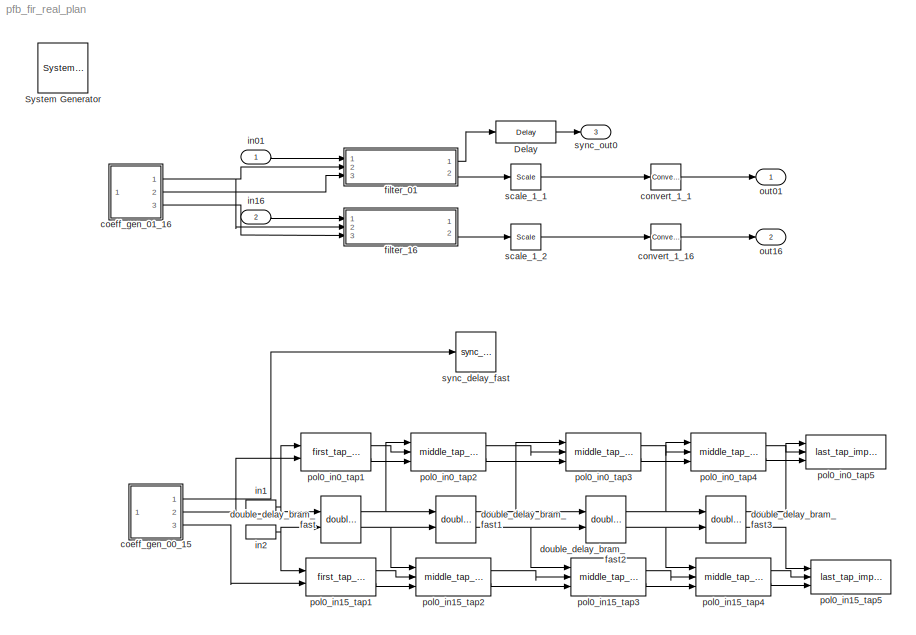
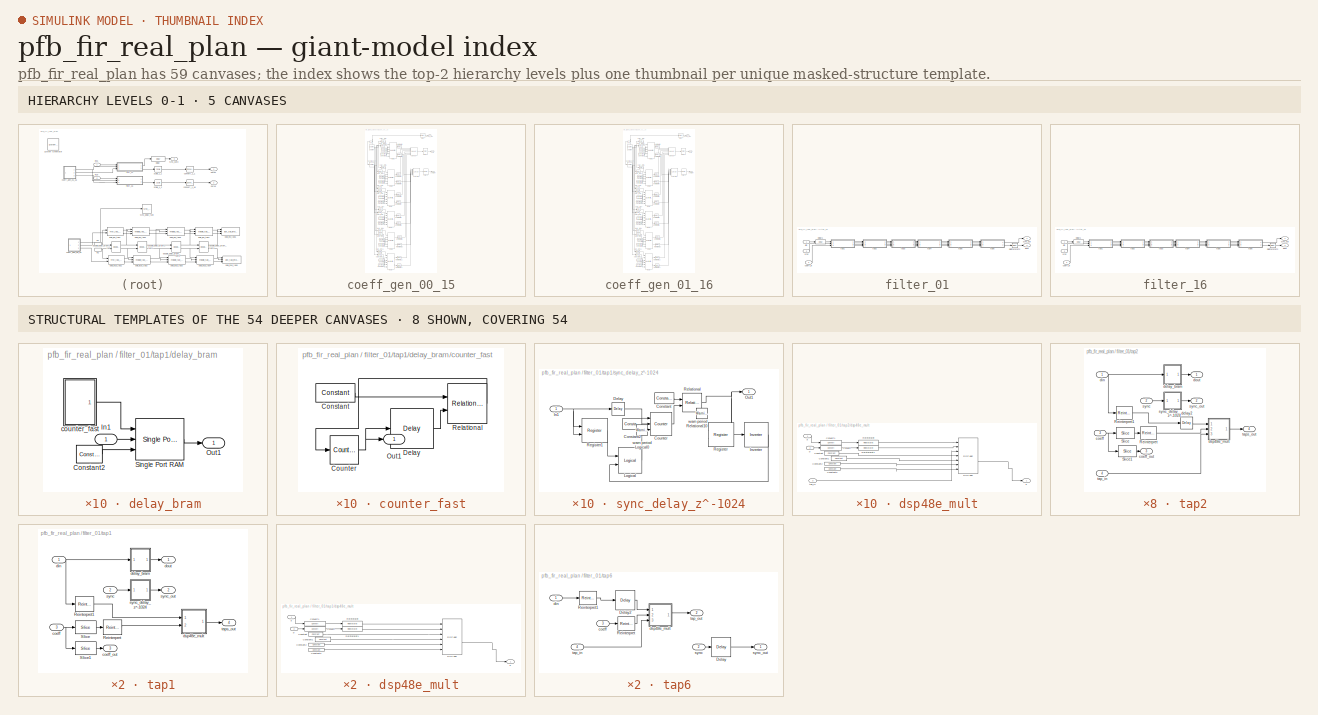
[diagram: thumbnail index - top-2 hierarchy levels (5 canvases) + 8 structural-template representatives of the remaining 54 canvases]
MODEL pfb_fir_real_plan
KIND model
BLOCK [Reference]  System Generator  REF=xbsIndex_r4/ System Generator
  AttributesFormatString = System\\nGenerator
  FunctionWithSeparateData = off
  GeneratePreprocessorConditionals = off
  Ports = []
  RTWMemSecDataConstants = Inherit from model
  RTWMemSecDataInternal = Inherit from model
  RTWMemSecDataParameters = Inherit from model
  RTWMemSecFuncExecute = Inherit from model
  RTWMemSecFuncInitTerm = Inherit from model
  SID = 1
  ShowPortLabels = FromPortIcon
  SourceBlock = xbsIndex_r4/ System Generator
  SourceType = Xilinx System Generator Block
  SystemSampleTime = -1
  Tag = genX
  UserData = DataTag0
  UserDataPersistent = on
  block_type = sysgen
  clock_wrapper = Clock Enables
  core_generation = According to Block Masks
  dbl_ovrd = According to Block Masks
  dcm_input_clock_period = 10
  deprecated_control = off
  directory = ./netlist
  eval_field = 0
  has_advanced_control = 0
  incr_netlist = off
  infoedit = System Generator
  package = ff1156
  part = xc6vsx315t
  run_coregen = off
  sg_icon_stat = 50,50,-1,-1,token,white,0,07734,right,,[ ],[ ]
  sg_mask_display = fprintf('','COMMENT: begin icon graphics');\npatch([0 50 50 0 0 ],[0 0 50 50 0 ],[1 1 1 ]);\npatch([1.6375 16.81 27.31 37.81 48.31 27.31 12.1375 1.6375 ],[36.655 36.655 47.155 36.655 47.155 47.155 47.155 36.655 ],[0.933333 0.203922 0.141176 ]);\npatch([12.1375 27.31 16.81 1.6375 12.1375 ],[26.155 26.155 36.655 36.655 26.155 ],[0.698039 0.0313725 0.219608 ]);\npatch([1.6375 16.81 27.31 12.1375 1.63...<+335ch>
  sggui_pos = -1,-1,-1,-1
  simulink_period = 1
  speed = -3
  synthesis_tool = XST
  sysclk_period = 10
  testbench = off
  trim_vbits = Everywhere in SubSystem
  xilinxfamily = Virtex6
BLOCK [Reference] Delay  REF=xbsIndex_r4/Delay
  Ports = [1, 1]
  SID = 4
  SourceBlock = xbsIndex_r4/Delay
  SourceType = Xilinx Delay Block
  block_type = delay
  block_version = 11.4
  dbl_ovrd = off
  en = off
  has_advanced_control = 0
  infoedit = Hardware notes: A delay line is a chain, each link of which is an SRL16 followed by a flip-flop.
  latency = 1
  reg_retiming = off
  sg_icon_stat = 60,22,1,1,white,blue,0,07b98262,right,,[ ],[ ]
  sg_mask_display = fprintf('','COMMENT: begin icon graphics');\npatch([0 60 60 0 0 ],[0 0 22 22 0 ],[0.77 0.82 0.91 ]);\nplot([0 60 60 0 0 ],[0 0 22 22 0 ]);\npatch([23.325 27.66 30.66 33.66 36.66 30.66 26.325 23.325 ],[14.33 14.33 17.33 14.33 17.33 17.33 17.33 14.33 ],[1 1 1 ]);\npatch([26.325 30.66 27.66 23.325 26.325 ],[11.33 11.33 14.33 14.33 11.33 ],[0.931 0.946 0.973 ]);\npatch([23.325 27.66 30.66 26.325 23.32...<+336ch>
  sggui_pos = -1,-1,-1,-1
  xl_area = [0,0,0,0,0,0,0]
  xl_use_area = off
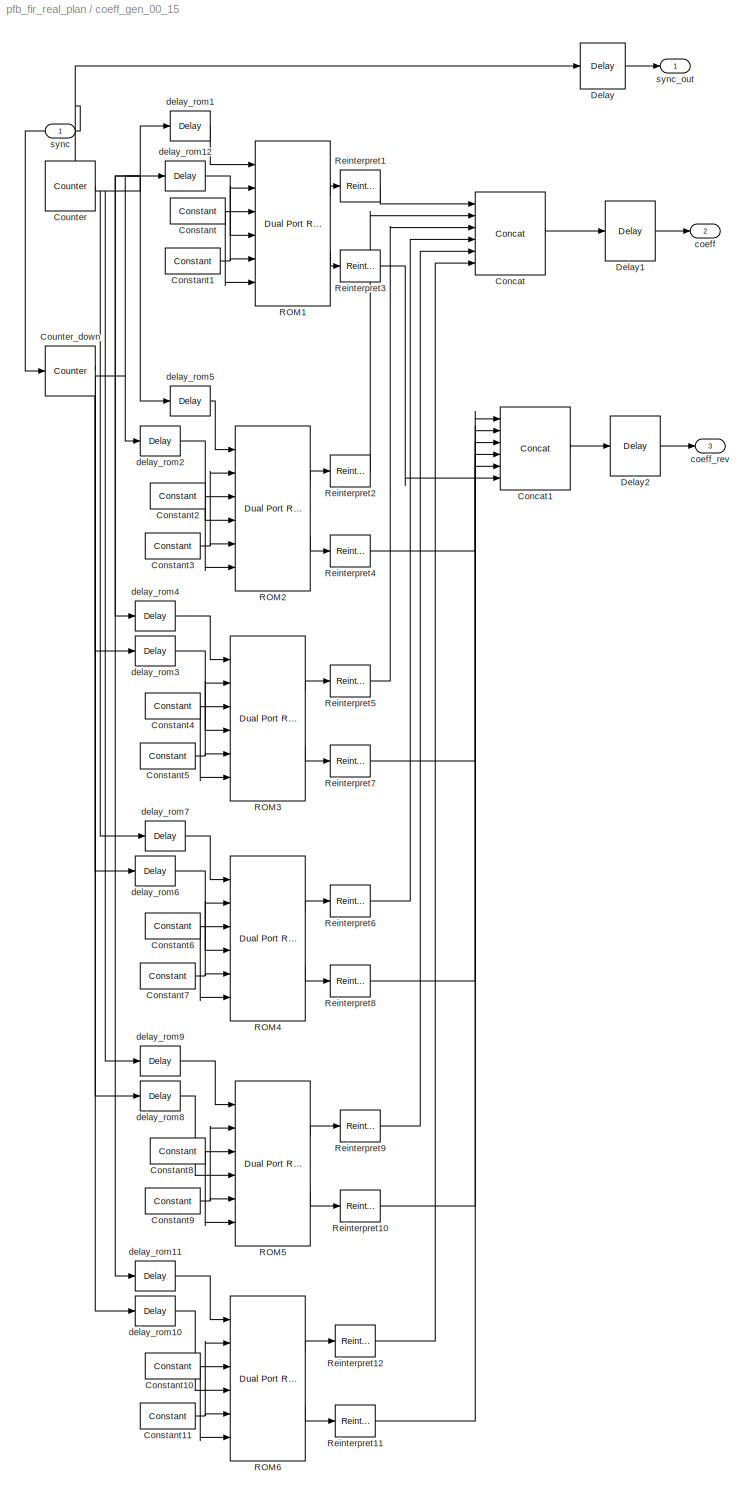
BLOCK [SubSystem] coeff_gen_00_15
  AttributesFormatString = PFBSize=14, n_inputs=4, taps=2
  FunctionWithSeparateData = off
  MaskHideContents = off
  MinAlgLoopOccurrences = off
  Opaque = off
  Ports = [1, 3]
  PropExecContextOutsideSubsystem = off
  RTWSystemCode = Auto
  RequestExecContextInheritance = off
  SID = 112
  UserData = DataTag1
  UserDataPersistent = on
BLOCK [Reference] coeff_gen_00_15/Concat  REF=xbsIndex_r4/Concat
  Ports = [6, 1]
  SID = 114
  SourceBlock = xbsIndex_r4/Concat
  SourceType = Xilinx Bus Concatenator Block
  block_type = concat
  block_version = 9.1.01
  dbl_ovrd = off
  has_advanced_control = 0
  infoedit = Concatenates two or more inputs.  Output will be cast to an unsigned value with the binary point at zero.
  num_inputs = 6
  sg_icon_stat = 70,83,6,1,white,blue,0,c44eeefa,right,,[ ],[ ]
  sg_mask_display = fprintf('','COMMENT: begin icon graphics');\npatch([0 70 70 0 0 ],[0 0 83 83 0 ],[0.77 0.82 0.91 ]);\nplot([0 70 70 0 0 ],[0 0 83 83 0 ]);\npatch([12.75 27.2 37.2 47.2 57.2 37.2 22.75 12.75 ],[52.1 52.1 62.1 52.1 62.1 62.1 62.1 52.1 ],[1 1 1 ]);\npatch([22.75 37.2 27.2 12.75 22.75 ],[42.1 42.1 52.1 52.1 42.1 ],[0.931 0.946 0.973 ]);\npatch([12.75 27.2 37.2 22.75 12.75 ],[32.1 32.1 42.1 42.1 32.1 ]...<+399ch>  <repeated x4 — deduplicated; at blocks: Concat, Concat1>
  sggui_pos = -1,-1,-1,-1
BLOCK [Reference] coeff_gen_00_15/Concat1  REF=xbsIndex_r4/Concat
  Ports = [6, 1]
  SID = 115
  SourceBlock = xbsIndex_r4/Concat
  SourceType = Xilinx Bus Concatenator Block
  block_type = concat
  block_version = 9.1.01
  dbl_ovrd = off
  has_advanced_control = 0
  infoedit = Concatenates two or more inputs.  Output will be cast to an unsigned value with the binary point at zero.
  num_inputs = 6
  sg_icon_stat = 70,83,6,1,white,blue,0,c44eeefa,right,,[ ],[ ]
  sggui_pos = -1,-1,-1,-1
BLOCK [Reference] coeff_gen_00_15/Constant  REF=xbsIndex_r4/Constant
  Ports = [0, 1]
  SID = 116
  SourceBlock = xbsIndex_r4/Constant
  SourceType = Xilinx Constant Block Block
  arith_type = Boolean
  bin_pt = 14
  block_type = constant
  carry = CIN
  const = 0
  dbl_ovrd = off
  dsp48_infoedit = The use of this block for DSP48 instructions is deprecated.  Please use the Opmode block.
  equ = P=C
  explicit_period = off
  has_advanced_control = 0
  inp1 = P
  inp2 = PCIN>>17
  n_bits = 16
  opr = +
  opselect = C
  period = 1
  sg_icon_stat = 55,26,0,1,white,blue,0,bf4ddd8b,right,,[ ],[ ]
  sg_mask_display = fprintf('','COMMENT: begin icon graphics');\npatch([0 55 55 0 0 ],[0 0 26 26 0 ],[0.77 0.82 0.91 ]);\nplot([0 55 55 0 0 ],[0 0 26 26 0 ]);\npatch([20.325 24.66 27.66 30.66 33.66 27.66 23.325 20.325 ],[16.33 16.33 19.33 16.33 19.33 19.33 19.33 16.33 ],[1 1 1 ]);\npatch([23.325 27.66 24.66 20.325 23.325 ],[13.33 13.33 16.33 16.33 13.33 ],[0.931 0.946 0.973 ]);\npatch([20.325 24.66 27.66 23.325 20.32...<+333ch>  <repeated x24 — deduplicated; at blocks: Constant, Constant1, Constant10, Constant11, Constant2, Constant3, Constant4, Constant5, Constant6, Constant7, Constant8, Constant9>
  sggui_pos = -1,-1,-1,-1
BLOCK [Reference] coeff_gen_00_15/Constant1  REF=xbsIndex_r4/Constant
  Ports = [0, 1]
  SID = 117
  SourceBlock = xbsIndex_r4/Constant
  SourceType = Xilinx Constant Block Block
  arith_type = Signed (2's comp)
  bin_pt = 17
  block_type = constant
  carry = CIN
  const = 0
  dbl_ovrd = off
  dsp48_infoedit = The use of this block for DSP48 instructions is deprecated.  Please use the Opmode block.
  equ = P=C
  explicit_period = off
  has_advanced_control = 0
  inp1 = P
  inp2 = PCIN>>17
  n_bits = 18
  opr = +
  opselect = C
  period = 1
  sg_icon_stat = 55,26,0,1,white,blue,0,bf4ddd8b,right,,[ ],[ ]
  sggui_pos = -1,-1,-1,-1
BLOCK [Reference] coeff_gen_00_15/Constant10  REF=xbsIndex_r4/Constant
  Ports = [0, 1]
  SID = 118
  SourceBlock = xbsIndex_r4/Constant
  SourceType = Xilinx Constant Block Block
  arith_type = Boolean
  bin_pt = 14
  block_type = constant
  carry = CIN
  const = 0
  dbl_ovrd = off
  dsp48_infoedit = The use of this block for DSP48 instructions is deprecated.  Please use the Opmode block.
  equ = P=C
  explicit_period = off
  has_advanced_control = 0
  inp1 = P
  inp2 = PCIN>>17
  n_bits = 16
  opr = +
  opselect = C
  period = 1
  sg_icon_stat = 55,26,0,1,white,blue,0,bf4ddd8b,right,,[ ],[ ]
  sggui_pos = -1,-1,-1,-1
BLOCK [Reference] coeff_gen_00_15/Constant11  REF=xbsIndex_r4/Constant
  Ports = [0, 1]
  SID = 119
  SourceBlock = xbsIndex_r4/Constant
  SourceType = Xilinx Constant Block Block
  arith_type = Signed (2's comp)
  bin_pt = 17
  block_type = constant
  carry = CIN
  const = 0
  dbl_ovrd = off
  dsp48_infoedit = The use of this block for DSP48 instructions is deprecated.  Please use the Opmode block.
  equ = P=C
  explicit_period = off
  has_advanced_control = 0
  inp1 = P
  inp2 = PCIN>>17
  n_bits = 18
  opr = +
  opselect = C
  period = 1
  sg_icon_stat = 55,26,0,1,white,blue,0,bf4ddd8b,right,,[ ],[ ]
  sggui_pos = -1,-1,-1,-1
BLOCK [Reference] coeff_gen_00_15/Constant2  REF=xbsIndex_r4/Constant
  Ports = [0, 1]
  SID = 120
  SourceBlock = xbsIndex_r4/Constant
  SourceType = Xilinx Constant Block Block
  arith_type = Boolean
  bin_pt = 14
  block_type = constant
  carry = CIN
  const = 0
  dbl_ovrd = off
  dsp48_infoedit = The use of this block for DSP48 instructions is deprecated.  Please use the Opmode block.
  equ = P=C
  explicit_period = off
  has_advanced_control = 0
  inp1 = P
  inp2 = PCIN>>17
  n_bits = 16
  opr = +
  opselect = C
  period = 1
  sg_icon_stat = 55,26,0,1,white,blue,0,bf4ddd8b,right,,[ ],[ ]
  sggui_pos = -1,-1,-1,-1
BLOCK [Reference] coeff_gen_00_15/Constant3  REF=xbsIndex_r4/Constant
  Ports = [0, 1]
  SID = 121
  SourceBlock = xbsIndex_r4/Constant
  SourceType = Xilinx Constant Block Block
  arith_type = Signed (2's comp)
  bin_pt = 17
  block_type = constant
  carry = CIN
  const = 0
  dbl_ovrd = off
  dsp48_infoedit = The use of this block for DSP48 instructions is deprecated.  Please use the Opmode block.
  equ = P=C
  explicit_period = off
  has_advanced_control = 0
  inp1 = P
  inp2 = PCIN>>17
  n_bits = 18
  opr = +
  opselect = C
  period = 1
  sg_icon_stat = 55,26,0,1,white,blue,0,bf4ddd8b,right,,[ ],[ ]
  sggui_pos = -1,-1,-1,-1
BLOCK [Reference] coeff_gen_00_15/Constant4  REF=xbsIndex_r4/Constant
  Ports = [0, 1]
  SID = 122
  SourceBlock = xbsIndex_r4/Constant
  SourceType = Xilinx Constant Block Block
  arith_type = Boolean
  bin_pt = 14
  block_type = constant
  carry = CIN
  const = 0
  dbl_ovrd = off
  dsp48_infoedit = The use of this block for DSP48 instructions is deprecated.  Please use the Opmode block.
  equ = P=C
  explicit_period = off
  has_advanced_control = 0
  inp1 = P
  inp2 = PCIN>>17
  n_bits = 16
  opr = +
  opselect = C
  period = 1
  sg_icon_stat = 55,26,0,1,white,blue,0,bf4ddd8b,right,,[ ],[ ]
  sggui_pos = -1,-1,-1,-1
BLOCK [Reference] coeff_gen_00_15/Constant5  REF=xbsIndex_r4/Constant
  Ports = [0, 1]
  SID = 123
  SourceBlock = xbsIndex_r4/Constant
  SourceType = Xilinx Constant Block Block
  arith_type = Signed (2's comp)
  bin_pt = 17
  block_type = constant
  carry = CIN
  const = 0
  dbl_ovrd = off
  dsp48_infoedit = The use of this block for DSP48 instructions is deprecated.  Please use the Opmode block.
  equ = P=C
  explicit_period = off
  has_advanced_control = 0
  inp1 = P
  inp2 = PCIN>>17
  n_bits = 18
  opr = +
  opselect = C
  period = 1
  sg_icon_stat = 55,26,0,1,white,blue,0,bf4ddd8b,right,,[ ],[ ]
  sggui_pos = -1,-1,-1,-1
BLOCK [Reference] coeff_gen_00_15/Constant6  REF=xbsIndex_r4/Constant
  Ports = [0, 1]
  SID = 124
  SourceBlock = xbsIndex_r4/Constant
  SourceType = Xilinx Constant Block Block
  arith_type = Boolean
  bin_pt = 14
  block_type = constant
  carry = CIN
  const = 0
  dbl_ovrd = off
  dsp48_infoedit = The use of this block for DSP48 instructions is deprecated.  Please use the Opmode block.
  equ = P=C
  explicit_period = off
  has_advanced_control = 0
  inp1 = P
  inp2 = PCIN>>17
  n_bits = 16
  opr = +
  opselect = C
  period = 1
  sg_icon_stat = 55,26,0,1,white,blue,0,bf4ddd8b,right,,[ ],[ ]
  sggui_pos = -1,-1,-1,-1
BLOCK [Reference] coeff_gen_00_15/Constant7  REF=xbsIndex_r4/Constant
  Ports = [0, 1]
  SID = 125
  SourceBlock = xbsIndex_r4/Constant
  SourceType = Xilinx Constant Block Block
  arith_type = Signed (2's comp)
  bin_pt = 17
  block_type = constant
  carry = CIN
  const = 0
  dbl_ovrd = off
  dsp48_infoedit = The use of this block for DSP48 instructions is deprecated.  Please use the Opmode block.
  equ = P=C
  explicit_period = off
  has_advanced_control = 0
  inp1 = P
  inp2 = PCIN>>17
  n_bits = 18
  opr = +
  opselect = C
  period = 1
  sg_icon_stat = 55,26,0,1,white,blue,0,bf4ddd8b,right,,[ ],[ ]
  sggui_pos = -1,-1,-1,-1
BLOCK [Reference] coeff_gen_00_15/Constant8  REF=xbsIndex_r4/Constant
  Ports = [0, 1]
  SID = 126
  SourceBlock = xbsIndex_r4/Constant
  SourceType = Xilinx Constant Block Block
  arith_type = Boolean
  bin_pt = 14
  block_type = constant
  carry = CIN
  const = 0
  dbl_ovrd = off
  dsp48_infoedit = The use of this block for DSP48 instructions is deprecated.  Please use the Opmode block.
  equ = P=C
  explicit_period = off
  has_advanced_control = 0
  inp1 = P
  inp2 = PCIN>>17
  n_bits = 16
  opr = +
  opselect = C
  period = 1
  sg_icon_stat = 55,26,0,1,white,blue,0,bf4ddd8b,right,,[ ],[ ]
  sggui_pos = -1,-1,-1,-1
BLOCK [Reference] coeff_gen_00_15/Constant9  REF=xbsIndex_r4/Constant
  Ports = [0, 1]
  SID = 127
  SourceBlock = xbsIndex_r4/Constant
  SourceType = Xilinx Constant Block Block
  arith_type = Signed (2's comp)
  bin_pt = 17
  block_type = constant
  carry = CIN
  const = 0
  dbl_ovrd = off
  dsp48_infoedit = The use of this block for DSP48 instructions is deprecated.  Please use the Opmode block.
  equ = P=C
  explicit_period = off
  has_advanced_control = 0
  inp1 = P
  inp2 = PCIN>>17
  n_bits = 18
  opr = +
  opselect = C
  period = 1
  sg_icon_stat = 55,26,0,1,white,blue,0,bf4ddd8b,right,,[ ],[ ]
  sggui_pos = -1,-1,-1,-1
BLOCK [Reference] coeff_gen_00_15/Counter  REF=xbsIndex_r4/Counter
  Ports = [1, 1]
  SID = 128
  SourceBlock = xbsIndex_r4/Counter
  SourceType = Xilinx Counter Block
  arith_type = Unsigned
  bin_pt = 0
  block_type = counter
  block_version = 9.1.01
  cnt_by_val = 1
  cnt_to = Inf
  cnt_type = Free Running
  dbl_ovrd = off
  en = off
  explicit_period = on
  has_advanced_control = 0
  implementation = Fabric
  infoedit = Hardware notes: Free running counters are the least expensive in hardware.  A count limited counter is implemented by combining a counter with a comparator.
  load_pin = off
  n_bits = 10
  operation = Up
  period = 1
  rst = on
  sg_icon_stat = 50,50,1,1,white,blue,0,803eba70,right,,[ ],[ ]
  sg_mask_display = fprintf('','COMMENT: begin icon graphics');\npatch([0 50 50 0 0 ],[0 0 50 50 0 ],[0.77 0.82 0.91 ]);\nplot([0 50 50 0 0 ],[0 0 50 50 0 ]);\npatch([9.425 19.54 26.54 33.54 40.54 26.54 16.425 9.425 ],[32.77 32.77 39.77 32.77 39.77 39.77 39.77 32.77 ],[1 1 1 ]);\npatch([16.425 26.54 19.54 9.425 16.425 ],[25.77 25.77 32.77 32.77 25.77 ],[0.931 0.946 0.973 ]);\npatch([9.425 19.54 26.54 16.425 9.425 ],[...<+397ch>  <repeated x4 — deduplicated; at blocks: Counter, Counter_down>
  sggui_pos = -1,-1,-1,-1
  start_count = 0
  use_behavioral_HDL = off
  use_rpm = on
  xl_area = [0, 0, 0, 0, 0, 0, 0]
  xl_use_area = off
BLOCK [Reference] coeff_gen_00_15/Counter_down  REF=xbsIndex_r4/Counter
  Ports = [1, 1]
  SID = 129
  SourceBlock = xbsIndex_r4/Counter
  SourceType = Xilinx Counter Block
  arith_type = Unsigned
  bin_pt = 0
  block_type = counter
  block_version = 9.1.01
  cnt_by_val = -1
  cnt_to = Inf
  cnt_type = Free Running
  dbl_ovrd = off
  en = off
  explicit_period = on
  has_advanced_control = 0
  implementation = Fabric
  infoedit = Hardware notes: Free running counters are the least expensive in hardware.  A count limited counter is implemented by combining a counter with a comparator.
  load_pin = off
  n_bits = 10
  operation = Up
  period = 1
  rst = on
  sg_icon_stat = 50,50,1,1,white,blue,0,803eba70,right,,[ ],[ ]
  sggui_pos = -1,-1,-1,-1
  start_count = 2^10-1
  use_behavioral_HDL = off
  use_rpm = on
  xl_area = [0, 0, 0, 0, 0, 0, 0]
  xl_use_area = off
BLOCK [Reference] coeff_gen_00_15/Delay  REF=xbsIndex_r4/Delay
  Ports = [1, 1]
  SID = 130
  SourceBlock = xbsIndex_r4/Delay
  SourceType = Xilinx Delay Block
  block_type = delay
  block_version = 9.1.01
  dbl_ovrd = off
  en = off
  has_advanced_control = 0
  infoedit = Hardware notes: A delay line is a chain, each link of which is an SRL16 followed by a flip-flop.
  latency = 4
  reg_retiming = off
  sg_icon_stat = 45,46,1,1,white,blue,0,d390c2d8,right,,[ ],[ ]
  sg_mask_display = fprintf('','COMMENT: begin icon graphics');\npatch([0 45 45 0 0 ],[0 0 46 46 0 ],[0.77 0.82 0.91 ]);\nplot([0 45 45 0 0 ],[0 0 46 46 0 ]);\npatch([8.65 17.32 23.32 29.32 35.32 23.32 14.65 8.65 ],[29.66 29.66 35.66 29.66 35.66 35.66 35.66 29.66 ],[1 1 1 ]);\npatch([14.65 23.32 17.32 8.65 14.65 ],[23.66 23.66 29.66 29.66 23.66 ],[0.931 0.946 0.973 ]);\npatch([8.65 17.32 23.32 14.65 8.65 ],[17.66 17....<+328ch>  <repeated x6 — deduplicated; at blocks: Delay, Delay2>
  sggui_pos = -1,-1,-1,-1
  xl_area = [0, 0, 0, 0, 0, 0, 0]
  xl_use_area = off
BLOCK [Reference] coeff_gen_00_15/Delay1  REF=xbsIndex_r4/Delay
  Ports = [1, 1]
  SID = 131
  SourceBlock = xbsIndex_r4/Delay
  SourceType = Xilinx Delay Block
  block_type = delay
  dbl_ovrd = off
  en = off
  has_advanced_control = 0
  infoedit = Hardware notes: A delay line is a chain, each link of which is an SRL16 followed by a flip-flop.
  latency = 1
  reg_retiming = off
  sg_icon_stat = 50,60,1,1,white,blue,0,07b98262,right,,[ ],[ ]
  sg_mask_display = fprintf('','COMMENT: begin icon graphics');\npatch([0 50 50 0 0 ],[0 0 60 60 0 ],[0.77 0.82 0.91 ]);\nplot([0 50 50 0 0 ],[0 0 60 60 0 ]);\npatch([9.425 19.54 26.54 33.54 40.54 26.54 16.425 9.425 ],[37.77 37.77 44.77 37.77 44.77 44.77 44.77 37.77 ],[1 1 1 ]);\npatch([16.425 26.54 19.54 9.425 16.425 ],[30.77 30.77 37.77 37.77 30.77 ],[0.931 0.946 0.973 ]);\npatch([9.425 19.54 26.54 16.425 9.425 ],[...<+338ch>  <repeated x4 — deduplicated; at blocks: Delay1, Delay2>
  sggui_pos = -1,-1,-1,-1
  xl_area = [0,0,0,0,0,0,0]
  xl_use_area = off
BLOCK [Reference] coeff_gen_00_15/Delay2  REF=xbsIndex_r4/Delay
  Ports = [1, 1]
  SID = 132
  SourceBlock = xbsIndex_r4/Delay
  SourceType = Xilinx Delay Block
  block_type = delay
  dbl_ovrd = off
  en = off
  has_advanced_control = 0
  infoedit = Hardware notes: A delay line is a chain, each link of which is an SRL16 followed by a flip-flop.
  latency = 1
  reg_retiming = off
  sg_icon_stat = 50,60,1,1,white,blue,0,07b98262,right,,[ ],[ ]
  sggui_pos = -1,-1,-1,-1
  xl_area = [0,0,0,0,0,0,0]
  xl_use_area = off
BLOCK [Reference] coeff_gen_00_15/ROM1  REF=xbsIndex_r4/Dual Port RAM
  Ports = [6, 2]
  SID = 133
  SourceBlock = xbsIndex_r4/Dual Port RAM
  SourceType = Xilinx Dual Port Random Access Memory Block
  block_type = dpram
  dbl_ovrd = off
  depth = 1024
  distributed_mem = Block RAM
  en_a = off
  en_b = off
  has_advanced_control = 0
  initVector = pfb_coeff_gen_calc_custom(14,6,4,0,1,1)\n
  init_a = 0
  init_b = 0
  latency = 3
  optimize = Area
  rst_a = off
  rst_b = off
  sg_icon_stat = 75,165,6,2,white,blue,0,28af736d,right,,[ ],[ ]
  sg_mask_display = fprintf('','COMMENT: begin icon graphics');\npatch([0 75 75 0 0 ],[0 0 165 165 0 ],[0.77 0.82 0.91 ]);\nplot([0 75 75 0 0 ],[0 0 165 165 0 ]);\npatch([14.75 29.2 39.2 49.2 59.2 39.2 24.75 14.75 ],[93.1 93.1 103.1 93.1 103.1 103.1 103.1 93.1 ],[1 1 1 ]);\npatch([24.75 39.2 29.2 14.75 24.75 ],[83.1 83.1 93.1 93.1 83.1 ],[0.931 0.946 0.973 ]);\npatch([14.75 29.2 39.2 24.75 14.75 ],[73.1 73.1 83.1 83....<+615ch>  <repeated x12 — deduplicated; at blocks: ROM1, ROM2, ROM3, ROM4, ROM5, ROM6>
  sggui_pos = 560,389,609,398
  use_rpm = on
  write_mode_A = No Read On Write
  write_mode_B = No Read On Write
  xl_area = [0,0,0,0,0,0,0]
  xl_use_area = off
BLOCK [Reference] coeff_gen_00_15/ROM2  REF=xbsIndex_r4/Dual Port RAM
  Ports = [6, 2]
  SID = 134
  SourceBlock = xbsIndex_r4/Dual Port RAM
  SourceType = Xilinx Dual Port Random Access Memory Block
  block_type = dpram
  dbl_ovrd = off
  depth = 1024
  distributed_mem = Block RAM
  en_a = off
  en_b = off
  has_advanced_control = 0
  initVector = pfb_coeff_gen_calc_custom(14,6,4,0,1,2)\n
  init_a = 0
  init_b = 0
  latency = 3
  optimize = Area
  rst_a = off
  rst_b = off
  sg_icon_stat = 75,165,6,2,white,blue,0,28af736d,right,,[ ],[ ]
  sggui_pos = 1221,237,650,398
  use_rpm = on
  write_mode_A = No Read On Write
  write_mode_B = No Read On Write
  xl_area = [0,0,0,0,0,0,0]
  xl_use_area = off
BLOCK [Reference] coeff_gen_00_15/ROM3  REF=xbsIndex_r4/Dual Port RAM
  Ports = [6, 2]
  SID = 135
  SourceBlock = xbsIndex_r4/Dual Port RAM
  SourceType = Xilinx Dual Port Random Access Memory Block
  block_type = dpram
  dbl_ovrd = off
  depth = 1024
  distributed_mem = Block RAM
  en_a = off
  en_b = off
  has_advanced_control = 0
  initVector = pfb_coeff_gen_calc_custom(14,6,4,0,1,3)\n
  init_a = 0
  init_b = 0
  latency = 3
  optimize = Area
  rst_a = off
  rst_b = off
  sg_icon_stat = 75,165,6,2,white,blue,0,28af736d,right,,[ ],[ ]
  sggui_pos = 38,254,650,398
  use_rpm = on
  write_mode_A = No Read On Write
  write_mode_B = No Read On Write
  xl_area = [0,0,0,0,0,0,0]
  xl_use_area = off
BLOCK [Reference] coeff_gen_00_15/ROM4  REF=xbsIndex_r4/Dual Port RAM
  Ports = [6, 2]
  SID = 136
  SourceBlock = xbsIndex_r4/Dual Port RAM
  SourceType = Xilinx Dual Port Random Access Memory Block
  block_type = dpram
  dbl_ovrd = off
  depth = 1024
  distributed_mem = Block RAM
  en_a = off
  en_b = off
  has_advanced_control = 0
  initVector = pfb_coeff_gen_calc_custom(14,6,4,0,1,4)\n
  init_a = 0
  init_b = 0
  latency = 3
  optimize = Area
  rst_a = off
  rst_b = off
  sg_icon_stat = 75,165,6,2,white,blue,0,28af736d,right,,[ ],[ ]
  sggui_pos = -3,697,650,398
  use_rpm = on
  write_mode_A = No Read On Write
  write_mode_B = No Read On Write
  xl_area = [0,0,0,0,0,0,0]
  xl_use_area = off
BLOCK [Reference] coeff_gen_00_15/ROM5  REF=xbsIndex_r4/Dual Port RAM
  Ports = [6, 2]
  SID = 137
  SourceBlock = xbsIndex_r4/Dual Port RAM
  SourceType = Xilinx Dual Port Random Access Memory Block
  block_type = dpram
  dbl_ovrd = off
  depth = 1024
  distributed_mem = Block RAM
  en_a = off
  en_b = off
  has_advanced_control = 0
  initVector = pfb_coeff_gen_calc_custom(14,6,4,0,1,5)
  init_a = 0
  init_b = 0
  latency = 3
  optimize = Area
  rst_a = off
  rst_b = off
  sg_icon_stat = 75,165,6,2,white,blue,0,28af736d,right,,[ ],[ ]
  sggui_pos = 582,699,650,398
  use_rpm = on
  write_mode_A = No Read On Write
  write_mode_B = No Read On Write
  xl_area = [0,0,0,0,0,0,0]
  xl_use_area = off
BLOCK [Reference] coeff_gen_00_15/ROM6  REF=xbsIndex_r4/Dual Port RAM
  Ports = [6, 2]
  SID = 138
  SourceBlock = xbsIndex_r4/Dual Port RAM
  SourceType = Xilinx Dual Port Random Access Memory Block
  block_type = dpram
  dbl_ovrd = off
  depth = 1024
  distributed_mem = Block RAM
  en_a = off
  en_b = off
  has_advanced_control = 0
  initVector = pfb_coeff_gen_calc_custom(14,6,4,0,1,6)
  init_a = 0
  init_b = 0
  latency = 3
  optimize = Area
  rst_a = off
  rst_b = off
  sg_icon_stat = 75,165,6,2,white,blue,0,28af736d,right,,[ ],[ ]
  sggui_pos = 1239,692,650,398
  use_rpm = on
  write_mode_A = No Read On Write
  write_mode_B = No Read On Write
  xl_area = [0,0,0,0,0,0,0]
  xl_use_area = off
BLOCK [Reference] coeff_gen_00_15/Reinterpret1  REF=xbsIndex_r4/Reinterpret
  Ports = [1, 1]
  SID = 139
  SourceBlock = xbsIndex_r4/Reinterpret
  SourceType = Xilinx Type Reinterpreter Block
  arith_type = Unsigned
  bin_pt = 0
  block_type = reinterpret
  block_version = 9.1.01
  force_arith_type = on
  force_bin_pt = on
  has_advanced_control = 0
  infoedit = Changes signal type without altering the binary representation.   You can changed the signal between signed and unsigned, and relocate the binary point.<P><P>Hardware notes: In hardware this block costs nothing.<P><P>Example:  Suppose the input is 6 bits wide, signed, with 2 fractional bits, and the output is forced to unsigned with 0 fractional bits.  Then an input of -2.0 (1110.00 in binary 2's ...<+55ch>  <repeated x24 — deduplicated; at blocks: Reinterpret1, Reinterpret10, Reinterpret11, Reinterpret12, Reinterpret2, Reinterpret3, Reinterpret4, Reinterpret5, Reinterpret6, Reinterpret7, Reinterpret8, Reinterpret9>
  sg_icon_stat = 40,32,1,1,white,blue,0,6b04d0b0,right,,[ ],[ ]
  sg_mask_display = fprintf('','COMMENT: begin icon graphics');\npatch([0 40 40 0 0 ],[0 0 32 32 0 ],[0.77 0.82 0.91 ]);\nplot([0 40 40 0 0 ],[0 0 32 32 0 ]);\npatch([11.1 16.88 20.88 24.88 28.88 20.88 15.1 11.1 ],[20.44 20.44 24.44 20.44 24.44 24.44 24.44 20.44 ],[1 1 1 ]);\npatch([15.1 20.88 16.88 11.1 15.1 ],[16.44 16.44 20.44 20.44 16.44 ],[0.931 0.946 0.973 ]);\npatch([11.1 16.88 20.88 15.1 11.1 ],[12.44 12.44 1...<+306ch>
  sggui_pos = -1,-1,-1,-1
BLOCK [Reference] coeff_gen_00_15/Reinterpret10  REF=xbsIndex_r4/Reinterpret
  Ports = [1, 1]
  SID = 140
  SourceBlock = xbsIndex_r4/Reinterpret
  SourceType = Xilinx Type Reinterpreter Block
  arith_type = Unsigned
  bin_pt = 0
  block_type = reinterpret
  block_version = 9.1.01
  force_arith_type = on
  force_bin_pt = on
  has_advanced_control = 0
  sg_icon_stat = 40,32,1,1,white,blue,0,6b04d0b0,right,,[ ],[ ]
  sg_mask_display = fprintf('','COMMENT: begin icon graphics');\npatch([0 40 40 0 0 ],[0 0 32 32 0 ],[0.77 0.82 0.91 ]);\nplot([0 40 40 0 0 ],[0 0 32 32 0 ]);\npatch([11.1 16.88 20.88 24.88 28.88 20.88 15.1 11.1 ],[20.44 20.44 24.44 20.44 24.44 24.44 24.44 20.44 ],[1 1 1 ]);\npatch([15.1 20.88 16.88 11.1 15.1 ],[16.44 16.44 20.44 20.44 16.44 ],[0.931 0.946 0.973 ]);\npatch([11.1 16.88 20.88 15.1 11.1 ],[12.44 12.44 1...<+308ch>  <repeated x46 — deduplicated; at blocks: Reinterpret10, Reinterpret11, Reinterpret12, Reinterpret2, Reinterpret3, Reinterpret4, Reinterpret5, Reinterpret6, Reinterpret7, Reinterpret8, Reinterpret9, Reinterpret, Reinterpret1>
  sggui_pos = -1,-1,-1,-1
BLOCK [Reference] coeff_gen_00_15/Reinterpret11  REF=xbsIndex_r4/Reinterpret
  Ports = [1, 1]
  SID = 141
  SourceBlock = xbsIndex_r4/Reinterpret
  SourceType = Xilinx Type Reinterpreter Block
  arith_type = Unsigned
  bin_pt = 0
  block_type = reinterpret
  block_version = 9.1.01
  force_arith_type = on
  force_bin_pt = on
  has_advanced_control = 0
  sg_icon_stat = 40,32,1,1,white,blue,0,6b04d0b0,right,,[ ],[ ]
  sggui_pos = -1,-1,-1,-1
BLOCK [Reference] coeff_gen_00_15/Reinterpret12  REF=xbsIndex_r4/Reinterpret
  Ports = [1, 1]
  SID = 142
  SourceBlock = xbsIndex_r4/Reinterpret
  SourceType = Xilinx Type Reinterpreter Block
  arith_type = Unsigned
  bin_pt = 0
  block_type = reinterpret
  block_version = 9.1.01
  force_arith_type = on
  force_bin_pt = on
  has_advanced_control = 0
  sg_icon_stat = 40,32,1,1,white,blue,0,6b04d0b0,right,,[ ],[ ]
  sggui_pos = -1,-1,-1,-1
BLOCK [Reference] coeff_gen_00_15/Reinterpret2  REF=xbsIndex_r4/Reinterpret
  Ports = [1, 1]
  SID = 143
  SourceBlock = xbsIndex_r4/Reinterpret
  SourceType = Xilinx Type Reinterpreter Block
  arith_type = Unsigned
  bin_pt = 0
  block_type = reinterpret
  block_version = 9.1.01
  force_arith_type = on
  force_bin_pt = on
  has_advanced_control = 0
  sg_icon_stat = 40,32,1,1,white,blue,0,6b04d0b0,right,,[ ],[ ]
  sggui_pos = -1,-1,-1,-1
BLOCK [Reference] coeff_gen_00_15/Reinterpret3  REF=xbsIndex_r4/Reinterpret
  Ports = [1, 1]
  SID = 144
  SourceBlock = xbsIndex_r4/Reinterpret
  SourceType = Xilinx Type Reinterpreter Block
  arith_type = Unsigned
  bin_pt = 0
  block_type = reinterpret
  block_version = 9.1.01
  force_arith_type = on
  force_bin_pt = on
  has_advanced_control = 0
  sg_icon_stat = 40,32,1,1,white,blue,0,6b04d0b0,right,,[ ],[ ]
  sggui_pos = -1,-1,-1,-1
BLOCK [Reference] coeff_gen_00_15/Reinterpret4  REF=xbsIndex_r4/Reinterpret
  Ports = [1, 1]
  SID = 145
  SourceBlock = xbsIndex_r4/Reinterpret
  SourceType = Xilinx Type Reinterpreter Block
  arith_type = Unsigned
  bin_pt = 0
  block_type = reinterpret
  block_version = 9.1.01
  force_arith_type = on
  force_bin_pt = on
  has_advanced_control = 0
  sg_icon_stat = 40,32,1,1,white,blue,0,6b04d0b0,right,,[ ],[ ]
  sggui_pos = -1,-1,-1,-1
BLOCK [Reference] coeff_gen_00_15/Reinterpret5  REF=xbsIndex_r4/Reinterpret
  Ports = [1, 1]
  SID = 146
  SourceBlock = xbsIndex_r4/Reinterpret
  SourceType = Xilinx Type Reinterpreter Block
  arith_type = Unsigned
  bin_pt = 0
  block_type = reinterpret
  block_version = 9.1.01
  force_arith_type = on
  force_bin_pt = on
  has_advanced_control = 0
  sg_icon_stat = 40,32,1,1,white,blue,0,6b04d0b0,right,,[ ],[ ]
  sggui_pos = -1,-1,-1,-1
BLOCK [Reference] coeff_gen_00_15/Reinterpret6  REF=xbsIndex_r4/Reinterpret
  Ports = [1, 1]
  SID = 147
  SourceBlock = xbsIndex_r4/Reinterpret
  SourceType = Xilinx Type Reinterpreter Block
  arith_type = Unsigned
  bin_pt = 0
  block_type = reinterpret
  block_version = 9.1.01
  force_arith_type = on
  force_bin_pt = on
  has_advanced_control = 0
  sg_icon_stat = 40,32,1,1,white,blue,0,6b04d0b0,right,,[ ],[ ]
  sggui_pos = -1,-1,-1,-1
BLOCK [Reference] coeff_gen_00_15/Reinterpret7  REF=xbsIndex_r4/Reinterpret
  Ports = [1, 1]
  SID = 148
  SourceBlock = xbsIndex_r4/Reinterpret
  SourceType = Xilinx Type Reinterpreter Block
  arith_type = Unsigned
  bin_pt = 0
  block_type = reinterpret
  block_version = 9.1.01
  force_arith_type = on
  force_bin_pt = on
  has_advanced_control = 0
  sg_icon_stat = 40,32,1,1,white,blue,0,6b04d0b0,right,,[ ],[ ]
  sggui_pos = -1,-1,-1,-1
BLOCK [Reference] coeff_gen_00_15/Reinterpret8  REF=xbsIndex_r4/Reinterpret
  Ports = [1, 1]
  SID = 149
  SourceBlock = xbsIndex_r4/Reinterpret
  SourceType = Xilinx Type Reinterpreter Block
  arith_type = Unsigned
  bin_pt = 0
  block_type = reinterpret
  block_version = 9.1.01
  force_arith_type = on
  force_bin_pt = on
  has_advanced_control = 0
  sg_icon_stat = 40,32,1,1,white,blue,0,6b04d0b0,right,,[ ],[ ]
  sggui_pos = -1,-1,-1,-1
BLOCK [Reference] coeff_gen_00_15/Reinterpret9  REF=xbsIndex_r4/Reinterpret
  Ports = [1, 1]
  SID = 150
  SourceBlock = xbsIndex_r4/Reinterpret
  SourceType = Xilinx Type Reinterpreter Block
  arith_type = Unsigned
  bin_pt = 0
  block_type = reinterpret
  block_version = 9.1.01
  force_arith_type = on
  force_bin_pt = on
  has_advanced_control = 0
  sg_icon_stat = 40,32,1,1,white,blue,0,6b04d0b0,right,,[ ],[ ]
  sggui_pos = -1,-1,-1,-1
BLOCK [Outport] coeff_gen_00_15/coeff
  IconDisplay = Port number
  Port = 2
  SID = 164
BLOCK [Outport] coeff_gen_00_15/coeff_rev
  IconDisplay = Port number
  Port = 3
  SID = 165
BLOCK [Reference] coeff_gen_00_15/delay_rom1  REF=xbsIndex_r4/Delay
  Ports = [1, 1]
  SID = 151
  SourceBlock = xbsIndex_r4/Delay
  SourceType = Xilinx Delay Block
  block_type = delay
  dbl_ovrd = off
  en = off
  has_advanced_control = 0
  infoedit = Hardware notes: A delay line is a chain, each link of which is an SRL16 followed by a flip-flop.
  latency = 5
  reg_retiming = off
  sg_icon_stat = 40,30,1,1,white,blue,0,ec356abf,right,,[ ],[ ]
  sg_mask_display = fprintf('','COMMENT: begin icon graphics');\npatch([0 40 40 0 0 ],[0 0 30 30 0 ],[0.77 0.82 0.91 ]);\nplot([0 40 40 0 0 ],[0 0 30 30 0 ]);\npatch([11.1 16.88 20.88 24.88 28.88 20.88 15.1 11.1 ],[19.44 19.44 23.44 19.44 23.44 23.44 23.44 19.44 ],[1 1 1 ]);\npatch([15.1 20.88 16.88 11.1 15.1 ],[15.44 15.44 19.44 19.44 15.44 ],[0.931 0.946 0.973 ]);\npatch([11.1 16.88 20.88 15.1 11.1 ],[11.44 11.44 1...<+316ch>  <repeated x24 — deduplicated; at blocks: delay_rom1, delay_rom10, delay_rom11, delay_rom12, delay_rom2, delay_rom3, delay_rom4, delay_rom5, delay_rom6, delay_rom7, delay_rom8, delay_rom9>
  sggui_pos = -1,-1,-1,-1
  xl_area = [0,0,0,0,0,0,0]
  xl_use_area = off
BLOCK [Reference] coeff_gen_00_15/delay_rom10  REF=xbsIndex_r4/Delay
  Ports = [1, 1]
  SID = 152
  SourceBlock = xbsIndex_r4/Delay
  SourceType = Xilinx Delay Block
  block_type = delay
  dbl_ovrd = off
  en = off
  has_advanced_control = 0
  infoedit = Hardware notes: A delay line is a chain, each link of which is an SRL16 followed by a flip-flop.
  latency = 5
  reg_retiming = off
  sg_icon_stat = 40,30,1,1,white,blue,0,ec356abf,right,,[ ],[ ]
  sggui_pos = -1,-1,-1,-1
  xl_area = [0,0,0,0,0,0,0]
  xl_use_area = off
BLOCK [Reference] coeff_gen_00_15/delay_rom11  REF=xbsIndex_r4/Delay
  Ports = [1, 1]
  SID = 153
  SourceBlock = xbsIndex_r4/Delay
  SourceType = Xilinx Delay Block
  block_type = delay
  dbl_ovrd = off
  en = off
  has_advanced_control = 0
  infoedit = Hardware notes: A delay line is a chain, each link of which is an SRL16 followed by a flip-flop.
  latency = 0
  reg_retiming = off
  sg_icon_stat = 40,30,1,1,white,blue,0,24450e6f,right,,[ ],[ ]
  sggui_pos = -1,-1,-1,-1
  xl_area = [0,0,0,0,0,0,0]
  xl_use_area = off
BLOCK [Reference] coeff_gen_00_15/delay_rom12  REF=xbsIndex_r4/Delay
  Ports = [1, 1]
  SID = 154
  SourceBlock = xbsIndex_r4/Delay
  SourceType = Xilinx Delay Block
  block_type = delay
  dbl_ovrd = off
  en = off
  has_advanced_control = 0
  infoedit = Hardware notes: A delay line is a chain, each link of which is an SRL16 followed by a flip-flop.
  latency = 0
  reg_retiming = off
  sg_icon_stat = 40,30,1,1,white,blue,0,24450e6f,right,,[ ],[ ]
  sggui_pos = -1,-1,-1,-1
  xl_area = [0,0,0,0,0,0,0]
  xl_use_area = off
BLOCK [Reference] coeff_gen_00_15/delay_rom2  REF=xbsIndex_r4/Delay
  Ports = [1, 1]
  SID = 155
  SourceBlock = xbsIndex_r4/Delay
  SourceType = Xilinx Delay Block
  block_type = delay
  dbl_ovrd = off
  en = off
  has_advanced_control = 0
  infoedit = Hardware notes: A delay line is a chain, each link of which is an SRL16 followed by a flip-flop.
  latency = 1
  reg_retiming = off
  sg_icon_stat = 40,30,1,1,white,blue,0,07b98262,right,,[ ],[ ]
  sggui_pos = -1,-1,-1,-1
  xl_area = [0,0,0,0,0,0,0]
  xl_use_area = off
BLOCK [Reference] coeff_gen_00_15/delay_rom3  REF=xbsIndex_r4/Delay
  Ports = [1, 1]
  SID = 156
  SourceBlock = xbsIndex_r4/Delay
  SourceType = Xilinx Delay Block
  block_type = delay
  dbl_ovrd = off
  en = off
  has_advanced_control = 0
  infoedit = Hardware notes: A delay line is a chain, each link of which is an SRL16 followed by a flip-flop.
  latency = 2
  reg_retiming = off
  sg_icon_stat = 40,30,1,1,white,blue,0,85ce9542,right,,[ ],[ ]
  sggui_pos = -1,-1,-1,-1
  xl_area = [0,0,0,0,0,0,0]
  xl_use_area = off
BLOCK [Reference] coeff_gen_00_15/delay_rom4  REF=xbsIndex_r4/Delay
  Ports = [1, 1]
  SID = 157
  SourceBlock = xbsIndex_r4/Delay
  SourceType = Xilinx Delay Block
  block_type = delay
  dbl_ovrd = off
  en = off
  has_advanced_control = 0
  infoedit = Hardware notes: A delay line is a chain, each link of which is an SRL16 followed by a flip-flop.
  latency = 3
  reg_retiming = off
  sg_icon_stat = 40,30,1,1,white,blue,0,83e6bb61,right,,[ ],[ ]
  sggui_pos = -1,-1,-1,-1
  xl_area = [0,0,0,0,0,0,0]
  xl_use_area = off
BLOCK [Reference] coeff_gen_00_15/delay_rom5  REF=xbsIndex_r4/Delay
  Ports = [1, 1]
  SID = 158
  SourceBlock = xbsIndex_r4/Delay
  SourceType = Xilinx Delay Block
  block_type = delay
  dbl_ovrd = off
  en = off
  has_advanced_control = 0
  infoedit = Hardware notes: A delay line is a chain, each link of which is an SRL16 followed by a flip-flop.
  latency = 4
  reg_retiming = off
  sg_icon_stat = 40,30,1,1,white,blue,0,d390c2d8,right,,[ ],[ ]
  sggui_pos = -1,-1,-1,-1
  xl_area = [0,0,0,0,0,0,0]
  xl_use_area = off
BLOCK [Reference] coeff_gen_00_15/delay_rom6  REF=xbsIndex_r4/Delay
  Ports = [1, 1]
  SID = 159
  SourceBlock = xbsIndex_r4/Delay
  SourceType = Xilinx Delay Block
  block_type = delay
  dbl_ovrd = off
  en = off
  has_advanced_control = 0
  infoedit = Hardware notes: A delay line is a chain, each link of which is an SRL16 followed by a flip-flop.
  latency = 3
  reg_retiming = off
  sg_icon_stat = 40,30,1,1,white,blue,0,83e6bb61,right,,[ ],[ ]
  sggui_pos = -1,-1,-1,-1
  xl_area = [0,0,0,0,0,0,0]
  xl_use_area = off
BLOCK [Reference] coeff_gen_00_15/delay_rom7  REF=xbsIndex_r4/Delay
  Ports = [1, 1]
  SID = 160
  SourceBlock = xbsIndex_r4/Delay
  SourceType = Xilinx Delay Block
  block_type = delay
  dbl_ovrd = off
  en = off
  has_advanced_control = 0
  infoedit = Hardware notes: A delay line is a chain, each link of which is an SRL16 followed by a flip-flop.
  latency = 2
  reg_retiming = off
  sg_icon_stat = 40,30,1,1,white,blue,0,85ce9542,right,,[ ],[ ]
  sggui_pos = -1,-1,-1,-1
  xl_area = [0,0,0,0,0,0,0]
  xl_use_area = off
BLOCK [Reference] coeff_gen_00_15/delay_rom8  REF=xbsIndex_r4/Delay
  Ports = [1, 1]
  SID = 161
  SourceBlock = xbsIndex_r4/Delay
  SourceType = Xilinx Delay Block
  block_type = delay
  dbl_ovrd = off
  en = off
  has_advanced_control = 0
  infoedit = Hardware notes: A delay line is a chain, each link of which is an SRL16 followed by a flip-flop.
  latency = 4
  reg_retiming = off
  sg_icon_stat = 40,30,1,1,white,blue,0,d390c2d8,right,,[ ],[ ]
  sggui_pos = -1,-1,-1,-1
  xl_area = [0,0,0,0,0,0,0]
  xl_use_area = off
BLOCK [Reference] coeff_gen_00_15/delay_rom9  REF=xbsIndex_r4/Delay
  Ports = [1, 1]
  SID = 162
  SourceBlock = xbsIndex_r4/Delay
  SourceType = Xilinx Delay Block
  block_type = delay
  dbl_ovrd = off
  en = off
  has_advanced_control = 0
  infoedit = Hardware notes: A delay line is a chain, each link of which is an SRL16 followed by a flip-flop.
  latency = 1
  reg_retiming = off
  sg_icon_stat = 40,30,1,1,white,blue,0,07b98262,right,,[ ],[ ]
  sggui_pos = -1,-1,-1,-1
  xl_area = [0,0,0,0,0,0,0]
  xl_use_area = off
BLOCK [Inport] coeff_gen_00_15/sync
  IconDisplay = Port number
  SID = 113
BLOCK [Outport] coeff_gen_00_15/sync_out
  IconDisplay = Port number
  SID = 163
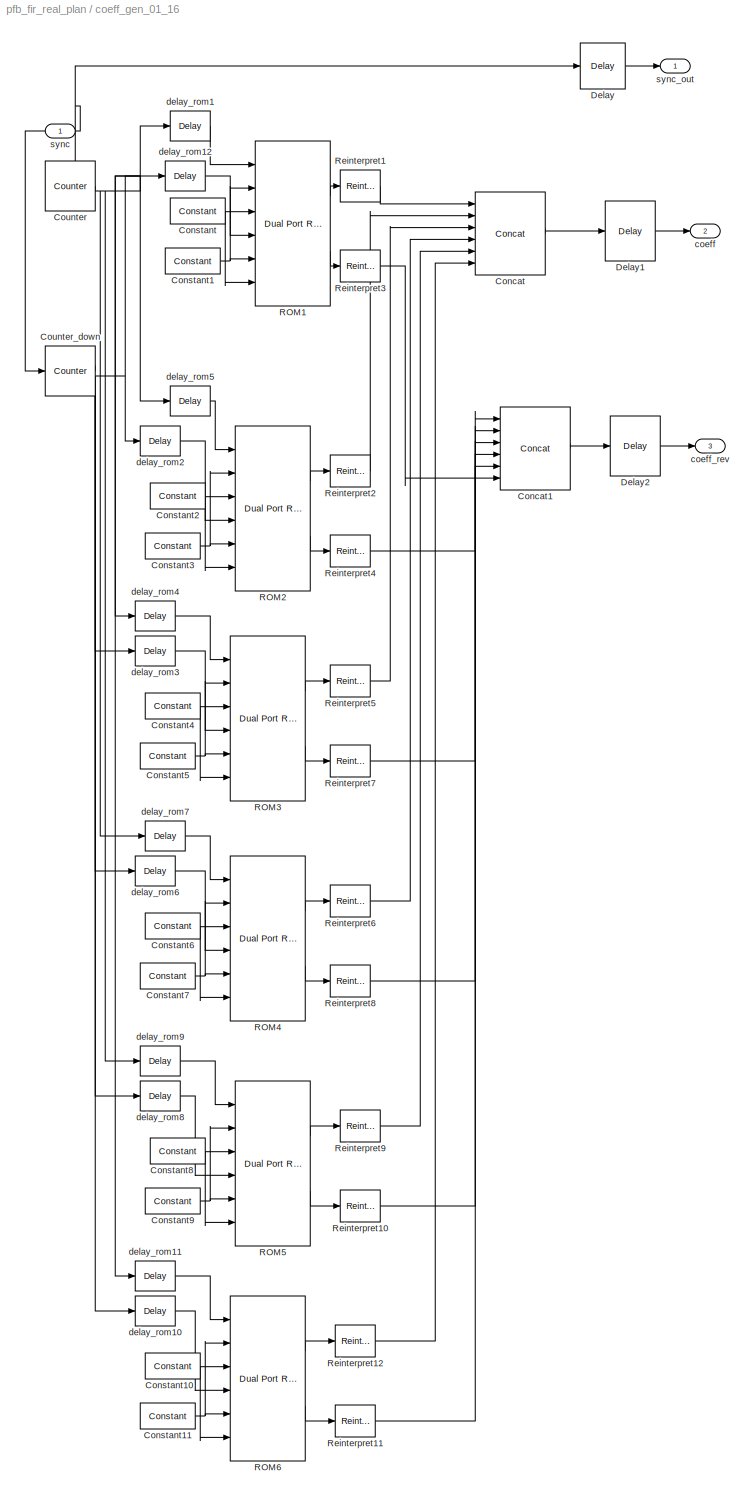
BLOCK [SubSystem] coeff_gen_01_16
  AttributesFormatString = PFBSize=14, n_inputs=4, taps=2
  FunctionWithSeparateData = off
  MaskHideContents = off
  MinAlgLoopOccurrences = off
  Opaque = off
  Ports = [1, 3]
  PropExecContextOutsideSubsystem = off
  RTWSystemCode = Auto
  RequestExecContextInheritance = off
  SID = 5
  UserData = DataTag2
  UserDataPersistent = on
BLOCK [Reference] coeff_gen_01_16/Concat  REF=xbsIndex_r4/Concat
  Ports = [6, 1]
  SID = 7
  SourceBlock = xbsIndex_r4/Concat
  SourceType = Xilinx Bus Concatenator Block
  block_type = concat
  block_version = 9.1.01
  dbl_ovrd = off
  has_advanced_control = 0
  infoedit = Concatenates two or more inputs.  Output will be cast to an unsigned value with the binary point at zero.
  num_inputs = 6
  sg_icon_stat = 70,83,6,1,white,blue,0,c44eeefa,right,,[ ],[ ]
  sggui_pos = -1,-1,-1,-1
BLOCK [Reference] coeff_gen_01_16/Concat1  REF=xbsIndex_r4/Concat
  Ports = [6, 1]
  SID = 8
  SourceBlock = xbsIndex_r4/Concat
  SourceType = Xilinx Bus Concatenator Block
  block_type = concat
  block_version = 9.1.01
  dbl_ovrd = off
  has_advanced_control = 0
  infoedit = Concatenates two or more inputs.  Output will be cast to an unsigned value with the binary point at zero.
  num_inputs = 6
  sg_icon_stat = 70,83,6,1,white,blue,0,c44eeefa,right,,[ ],[ ]
  sggui_pos = -1,-1,-1,-1
BLOCK [Reference] coeff_gen_01_16/Constant  REF=xbsIndex_r4/Constant
  Ports = [0, 1]
  SID = 9
  SourceBlock = xbsIndex_r4/Constant
  SourceType = Xilinx Constant Block Block
  arith_type = Boolean
  bin_pt = 14
  block_type = constant
  carry = CIN
  const = 0
  dbl_ovrd = off
  dsp48_infoedit = The use of this block for DSP48 instructions is deprecated.  Please use the Opmode block.
  equ = P=C
  explicit_period = off
  has_advanced_control = 0
  inp1 = P
  inp2 = PCIN>>17
  n_bits = 16
  opr = +
  opselect = C
  period = 1
  sg_icon_stat = 55,26,0,1,white,blue,0,bf4ddd8b,right,,[ ],[ ]
  sggui_pos = -1,-1,-1,-1
BLOCK [Reference] coeff_gen_01_16/Constant1  REF=xbsIndex_r4/Constant
  Ports = [0, 1]
  SID = 10
  SourceBlock = xbsIndex_r4/Constant
  SourceType = Xilinx Constant Block Block
  arith_type = Signed (2's comp)
  bin_pt = 17
  block_type = constant
  carry = CIN
  const = 0
  dbl_ovrd = off
  dsp48_infoedit = The use of this block for DSP48 instructions is deprecated.  Please use the Opmode block.
  equ = P=C
  explicit_period = off
  has_advanced_control = 0
  inp1 = P
  inp2 = PCIN>>17
  n_bits = 18
  opr = +
  opselect = C
  period = 1
  sg_icon_stat = 55,26,0,1,white,blue,0,bf4ddd8b,right,,[ ],[ ]
  sggui_pos = -1,-1,-1,-1
BLOCK [Reference] coeff_gen_01_16/Constant10  REF=xbsIndex_r4/Constant
  Ports = [0, 1]
  SID = 11
  SourceBlock = xbsIndex_r4/Constant
  SourceType = Xilinx Constant Block Block
  arith_type = Boolean
  bin_pt = 14
  block_type = constant
  carry = CIN
  const = 0
  dbl_ovrd = off
  dsp48_infoedit = The use of this block for DSP48 instructions is deprecated.  Please use the Opmode block.
  equ = P=C
  explicit_period = off
  has_advanced_control = 0
  inp1 = P
  inp2 = PCIN>>17
  n_bits = 16
  opr = +
  opselect = C
  period = 1
  sg_icon_stat = 55,26,0,1,white,blue,0,bf4ddd8b,right,,[ ],[ ]
  sggui_pos = -1,-1,-1,-1
BLOCK [Reference] coeff_gen_01_16/Constant11  REF=xbsIndex_r4/Constant
  Ports = [0, 1]
  SID = 12
  SourceBlock = xbsIndex_r4/Constant
  SourceType = Xilinx Constant Block Block
  arith_type = Signed (2's comp)
  bin_pt = 17
  block_type = constant
  carry = CIN
  const = 0
  dbl_ovrd = off
  dsp48_infoedit = The use of this block for DSP48 instructions is deprecated.  Please use the Opmode block.
  equ = P=C
  explicit_period = off
  has_advanced_control = 0
  inp1 = P
  inp2 = PCIN>>17
  n_bits = 18
  opr = +
  opselect = C
  period = 1
  sg_icon_stat = 55,26,0,1,white,blue,0,bf4ddd8b,right,,[ ],[ ]
  sggui_pos = -1,-1,-1,-1
BLOCK [Reference] coeff_gen_01_16/Constant2  REF=xbsIndex_r4/Constant
  Ports = [0, 1]
  SID = 13
  SourceBlock = xbsIndex_r4/Constant
  SourceType = Xilinx Constant Block Block
  arith_type = Boolean
  bin_pt = 14
  block_type = constant
  carry = CIN
  const = 0
  dbl_ovrd = off
  dsp48_infoedit = The use of this block for DSP48 instructions is deprecated.  Please use the Opmode block.
  equ = P=C
  explicit_period = off
  has_advanced_control = 0
  inp1 = P
  inp2 = PCIN>>17
  n_bits = 16
  opr = +
  opselect = C
  period = 1
  sg_icon_stat = 55,26,0,1,white,blue,0,bf4ddd8b,right,,[ ],[ ]
  sggui_pos = -1,-1,-1,-1
BLOCK [Reference] coeff_gen_01_16/Constant3  REF=xbsIndex_r4/Constant
  Ports = [0, 1]
  SID = 14
  SourceBlock = xbsIndex_r4/Constant
  SourceType = Xilinx Constant Block Block
  arith_type = Signed (2's comp)
  bin_pt = 17
  block_type = constant
  carry = CIN
  const = 0
  dbl_ovrd = off
  dsp48_infoedit = The use of this block for DSP48 instructions is deprecated.  Please use the Opmode block.
  equ = P=C
  explicit_period = off
  has_advanced_control = 0
  inp1 = P
  inp2 = PCIN>>17
  n_bits = 18
  opr = +
  opselect = C
  period = 1
  sg_icon_stat = 55,26,0,1,white,blue,0,bf4ddd8b,right,,[ ],[ ]
  sggui_pos = -1,-1,-1,-1
BLOCK [Reference] coeff_gen_01_16/Constant4  REF=xbsIndex_r4/Constant
  Ports = [0, 1]
  SID = 15
  SourceBlock = xbsIndex_r4/Constant
  SourceType = Xilinx Constant Block Block
  arith_type = Boolean
  bin_pt = 14
  block_type = constant
  carry = CIN
  const = 0
  dbl_ovrd = off
  dsp48_infoedit = The use of this block for DSP48 instructions is deprecated.  Please use the Opmode block.
  equ = P=C
  explicit_period = off
  has_advanced_control = 0
  inp1 = P
  inp2 = PCIN>>17
  n_bits = 16
  opr = +
  opselect = C
  period = 1
  sg_icon_stat = 55,26,0,1,white,blue,0,bf4ddd8b,right,,[ ],[ ]
  sggui_pos = -1,-1,-1,-1
BLOCK [Reference] coeff_gen_01_16/Constant5  REF=xbsIndex_r4/Constant
  Ports = [0, 1]
  SID = 16
  SourceBlock = xbsIndex_r4/Constant
  SourceType = Xilinx Constant Block Block
  arith_type = Signed (2's comp)
  bin_pt = 17
  block_type = constant
  carry = CIN
  const = 0
  dbl_ovrd = off
  dsp48_infoedit = The use of this block for DSP48 instructions is deprecated.  Please use the Opmode block.
  equ = P=C
  explicit_period = off
  has_advanced_control = 0
  inp1 = P
  inp2 = PCIN>>17
  n_bits = 18
  opr = +
  opselect = C
  period = 1
  sg_icon_stat = 55,26,0,1,white,blue,0,bf4ddd8b,right,,[ ],[ ]
  sggui_pos = -1,-1,-1,-1
BLOCK [Reference] coeff_gen_01_16/Constant6  REF=xbsIndex_r4/Constant
  Ports = [0, 1]
  SID = 17
  SourceBlock = xbsIndex_r4/Constant
  SourceType = Xilinx Constant Block Block
  arith_type = Boolean
  bin_pt = 14
  block_type = constant
  carry = CIN
  const = 0
  dbl_ovrd = off
  dsp48_infoedit = The use of this block for DSP48 instructions is deprecated.  Please use the Opmode block.
  equ = P=C
  explicit_period = off
  has_advanced_control = 0
  inp1 = P
  inp2 = PCIN>>17
  n_bits = 16
  opr = +
  opselect = C
  period = 1
  sg_icon_stat = 55,26,0,1,white,blue,0,bf4ddd8b,right,,[ ],[ ]
  sggui_pos = -1,-1,-1,-1
BLOCK [Reference] coeff_gen_01_16/Constant7  REF=xbsIndex_r4/Constant
  Ports = [0, 1]
  SID = 18
  SourceBlock = xbsIndex_r4/Constant
  SourceType = Xilinx Constant Block Block
  arith_type = Signed (2's comp)
  bin_pt = 17
  block_type = constant
  carry = CIN
  const = 0
  dbl_ovrd = off
  dsp48_infoedit = The use of this block for DSP48 instructions is deprecated.  Please use the Opmode block.
  equ = P=C
  explicit_period = off
  has_advanced_control = 0
  inp1 = P
  inp2 = PCIN>>17
  n_bits = 18
  opr = +
  opselect = C
  period = 1
  sg_icon_stat = 55,26,0,1,white,blue,0,bf4ddd8b,right,,[ ],[ ]
  sggui_pos = -1,-1,-1,-1
BLOCK [Reference] coeff_gen_01_16/Constant8  REF=xbsIndex_r4/Constant
  Ports = [0, 1]
  SID = 19
  SourceBlock = xbsIndex_r4/Constant
  SourceType = Xilinx Constant Block Block
  arith_type = Boolean
  bin_pt = 14
  block_type = constant
  carry = CIN
  const = 0
  dbl_ovrd = off
  dsp48_infoedit = The use of this block for DSP48 instructions is deprecated.  Please use the Opmode block.
  equ = P=C
  explicit_period = off
  has_advanced_control = 0
  inp1 = P
  inp2 = PCIN>>17
  n_bits = 16
  opr = +
  opselect = C
  period = 1
  sg_icon_stat = 55,26,0,1,white,blue,0,bf4ddd8b,right,,[ ],[ ]
  sggui_pos = -1,-1,-1,-1
BLOCK [Reference] coeff_gen_01_16/Constant9  REF=xbsIndex_r4/Constant
  Ports = [0, 1]
  SID = 20
  SourceBlock = xbsIndex_r4/Constant
  SourceType = Xilinx Constant Block Block
  arith_type = Signed (2's comp)
  bin_pt = 17
  block_type = constant
  carry = CIN
  const = 0
  dbl_ovrd = off
  dsp48_infoedit = The use of this block for DSP48 instructions is deprecated.  Please use the Opmode block.
  equ = P=C
  explicit_period = off
  has_advanced_control = 0
  inp1 = P
  inp2 = PCIN>>17
  n_bits = 18
  opr = +
  opselect = C
  period = 1
  sg_icon_stat = 55,26,0,1,white,blue,0,bf4ddd8b,right,,[ ],[ ]
  sggui_pos = -1,-1,-1,-1
BLOCK [Reference] coeff_gen_01_16/Counter  REF=xbsIndex_r4/Counter
  Ports = [1, 1]
  SID = 21
  SourceBlock = xbsIndex_r4/Counter
  SourceType = Xilinx Counter Block
  arith_type = Unsigned
  bin_pt = 0
  block_type = counter
  block_version = 9.1.01
  cnt_by_val = 1
  cnt_to = Inf
  cnt_type = Free Running
  dbl_ovrd = off
  en = off
  explicit_period = on
  has_advanced_control = 0
  implementation = Fabric
  infoedit = Hardware notes: Free running counters are the least expensive in hardware.  A count limited counter is implemented by combining a counter with a comparator.
  load_pin = off
  n_bits = 10
  operation = Up
  period = 1
  rst = on
  sg_icon_stat = 50,50,1,1,white,blue,0,803eba70,right,,[ ],[ ]
  sggui_pos = -1,-1,-1,-1
  start_count = 0
  use_behavioral_HDL = off
  use_rpm = on
  xl_area = [0, 0, 0, 0, 0, 0, 0]
  xl_use_area = off
BLOCK [Reference] coeff_gen_01_16/Counter_down  REF=xbsIndex_r4/Counter
  Ports = [1, 1]
  SID = 22
  SourceBlock = xbsIndex_r4/Counter
  SourceType = Xilinx Counter Block
  arith_type = Unsigned
  bin_pt = 0
  block_type = counter
  block_version = 9.1.01
  cnt_by_val = -1
  cnt_to = Inf
  cnt_type = Free Running
  dbl_ovrd = off
  en = off
  explicit_period = on
  has_advanced_control = 0
  implementation = Fabric
  infoedit = Hardware notes: Free running counters are the least expensive in hardware.  A count limited counter is implemented by combining a counter with a comparator.
  load_pin = off
  n_bits = 10
  operation = Up
  period = 1
  rst = on
  sg_icon_stat = 50,50,1,1,white,blue,0,803eba70,right,,[ ],[ ]
  sggui_pos = -1,-1,-1,-1
  start_count = 2^10-1
  use_behavioral_HDL = off
  use_rpm = on
  xl_area = [0, 0, 0, 0, 0, 0, 0]
  xl_use_area = off
BLOCK [Reference] coeff_gen_01_16/Delay  REF=xbsIndex_r4/Delay
  Ports = [1, 1]
  SID = 23
  SourceBlock = xbsIndex_r4/Delay
  SourceType = Xilinx Delay Block
  block_type = delay
  block_version = 9.1.01
  dbl_ovrd = off
  en = off
  has_advanced_control = 0
  infoedit = Hardware notes: A delay line is a chain, each link of which is an SRL16 followed by a flip-flop.
  latency = 4
  reg_retiming = off
  sg_icon_stat = 45,46,1,1,white,blue,0,d390c2d8,right,,[ ],[ ]
  sggui_pos = -1,-1,-1,-1
  xl_area = [0, 0, 0, 0, 0, 0, 0]
  xl_use_area = off
BLOCK [Reference] coeff_gen_01_16/Delay1  REF=xbsIndex_r4/Delay
  Ports = [1, 1]
  SID = 24
  SourceBlock = xbsIndex_r4/Delay
  SourceType = Xilinx Delay Block
  block_type = delay
  dbl_ovrd = off
  en = off
  has_advanced_control = 0
  infoedit = Hardware notes: A delay line is a chain, each link of which is an SRL16 followed by a flip-flop.
  latency = 1
  reg_retiming = off
  sg_icon_stat = 50,60,1,1,white,blue,0,07b98262,right,,[ ],[ ]
  sggui_pos = -1,-1,-1,-1
  xl_area = [0,0,0,0,0,0,0]
  xl_use_area = off
BLOCK [Reference] coeff_gen_01_16/Delay2  REF=xbsIndex_r4/Delay
  Ports = [1, 1]
  SID = 25
  SourceBlock = xbsIndex_r4/Delay
  SourceType = Xilinx Delay Block
  block_type = delay
  dbl_ovrd = off
  en = off
  has_advanced_control = 0
  infoedit = Hardware notes: A delay line is a chain, each link of which is an SRL16 followed by a flip-flop.
  latency = 1
  reg_retiming = off
  sg_icon_stat = 50,60,1,1,white,blue,0,07b98262,right,,[ ],[ ]
  sggui_pos = -1,-1,-1,-1
  xl_area = [0,0,0,0,0,0,0]
  xl_use_area = off
BLOCK [Reference] coeff_gen_01_16/ROM1  REF=xbsIndex_r4/Dual Port RAM
  Ports = [6, 2]
  SID = 26
  SourceBlock = xbsIndex_r4/Dual Port RAM
  SourceType = Xilinx Dual Port Random Access Memory Block
  block_type = dpram
  dbl_ovrd = off
  depth = 1024
  distributed_mem = Block RAM
  en_a = off
  en_b = off
  has_advanced_control = 0
  initVector = pfb_coeff_gen_calc_custom(14,6,4,0,1,1)\n
  init_a = 0
  init_b = 0
  latency = 3
  optimize = Area
  rst_a = off
  rst_b = off
  sg_icon_stat = 75,165,6,2,white,blue,0,28af736d,right,,[ ],[ ]
  sggui_pos = 560,389,609,398
  use_rpm = on
  write_mode_A = No Read On Write
  write_mode_B = No Read On Write
  xl_area = [0,0,0,0,0,0,0]
  xl_use_area = off
BLOCK [Reference] coeff_gen_01_16/ROM2  REF=xbsIndex_r4/Dual Port RAM
  Ports = [6, 2]
  SID = 27
  SourceBlock = xbsIndex_r4/Dual Port RAM
  SourceType = Xilinx Dual Port Random Access Memory Block
  block_type = dpram
  dbl_ovrd = off
  depth = 1024
  distributed_mem = Block RAM
  en_a = off
  en_b = off
  has_advanced_control = 0
  initVector = pfb_coeff_gen_calc_custom(14,6,4,0,1,2)\n
  init_a = 0
  init_b = 0
  latency = 3
  optimize = Area
  rst_a = off
  rst_b = off
  sg_icon_stat = 75,165,6,2,white,blue,0,28af736d,right,,[ ],[ ]
  sggui_pos = 1221,237,650,398
  use_rpm = on
  write_mode_A = No Read On Write
  write_mode_B = No Read On Write
  xl_area = [0,0,0,0,0,0,0]
  xl_use_area = off
BLOCK [Reference] coeff_gen_01_16/ROM3  REF=xbsIndex_r4/Dual Port RAM
  Ports = [6, 2]
  SID = 28
  SourceBlock = xbsIndex_r4/Dual Port RAM
  SourceType = Xilinx Dual Port Random Access Memory Block
  block_type = dpram
  dbl_ovrd = off
  depth = 1024
  distributed_mem = Block RAM
  en_a = off
  en_b = off
  has_advanced_control = 0
  initVector = pfb_coeff_gen_calc_custom(14,6,4,0,1,3)\n
  init_a = 0
  init_b = 0
  latency = 3
  optimize = Area
  rst_a = off
  rst_b = off
  sg_icon_stat = 75,165,6,2,white,blue,0,28af736d,right,,[ ],[ ]
  sggui_pos = 38,254,650,398
  use_rpm = on
  write_mode_A = No Read On Write
  write_mode_B = No Read On Write
  xl_area = [0,0,0,0,0,0,0]
  xl_use_area = off
BLOCK [Reference] coeff_gen_01_16/ROM4  REF=xbsIndex_r4/Dual Port RAM
  Ports = [6, 2]
  SID = 29
  SourceBlock = xbsIndex_r4/Dual Port RAM
  SourceType = Xilinx Dual Port Random Access Memory Block
  block_type = dpram
  dbl_ovrd = off
  depth = 1024
  distributed_mem = Block RAM
  en_a = off
  en_b = off
  has_advanced_control = 0
  initVector = pfb_coeff_gen_calc_custom(14,6,4,0,1,4)\n
  init_a = 0
  init_b = 0
  latency = 3
  optimize = Area
  rst_a = off
  rst_b = off
  sg_icon_stat = 75,165,6,2,white,blue,0,28af736d,right,,[ ],[ ]
  sggui_pos = -3,697,650,398
  use_rpm = on
  write_mode_A = No Read On Write
  write_mode_B = No Read On Write
  xl_area = [0,0,0,0,0,0,0]
  xl_use_area = off
BLOCK [Reference] coeff_gen_01_16/ROM5  REF=xbsIndex_r4/Dual Port RAM
  Ports = [6, 2]
  SID = 30
  SourceBlock = xbsIndex_r4/Dual Port RAM
  SourceType = Xilinx Dual Port Random Access Memory Block
  block_type = dpram
  dbl_ovrd = off
  depth = 1024
  distributed_mem = Block RAM
  en_a = off
  en_b = off
  has_advanced_control = 0
  initVector = pfb_coeff_gen_calc_custom(14,6,4,0,1,5)
  init_a = 0
  init_b = 0
  latency = 3
  optimize = Area
  rst_a = off
  rst_b = off
  sg_icon_stat = 75,165,6,2,white,blue,0,28af736d,right,,[ ],[ ]
  sggui_pos = 582,699,650,398
  use_rpm = on
  write_mode_A = No Read On Write
  write_mode_B = No Read On Write
  xl_area = [0,0,0,0,0,0,0]
  xl_use_area = off
BLOCK [Reference] coeff_gen_01_16/ROM6  REF=xbsIndex_r4/Dual Port RAM
  Ports = [6, 2]
  SID = 31
  SourceBlock = xbsIndex_r4/Dual Port RAM
  SourceType = Xilinx Dual Port Random Access Memory Block
  block_type = dpram
  dbl_ovrd = off
  depth = 1024
  distributed_mem = Block RAM
  en_a = off
  en_b = off
  has_advanced_control = 0
  initVector = pfb_coeff_gen_calc_custom(14,6,4,0,1,6)
  init_a = 0
  init_b = 0
  latency = 3
  optimize = Area
  rst_a = off
  rst_b = off
  sg_icon_stat = 75,165,6,2,white,blue,0,28af736d,right,,[ ],[ ]
  sggui_pos = 1239,692,650,398
  use_rpm = on
  write_mode_A = No Read On Write
  write_mode_B = No Read On Write
  xl_area = [0,0,0,0,0,0,0]
  xl_use_area = off
BLOCK [Reference] coeff_gen_01_16/Reinterpret1  REF=xbsIndex_r4/Reinterpret
  Ports = [1, 1]
  SID = 32
  SourceBlock = xbsIndex_r4/Reinterpret
  SourceType = Xilinx Type Reinterpreter Block
  arith_type = Unsigned
  bin_pt = 0
  block_type = reinterpret
  block_version = 9.1.01
  force_arith_type = on
  force_bin_pt = on
  has_advanced_control = 0
  sg_icon_stat = 40,32,1,1,white,blue,0,6b04d0b0,right,,[ ],[ ]
  sg_mask_display = fprintf('','COMMENT: begin icon graphics');\npatch([0 40 40 0 0 ],[0 0 32 32 0 ],[0.77 0.82 0.91 ]);\nplot([0 40 40 0 0 ],[0 0 32 32 0 ]);\npatch([11.1 16.88 20.88 24.88 28.88 20.88 15.1 11.1 ],[20.44 20.44 24.44 20.44 24.44 24.44 24.44 20.44 ],[1 1 1 ]);\npatch([15.1 20.88 16.88 11.1 15.1 ],[16.44 16.44 20.44 20.44 16.44 ],[0.931 0.946 0.973 ]);\npatch([11.1 16.88 20.88 15.1 11.1 ],[12.44 12.44 1...<+306ch>
  sggui_pos = -1,-1,-1,-1
BLOCK [Reference] coeff_gen_01_16/Reinterpret10  REF=xbsIndex_r4/Reinterpret
  Ports = [1, 1]
  SID = 33
  SourceBlock = xbsIndex_r4/Reinterpret
  SourceType = Xilinx Type Reinterpreter Block
  arith_type = Unsigned
  bin_pt = 0
  block_type = reinterpret
  block_version = 9.1.01
  force_arith_type = on
  force_bin_pt = on
  has_advanced_control = 0
  sg_icon_stat = 40,32,1,1,white,blue,0,6b04d0b0,right,,[ ],[ ]
  sggui_pos = -1,-1,-1,-1
BLOCK [Reference] coeff_gen_01_16/Reinterpret11  REF=xbsIndex_r4/Reinterpret
  Ports = [1, 1]
  SID = 34
  SourceBlock = xbsIndex_r4/Reinterpret
  SourceType = Xilinx Type Reinterpreter Block
  arith_type = Unsigned
  bin_pt = 0
  block_type = reinterpret
  block_version = 9.1.01
  force_arith_type = on
  force_bin_pt = on
  has_advanced_control = 0
  sg_icon_stat = 40,32,1,1,white,blue,0,6b04d0b0,right,,[ ],[ ]
  sggui_pos = -1,-1,-1,-1
BLOCK [Reference] coeff_gen_01_16/Reinterpret12  REF=xbsIndex_r4/Reinterpret
  Ports = [1, 1]
  SID = 35
  SourceBlock = xbsIndex_r4/Reinterpret
  SourceType = Xilinx Type Reinterpreter Block
  arith_type = Unsigned
  bin_pt = 0
  block_type = reinterpret
  block_version = 9.1.01
  force_arith_type = on
  force_bin_pt = on
  has_advanced_control = 0
  sg_icon_stat = 40,32,1,1,white,blue,0,6b04d0b0,right,,[ ],[ ]
  sggui_pos = -1,-1,-1,-1
BLOCK [Reference] coeff_gen_01_16/Reinterpret2  REF=xbsIndex_r4/Reinterpret
  Ports = [1, 1]
  SID = 36
  SourceBlock = xbsIndex_r4/Reinterpret
  SourceType = Xilinx Type Reinterpreter Block
  arith_type = Unsigned
  bin_pt = 0
  block_type = reinterpret
  block_version = 9.1.01
  force_arith_type = on
  force_bin_pt = on
  has_advanced_control = 0
  sg_icon_stat = 40,32,1,1,white,blue,0,6b04d0b0,right,,[ ],[ ]
  sggui_pos = -1,-1,-1,-1
BLOCK [Reference] coeff_gen_01_16/Reinterpret3  REF=xbsIndex_r4/Reinterpret
  Ports = [1, 1]
  SID = 37
  SourceBlock = xbsIndex_r4/Reinterpret
  SourceType = Xilinx Type Reinterpreter Block
  arith_type = Unsigned
  bin_pt = 0
  block_type = reinterpret
  block_version = 9.1.01
  force_arith_type = on
  force_bin_pt = on
  has_advanced_control = 0
  sg_icon_stat = 40,32,1,1,white,blue,0,6b04d0b0,right,,[ ],[ ]
  sggui_pos = -1,-1,-1,-1
BLOCK [Reference] coeff_gen_01_16/Reinterpret4  REF=xbsIndex_r4/Reinterpret
  Ports = [1, 1]
  SID = 38
  SourceBlock = xbsIndex_r4/Reinterpret
  SourceType = Xilinx Type Reinterpreter Block
  arith_type = Unsigned
  bin_pt = 0
  block_type = reinterpret
  block_version = 9.1.01
  force_arith_type = on
  force_bin_pt = on
  has_advanced_control = 0
  sg_icon_stat = 40,32,1,1,white,blue,0,6b04d0b0,right,,[ ],[ ]
  sggui_pos = -1,-1,-1,-1
BLOCK [Reference] coeff_gen_01_16/Reinterpret5  REF=xbsIndex_r4/Reinterpret
  Ports = [1, 1]
  SID = 39
  SourceBlock = xbsIndex_r4/Reinterpret
  SourceType = Xilinx Type Reinterpreter Block
  arith_type = Unsigned
  bin_pt = 0
  block_type = reinterpret
  block_version = 9.1.01
  force_arith_type = on
  force_bin_pt = on
  has_advanced_control = 0
  sg_icon_stat = 40,32,1,1,white,blue,0,6b04d0b0,right,,[ ],[ ]
  sggui_pos = -1,-1,-1,-1
BLOCK [Reference] coeff_gen_01_16/Reinterpret6  REF=xbsIndex_r4/Reinterpret
  Ports = [1, 1]
  SID = 40
  SourceBlock = xbsIndex_r4/Reinterpret
  SourceType = Xilinx Type Reinterpreter Block
  arith_type = Unsigned
  bin_pt = 0
  block_type = reinterpret
  block_version = 9.1.01
  force_arith_type = on
  force_bin_pt = on
  has_advanced_control = 0
  sg_icon_stat = 40,32,1,1,white,blue,0,6b04d0b0,right,,[ ],[ ]
  sggui_pos = -1,-1,-1,-1
BLOCK [Reference] coeff_gen_01_16/Reinterpret7  REF=xbsIndex_r4/Reinterpret
  Ports = [1, 1]
  SID = 41
  SourceBlock = xbsIndex_r4/Reinterpret
  SourceType = Xilinx Type Reinterpreter Block
  arith_type = Unsigned
  bin_pt = 0
  block_type = reinterpret
  block_version = 9.1.01
  force_arith_type = on
  force_bin_pt = on
  has_advanced_control = 0
  sg_icon_stat = 40,32,1,1,white,blue,0,6b04d0b0,right,,[ ],[ ]
  sggui_pos = -1,-1,-1,-1
BLOCK [Reference] coeff_gen_01_16/Reinterpret8  REF=xbsIndex_r4/Reinterpret
  Ports = [1, 1]
  SID = 42
  SourceBlock = xbsIndex_r4/Reinterpret
  SourceType = Xilinx Type Reinterpreter Block
  arith_type = Unsigned
  bin_pt = 0
  block_type = reinterpret
  block_version = 9.1.01
  force_arith_type = on
  force_bin_pt = on
  has_advanced_control = 0
  sg_icon_stat = 40,32,1,1,white,blue,0,6b04d0b0,right,,[ ],[ ]
  sggui_pos = -1,-1,-1,-1
BLOCK [Reference] coeff_gen_01_16/Reinterpret9  REF=xbsIndex_r4/Reinterpret
  Ports = [1, 1]
  SID = 43
  SourceBlock = xbsIndex_r4/Reinterpret
  SourceType = Xilinx Type Reinterpreter Block
  arith_type = Unsigned
  bin_pt = 0
  block_type = reinterpret
  block_version = 9.1.01
  force_arith_type = on
  force_bin_pt = on
  has_advanced_control = 0
  sg_icon_stat = 40,32,1,1,white,blue,0,6b04d0b0,right,,[ ],[ ]
  sggui_pos = -1,-1,-1,-1
BLOCK [Outport] coeff_gen_01_16/coeff
  IconDisplay = Port number
  Port = 2
  SID = 57
BLOCK [Outport] coeff_gen_01_16/coeff_rev
  IconDisplay = Port number
  Port = 3
  SID = 58
BLOCK [Reference] coeff_gen_01_16/delay_rom1  REF=xbsIndex_r4/Delay
  Ports = [1, 1]
  SID = 44
  SourceBlock = xbsIndex_r4/Delay
  SourceType = Xilinx Delay Block
  block_type = delay
  dbl_ovrd = off
  en = off
  has_advanced_control = 0
  infoedit = Hardware notes: A delay line is a chain, each link of which is an SRL16 followed by a flip-flop.
  latency = 5
  reg_retiming = off
  sg_icon_stat = 40,30,1,1,white,blue,0,ec356abf,right,,[ ],[ ]
  sggui_pos = -1,-1,-1,-1
  xl_area = [0,0,0,0,0,0,0]
  xl_use_area = off
BLOCK [Reference] coeff_gen_01_16/delay_rom10  REF=xbsIndex_r4/Delay
  Ports = [1, 1]
  SID = 45
  SourceBlock = xbsIndex_r4/Delay
  SourceType = Xilinx Delay Block
  block_type = delay
  dbl_ovrd = off
  en = off
  has_advanced_control = 0
  infoedit = Hardware notes: A delay line is a chain, each link of which is an SRL16 followed by a flip-flop.
  latency = 5
  reg_retiming = off
  sg_icon_stat = 40,30,1,1,white,blue,0,ec356abf,right,,[ ],[ ]
  sggui_pos = -1,-1,-1,-1
  xl_area = [0,0,0,0,0,0,0]
  xl_use_area = off
BLOCK [Reference] coeff_gen_01_16/delay_rom11  REF=xbsIndex_r4/Delay
  Ports = [1, 1]
  SID = 46
  SourceBlock = xbsIndex_r4/Delay
  SourceType = Xilinx Delay Block
  block_type = delay
  dbl_ovrd = off
  en = off
  has_advanced_control = 0
  infoedit = Hardware notes: A delay line is a chain, each link of which is an SRL16 followed by a flip-flop.
  latency = 0
  reg_retiming = off
  sg_icon_stat = 40,30,1,1,white,blue,0,24450e6f,right,,[ ],[ ]
  sggui_pos = -1,-1,-1,-1
  xl_area = [0,0,0,0,0,0,0]
  xl_use_area = off
BLOCK [Reference] coeff_gen_01_16/delay_rom12  REF=xbsIndex_r4/Delay
  Ports = [1, 1]
  SID = 47
  SourceBlock = xbsIndex_r4/Delay
  SourceType = Xilinx Delay Block
  block_type = delay
  dbl_ovrd = off
  en = off
  has_advanced_control = 0
  infoedit = Hardware notes: A delay line is a chain, each link of which is an SRL16 followed by a flip-flop.
  latency = 0
  reg_retiming = off
  sg_icon_stat = 40,30,1,1,white,blue,0,24450e6f,right,,[ ],[ ]
  sggui_pos = -1,-1,-1,-1
  xl_area = [0,0,0,0,0,0,0]
  xl_use_area = off
BLOCK [Reference] coeff_gen_01_16/delay_rom2  REF=xbsIndex_r4/Delay
  Ports = [1, 1]
  SID = 48
  SourceBlock = xbsIndex_r4/Delay
  SourceType = Xilinx Delay Block
  block_type = delay
  dbl_ovrd = off
  en = off
  has_advanced_control = 0
  infoedit = Hardware notes: A delay line is a chain, each link of which is an SRL16 followed by a flip-flop.
  latency = 1
  reg_retiming = off
  sg_icon_stat = 40,30,1,1,white,blue,0,07b98262,right,,[ ],[ ]
  sggui_pos = -1,-1,-1,-1
  xl_area = [0,0,0,0,0,0,0]
  xl_use_area = off
BLOCK [Reference] coeff_gen_01_16/delay_rom3  REF=xbsIndex_r4/Delay
  Ports = [1, 1]
  SID = 49
  SourceBlock = xbsIndex_r4/Delay
  SourceType = Xilinx Delay Block
  block_type = delay
  dbl_ovrd = off
  en = off
  has_advanced_control = 0
  infoedit = Hardware notes: A delay line is a chain, each link of which is an SRL16 followed by a flip-flop.
  latency = 2
  reg_retiming = off
  sg_icon_stat = 40,30,1,1,white,blue,0,85ce9542,right,,[ ],[ ]
  sggui_pos = -1,-1,-1,-1
  xl_area = [0,0,0,0,0,0,0]
  xl_use_area = off
BLOCK [Reference] coeff_gen_01_16/delay_rom4  REF=xbsIndex_r4/Delay
  Ports = [1, 1]
  SID = 50
  SourceBlock = xbsIndex_r4/Delay
  SourceType = Xilinx Delay Block
  block_type = delay
  dbl_ovrd = off
  en = off
  has_advanced_control = 0
  infoedit = Hardware notes: A delay line is a chain, each link of which is an SRL16 followed by a flip-flop.
  latency = 3
  reg_retiming = off
  sg_icon_stat = 40,30,1,1,white,blue,0,83e6bb61,right,,[ ],[ ]
  sggui_pos = -1,-1,-1,-1
  xl_area = [0,0,0,0,0,0,0]
  xl_use_area = off
BLOCK [Reference] coeff_gen_01_16/delay_rom5  REF=xbsIndex_r4/Delay
  Ports = [1, 1]
  SID = 51
  SourceBlock = xbsIndex_r4/Delay
  SourceType = Xilinx Delay Block
  block_type = delay
  dbl_ovrd = off
  en = off
  has_advanced_control = 0
  infoedit = Hardware notes: A delay line is a chain, each link of which is an SRL16 followed by a flip-flop.
  latency = 4
  reg_retiming = off
  sg_icon_stat = 40,30,1,1,white,blue,0,d390c2d8,right,,[ ],[ ]
  sggui_pos = -1,-1,-1,-1
  xl_area = [0,0,0,0,0,0,0]
  xl_use_area = off
BLOCK [Reference] coeff_gen_01_16/delay_rom6  REF=xbsIndex_r4/Delay
  Ports = [1, 1]
  SID = 52
  SourceBlock = xbsIndex_r4/Delay
  SourceType = Xilinx Delay Block
  block_type = delay
  dbl_ovrd = off
  en = off
  has_advanced_control = 0
  infoedit = Hardware notes: A delay line is a chain, each link of which is an SRL16 followed by a flip-flop.
  latency = 3
  reg_retiming = off
  sg_icon_stat = 40,30,1,1,white,blue,0,83e6bb61,right,,[ ],[ ]
  sggui_pos = -1,-1,-1,-1
  xl_area = [0,0,0,0,0,0,0]
  xl_use_area = off
BLOCK [Reference] coeff_gen_01_16/delay_rom7  REF=xbsIndex_r4/Delay
  Ports = [1, 1]
  SID = 53
  SourceBlock = xbsIndex_r4/Delay
  SourceType = Xilinx Delay Block
  block_type = delay
  dbl_ovrd = off
  en = off
  has_advanced_control = 0
  infoedit = Hardware notes: A delay line is a chain, each link of which is an SRL16 followed by a flip-flop.
  latency = 2
  reg_retiming = off
  sg_icon_stat = 40,30,1,1,white,blue,0,85ce9542,right,,[ ],[ ]
  sggui_pos = -1,-1,-1,-1
  xl_area = [0,0,0,0,0,0,0]
  xl_use_area = off
BLOCK [Reference] coeff_gen_01_16/delay_rom8  REF=xbsIndex_r4/Delay
  Ports = [1, 1]
  SID = 54
  SourceBlock = xbsIndex_r4/Delay
  SourceType = Xilinx Delay Block
  block_type = delay
  dbl_ovrd = off
  en = off
  has_advanced_control = 0
  infoedit = Hardware notes: A delay line is a chain, each link of which is an SRL16 followed by a flip-flop.
  latency = 4
  reg_retiming = off
  sg_icon_stat = 40,30,1,1,white,blue,0,d390c2d8,right,,[ ],[ ]
  sggui_pos = -1,-1,-1,-1
  xl_area = [0,0,0,0,0,0,0]
  xl_use_area = off
BLOCK [Reference] coeff_gen_01_16/delay_rom9  REF=xbsIndex_r4/Delay
  Ports = [1, 1]
  SID = 55
  SourceBlock = xbsIndex_r4/Delay
  SourceType = Xilinx Delay Block
  block_type = delay
  dbl_ovrd = off
  en = off
  has_advanced_control = 0
  infoedit = Hardware notes: A delay line is a chain, each link of which is an SRL16 followed by a flip-flop.
  latency = 1
  reg_retiming = off
  sg_icon_stat = 40,30,1,1,white,blue,0,07b98262,right,,[ ],[ ]
  sggui_pos = -1,-1,-1,-1
  xl_area = [0,0,0,0,0,0,0]
  xl_use_area = off
BLOCK [Inport] coeff_gen_01_16/sync
  IconDisplay = Port number
  SID = 6
BLOCK [Outport] coeff_gen_01_16/sync_out
  IconDisplay = Port number
  SID = 56
BLOCK [Reference] convert_1_1  REF=xbsIndex_r4/Convert
  Ports = [1, 1]
  SID = 59
  SourceBlock = xbsIndex_r4/Convert
  SourceType = Xilinx Type Converter Block
  arith_type = Signed  (2's comp)
  bin_pt = 17
  block_type = convert
  block_version = 11.4
  dbl_ovrd = off
  en = off
  has_advanced_control = 0
  infoedit = Hardware notes: rounding and saturating require hardware resources; truncating and wrapping do not.
  latency = 1
  n_bits = 18
  overflow = Wrap
  pipeline = on
  quantization = Truncate
  sg_icon_stat = 30,26,1,1,white,blue,0,0c6bad53,right,,[ ],[ ]
  sg_mask_display = fprintf('','COMMENT: begin icon graphics');\npatch([0 30 30 0 0 ],[0 0 26 26 0 ],[0.77 0.82 0.91 ]);\nplot([0 30 30 0 0 ],[0 0 26 26 0 ]);\npatch([8.325 12.66 15.66 18.66 21.66 15.66 11.325 8.325 ],[16.33 16.33 19.33 16.33 19.33 19.33 19.33 16.33 ],[1 1 1 ]);\npatch([11.325 15.66 12.66 8.325 11.325 ],[13.33 13.33 16.33 16.33 13.33 ],[0.931 0.946 0.973 ]);\npatch([8.325 12.66 15.66 11.325 8.325 ],[...<+420ch>
  sggui_pos = -1,-1,-1,-1
  xl_area = [0,0,0,0,0,0,0]
  xl_use_area = off
BLOCK [Reference] convert_1_16  REF=xbsIndex_r4/Convert
  Ports = [1, 1]
  SID = 60
  SourceBlock = xbsIndex_r4/Convert
  SourceType = Xilinx Type Converter Block
  arith_type = Signed  (2's comp)
  bin_pt = 17
  block_type = convert
  block_version = 11.4
  dbl_ovrd = off
  en = off
  has_advanced_control = 0
  infoedit = Hardware notes: rounding and saturating require hardware resources; truncating and wrapping do not.
  latency = 1
  n_bits = 18
  overflow = Wrap
  pipeline = on
  quantization = Truncate
  sg_icon_stat = 30,26,1,1,white,blue,0,0c6bad53,right,,[ ],[ ]
  sg_mask_display = fprintf('','COMMENT: begin icon graphics');\npatch([0 30 30 0 0 ],[0 0 26 26 0 ],[0.77 0.82 0.91 ]);\nplot([0 30 30 0 0 ],[0 0 26 26 0 ]);\npatch([8.325 12.66 15.66 18.66 21.66 15.66 11.325 8.325 ],[16.33 16.33 19.33 16.33 19.33 19.33 19.33 16.33 ],[1 1 1 ]);\npatch([11.325 15.66 12.66 8.325 11.325 ],[13.33 13.33 16.33 16.33 13.33 ],[0.931 0.946 0.973 ]);\npatch([8.325 12.66 15.66 11.325 8.325 ],[...<+420ch>
  sggui_pos = -1,-1,-1,-1
  xl_area = [0,0,0,0,0,0,0]
  xl_use_area = off
BLOCK [Reference] double_delay_bram_fast  REF=monroe_library/double_delay_bram_fast  (lib defined in mdl_6e3ec1066caf, mdl_8e463b7c25be, +1 more)
  FunctionWithSeparateData = off
  GeneratePreprocessorConditionals = off
  Ports = [2, 2]
  RTWMemSecDataConstants = Inherit from model
  RTWMemSecDataInternal = Inherit from model
  RTWMemSecDataParameters = Inherit from model
  RTWMemSecFuncExecute = Inherit from model
  RTWMemSecFuncInitTerm = Inherit from model
  SID = 99
  ShowPortLabels = FromPortIcon
  SourceBlock = monroe_library/double_delay_bram_fast
  SystemSampleTime = -1
  bram_latency = 3
  delay_len = 1024
BLOCK [Reference] double_delay_bram_fast1  REF=monroe_library/double_delay_bram_fast  (lib defined in mdl_6e3ec1066caf, mdl_8e463b7c25be, +1 more)
  FunctionWithSeparateData = off
  GeneratePreprocessorConditionals = off
  Ports = [2, 2]
  RTWMemSecDataConstants = Inherit from model
  RTWMemSecDataInternal = Inherit from model
  RTWMemSecDataParameters = Inherit from model
  RTWMemSecFuncExecute = Inherit from model
  RTWMemSecFuncInitTerm = Inherit from model
  SID = 108
  ShowPortLabels = FromPortIcon
  SourceBlock = monroe_library/double_delay_bram_fast
  SystemSampleTime = -1
  bram_latency = 3
  delay_len = 1024
BLOCK [Reference] double_delay_bram_fast2  REF=monroe_library/double_delay_bram_fast  (lib defined in mdl_6e3ec1066caf, mdl_8e463b7c25be, +1 more)
  FunctionWithSeparateData = off
  GeneratePreprocessorConditionals = off
  Ports = [2, 2]
  RTWMemSecDataConstants = Inherit from model
  RTWMemSecDataInternal = Inherit from model
  RTWMemSecDataParameters = Inherit from model
  RTWMemSecFuncExecute = Inherit from model
  RTWMemSecFuncInitTerm = Inherit from model
  SID = 109
  ShowPortLabels = FromPortIcon
  SourceBlock = monroe_library/double_delay_bram_fast
  SystemSampleTime = -1
  bram_latency = 3
  delay_len = 1024
BLOCK [Reference] double_delay_bram_fast3  REF=monroe_library/double_delay_bram_fast  (lib defined in mdl_6e3ec1066caf, mdl_8e463b7c25be, +1 more)
  FunctionWithSeparateData = off
  GeneratePreprocessorConditionals = off
  Ports = [2, 2]
  RTWMemSecDataConstants = Inherit from model
  RTWMemSecDataInternal = Inherit from model
  RTWMemSecDataParameters = Inherit from model
  RTWMemSecFuncExecute = Inherit from model
  RTWMemSecFuncInitTerm = Inherit from model
  SID = 110
  ShowPortLabels = FromPortIcon
  SourceBlock = monroe_library/double_delay_bram_fast
  SystemSampleTime = -1
  bram_latency = 3
  delay_len = 1024
BLOCK [SubSystem] filter_01
  FunctionWithSeparateData = off
  MaskHideContents = off
  MinAlgLoopOccurrences = off
  Opaque = off
  Ports = [3, 2]
  PropExecContextOutsideSubsystem = off
  RTWSystemCode = Auto
  RequestExecContextInheritance = off
  SID = 61
BLOCK [Reference] filter_01/Delay1  REF=xbsIndex_r4/Delay
  Ports = [1, 1]
  SID = 65
  SourceBlock = xbsIndex_r4/Delay
  SourceType = Xilinx Delay Block
  block_type = delay
  block_version = 9.1.01
  dbl_ovrd = off
  en = off
  has_advanced_control = 0
  infoedit = Hardware notes: A delay line is a chain, each link of which is an SRL16 followed by a flip-flop.
  latency = 1
  reg_retiming = off
  sg_icon_stat = 45,18,1,1,white,blue,0,07b98262,right,,[ ],[ ]
  sg_mask_display = fprintf('','COMMENT: begin icon graphics');\npatch([0 45 45 0 0 ],[0 0 18 18 0 ],[0.77 0.82 0.91 ]);\nplot([0 45 45 0 0 ],[0 0 18 18 0 ]);\npatch([17.55 20.44 22.44 24.44 26.44 22.44 19.55 17.55 ],[11.22 11.22 13.22 11.22 13.22 13.22 13.22 11.22 ],[1 1 1 ]);\npatch([19.55 22.44 20.44 17.55 19.55 ],[9.22 9.22 11.22 11.22 9.22 ],[0.931 0.946 0.973 ]);\npatch([17.55 20.44 22.44 19.55 17.55 ],[7.22 7....<+319ch>
  sggui_pos = -1,-1,-1,-1
  xl_area = [0, 0, 0, 0, 0, 0, 0]
  xl_use_area = off
BLOCK [Reference] filter_01/Reinterpret2  REF=xbsIndex_r4/Reinterpret
  Ports = [1, 1]
  SID = 66
  SourceBlock = xbsIndex_r4/Reinterpret
  SourceType = Xilinx Type Reinterpreter Block
  arith_type = Signed  (2's comp)
  bin_pt = 34
  block_type = reinterpret
  block_version = 11.3
  force_arith_type = on
  force_bin_pt = on
  has_advanced_control = 0
  infoedit = Changes signal type without altering the binary representation.   You can changed the signal between signed and unsigned, and relocate the binary point.<br><br>Hardware notes: In hardware this block costs nothing.<br><br>Example:  Suppose the input is 6 bits wide, signed, with 2 fractional bits, and the output is forced to unsigned with 0 fractional bits.  Then an input of -2.0 (1110.00 in binary ...<+59ch>  <repeated x50 — deduplicated; at blocks: Reinterpret2, Reinterpret, Reinterpret1>
  sg_icon_stat = 25,20,1,1,white,blue,0,6b04d0b0,right,,[ ],[ ]
  sg_mask_display = fprintf('','COMMENT: begin icon graphics');\npatch([0 25 25 0 0 ],[0 0 20 20 0 ],[0.77 0.82 0.91 ]);\nplot([0 25 25 0 0 ],[0 0 20 20 0 ]);\npatch([7.55 10.44 12.44 14.44 16.44 12.44 9.55 7.55 ],[12.22 12.22 14.22 12.22 14.22 14.22 14.22 12.22 ],[1 1 1 ]);\npatch([9.55 12.44 10.44 7.55 9.55 ],[10.22 10.22 12.22 12.22 10.22 ],[0.931 0.946 0.973 ]);\npatch([7.55 10.44 12.44 9.55 7.55 ],[8.22 8.22 10....<+302ch>
  sggui_pos = 0,0,372,364
BLOCK [Inport] filter_01/coeff_in
  IconDisplay = Port number
  Port = 3
  SID = 64
BLOCK [Inport] filter_01/din
  IconDisplay = Port number
  SID = 62
BLOCK [Outport] filter_01/dout
  IconDisplay = Port number
  Port = 2
  SID = 74
BLOCK [Inport] filter_01/sync
  IconDisplay = Port number
  Port = 2
  SID = 63
BLOCK [Outport] filter_01/sync_out
  IconDisplay = Port number
  SID = 73
BLOCK [SubSystem] filter_01/tap1
  AncestorBlock = casper_library/PFBs/tap_real
  FunctionWithSeparateData = off
  MaskHideContents = off
  MinAlgLoopOccurrences = off
  Opaque = off
  Ports = [3, 4]
  PropExecContextOutsideSubsystem = off
  RTWSystemCode = Auto
  RequestExecContextInheritance = off
  SID = 67
BLOCK [Reference] filter_01/tap1/Reinterpret  REF=xbsIndex_r4/Reinterpret
  Ports = [1, 1]
  SID = 67:5
  SourceBlock = xbsIndex_r4/Reinterpret
  SourceType = Xilinx Type Reinterpreter Block
  arith_type = Signed  (2's comp)
  bin_pt = 17
  block_type = reinterpret
  block_version = 9.1.01
  force_arith_type = on
  force_bin_pt = on
  has_advanced_control = 0
  sg_icon_stat = 40,32,1,1,white,blue,0,6b04d0b0,right,,[ ],[ ]
  sggui_pos = 795,156,336,370
BLOCK [Reference] filter_01/tap1/Reinterpret1  REF=xbsIndex_r4/Reinterpret
  Ports = [1, 1]
  SID = 67:6
  SourceBlock = xbsIndex_r4/Reinterpret
  SourceType = Xilinx Type Reinterpreter Block
  arith_type = Signed  (2's comp)
  bin_pt = 17
  block_type = reinterpret
  block_version = 9.1.01
  force_arith_type = on
  force_bin_pt = on
  has_advanced_control = 0
  sg_icon_stat = 40,32,1,1,white,blue,0,6b04d0b0,right,,[ ],[ ]
  sggui_pos = 403,172,336,370
BLOCK [Reference] filter_01/tap1/Slice  REF=xbsIndex_r4/Slice
  Ports = [1, 1]
  SID = 67:7
  SourceBlock = xbsIndex_r4/Slice
  SourceType = Xilinx Bit Slice Extractor Block
  base0 = LSB of Input
  base1 = MSB of Input
  bit0 = 0
  bit1 = 0
  block_type = slice
  block_version = 9.1.01
  boolean_output = off
  dbl_ovrd = off
  has_advanced_control = 0
  infoedit = Extracts a given range of bits from each input sample and presents it at the output.  The output type is ordinarily unsigned with binary point at zero, but can be Boolean when the slice is one bit wide.<br><br>Hardware notes: In hardware this block costs nothing.  <repeated x20 — deduplicated; at blocks: Slice, Slice1>
  mode = Lower Bit Location + Width
  nbits = 18
  sg_icon_stat = 45,28,1,1,white,blue,0,1fd851a7,right,,[ ],[ ]
  sg_mask_display = fprintf('','COMMENT: begin icon graphics');\npatch([0 45 45 0 0 ],[0 0 28 28 0 ],[0.77 0.82 0.91 ]);\nplot([0 45 45 0 0 ],[0 0 28 28 0 ]);\npatch([13.1 18.88 22.88 26.88 30.88 22.88 17.1 13.1 ],[18.44 18.44 22.44 18.44 22.44 22.44 22.44 18.44 ],[1 1 1 ]);\npatch([17.1 22.88 18.88 13.1 17.1 ],[14.44 14.44 18.44 18.44 14.44 ],[0.931 0.946 0.973 ]);\npatch([13.1 18.88 22.88 17.1 13.1 ],[10.44 10.44 1...<+317ch>  <repeated x20 — deduplicated; at blocks: Slice, Slice1>
  sggui_pos = 489,313,533,427
BLOCK [Reference] filter_01/tap1/Slice1  REF=xbsIndex_r4/Slice
  Ports = [1, 1]
  SID = 67:8
  SourceBlock = xbsIndex_r4/Slice
  SourceType = Xilinx Bit Slice Extractor Block
  base0 = LSB of Input
  base1 = MSB of Input
  bit0 = 18
  bit1 = 0
  block_type = slice
  block_version = 9.1.01
  boolean_output = off
  dbl_ovrd = off
  has_advanced_control = 0
  mode = Two Bit Locations
  nbits = 0
  sg_icon_stat = 45,28,1,1,white,blue,0,1fd851a7,right,,[ ],[ ]
  sggui_pos = 364,186,533,427
BLOCK [Inport] filter_01/tap1/coeff
  IconDisplay = Port number
  Port = 3
  SID = 67:3
BLOCK [Outport] filter_01/tap1/coeff_out
  IconDisplay = Port number
  Port = 3
  SID = 67:13
BLOCK [SubSystem] filter_01/tap1/delay_bram
  FunctionWithSeparateData = off
  MaskHideContents = off
  MinAlgLoopOccurrences = off
  Opaque = off
  Ports = [1, 1]
  PropExecContextOutsideSubsystem = off
  RTWSystemCode = Auto
  RequestExecContextInheritance = off
  SID = 67:54
BLOCK [Reference] filter_01/tap1/delay_bram/Constant2  REF=xbsIndex_r4/Constant
  Ports = [0, 1]
  SID = 67:56
  SourceBlock = xbsIndex_r4/Constant
  SourceType = Xilinx Constant Block Block
  arith_type = Boolean
  bin_pt = 0
  block_type = constant
  block_version = 9.1.01
  carry = CIN
  const = 1
  dbl_ovrd = off
  dsp48_infoedit = The use of this block for DSP48 instructions is deprecated.  Please use the Opmode block.
  equ = P=C
  explicit_period = on
  has_advanced_control = 0
  inp1 = P
  inp2 = PCIN>>17
  n_bits = 1
  opr = +
  opselect = C
  period = 1
  sg_icon_stat = 35,24,0,1,white,blue,0,1c72b5be,right,,[ ],[ ]
  sg_mask_display = fprintf('','COMMENT: begin icon graphics');\npatch([0 35 35 0 0 ],[0 0 24 24 0 ],[0.77 0.82 0.91 ]);\nplot([0 35 35 0 0 ],[0 0 24 24 0 ]);\npatch([10.325 14.66 17.66 20.66 23.66 17.66 13.325 10.325 ],[15.33 15.33 18.33 15.33 18.33 18.33 18.33 15.33 ],[1 1 1 ]);\npatch([13.325 17.66 14.66 10.325 13.325 ],[12.33 12.33 15.33 15.33 12.33 ],[0.931 0.946 0.973 ]);\npatch([10.325 14.66 17.66 13.325 10.32...<+329ch>  <repeated x10 — deduplicated; at blocks: Constant2>
  sggui_pos = -1,-1,-1,-1
BLOCK [Inport] filter_01/tap1/delay_bram/In1
  IconDisplay = Port number
  SID = 67:55
BLOCK [Outport] filter_01/tap1/delay_bram/Out1
  IconDisplay = Port number
  SID = 67:64
BLOCK [Reference] filter_01/tap1/delay_bram/Single Port RAM  REF=xbsIndex_r4/Single Port RAM
  Ports = [3, 1]
  SID = 67:57
  SourceBlock = xbsIndex_r4/Single Port RAM
  SourceType = Xilinx Single Port Random Access Memory Block
  block_type = spram
  block_version = 9.1.01
  dbl_ovrd = off
  depth = 1024
  distributed_mem = Block RAM
  en = off
  has_advanced_control = 0
  initVector = 0
  init_reg = 0
  latency = 3
  optimize = Area
  rst = off
  sg_icon_stat = 65,56,3,1,white,blue,0,0b4315b4,right,,[ ],[ ]
  sg_mask_display = fprintf('','COMMENT: begin icon graphics');\npatch([0 65 65 0 0 ],[0 0 56 56 0 ],[0.77 0.82 0.91 ]);\nplot([0 65 65 0 0 ],[0 0 56 56 0 ]);\npatch([14.2 25.76 33.76 41.76 49.76 33.76 22.2 14.2 ],[36.88 36.88 44.88 36.88 44.88 44.88 44.88 36.88 ],[1 1 1 ]);\npatch([22.2 33.76 25.76 14.2 22.2 ],[28.88 28.88 36.88 36.88 28.88 ],[0.931 0.946 0.973 ]);\npatch([14.2 25.76 33.76 22.2 14.2 ],[20.88 20.88 2...<+454ch>  <repeated x10 — deduplicated; at blocks: Single Port RAM>
  sggui_pos = -1,-1,-1,-1
  use_rpm = off
  write_mode = Read Before Write
  xl_area = [0, 0, 0, 0, 0, 0, 0]
  xl_use_area = off
BLOCK [SubSystem] filter_01/tap1/delay_bram/counter_fast
  FunctionWithSeparateData = off
  MaskHideContents = off
  MinAlgLoopOccurrences = off
  Opaque = off
  Ports = [0, 1]
  PropExecContextOutsideSubsystem = off
  RTWSystemCode = Auto
  RequestExecContextInheritance = off
  SID = 67:58
BLOCK [Reference] filter_01/tap1/delay_bram/counter_fast/Constant  REF=xbsIndex_r4/Constant
  Ports = [0, 1]
  SID = 67:59
  SourceBlock = xbsIndex_r4/Constant
  SourceType = Xilinx Constant Block Block
  arith_type = Unsigned
  bin_pt = 0
  block_type = constant
  block_version = 11.4
  carry = CIN
  const = 1018
  dbl_ovrd = off
  dsp48_infoedit = The use of this block for DSP48 instructions is deprecated.  Please use the Opmode block.
  equ = P=C
  explicit_period = off
  has_advanced_control = 0
  inp1 = P
  inp2 = PCIN>>17
  n_bits = 10
  opr = +
  opselect = C
  period = 1
  sg_icon_stat = 55,26,0,1,white,blue,0,d4fa7907,right,,[ ],[ ]
  sg_list_contents = {'table'=>{'carry'=>'popup(0|1|CIN|~SIGN(P or PCIN)|~SIGN(A*B or A:B)|~SIGND(A*B or A:B))','inp1'=>'popup(0|P|A:B|A*B|C|P+C|A:B+C)','inp2'=>'popup(0|PCIN|P|C|PCIN>>17|P>>17)','opselect'=>'popup(C + A*B|PCIN + A*B|P + A*B|A * B|C + A:B|C - A:B|C|Custom)','userSelections'=>{'carry'=>'CIN','inp1'=>'P','inp2'=>'PCIN>>17','opselect'=>'C'}}}  <repeated x78 — deduplicated; at blocks: Constant, Constant1, Constant2, Constant3>
  sg_mask_display = fprintf('','COMMENT: begin icon graphics');\npatch([0 55 55 0 0 ],[0 0 26 26 0 ],[0.77 0.82 0.91 ]);\nplot([0 55 55 0 0 ],[0 0 26 26 0 ]);\npatch([20.325 24.66 27.66 30.66 33.66 27.66 23.325 20.325 ],[16.33 16.33 19.33 16.33 19.33 19.33 19.33 16.33 ],[1 1 1 ]);\npatch([23.325 27.66 24.66 20.325 23.325 ],[13.33 13.33 16.33 16.33 13.33 ],[0.931 0.946 0.973 ]);\npatch([20.325 24.66 27.66 23.325 20.32...<+338ch>  <repeated x10 — deduplicated; at blocks: Constant>
  sggui_pos = -1,-1,-1,-1
BLOCK [Reference] filter_01/tap1/delay_bram/counter_fast/Counter  REF=xbsIndex_r4/Counter
  Ports = [1, 1]
  SID = 67:60
  SourceBlock = xbsIndex_r4/Counter
  SourceType = Xilinx Counter Block
  arith_type = Unsigned
  bin_pt = 0
  block_type = counter
  block_version = 9.1.01
  cnt_by_val = 1
  cnt_to = 250
  cnt_type = Free Running
  dbl_ovrd = off
  en = off
  explicit_period = on
  has_advanced_control = 0
  implementation = Fabric
  infoedit = Hardware notes: Free running counters are the least expensive in hardware.  A count limited counter is implemented by combining a counter with a comparator.
  load_pin = off
  n_bits = 10
  operation = Up
  period = 1
  rst = on
  sg_icon_stat = 40,40,1,1,white,blue,0,803eba70,right,,[ ],[ ]
  sg_mask_display = fprintf('','COMMENT: begin icon graphics');\npatch([0 40 40 0 0 ],[0 0 40 40 0 ],[0.77 0.82 0.91 ]);\nplot([0 40 40 0 0 ],[0 0 40 40 0 ]);\npatch([8.875 16.1 21.1 26.1 31.1 21.1 13.875 8.875 ],[25.55 25.55 30.55 25.55 30.55 30.55 30.55 25.55 ],[1 1 1 ]);\npatch([13.875 21.1 16.1 8.875 13.875 ],[20.55 20.55 25.55 25.55 20.55 ],[0.931 0.946 0.973 ]);\npatch([8.875 16.1 21.1 13.875 8.875 ],[15.55 15....<+384ch>  <repeated x10 — deduplicated; at blocks: Counter>
  sggui_pos = 20,20,348,619
  start_count = 0
  use_behavioral_HDL = off
  use_rpm = off
  xl_area = [0, 0, 0, 0, 0, 0, 0]
  xl_use_area = off
BLOCK [Reference] filter_01/tap1/delay_bram/counter_fast/Delay  REF=xbsIndex_r4/Delay
  Ports = [1, 1]
  SID = 67:61
  SourceBlock = xbsIndex_r4/Delay
  SourceType = Xilinx Delay Block
  block_type = delay
  block_version = 11.4
  dbl_ovrd = off
  en = off
  has_advanced_control = 0
  infoedit = Hardware notes: A delay line is a chain, each link of which is an SRL16 followed by a flip-flop.
  latency = 1
  reg_retiming = off
  sg_icon_stat = 60,56,1,1,white,blue,0,07b98262,right,,[ ],[ ]
  sg_mask_display = fprintf('','COMMENT: begin icon graphics');\npatch([0 60 60 0 0 ],[0 0 56 56 0 ],[0.77 0.82 0.91 ]);\nplot([0 60 60 0 0 ],[0 0 56 56 0 ]);\npatch([12.2 23.76 31.76 39.76 47.76 31.76 20.2 12.2 ],[36.88 36.88 44.88 36.88 44.88 44.88 44.88 36.88 ],[1 1 1 ]);\npatch([20.2 31.76 23.76 12.2 20.2 ],[28.88 28.88 36.88 36.88 28.88 ],[0.931 0.946 0.973 ]);\npatch([12.2 23.76 31.76 20.2 12.2 ],[20.88 20.88 2...<+322ch>  <repeated x10 — deduplicated; at blocks: Delay>
  sggui_pos = -1,-1,-1,-1
  xl_area = [0,0,0,0,0,0,0]
  xl_use_area = off
BLOCK [Outport] filter_01/tap1/delay_bram/counter_fast/Out1
  IconDisplay = Port number
  SID = 67:63
BLOCK [Reference] filter_01/tap1/delay_bram/counter_fast/Relational  REF=xbsIndex_r4/Relational
  Ports = [2, 1]
  SID = 67:62
  SourceBlock = xbsIndex_r4/Relational
  SourceType = Xilinx Arithmetic Relational Operator Block
  block_type = relational
  block_version = 11.4
  dbl_ovrd = off
  en = off
  has_advanced_control = 0
  latency = 1
  mode = a=b
  sg_icon_stat = 55,56,2,1,white,blue,0,3618233f,right,,[ ],[ ]
  sg_mask_display = fprintf('','COMMENT: begin icon graphics');\npatch([0 55 55 0 0 ],[0 0 56 56 0 ],[0.77 0.82 0.91 ]);\nplot([0 55 55 0 0 ],[0 0 56 56 0 ]);\npatch([11.425 21.54 28.54 35.54 42.54 28.54 18.425 11.425 ],[35.77 35.77 42.77 35.77 42.77 42.77 42.77 35.77 ],[1 1 1 ]);\npatch([18.425 28.54 21.54 11.425 18.425 ],[28.77 28.77 35.77 35.77 28.77 ],[0.931 0.946 0.973 ]);\npatch([11.425 21.54 28.54 18.425 11.42...<+534ch>  <repeated x10 — deduplicated; at blocks: Relational>
  sggui_pos = -1,-1,-1,-1
  xl_area = [0,0,0,0,0,0,0]
  xl_use_area = off
BLOCK [Inport] filter_01/tap1/din
  IconDisplay = Port number
  SID = 67:1
BLOCK [Outport] filter_01/tap1/dout
  IconDisplay = Port number
  SID = 67:11
BLOCK [SubSystem] filter_01/tap1/dsp48e_mult
  FunctionWithSeparateData = off
  MaskHideContents = off
  MinAlgLoopOccurrences = off
  Opaque = off
  Ports = [2, 1]
  PropExecContextOutsideSubsystem = off
  RTWSystemCode = Auto
  RequestExecContextInheritance = off
  SID = 67:69
BLOCK [Reference] filter_01/tap1/dsp48e_mult/Constant  REF=xbsIndex_r4/Constant
  Ports = [0, 1]
  SID = 67:72
  SourceBlock = xbsIndex_r4/Constant
  SourceType = Xilinx Constant Block Block
  arith_type = Unsigned
  bin_pt = 0
  block_type = constant
  block_version = 11.4
  carry = CIN
  const = 5
  dbl_ovrd = off
  dsp48_infoedit = The use of this block for DSP48 instructions is deprecated.  Please use the Opmode block.
  equ = P=C
  explicit_period = off
  has_advanced_control = 0
  inp1 = P
  inp2 = PCIN>>17
  n_bits = 7
  opr = +
  opselect = C
  period = 1
  sg_icon_stat = 55,16,0,1,white,blue,0,98872051,right,,[ ],[ ]
  sg_mask_display = fprintf('','COMMENT: begin icon graphics');\npatch([0 55 55 0 0 ],[0 0 16 16 0 ],[0.77 0.82 0.91 ]);\nplot([0 55 55 0 0 ],[0 0 16 16 0 ]);\npatch([22.55 25.44 27.44 29.44 31.44 27.44 24.55 22.55 ],[10.22 10.22 12.22 10.22 12.22 12.22 12.22 10.22 ],[1 1 1 ]);\npatch([24.55 27.44 25.44 22.55 24.55 ],[8.22 8.22 10.22 10.22 8.22 ],[0.931 0.946 0.973 ]);\npatch([22.55 25.44 27.44 24.55 22.55 ],[6.22 6....<+312ch>
  sggui_pos = -1,-1,-1,-1
BLOCK [Reference] filter_01/tap1/dsp48e_mult/Constant1  REF=xbsIndex_r4/Constant
  Ports = [0, 1]
  SID = 67:73
  SourceBlock = xbsIndex_r4/Constant
  SourceType = Xilinx Constant Block Block
  arith_type = Unsigned
  bin_pt = 0
  block_type = constant
  block_version = 11.4
  carry = CIN
  const = 0
  dbl_ovrd = off
  dsp48_infoedit = The use of this block for DSP48 instructions is deprecated.  Please use the Opmode block.
  equ = P=C
  explicit_period = off
  has_advanced_control = 0
  inp1 = P
  inp2 = PCIN>>17
  n_bits = 4
  opr = +
  opselect = C
  period = 1
  sg_icon_stat = 60,18,0,1,white,blue,0,bf4ddd8b,right,,[ ],[ ]
  sg_mask_display = fprintf('','COMMENT: begin icon graphics');\npatch([0 60 60 0 0 ],[0 0 18 18 0 ],[0.77 0.82 0.91 ]);\nplot([0 60 60 0 0 ],[0 0 18 18 0 ]);\npatch([25.55 28.44 30.44 32.44 34.44 30.44 27.55 25.55 ],[11.22 11.22 13.22 11.22 13.22 13.22 13.22 11.22 ],[1 1 1 ]);\npatch([27.55 30.44 28.44 25.55 27.55 ],[9.22 9.22 11.22 11.22 9.22 ],[0.931 0.946 0.973 ]);\npatch([25.55 28.44 30.44 27.55 25.55 ],[7.22 7....<+312ch>  <repeated x12 — deduplicated; at blocks: Constant1>
  sggui_pos = -1,-1,-1,-1
BLOCK [Reference] filter_01/tap1/dsp48e_mult/Constant2  REF=xbsIndex_r4/Constant
  Ports = [0, 1]
  SID = 67:74
  SourceBlock = xbsIndex_r4/Constant
  SourceType = Xilinx Constant Block Block
  arith_type = Unsigned
  bin_pt = 0
  block_type = constant
  block_version = 11.4
  carry = CIN
  const = 0
  dbl_ovrd = off
  dsp48_infoedit = The use of this block for DSP48 instructions is deprecated.  Please use the Opmode block.
  equ = P=C
  explicit_period = off
  has_advanced_control = 0
  inp1 = P
  inp2 = PCIN>>17
  n_bits = 1
  opr = +
  opselect = C
  period = 1
  sg_icon_stat = 60,12,0,1,white,blue,0,bf4ddd8b,right,,[ ],[ ]
  sg_mask_display = fprintf('','COMMENT: begin icon graphics');\npatch([0 60 60 0 0 ],[0 0 12 12 0 ],[0.77 0.82 0.91 ]);\nplot([0 60 60 0 0 ],[0 0 12 12 0 ]);\npatch([27.775 29.22 30.22 31.22 32.22 30.22 28.775 27.775 ],[7.11 7.11 8.11 7.11 8.11 8.11 8.11 7.11 ],[1 1 1 ]);\npatch([28.775 30.22 29.22 27.775 28.775 ],[6.11 6.11 7.11 7.11 6.11 ],[0.931 0.946 0.973 ]);\npatch([27.775 29.22 30.22 28.775 27.775 ],[5.11 5.1...<+314ch>  <repeated x24 — deduplicated; at blocks: Constant2, Constant3>
  sggui_pos = -1,-1,-1,-1
BLOCK [Reference] filter_01/tap1/dsp48e_mult/Constant3  REF=xbsIndex_r4/Constant
  Ports = [0, 1]
  SID = 67:75
  SourceBlock = xbsIndex_r4/Constant
  SourceType = Xilinx Constant Block Block
  arith_type = Unsigned
  bin_pt = 0
  block_type = constant
  block_version = 11.4
  carry = CIN
  const = 0
  dbl_ovrd = off
  dsp48_infoedit = The use of this block for DSP48 instructions is deprecated.  Please use the Opmode block.
  equ = P=C
  explicit_period = off
  has_advanced_control = 0
  inp1 = P
  inp2 = PCIN>>17
  n_bits = 3
  opr = +
  opselect = C
  period = 1
  sg_icon_stat = 60,12,0,1,white,blue,0,bf4ddd8b,right,,[ ],[ ]
  sggui_pos = -1,-1,-1,-1
BLOCK [Reference] filter_01/tap1/dsp48e_mult/Convert  REF=xbsIndex_r4/Convert
  Ports = [1, 1]
  SID = 67:76
  SourceBlock = xbsIndex_r4/Convert
  SourceType = Xilinx Type Converter Block
  arith_type = Signed  (2's comp)
  bin_pt = 17
  block_type = convert
  block_version = 11.4
  dbl_ovrd = off
  en = off
  has_advanced_control = 0
  infoedit = Hardware notes: rounding and saturating require hardware resources; truncating and wrapping do not.
  latency = 0
  n_bits = 18
  overflow = Wrap
  pipeline = off
  quantization = Truncate
  sg_icon_stat = 80,18,1,1,white,blue,0,edca21da,right,,[ ],[ ]
  sg_mask_display = fprintf('','COMMENT: begin icon graphics');\npatch([0 80 80 0 0 ],[0 0 18 18 0 ],[0.77 0.82 0.91 ]);\nplot([0 80 80 0 0 ],[0 0 18 18 0 ]);\npatch([35.55 38.44 40.44 42.44 44.44 40.44 37.55 35.55 ],[11.22 11.22 13.22 11.22 13.22 13.22 13.22 11.22 ],[1 1 1 ]);\npatch([37.55 40.44 38.44 35.55 37.55 ],[9.22 9.22 11.22 11.22 9.22 ],[0.931 0.946 0.973 ]);\npatch([35.55 38.44 40.44 37.55 35.55 ],[7.22 7....<+317ch>  <repeated x24 — deduplicated; at blocks: Convert, Convert1>
  sggui_pos = -1,-1,-1,-1
  xl_area = [0,0,0,0,0,0,0]
  xl_use_area = off
BLOCK [Reference] filter_01/tap1/dsp48e_mult/Convert1  REF=xbsIndex_r4/Convert
  Ports = [1, 1]
  SID = 67:77
  SourceBlock = xbsIndex_r4/Convert
  SourceType = Xilinx Type Converter Block
  arith_type = Signed  (2's comp)
  bin_pt = 17
  block_type = convert
  block_version = 11.4
  dbl_ovrd = off
  en = off
  has_advanced_control = 0
  infoedit = Hardware notes: rounding and saturating require hardware resources; truncating and wrapping do not.
  latency = 0
  n_bits = 30
  overflow = Wrap
  pipeline = off
  quantization = Truncate
  sg_icon_stat = 80,18,1,1,white,blue,0,edca21da,right,,[ ],[ ]
  sggui_pos = -1,-1,-1,-1
  xl_area = [0,0,0,0,0,0,0]
  xl_use_area = off
BLOCK [Reference] filter_01/tap1/dsp48e_mult/DSP48E  REF=xbsIndex_r4/DSP48E
  Ports = [6, 2]
  SID = 67:78
  SourceBlock = xbsIndex_r4/DSP48E
  SourceType = Xilinx DSP48E Block
  addsub_mode = ONE48
  block_type = dsp48e
  block_version = 11.4
  en_a1 = off
  en_a2 = off
  en_all = off
  en_alumode = off
  en_b1 = off
  en_b2 = off
  en_c = off
  en_carry_in = off
  en_ctrl = off
  en_mult = off
  en_multcarryin = off
  en_p = off
  has_advanced_control = 0
  mask_from_creg = off
  pattern = '000000000000'
  pattern_from_creg = off
  pattern_mask = '3FFFFFFFFFFF'
  pipeline_a = 1
  pipeline_acout = 1
  pipeline_alumode = on
  pipeline_b = 1
  pipeline_bcout = 1
  pipeline_c = on
  pipeline_carryin = on
  pipeline_carryinsel = on
  pipeline_mult = on
  pipeline_opmode = on
  pipeline_p = on
  reset_preg = off
  rst_a = off
  rst_all = off
  rst_alumode = off
  rst_b = off
  rst_c = off
  rst_carry_in = off
  rst_ctrl = off
  rst_mult = off
  rst_p = off
  sel_rounding_mask = Select mask
  sg_icon_stat = 75,136,6,2,white,blue,0,c3facdee,right,,[ ],[ ]
  sg_mask_display = fprintf('','COMMENT: begin icon graphics');\npatch([0 75 75 0 0 ],[0 0 136 136 0 ],[0.77 0.82 0.91 ]);\nplot([0 75 75 0 0 ],[0 0 136 136 0 ]);\npatch([14.75 29.2 39.2 49.2 59.2 39.2 24.75 14.75 ],[79.1 79.1 89.1 79.1 89.1 89.1 89.1 79.1 ],[1 1 1 ]);\npatch([24.75 39.2 29.2 14.75 24.75 ],[69.1 69.1 79.1 79.1 69.1 ],[0.931 0.946 0.973 ]);\npatch([14.75 29.2 39.2 24.75 14.75 ],[59.1 59.1 69.1 69.1 59...<+625ch>
  sggui_pos = -1,-1,-1,-1
  use_a = Direct from A Port
  use_acout = off
  use_b = Direct from B Port
  use_bcout = off
  use_carrycascin = off
  use_carrycascout = off
  use_carryout = off
  use_creg = off
  use_multsignin = off
  use_multsignout = off
  use_op = off
  use_overflow = off
  use_patternbdetect = off
  use_patterndetect = off
  use_pcin = off
  use_pcout = on
  use_synth_model = off
  use_underflow = off
  xl_area = [0,0,0,0,0,0,0]
  xl_use_area = off
  xl_useadderonly = off
BLOCK [Reference] filter_01/tap1/dsp48e_mult/Reinterpret  REF=xbsIndex_r4/Reinterpret
  Ports = [1, 1]
  SID = 67:79
  SourceBlock = xbsIndex_r4/Reinterpret
  SourceType = Xilinx Type Reinterpreter Block
  arith_type = Unsigned
  bin_pt = 0
  block_type = reinterpret
  block_version = 11.4
  force_arith_type = off
  force_bin_pt = on
  has_advanced_control = 0
  sg_icon_stat = 75,20,1,1,white,blue,0,6b04d0b0,right,,[ ],[ ]
  sg_mask_display = fprintf('','COMMENT: begin icon graphics');\npatch([0 75 75 0 0 ],[0 0 20 20 0 ],[0.77 0.82 0.91 ]);\nplot([0 75 75 0 0 ],[0 0 20 20 0 ]);\npatch([32.55 35.44 37.44 39.44 41.44 37.44 34.55 32.55 ],[12.22 12.22 14.22 12.22 14.22 14.22 14.22 12.22 ],[1 1 1 ]);\npatch([34.55 37.44 35.44 32.55 34.55 ],[10.22 10.22 12.22 12.22 10.22 ],[0.931 0.946 0.973 ]);\npatch([32.55 35.44 37.44 34.55 32.55 ],[8.22...<+314ch>  <repeated x24 — deduplicated; at blocks: Reinterpret, Reinterpret1>
  sggui_pos = -1,-1,-1,-1
BLOCK [Reference] filter_01/tap1/dsp48e_mult/Reinterpret1  REF=xbsIndex_r4/Reinterpret
  Ports = [1, 1]
  SID = 67:80
  SourceBlock = xbsIndex_r4/Reinterpret
  SourceType = Xilinx Type Reinterpreter Block
  arith_type = Unsigned
  bin_pt = 0
  block_type = reinterpret
  block_version = 11.4
  force_arith_type = off
  force_bin_pt = on
  has_advanced_control = 0
  sg_icon_stat = 75,20,1,1,white,blue,0,6b04d0b0,right,,[ ],[ ]
  sggui_pos = -1,-1,-1,-1
BLOCK [Inport] filter_01/tap1/dsp48e_mult/a
  IconDisplay = Port number
  SID = 67:70
BLOCK [Inport] filter_01/tap1/dsp48e_mult/b
  IconDisplay = Port number
  Port = 2
  SID = 67:71
BLOCK [Outport] filter_01/tap1/dsp48e_mult/p
  IconDisplay = Port number
  SID = 67:81
BLOCK [Inport] filter_01/tap1/sync
  IconDisplay = Port number
  Port = 2
  SID = 67:2
BLOCK [SubSystem] filter_01/tap1/sync_delay_z^-1024
  FunctionWithSeparateData = off
  MaskHideContents = off
  MinAlgLoopOccurrences = off
  Opaque = off
  Ports = [1, 1]
  PropExecContextOutsideSubsystem = off
  RTWSystemCode = Auto
  RequestExecContextInheritance = off
  SID = 67:29
BLOCK [Reference] filter_01/tap1/sync_delay_z^-1024/Constant  REF=xbsIndex_r4/Constant
  Ports = [0, 1]
  SID = 67:31
  SourceBlock = xbsIndex_r4/Constant
  SourceType = Xilinx Constant Block Block
  arith_type = Unsigned
  bin_pt = 0
  block_type = constant
  block_version = 9.1.01
  carry = CIN
  const = 1
  dbl_ovrd = off
  dsp48_infoedit = The use of this block for DSP48 instructions is deprecated.  Please use the Opmode block.
  equ = P=C
  explicit_period = on
  has_advanced_control = 0
  inp1 = P
  inp2 = PCIN>>17
  n_bits = 10
  opr = +
  opselect = C
  period = 1
  sg_icon_stat = 45,26,0,1,white,blue,0,1c72b5be,right,,[ ],[ ]
  sg_mask_display = fprintf('','COMMENT: begin icon graphics');\npatch([0 45 45 0 0 ],[0 0 26 26 0 ],[0.77 0.82 0.91 ]);\nplot([0 45 45 0 0 ],[0 0 26 26 0 ]);\npatch([15.325 19.66 22.66 25.66 28.66 22.66 18.325 15.325 ],[16.33 16.33 19.33 16.33 19.33 19.33 19.33 16.33 ],[1 1 1 ]);\npatch([18.325 22.66 19.66 15.325 18.325 ],[13.33 13.33 16.33 16.33 13.33 ],[0.931 0.946 0.973 ]);\npatch([15.325 19.66 22.66 18.325 15.32...<+335ch>  <repeated x10 — deduplicated; at blocks: Constant>
  sggui_pos = 1763,155,473,439
BLOCK [Reference] filter_01/tap1/sync_delay_z^-1024/Constant2  REF=xbsIndex_r4/Constant
  Ports = [0, 1]
  SID = 67:32
  SourceBlock = xbsIndex_r4/Constant
  SourceType = Xilinx Constant Block Block
  arith_type = Unsigned
  bin_pt = 0
  block_type = constant
  block_version = 9.1.01
  carry = CIN
  const = 1021
  dbl_ovrd = off
  dsp48_infoedit = The use of this block for DSP48 instructions is deprecated.  Please use the Opmode block.
  equ = P=C
  explicit_period = on
  has_advanced_control = 0
  inp1 = P
  inp2 = PCIN>>17
  n_bits = 10
  opr = +
  opselect = C
  period = 1
  sg_icon_stat = 45,26,0,1,white,blue,0,dce7c7a1,right,,[ ],[ ]
  sg_mask_display = fprintf('','COMMENT: begin icon graphics');\npatch([0 45 45 0 0 ],[0 0 26 26 0 ],[0.77 0.82 0.91 ]);\nplot([0 45 45 0 0 ],[0 0 26 26 0 ]);\npatch([15.325 19.66 22.66 25.66 28.66 22.66 18.325 15.325 ],[16.33 16.33 19.33 16.33 19.33 19.33 19.33 16.33 ],[1 1 1 ]);\npatch([18.325 22.66 19.66 15.325 18.325 ],[13.33 13.33 16.33 16.33 13.33 ],[0.931 0.946 0.973 ]);\npatch([15.325 19.66 22.66 18.325 15.32...<+338ch>  <repeated x10 — deduplicated; at blocks: Constant2>
  sggui_pos = 1676,412,473,439
BLOCK [Reference] filter_01/tap1/sync_delay_z^-1024/Counter  REF=xbsIndex_r4/Counter
  Ports = [3, 1]
  SID = 67:33
  SourceBlock = xbsIndex_r4/Counter
  SourceType = Xilinx Counter Block
  arith_type = Unsigned
  bin_pt = 0
  block_type = counter
  block_version = 9.1.01
  cnt_by_val = 1
  cnt_to = Inf
  cnt_type = Free Running
  dbl_ovrd = off
  en = on
  explicit_period = on
  has_advanced_control = 0
  implementation = Fabric
  infoedit = Hardware notes: Free running counters are the least expensive in hardware.  A count limited counter is implemented by combining a counter with a comparator.
  load_pin = on
  n_bits = 10
  operation = Down
  period = 1
  rst = off
  sg_icon_stat = 50,54,3,1,white,blue,0,bad9ce45,right,,[ ],[ ]
  sg_mask_display = fprintf('','COMMENT: begin icon graphics');\npatch([0 50 50 0 0 ],[0 0 54 54 0 ],[0.77 0.82 0.91 ]);\nplot([0 50 50 0 0 ],[0 0 54 54 0 ]);\npatch([9.425 19.54 26.54 33.54 40.54 26.54 16.425 9.425 ],[34.77 34.77 41.77 34.77 41.77 41.77 41.77 34.77 ],[1 1 1 ]);\npatch([16.425 26.54 19.54 9.425 16.425 ],[27.77 27.77 34.77 34.77 27.77 ],[0.931 0.946 0.973 ]);\npatch([9.425 19.54 26.54 16.425 9.425 ],[...<+487ch>  <repeated x10 — deduplicated; at blocks: Counter>
  sggui_pos = -1,-1,-1,-1
  start_count = 0
  use_behavioral_HDL = on
  use_rpm = on
  xl_area = [0, 0, 0, 0, 0, 0, 0]
  xl_use_area = off
BLOCK [Reference] filter_01/tap1/sync_delay_z^-1024/Delay  REF=xbsIndex_r4/Delay
  Ports = [1, 1]
  SID = 67:34
  SourceBlock = xbsIndex_r4/Delay
  SourceType = Xilinx Delay Block
  block_type = delay
  block_version = 11.4
  dbl_ovrd = off
  en = off
  has_advanced_control = 0
  infoedit = Hardware notes: A delay line is a chain, each link of which is an SRL16 followed by a flip-flop.
  latency = 2
  reg_retiming = off
  sg_icon_stat = 30,30,1,1,white,blue,0,85ce9542,right,,[ ],[ ]
  sg_mask_display = fprintf('','COMMENT: begin icon graphics');\npatch([0 30 30 0 0 ],[0 0 30 30 0 ],[0.77 0.82 0.91 ]);\nplot([0 30 30 0 0 ],[0 0 30 30 0 ]);\npatch([6.1 11.88 15.88 19.88 23.88 15.88 10.1 6.1 ],[19.44 19.44 23.44 19.44 23.44 23.44 23.44 19.44 ],[1 1 1 ]);\npatch([10.1 15.88 11.88 6.1 10.1 ],[15.44 15.44 19.44 19.44 15.44 ],[0.931 0.946 0.973 ]);\npatch([6.1 11.88 15.88 10.1 6.1 ],[11.44 11.44 15.44 ...<+312ch>  <repeated x10 — deduplicated; at blocks: Delay>
  sggui_pos = 0,0,419,315
  xl_area = [0,0,0,0,0,0,0]
  xl_use_area = off
BLOCK [Inport] filter_01/tap1/sync_delay_z^-1024/In1
  IconDisplay = Port number
  SID = 67:30
BLOCK [Reference] filter_01/tap1/sync_delay_z^-1024/Inverter  REF=xbsIndex_r4/Inverter
  Ports = [1, 1]
  SID = 67:35
  SourceBlock = xbsIndex_r4/Inverter
  SourceType = Xilinx Inverter Block
  block_type = inv
  block_version = 11.4
  dbl_ovrd = off
  en = off
  has_advanced_control = 0
  infoedit = Bitwise logical negation (one's complement) operator.
  latency = 0
  sg_icon_stat = 55,58,1,1,white,blue,0,267846e5,right,,[ ],[ ]
  sg_mask_display = fprintf('','COMMENT: begin icon graphics');\npatch([0 55 55 0 0 ],[0 0 58 58 0 ],[0.77 0.82 0.91 ]);\nplot([0 55 55 0 0 ],[0 0 58 58 0 ]);\npatch([11.425 21.54 28.54 35.54 42.54 28.54 18.425 11.425 ],[36.77 36.77 43.77 36.77 43.77 43.77 43.77 36.77 ],[1 1 1 ]);\npatch([18.425 28.54 21.54 11.425 18.425 ],[29.77 29.77 36.77 36.77 29.77 ],[0.931 0.946 0.973 ]);\npatch([11.425 21.54 28.54 18.425 11.42...<+328ch>  <repeated x10 — deduplicated; at blocks: Inverter>
  sggui_pos = -1,-1,-1,-1
  xl_area = [0,0,0,0,0,0,0]
  xl_use_area = off
BLOCK [Reference] filter_01/tap1/sync_delay_z^-1024/Logical  REF=xbsIndex_r4/Logical
  Ports = [2, 1]
  SID = 67:36
  SourceBlock = xbsIndex_r4/Logical
  SourceType = Xilinx Logical Block Block
  align_bp = on
  arith_type = Unsigned
  bin_pt = 0
  block_type = logical
  block_version = 11.4
  dbl_ovrd = off
  en = off
  has_advanced_control = 0
  inputs = 2
  latency = 1
  logical_function = AND
  n_bits = 16
  precision = Full
  sg_icon_stat = 55,60,2,1,white,blue,0,e7f9d02e,right,,[ ],[ ]
  sg_list_contents = {'table'=>{'logical_function'=>'popup(AND|NAND|OR|NOR|XOR|XNOR)','userSelections'=>{'logical_function'=>'AND'}}}
  sg_mask_display = fprintf('','COMMENT: begin icon graphics');\npatch([0 55 55 0 0 ],[0 0 60 60 0 ],[0.77 0.82 0.91 ]);\nplot([0 55 55 0 0 ],[0 0 60 60 0 ]);\npatch([11.425 21.54 28.54 35.54 42.54 28.54 18.425 11.425 ],[37.77 37.77 44.77 37.77 44.77 44.77 44.77 37.77 ],[1 1 1 ]);\npatch([18.425 28.54 21.54 11.425 18.425 ],[30.77 30.77 37.77 37.77 30.77 ],[0.931 0.946 0.973 ]);\npatch([11.425 21.54 28.54 18.425 11.42...<+389ch>  <repeated x10 — deduplicated; at blocks: Logical>
  sggui_pos = -1,-1,-1,-1
  xl_area = [0,0,0,0,0,0,0]
  xl_use_area = off
BLOCK [Outport] filter_01/tap1/sync_delay_z^-1024/Out1
  IconDisplay = Port number
  SID = 67:42
BLOCK [Reference] filter_01/tap1/sync_delay_z^-1024/Register  REF=xbsIndex_r4/Register
  Ports = [2, 1]
  SID = 67:37
  SourceBlock = xbsIndex_r4/Register
  SourceType = Xilinx Register Block
  block_type = register
  block_version = 11.4
  dbl_ovrd = off
  en = on
  has_advanced_control = 0
  init = 0
  rst = off
  sg_icon_stat = 60,56,2,1,white,blue,0,6bd0930c,right,,[ ],[ ]
  sg_mask_display = fprintf('','COMMENT: begin icon graphics');\npatch([0 60 60 0 0 ],[0 0 56 56 0 ],[0.77 0.82 0.91 ]);\nplot([0 60 60 0 0 ],[0 0 56 56 0 ]);\npatch([12.2 23.76 31.76 39.76 47.76 31.76 20.2 12.2 ],[36.88 36.88 44.88 36.88 44.88 44.88 44.88 36.88 ],[1 1 1 ]);\npatch([20.2 31.76 23.76 12.2 20.2 ],[28.88 28.88 36.88 36.88 28.88 ],[0.931 0.946 0.973 ]);\npatch([12.2 23.76 31.76 20.2 12.2 ],[20.88 20.88 2...<+447ch>  <repeated x20 — deduplicated; at blocks: Register, Register1>
  sggui_pos = 15,-4,419,209
  xl_area = [0,0,0,0,0,0,0]
  xl_use_area = off
BLOCK [Reference] filter_01/tap1/sync_delay_z^-1024/Register1  REF=xbsIndex_r4/Register
  Ports = [2, 1]
  SID = 67:38
  SourceBlock = xbsIndex_r4/Register
  SourceType = Xilinx Register Block
  block_type = register
  block_version = 11.4
  dbl_ovrd = off
  en = on
  has_advanced_control = 0
  init = 0
  rst = off
  sg_icon_stat = 60,56,2,1,white,blue,0,6bd0930c,right,,[ ],[ ]
  sggui_pos = 15,-4,419,209
  xl_area = [0,0,0,0,0,0,0]
  xl_use_area = off
BLOCK [Reference] filter_01/tap1/sync_delay_z^-1024/Relational  REF=xbsIndex_r4/Relational
  Ports = [2, 1]
  SID = 67:39
  SourceBlock = xbsIndex_r4/Relational
  SourceType = Xilinx Arithmetic Relational Operator Block
  block_type = relational
  block_version = 9.1.01
  dbl_ovrd = off
  en = off
  has_advanced_control = 0
  latency = 1
  mode = a=b
  sg_icon_stat = 45,44,2,1,white,blue,0,3618233f,right,,[ ],[ ]
  sg_list_contents = {'table'=>{'mode'=>'popup(a=b|a!=b|a<b|a>b|a<=b|a>=b)','userSelections'=>{'mode'=>'a=b'}}}
  sg_mask_display = fprintf('','COMMENT: begin icon graphics');\npatch([0 45 45 0 0 ],[0 0 44 44 0 ],[0.77 0.82 0.91 ]);\nplot([0 45 45 0 0 ],[0 0 44 44 0 ]);\npatch([8.65 17.32 23.32 29.32 35.32 23.32 14.65 8.65 ],[28.66 28.66 34.66 28.66 34.66 34.66 34.66 28.66 ],[1 1 1 ]);\npatch([14.65 23.32 17.32 8.65 14.65 ],[22.66 22.66 28.66 28.66 22.66 ],[0.931 0.946 0.973 ]);\npatch([8.65 17.32 23.32 14.65 8.65 ],[16.66 16....<+516ch>  <repeated x10 — deduplicated; at blocks: Relational>
  sggui_pos = -1,-1,-1,-1
  xl_area = [0, 0, 0, 0, 0, 0, 0]
  xl_use_area = off
BLOCK [Reference] filter_01/tap1/sync_delay_z^-1024/warn period Logical0  REF=xbsReplacements_r4/Warning
  FunctionWithSeparateData = off
  GeneratePreprocessorConditionals = off
  Ports = []
  RTWMemSecDataConstants = Inherit from model
  RTWMemSecDataInternal = Inherit from model
  RTWMemSecDataParameters = Inherit from model
  RTWMemSecFuncExecute = Inherit from model
  RTWMemSecFuncInitTerm = Inherit from model
  SID = 67:40
  ShowPortLabels = FromPortIcon
  SourceBlock = xbsReplacements_r4/Warning
  SourceType = Unknown
  SystemSampleTime = -1
  period = 1
BLOCK [Reference] filter_01/tap1/sync_delay_z^-1024/warn period Relational10  REF=xbsReplacements_r4/Warning
  FunctionWithSeparateData = off
  GeneratePreprocessorConditionals = off
  Ports = []
  RTWMemSecDataConstants = Inherit from model
  RTWMemSecDataInternal = Inherit from model
  RTWMemSecDataParameters = Inherit from model
  RTWMemSecFuncExecute = Inherit from model
  RTWMemSecFuncInitTerm = Inherit from model
  SID = 67:41
  ShowPortLabels = FromPortIcon
  SourceBlock = xbsReplacements_r4/Warning
  SourceType = Unknown
  SystemSampleTime = -1
  period = 1
BLOCK [Outport] filter_01/tap1/sync_out
  IconDisplay = Port number
  Port = 2
  SID = 67:12
BLOCK [Outport] filter_01/tap1/taps_out
  IconDisplay = Port number
  Port = 4
  SID = 67:14
BLOCK [SubSystem] filter_01/tap2
  AncestorBlock = casper_library/PFBs/tap_real
  FunctionWithSeparateData = off
  MaskHideContents = off
  MinAlgLoopOccurrences = off
  Opaque = off
  Ports = [4, 4]
  PropExecContextOutsideSubsystem = off
  RTWSystemCode = Auto
  RequestExecContextInheritance = off
  SID = 68
BLOCK [Reference] filter_01/tap2/Reinterpret  REF=xbsIndex_r4/Reinterpret
  Ports = [1, 1]
  SID = 68:5
  SourceBlock = xbsIndex_r4/Reinterpret
  SourceType = Xilinx Type Reinterpreter Block
  arith_type = Signed  (2's comp)
  bin_pt = 17
  block_type = reinterpret
  block_version = 9.1.01
  force_arith_type = on
  force_bin_pt = on
  has_advanced_control = 0
  sg_icon_stat = 40,32,1,1,white,blue,0,6b04d0b0,right,,[ ],[ ]
  sggui_pos = 839,203,336,370
BLOCK [Reference] filter_01/tap2/Reinterpret1  REF=xbsIndex_r4/Reinterpret
  Ports = [1, 1]
  SID = 68:6
  SourceBlock = xbsIndex_r4/Reinterpret
  SourceType = Xilinx Type Reinterpreter Block
  arith_type = Signed  (2's comp)
  bin_pt = 17
  block_type = reinterpret
  block_version = 9.1.01
  force_arith_type = on
  force_bin_pt = on
  has_advanced_control = 0
  sg_icon_stat = 40,32,1,1,white,blue,0,6b04d0b0,right,,[ ],[ ]
  sggui_pos = 1164,162,336,370
BLOCK [Reference] filter_01/tap2/Slice  REF=xbsIndex_r4/Slice
  Ports = [1, 1]
  SID = 68:7
  SourceBlock = xbsIndex_r4/Slice
  SourceType = Xilinx Bit Slice Extractor Block
  base0 = LSB of Input
  base1 = MSB of Input
  bit0 = 0
  bit1 = 0
  block_type = slice
  block_version = 9.1.01
  boolean_output = off
  dbl_ovrd = off
  has_advanced_control = 0
  mode = Lower Bit Location + Width
  nbits = 18
  sg_icon_stat = 45,28,1,1,white,blue,0,1fd851a7,right,,[ ],[ ]
  sggui_pos = 1297,311,533,427
BLOCK [Reference] filter_01/tap2/Slice1  REF=xbsIndex_r4/Slice
  Ports = [1, 1]
  SID = 68:8
  SourceBlock = xbsIndex_r4/Slice
  SourceType = Xilinx Bit Slice Extractor Block
  base0 = LSB of Input
  base1 = MSB of Input
  bit0 = 18
  bit1 = 0
  block_type = slice
  block_version = 9.1.01
  boolean_output = off
  dbl_ovrd = off
  has_advanced_control = 0
  mode = Two Bit Locations
  nbits = 0
  sg_icon_stat = 45,28,1,1,white,blue,0,1fd851a7,right,,[ ],[ ]
  sggui_pos = 1064,129,533,427
BLOCK [Inport] filter_01/tap2/coeff
  IconDisplay = Port number
  Port = 3
  SID = 68:3
BLOCK [Outport] filter_01/tap2/coeff_out
  IconDisplay = Port number
  Port = 3
  SID = 68:13
BLOCK [Reference] filter_01/tap2/delay2  REF=xbsIndex_r4/Delay
  Ports = [1, 1]
  SID = 68:66
  SourceBlock = xbsIndex_r4/Delay
  SourceType = Xilinx Delay Block
  block_type = delay
  block_version = 10.1.3
  dbl_ovrd = off
  en = off
  has_advanced_control = 0
  infoedit = Hardware notes: A delay line is a chain, each link of which is an SRL16 followed by a flip-flop.
  latency = 1
  reg_retiming = off
  sg_icon_stat = 30,30,1,1,white,blue,0,07b98262,right,,[ ],[ ]
  sg_mask_display = fprintf('','COMMENT: begin icon graphics');\npatch([0 30 30 0 0 ],[0 0 30 30 0 ],[0.77 0.82 0.91 ]);\nplot([0 30 30 0 0 ],[0 0 30 30 0 ]);\npatch([6.1 11.88 15.88 19.88 23.88 15.88 10.1 6.1 ],[19.44 19.44 23.44 19.44 23.44 23.44 23.44 19.44 ],[1 1 1 ]);\npatch([10.1 15.88 11.88 6.1 10.1 ],[15.44 15.44 19.44 19.44 15.44 ],[0.931 0.946 0.973 ]);\npatch([6.1 11.88 15.88 10.1 6.1 ],[11.44 11.44 15.44 ...<+310ch>  <repeated x8 — deduplicated; at blocks: delay2>
  sggui_pos = 104,369,419,315
  xl_area = [0,0,0,0,0,0,0]
  xl_use_area = off
BLOCK [SubSystem] filter_01/tap2/delay_bram
  FunctionWithSeparateData = off
  MaskHideContents = off
  MinAlgLoopOccurrences = off
  Opaque = off
  Ports = [1, 1]
  PropExecContextOutsideSubsystem = off
  RTWSystemCode = Auto
  RequestExecContextInheritance = off
  SID = 68:54
BLOCK [Reference] filter_01/tap2/delay_bram/Constant2  REF=xbsIndex_r4/Constant
  Ports = [0, 1]
  SID = 68:56
  SourceBlock = xbsIndex_r4/Constant
  SourceType = Xilinx Constant Block Block
  arith_type = Boolean
  bin_pt = 0
  block_type = constant
  block_version = 9.1.01
  carry = CIN
  const = 1
  dbl_ovrd = off
  dsp48_infoedit = The use of this block for DSP48 instructions is deprecated.  Please use the Opmode block.
  equ = P=C
  explicit_period = on
  has_advanced_control = 0
  inp1 = P
  inp2 = PCIN>>17
  n_bits = 1
  opr = +
  opselect = C
  period = 1
  sg_icon_stat = 35,24,0,1,white,blue,0,1c72b5be,right,,[ ],[ ]
  sggui_pos = -1,-1,-1,-1
BLOCK [Inport] filter_01/tap2/delay_bram/In1
  IconDisplay = Port number
  SID = 68:55
BLOCK [Outport] filter_01/tap2/delay_bram/Out1
  IconDisplay = Port number
  SID = 68:64
BLOCK [Reference] filter_01/tap2/delay_bram/Single Port RAM  REF=xbsIndex_r4/Single Port RAM
  Ports = [3, 1]
  SID = 68:57
  SourceBlock = xbsIndex_r4/Single Port RAM
  SourceType = Xilinx Single Port Random Access Memory Block
  block_type = spram
  block_version = 9.1.01
  dbl_ovrd = off
  depth = 1024
  distributed_mem = Block RAM
  en = off
  has_advanced_control = 0
  initVector = 0
  init_reg = 0
  latency = 3
  optimize = Area
  rst = off
  sg_icon_stat = 65,56,3,1,white,blue,0,0b4315b4,right,,[ ],[ ]
  sggui_pos = -1,-1,-1,-1
  use_rpm = off
  write_mode = Read Before Write
  xl_area = [0, 0, 0, 0, 0, 0, 0]
  xl_use_area = off
BLOCK [SubSystem] filter_01/tap2/delay_bram/counter_fast
  FunctionWithSeparateData = off
  MaskHideContents = off
  MinAlgLoopOccurrences = off
  Opaque = off
  Ports = [0, 1]
  PropExecContextOutsideSubsystem = off
  RTWSystemCode = Auto
  RequestExecContextInheritance = off
  SID = 68:58
BLOCK [Reference] filter_01/tap2/delay_bram/counter_fast/Constant  REF=xbsIndex_r4/Constant
  Ports = [0, 1]
  SID = 68:59
  SourceBlock = xbsIndex_r4/Constant
  SourceType = Xilinx Constant Block Block
  arith_type = Unsigned
  bin_pt = 0
  block_type = constant
  block_version = 11.4
  carry = CIN
  const = 1018
  dbl_ovrd = off
  dsp48_infoedit = The use of this block for DSP48 instructions is deprecated.  Please use the Opmode block.
  equ = P=C
  explicit_period = off
  has_advanced_control = 0
  inp1 = P
  inp2 = PCIN>>17
  n_bits = 10
  opr = +
  opselect = C
  period = 1
  sg_icon_stat = 55,26,0,1,white,blue,0,d4fa7907,right,,[ ],[ ]
  sggui_pos = -1,-1,-1,-1
BLOCK [Reference] filter_01/tap2/delay_bram/counter_fast/Counter  REF=xbsIndex_r4/Counter
  Ports = [1, 1]
  SID = 68:60
  SourceBlock = xbsIndex_r4/Counter
  SourceType = Xilinx Counter Block
  arith_type = Unsigned
  bin_pt = 0
  block_type = counter
  block_version = 9.1.01
  cnt_by_val = 1
  cnt_to = 250
  cnt_type = Free Running
  dbl_ovrd = off
  en = off
  explicit_period = on
  has_advanced_control = 0
  implementation = Fabric
  infoedit = Hardware notes: Free running counters are the least expensive in hardware.  A count limited counter is implemented by combining a counter with a comparator.
  load_pin = off
  n_bits = 10
  operation = Up
  period = 1
  rst = on
  sg_icon_stat = 40,40,1,1,white,blue,0,803eba70,right,,[ ],[ ]
  sggui_pos = 20,20,348,619
  start_count = 0
  use_behavioral_HDL = off
  use_rpm = off
  xl_area = [0, 0, 0, 0, 0, 0, 0]
  xl_use_area = off
BLOCK [Reference] filter_01/tap2/delay_bram/counter_fast/Delay  REF=xbsIndex_r4/Delay
  Ports = [1, 1]
  SID = 68:61
  SourceBlock = xbsIndex_r4/Delay
  SourceType = Xilinx Delay Block
  block_type = delay
  block_version = 11.4
  dbl_ovrd = off
  en = off
  has_advanced_control = 0
  infoedit = Hardware notes: A delay line is a chain, each link of which is an SRL16 followed by a flip-flop.
  latency = 1
  reg_retiming = off
  sg_icon_stat = 60,56,1,1,white,blue,0,07b98262,right,,[ ],[ ]
  sggui_pos = -1,-1,-1,-1
  xl_area = [0,0,0,0,0,0,0]
  xl_use_area = off
BLOCK [Outport] filter_01/tap2/delay_bram/counter_fast/Out1
  IconDisplay = Port number
  SID = 68:63
BLOCK [Reference] filter_01/tap2/delay_bram/counter_fast/Relational  REF=xbsIndex_r4/Relational
  Ports = [2, 1]
  SID = 68:62
  SourceBlock = xbsIndex_r4/Relational
  SourceType = Xilinx Arithmetic Relational Operator Block
  block_type = relational
  block_version = 11.4
  dbl_ovrd = off
  en = off
  has_advanced_control = 0
  latency = 1
  mode = a=b
  sg_icon_stat = 55,56,2,1,white,blue,0,3618233f,right,,[ ],[ ]
  sggui_pos = -1,-1,-1,-1
  xl_area = [0,0,0,0,0,0,0]
  xl_use_area = off
BLOCK [Inport] filter_01/tap2/din
  IconDisplay = Port number
  SID = 68:1
BLOCK [Outport] filter_01/tap2/dout
  IconDisplay = Port number
  SID = 68:11
BLOCK [SubSystem] filter_01/tap2/dsp48e_mult
  FunctionWithSeparateData = off
  MaskHideContents = off
  MinAlgLoopOccurrences = off
  Opaque = off
  Ports = [3, 1]
  PropExecContextOutsideSubsystem = off
  RTWSystemCode = Auto
  RequestExecContextInheritance = off
  SID = 68:15
BLOCK [Reference] filter_01/tap2/dsp48e_mult/Constant  REF=xbsIndex_r4/Constant
  Ports = [0, 1]
  SID = 68:18
  SourceBlock = xbsIndex_r4/Constant
  SourceType = Xilinx Constant Block Block
  arith_type = Unsigned
  bin_pt = 0
  block_type = constant
  block_version = 11.4
  carry = CIN
  const = 21
  dbl_ovrd = off
  dsp48_infoedit = The use of this block for DSP48 instructions is deprecated.  Please use the Opmode block.
  equ = P=C
  explicit_period = off
  has_advanced_control = 0
  inp1 = P
  inp2 = PCIN>>17
  n_bits = 7
  opr = +
  opselect = C
  period = 1
  sg_icon_stat = 55,16,0,1,white,blue,0,b02509bd,right,,[ ],[ ]
  sg_mask_display = fprintf('','COMMENT: begin icon graphics');\npatch([0 55 55 0 0 ],[0 0 16 16 0 ],[0.77 0.82 0.91 ]);\nplot([0 55 55 0 0 ],[0 0 16 16 0 ]);\npatch([22.55 25.44 27.44 29.44 31.44 27.44 24.55 22.55 ],[10.22 10.22 12.22 10.22 12.22 12.22 12.22 10.22 ],[1 1 1 ]);\npatch([24.55 27.44 25.44 22.55 24.55 ],[8.22 8.22 10.22 10.22 8.22 ],[0.931 0.946 0.973 ]);\npatch([22.55 25.44 27.44 24.55 22.55 ],[6.22 6....<+313ch>  <repeated x8 — deduplicated; at blocks: Constant>
  sggui_pos = -1,-1,-1,-1
BLOCK [Reference] filter_01/tap2/dsp48e_mult/Constant1  REF=xbsIndex_r4/Constant
  Ports = [0, 1]
  SID = 68:19
  SourceBlock = xbsIndex_r4/Constant
  SourceType = Xilinx Constant Block Block
  arith_type = Unsigned
  bin_pt = 0
  block_type = constant
  block_version = 11.4
  carry = CIN
  const = 0
  dbl_ovrd = off
  dsp48_infoedit = The use of this block for DSP48 instructions is deprecated.  Please use the Opmode block.
  equ = P=C
  explicit_period = off
  has_advanced_control = 0
  inp1 = P
  inp2 = PCIN>>17
  n_bits = 4
  opr = +
  opselect = C
  period = 1
  sg_icon_stat = 60,18,0,1,white,blue,0,bf4ddd8b,right,,[ ],[ ]
  sggui_pos = -1,-1,-1,-1
BLOCK [Reference] filter_01/tap2/dsp48e_mult/Constant2  REF=xbsIndex_r4/Constant
  Ports = [0, 1]
  SID = 68:20
  SourceBlock = xbsIndex_r4/Constant
  SourceType = Xilinx Constant Block Block
  arith_type = Unsigned
  bin_pt = 0
  block_type = constant
  block_version = 11.4
  carry = CIN
  const = 0
  dbl_ovrd = off
  dsp48_infoedit = The use of this block for DSP48 instructions is deprecated.  Please use the Opmode block.
  equ = P=C
  explicit_period = off
  has_advanced_control = 0
  inp1 = P
  inp2 = PCIN>>17
  n_bits = 1
  opr = +
  opselect = C
  period = 1
  sg_icon_stat = 60,12,0,1,white,blue,0,bf4ddd8b,right,,[ ],[ ]
  sggui_pos = -1,-1,-1,-1
BLOCK [Reference] filter_01/tap2/dsp48e_mult/Constant3  REF=xbsIndex_r4/Constant
  Ports = [0, 1]
  SID = 68:21
  SourceBlock = xbsIndex_r4/Constant
  SourceType = Xilinx Constant Block Block
  arith_type = Unsigned
  bin_pt = 0
  block_type = constant
  block_version = 11.4
  carry = CIN
  const = 0
  dbl_ovrd = off
  dsp48_infoedit = The use of this block for DSP48 instructions is deprecated.  Please use the Opmode block.
  equ = P=C
  explicit_period = off
  has_advanced_control = 0
  inp1 = P
  inp2 = PCIN>>17
  n_bits = 3
  opr = +
  opselect = C
  period = 1
  sg_icon_stat = 60,12,0,1,white,blue,0,bf4ddd8b,right,,[ ],[ ]
  sggui_pos = -1,-1,-1,-1
BLOCK [Reference] filter_01/tap2/dsp48e_mult/Convert  REF=xbsIndex_r4/Convert
  Ports = [1, 1]
  SID = 68:22
  SourceBlock = xbsIndex_r4/Convert
  SourceType = Xilinx Type Converter Block
  arith_type = Signed  (2's comp)
  bin_pt = 17
  block_type = convert
  block_version = 11.4
  dbl_ovrd = off
  en = off
  has_advanced_control = 0
  infoedit = Hardware notes: rounding and saturating require hardware resources; truncating and wrapping do not.
  latency = 0
  n_bits = 18
  overflow = Wrap
  pipeline = off
  quantization = Truncate
  sg_icon_stat = 80,18,1,1,white,blue,0,edca21da,right,,[ ],[ ]
  sggui_pos = -1,-1,-1,-1
  xl_area = [0,0,0,0,0,0,0]
  xl_use_area = off
BLOCK [Reference] filter_01/tap2/dsp48e_mult/Convert1  REF=xbsIndex_r4/Convert
  Ports = [1, 1]
  SID = 68:23
  SourceBlock = xbsIndex_r4/Convert
  SourceType = Xilinx Type Converter Block
  arith_type = Signed  (2's comp)
  bin_pt = 17
  block_type = convert
  block_version = 11.4
  dbl_ovrd = off
  en = off
  has_advanced_control = 0
  infoedit = Hardware notes: rounding and saturating require hardware resources; truncating and wrapping do not.
  latency = 0
  n_bits = 30
  overflow = Wrap
  pipeline = off
  quantization = Truncate
  sg_icon_stat = 80,18,1,1,white,blue,0,edca21da,right,,[ ],[ ]
  sggui_pos = -1,-1,-1,-1
  xl_area = [0,0,0,0,0,0,0]
  xl_use_area = off
BLOCK [Reference] filter_01/tap2/dsp48e_mult/DSP48E  REF=xbsIndex_r4/DSP48E
  Ports = [7, 2]
  SID = 68:24
  SourceBlock = xbsIndex_r4/DSP48E
  SourceType = Xilinx DSP48E Block
  addsub_mode = ONE48
  block_type = dsp48e
  block_version = 11.4
  en_a1 = off
  en_a2 = off
  en_all = off
  en_alumode = off
  en_b1 = off
  en_b2 = off
  en_c = off
  en_carry_in = off
  en_ctrl = off
  en_mult = off
  en_multcarryin = off
  en_p = off
  has_advanced_control = 0
  mask_from_creg = off
  pattern = '000000000000'
  pattern_from_creg = off
  pattern_mask = '3FFFFFFFFFFF'
  pipeline_a = 1
  pipeline_acout = 1
  pipeline_alumode = on
  pipeline_b = 1
  pipeline_bcout = 1
  pipeline_c = on
  pipeline_carryin = on
  pipeline_carryinsel = on
  pipeline_mult = on
  pipeline_opmode = on
  pipeline_p = on
  reset_preg = off
  rst_a = off
  rst_all = off
  rst_alumode = off
  rst_b = off
  rst_c = off
  rst_carry_in = off
  rst_ctrl = off
  rst_mult = off
  rst_p = off
  sel_rounding_mask = Select mask
  sg_icon_stat = 75,136,7,2,white,blue,0,06b4fe6a,right,,[ ],[ ]
  sg_mask_display = fprintf('','COMMENT: begin icon graphics');\npatch([0 75 75 0 0 ],[0 0 136 136 0 ],[0.77 0.82 0.91 ]);\nplot([0 75 75 0 0 ],[0 0 136 136 0 ]);\npatch([14.75 29.2 39.2 49.2 59.2 39.2 24.75 14.75 ],[79.1 79.1 89.1 79.1 89.1 89.1 89.1 79.1 ],[1 1 1 ]);\npatch([24.75 39.2 29.2 14.75 24.75 ],[69.1 69.1 79.1 79.1 69.1 ],[0.931 0.946 0.973 ]);\npatch([14.75 29.2 39.2 24.75 14.75 ],[59.1 59.1 69.1 69.1 59...<+671ch>  <repeated x8 — deduplicated; at blocks: DSP48E>
  sggui_pos = -1,-1,-1,-1
  use_a = Direct from A Port
  use_acout = off
  use_b = Direct from B Port
  use_bcout = off
  use_carrycascin = off
  use_carrycascout = off
  use_carryout = off
  use_creg = off
  use_multsignin = off
  use_multsignout = off
  use_op = off
  use_overflow = off
  use_patternbdetect = off
  use_patterndetect = off
  use_pcin = on
  use_pcout = on
  use_synth_model = off
  use_underflow = off
  xl_area = [0,0,0,0,0,0,0]
  xl_use_area = off
  xl_useadderonly = off
BLOCK [Reference] filter_01/tap2/dsp48e_mult/Reinterpret  REF=xbsIndex_r4/Reinterpret
  Ports = [1, 1]
  SID = 68:25
  SourceBlock = xbsIndex_r4/Reinterpret
  SourceType = Xilinx Type Reinterpreter Block
  arith_type = Unsigned
  bin_pt = 0
  block_type = reinterpret
  block_version = 11.4
  force_arith_type = off
  force_bin_pt = on
  has_advanced_control = 0
  sg_icon_stat = 75,20,1,1,white,blue,0,6b04d0b0,right,,[ ],[ ]
  sggui_pos = -1,-1,-1,-1
BLOCK [Reference] filter_01/tap2/dsp48e_mult/Reinterpret1  REF=xbsIndex_r4/Reinterpret
  Ports = [1, 1]
  SID = 68:26
  SourceBlock = xbsIndex_r4/Reinterpret
  SourceType = Xilinx Type Reinterpreter Block
  arith_type = Unsigned
  bin_pt = 0
  block_type = reinterpret
  block_version = 11.4
  force_arith_type = off
  force_bin_pt = on
  has_advanced_control = 0
  sg_icon_stat = 75,20,1,1,white,blue,0,6b04d0b0,right,,[ ],[ ]
  sggui_pos = -1,-1,-1,-1
BLOCK [Inport] filter_01/tap2/dsp48e_mult/a
  IconDisplay = Port number
  SID = 68:16
BLOCK [Inport] filter_01/tap2/dsp48e_mult/b
  IconDisplay = Port number
  Port = 2
  SID = 68:17
BLOCK [Outport] filter_01/tap2/dsp48e_mult/p
  IconDisplay = Port number
  SID = 68:28
BLOCK [Inport] filter_01/tap2/dsp48e_mult/tap_in
  IconDisplay = Port number
  Port = 3
  SID = 68:67
BLOCK [Inport] filter_01/tap2/sync
  IconDisplay = Port number
  Port = 2
  SID = 68:2
BLOCK [SubSystem] filter_01/tap2/sync_delay_z^-1024
  FunctionWithSeparateData = off
  MaskHideContents = off
  MinAlgLoopOccurrences = off
  Opaque = off
  Ports = [1, 1]
  PropExecContextOutsideSubsystem = off
  RTWSystemCode = Auto
  RequestExecContextInheritance = off
  SID = 68:29
BLOCK [Reference] filter_01/tap2/sync_delay_z^-1024/Constant  REF=xbsIndex_r4/Constant
  Ports = [0, 1]
  SID = 68:31
  SourceBlock = xbsIndex_r4/Constant
  SourceType = Xilinx Constant Block Block
  arith_type = Unsigned
  bin_pt = 0
  block_type = constant
  block_version = 9.1.01
  carry = CIN
  const = 1
  dbl_ovrd = off
  dsp48_infoedit = The use of this block for DSP48 instructions is deprecated.  Please use the Opmode block.
  equ = P=C
  explicit_period = on
  has_advanced_control = 0
  inp1 = P
  inp2 = PCIN>>17
  n_bits = 10
  opr = +
  opselect = C
  period = 1
  sg_icon_stat = 45,26,0,1,white,blue,0,1c72b5be,right,,[ ],[ ]
  sggui_pos = 1763,155,473,439
BLOCK [Reference] filter_01/tap2/sync_delay_z^-1024/Constant2  REF=xbsIndex_r4/Constant
  Ports = [0, 1]
  SID = 68:32
  SourceBlock = xbsIndex_r4/Constant
  SourceType = Xilinx Constant Block Block
  arith_type = Unsigned
  bin_pt = 0
  block_type = constant
  block_version = 9.1.01
  carry = CIN
  const = 1021
  dbl_ovrd = off
  dsp48_infoedit = The use of this block for DSP48 instructions is deprecated.  Please use the Opmode block.
  equ = P=C
  explicit_period = on
  has_advanced_control = 0
  inp1 = P
  inp2 = PCIN>>17
  n_bits = 10
  opr = +
  opselect = C
  period = 1
  sg_icon_stat = 45,26,0,1,white,blue,0,dce7c7a1,right,,[ ],[ ]
  sggui_pos = 1676,412,473,439
BLOCK [Reference] filter_01/tap2/sync_delay_z^-1024/Counter  REF=xbsIndex_r4/Counter
  Ports = [3, 1]
  SID = 68:33
  SourceBlock = xbsIndex_r4/Counter
  SourceType = Xilinx Counter Block
  arith_type = Unsigned
  bin_pt = 0
  block_type = counter
  block_version = 9.1.01
  cnt_by_val = 1
  cnt_to = Inf
  cnt_type = Free Running
  dbl_ovrd = off
  en = on
  explicit_period = on
  has_advanced_control = 0
  implementation = Fabric
  infoedit = Hardware notes: Free running counters are the least expensive in hardware.  A count limited counter is implemented by combining a counter with a comparator.
  load_pin = on
  n_bits = 10
  operation = Down
  period = 1
  rst = off
  sg_icon_stat = 50,54,3,1,white,blue,0,bad9ce45,right,,[ ],[ ]
  sggui_pos = -1,-1,-1,-1
  start_count = 0
  use_behavioral_HDL = on
  use_rpm = on
  xl_area = [0, 0, 0, 0, 0, 0, 0]
  xl_use_area = off
BLOCK [Reference] filter_01/tap2/sync_delay_z^-1024/Delay  REF=xbsIndex_r4/Delay
  Ports = [1, 1]
  SID = 68:34
  SourceBlock = xbsIndex_r4/Delay
  SourceType = Xilinx Delay Block
  block_type = delay
  block_version = 11.4
  dbl_ovrd = off
  en = off
  has_advanced_control = 0
  infoedit = Hardware notes: A delay line is a chain, each link of which is an SRL16 followed by a flip-flop.
  latency = 2
  reg_retiming = off
  sg_icon_stat = 30,30,1,1,white,blue,0,85ce9542,right,,[ ],[ ]
  sggui_pos = 0,0,419,315
  xl_area = [0,0,0,0,0,0,0]
  xl_use_area = off
BLOCK [Inport] filter_01/tap2/sync_delay_z^-1024/In1
  IconDisplay = Port number
  SID = 68:30
BLOCK [Reference] filter_01/tap2/sync_delay_z^-1024/Inverter  REF=xbsIndex_r4/Inverter
  Ports = [1, 1]
  SID = 68:35
  SourceBlock = xbsIndex_r4/Inverter
  SourceType = Xilinx Inverter Block
  block_type = inv
  block_version = 11.4
  dbl_ovrd = off
  en = off
  has_advanced_control = 0
  infoedit = Bitwise logical negation (one's complement) operator.
  latency = 0
  sg_icon_stat = 55,58,1,1,white,blue,0,267846e5,right,,[ ],[ ]
  sggui_pos = -1,-1,-1,-1
  xl_area = [0,0,0,0,0,0,0]
  xl_use_area = off
BLOCK [Reference] filter_01/tap2/sync_delay_z^-1024/Logical  REF=xbsIndex_r4/Logical
  Ports = [2, 1]
  SID = 68:36
  SourceBlock = xbsIndex_r4/Logical
  SourceType = Xilinx Logical Block Block
  align_bp = on
  arith_type = Unsigned
  bin_pt = 0
  block_type = logical
  block_version = 11.4
  dbl_ovrd = off
  en = off
  has_advanced_control = 0
  inputs = 2
  latency = 1
  logical_function = AND
  n_bits = 16
  precision = Full
  sg_icon_stat = 55,60,2,1,white,blue,0,e7f9d02e,right,,[ ],[ ]
  sg_list_contents = {'table'=>{'logical_function'=>'popup(AND|NAND|OR|NOR|XOR|XNOR)','userSelections'=>{'logical_function'=>'AND'}}}
  sggui_pos = -1,-1,-1,-1
  xl_area = [0,0,0,0,0,0,0]
  xl_use_area = off
BLOCK [Outport] filter_01/tap2/sync_delay_z^-1024/Out1
  IconDisplay = Port number
  SID = 68:42
BLOCK [Reference] filter_01/tap2/sync_delay_z^-1024/Register  REF=xbsIndex_r4/Register
  Ports = [2, 1]
  SID = 68:37
  SourceBlock = xbsIndex_r4/Register
  SourceType = Xilinx Register Block
  block_type = register
  block_version = 11.4
  dbl_ovrd = off
  en = on
  has_advanced_control = 0
  init = 0
  rst = off
  sg_icon_stat = 60,56,2,1,white,blue,0,6bd0930c,right,,[ ],[ ]
  sggui_pos = 15,-4,419,209
  xl_area = [0,0,0,0,0,0,0]
  xl_use_area = off
BLOCK [Reference] filter_01/tap2/sync_delay_z^-1024/Register1  REF=xbsIndex_r4/Register
  Ports = [2, 1]
  SID = 68:38
  SourceBlock = xbsIndex_r4/Register
  SourceType = Xilinx Register Block
  block_type = register
  block_version = 11.4
  dbl_ovrd = off
  en = on
  has_advanced_control = 0
  init = 0
  rst = off
  sg_icon_stat = 60,56,2,1,white,blue,0,6bd0930c,right,,[ ],[ ]
  sggui_pos = 15,-4,419,209
  xl_area = [0,0,0,0,0,0,0]
  xl_use_area = off
BLOCK [Reference] filter_01/tap2/sync_delay_z^-1024/Relational  REF=xbsIndex_r4/Relational
  Ports = [2, 1]
  SID = 68:39
  SourceBlock = xbsIndex_r4/Relational
  SourceType = Xilinx Arithmetic Relational Operator Block
  block_type = relational
  block_version = 9.1.01
  dbl_ovrd = off
  en = off
  has_advanced_control = 0
  latency = 1
  mode = a=b
  sg_icon_stat = 45,44,2,1,white,blue,0,3618233f,right,,[ ],[ ]
  sg_list_contents = {'table'=>{'mode'=>'popup(a=b|a!=b|a<b|a>b|a<=b|a>=b)','userSelections'=>{'mode'=>'a=b'}}}
  sggui_pos = -1,-1,-1,-1
  xl_area = [0, 0, 0, 0, 0, 0, 0]
  xl_use_area = off
BLOCK [Reference] filter_01/tap2/sync_delay_z^-1024/warn period Logical0  REF=xbsReplacements_r4/Warning
  FunctionWithSeparateData = off
  GeneratePreprocessorConditionals = off
  Ports = []
  RTWMemSecDataConstants = Inherit from model
  RTWMemSecDataInternal = Inherit from model
  RTWMemSecDataParameters = Inherit from model
  RTWMemSecFuncExecute = Inherit from model
  RTWMemSecFuncInitTerm = Inherit from model
  SID = 68:40
  ShowPortLabels = FromPortIcon
  SourceBlock = xbsReplacements_r4/Warning
  SourceType = Unknown
  SystemSampleTime = -1
  period = 1
BLOCK [Reference] filter_01/tap2/sync_delay_z^-1024/warn period Relational10  REF=xbsReplacements_r4/Warning
  FunctionWithSeparateData = off
  GeneratePreprocessorConditionals = off
  Ports = []
  RTWMemSecDataConstants = Inherit from model
  RTWMemSecDataInternal = Inherit from model
  RTWMemSecDataParameters = Inherit from model
  RTWMemSecFuncExecute = Inherit from model
  RTWMemSecFuncInitTerm = Inherit from model
  SID = 68:41
  ShowPortLabels = FromPortIcon
  SourceBlock = xbsReplacements_r4/Warning
  SourceType = Unknown
  SystemSampleTime = -1
  period = 1
BLOCK [Outport] filter_01/tap2/sync_out
  IconDisplay = Port number
  Port = 2
  SID = 68:12
BLOCK [Inport] filter_01/tap2/tap_in
  IconDisplay = Port number
  Port = 4
  SID = 68:68
BLOCK [Outport] filter_01/tap2/taps_out
  IconDisplay = Port number
  Port = 4
  SID = 68:14
BLOCK [SubSystem] filter_01/tap3
  AncestorBlock = casper_library/PFBs/tap_real
  FunctionWithSeparateData = off
  MaskHideContents = off
  MinAlgLoopOccurrences = off
  Opaque = off
  Ports = [4, 4]
  PropExecContextOutsideSubsystem = off
  RTWSystemCode = Auto
  RequestExecContextInheritance = off
  SID = 69
BLOCK [Reference] filter_01/tap3/Reinterpret  REF=xbsIndex_r4/Reinterpret
  Ports = [1, 1]
  SID = 69:5
  SourceBlock = xbsIndex_r4/Reinterpret
  SourceType = Xilinx Type Reinterpreter Block
  arith_type = Signed  (2's comp)
  bin_pt = 17
  block_type = reinterpret
  block_version = 9.1.01
  force_arith_type = on
  force_bin_pt = on
  has_advanced_control = 0
  sg_icon_stat = 40,32,1,1,white,blue,0,6b04d0b0,right,,[ ],[ ]
  sggui_pos = 839,203,336,370
BLOCK [Reference] filter_01/tap3/Reinterpret1  REF=xbsIndex_r4/Reinterpret
  Ports = [1, 1]
  SID = 69:6
  SourceBlock = xbsIndex_r4/Reinterpret
  SourceType = Xilinx Type Reinterpreter Block
  arith_type = Signed  (2's comp)
  bin_pt = 17
  block_type = reinterpret
  block_version = 9.1.01
  force_arith_type = on
  force_bin_pt = on
  has_advanced_control = 0
  sg_icon_stat = 40,32,1,1,white,blue,0,6b04d0b0,right,,[ ],[ ]
  sggui_pos = 1164,162,336,370
BLOCK [Reference] filter_01/tap3/Slice  REF=xbsIndex_r4/Slice
  Ports = [1, 1]
  SID = 69:7
  SourceBlock = xbsIndex_r4/Slice
  SourceType = Xilinx Bit Slice Extractor Block
  base0 = LSB of Input
  base1 = MSB of Input
  bit0 = 0
  bit1 = 0
  block_type = slice
  block_version = 9.1.01
  boolean_output = off
  dbl_ovrd = off
  has_advanced_control = 0
  mode = Lower Bit Location + Width
  nbits = 18
  sg_icon_stat = 45,28,1,1,white,blue,0,1fd851a7,right,,[ ],[ ]
  sggui_pos = 1297,311,533,427
BLOCK [Reference] filter_01/tap3/Slice1  REF=xbsIndex_r4/Slice
  Ports = [1, 1]
  SID = 69:8
  SourceBlock = xbsIndex_r4/Slice
  SourceType = Xilinx Bit Slice Extractor Block
  base0 = LSB of Input
  base1 = MSB of Input
  bit0 = 18
  bit1 = 0
  block_type = slice
  block_version = 9.1.01
  boolean_output = off
  dbl_ovrd = off
  has_advanced_control = 0
  mode = Two Bit Locations
  nbits = 0
  sg_icon_stat = 45,28,1,1,white,blue,0,1fd851a7,right,,[ ],[ ]
  sggui_pos = 1064,129,533,427
BLOCK [Inport] filter_01/tap3/coeff
  IconDisplay = Port number
  Port = 3
  SID = 69:3
BLOCK [Outport] filter_01/tap3/coeff_out
  IconDisplay = Port number
  Port = 3
  SID = 69:13
BLOCK [Reference] filter_01/tap3/delay2  REF=xbsIndex_r4/Delay
  Ports = [1, 1]
  SID = 69:66
  SourceBlock = xbsIndex_r4/Delay
  SourceType = Xilinx Delay Block
  block_type = delay
  block_version = 10.1.3
  dbl_ovrd = off
  en = off
  has_advanced_control = 0
  infoedit = Hardware notes: A delay line is a chain, each link of which is an SRL16 followed by a flip-flop.
  latency = 2
  reg_retiming = off
  sg_icon_stat = 30,30,1,1,white,blue,0,85ce9542,right,,[ ],[ ]
  sggui_pos = 104,369,419,315
  xl_area = [0,0,0,0,0,0,0]
  xl_use_area = off
BLOCK [SubSystem] filter_01/tap3/delay_bram
  FunctionWithSeparateData = off
  MaskHideContents = off
  MinAlgLoopOccurrences = off
  Opaque = off
  Ports = [1, 1]
  PropExecContextOutsideSubsystem = off
  RTWSystemCode = Auto
  RequestExecContextInheritance = off
  SID = 69:54
BLOCK [Reference] filter_01/tap3/delay_bram/Constant2  REF=xbsIndex_r4/Constant
  Ports = [0, 1]
  SID = 69:56
  SourceBlock = xbsIndex_r4/Constant
  SourceType = Xilinx Constant Block Block
  arith_type = Boolean
  bin_pt = 0
  block_type = constant
  block_version = 9.1.01
  carry = CIN
  const = 1
  dbl_ovrd = off
  dsp48_infoedit = The use of this block for DSP48 instructions is deprecated.  Please use the Opmode block.
  equ = P=C
  explicit_period = on
  has_advanced_control = 0
  inp1 = P
  inp2 = PCIN>>17
  n_bits = 1
  opr = +
  opselect = C
  period = 1
  sg_icon_stat = 35,24,0,1,white,blue,0,1c72b5be,right,,[ ],[ ]
  sggui_pos = -1,-1,-1,-1
BLOCK [Inport] filter_01/tap3/delay_bram/In1
  IconDisplay = Port number
  SID = 69:55
BLOCK [Outport] filter_01/tap3/delay_bram/Out1
  IconDisplay = Port number
  SID = 69:64
BLOCK [Reference] filter_01/tap3/delay_bram/Single Port RAM  REF=xbsIndex_r4/Single Port RAM
  Ports = [3, 1]
  SID = 69:57
  SourceBlock = xbsIndex_r4/Single Port RAM
  SourceType = Xilinx Single Port Random Access Memory Block
  block_type = spram
  block_version = 9.1.01
  dbl_ovrd = off
  depth = 1024
  distributed_mem = Block RAM
  en = off
  has_advanced_control = 0
  initVector = 0
  init_reg = 0
  latency = 3
  optimize = Area
  rst = off
  sg_icon_stat = 65,56,3,1,white,blue,0,0b4315b4,right,,[ ],[ ]
  sggui_pos = -1,-1,-1,-1
  use_rpm = off
  write_mode = Read Before Write
  xl_area = [0, 0, 0, 0, 0, 0, 0]
  xl_use_area = off
BLOCK [SubSystem] filter_01/tap3/delay_bram/counter_fast
  FunctionWithSeparateData = off
  MaskHideContents = off
  MinAlgLoopOccurrences = off
  Opaque = off
  Ports = [0, 1]
  PropExecContextOutsideSubsystem = off
  RTWSystemCode = Auto
  RequestExecContextInheritance = off
  SID = 69:58
BLOCK [Reference] filter_01/tap3/delay_bram/counter_fast/Constant  REF=xbsIndex_r4/Constant
  Ports = [0, 1]
  SID = 69:59
  SourceBlock = xbsIndex_r4/Constant
  SourceType = Xilinx Constant Block Block
  arith_type = Unsigned
  bin_pt = 0
  block_type = constant
  block_version = 11.4
  carry = CIN
  const = 1018
  dbl_ovrd = off
  dsp48_infoedit = The use of this block for DSP48 instructions is deprecated.  Please use the Opmode block.
  equ = P=C
  explicit_period = off
  has_advanced_control = 0
  inp1 = P
  inp2 = PCIN>>17
  n_bits = 10
  opr = +
  opselect = C
  period = 1
  sg_icon_stat = 55,26,0,1,white,blue,0,d4fa7907,right,,[ ],[ ]
  sggui_pos = -1,-1,-1,-1
BLOCK [Reference] filter_01/tap3/delay_bram/counter_fast/Counter  REF=xbsIndex_r4/Counter
  Ports = [1, 1]
  SID = 69:60
  SourceBlock = xbsIndex_r4/Counter
  SourceType = Xilinx Counter Block
  arith_type = Unsigned
  bin_pt = 0
  block_type = counter
  block_version = 9.1.01
  cnt_by_val = 1
  cnt_to = 250
  cnt_type = Free Running
  dbl_ovrd = off
  en = off
  explicit_period = on
  has_advanced_control = 0
  implementation = Fabric
  infoedit = Hardware notes: Free running counters are the least expensive in hardware.  A count limited counter is implemented by combining a counter with a comparator.
  load_pin = off
  n_bits = 10
  operation = Up
  period = 1
  rst = on
  sg_icon_stat = 40,40,1,1,white,blue,0,803eba70,right,,[ ],[ ]
  sggui_pos = 20,20,348,619
  start_count = 0
  use_behavioral_HDL = off
  use_rpm = off
  xl_area = [0, 0, 0, 0, 0, 0, 0]
  xl_use_area = off
BLOCK [Reference] filter_01/tap3/delay_bram/counter_fast/Delay  REF=xbsIndex_r4/Delay
  Ports = [1, 1]
  SID = 69:61
  SourceBlock = xbsIndex_r4/Delay
  SourceType = Xilinx Delay Block
  block_type = delay
  block_version = 11.4
  dbl_ovrd = off
  en = off
  has_advanced_control = 0
  infoedit = Hardware notes: A delay line is a chain, each link of which is an SRL16 followed by a flip-flop.
  latency = 1
  reg_retiming = off
  sg_icon_stat = 60,56,1,1,white,blue,0,07b98262,right,,[ ],[ ]
  sggui_pos = -1,-1,-1,-1
  xl_area = [0,0,0,0,0,0,0]
  xl_use_area = off
BLOCK [Outport] filter_01/tap3/delay_bram/counter_fast/Out1
  IconDisplay = Port number
  SID = 69:63
BLOCK [Reference] filter_01/tap3/delay_bram/counter_fast/Relational  REF=xbsIndex_r4/Relational
  Ports = [2, 1]
  SID = 69:62
  SourceBlock = xbsIndex_r4/Relational
  SourceType = Xilinx Arithmetic Relational Operator Block
  block_type = relational
  block_version = 11.4
  dbl_ovrd = off
  en = off
  has_advanced_control = 0
  latency = 1
  mode = a=b
  sg_icon_stat = 55,56,2,1,white,blue,0,3618233f,right,,[ ],[ ]
  sggui_pos = -1,-1,-1,-1
  xl_area = [0,0,0,0,0,0,0]
  xl_use_area = off
BLOCK [Inport] filter_01/tap3/din
  IconDisplay = Port number
  SID = 69:1
BLOCK [Outport] filter_01/tap3/dout
  IconDisplay = Port number
  SID = 69:11
BLOCK [SubSystem] filter_01/tap3/dsp48e_mult
  FunctionWithSeparateData = off
  MaskHideContents = off
  MinAlgLoopOccurrences = off
  Opaque = off
  Ports = [3, 1]
  PropExecContextOutsideSubsystem = off
  RTWSystemCode = Auto
  RequestExecContextInheritance = off
  SID = 69:15
BLOCK [Reference] filter_01/tap3/dsp48e_mult/Constant  REF=xbsIndex_r4/Constant
  Ports = [0, 1]
  SID = 69:18
  SourceBlock = xbsIndex_r4/Constant
  SourceType = Xilinx Constant Block Block
  arith_type = Unsigned
  bin_pt = 0
  block_type = constant
  block_version = 11.4
  carry = CIN
  const = 21
  dbl_ovrd = off
  dsp48_infoedit = The use of this block for DSP48 instructions is deprecated.  Please use the Opmode block.
  equ = P=C
  explicit_period = off
  has_advanced_control = 0
  inp1 = P
  inp2 = PCIN>>17
  n_bits = 7
  opr = +
  opselect = C
  period = 1
  sg_icon_stat = 55,16,0,1,white,blue,0,b02509bd,right,,[ ],[ ]
  sggui_pos = -1,-1,-1,-1
BLOCK [Reference] filter_01/tap3/dsp48e_mult/Constant1  REF=xbsIndex_r4/Constant
  Ports = [0, 1]
  SID = 69:19
  SourceBlock = xbsIndex_r4/Constant
  SourceType = Xilinx Constant Block Block
  arith_type = Unsigned
  bin_pt = 0
  block_type = constant
  block_version = 11.4
  carry = CIN
  const = 0
  dbl_ovrd = off
  dsp48_infoedit = The use of this block for DSP48 instructions is deprecated.  Please use the Opmode block.
  equ = P=C
  explicit_period = off
  has_advanced_control = 0
  inp1 = P
  inp2 = PCIN>>17
  n_bits = 4
  opr = +
  opselect = C
  period = 1
  sg_icon_stat = 60,18,0,1,white,blue,0,bf4ddd8b,right,,[ ],[ ]
  sggui_pos = -1,-1,-1,-1
BLOCK [Reference] filter_01/tap3/dsp48e_mult/Constant2  REF=xbsIndex_r4/Constant
  Ports = [0, 1]
  SID = 69:20
  SourceBlock = xbsIndex_r4/Constant
  SourceType = Xilinx Constant Block Block
  arith_type = Unsigned
  bin_pt = 0
  block_type = constant
  block_version = 11.4
  carry = CIN
  const = 0
  dbl_ovrd = off
  dsp48_infoedit = The use of this block for DSP48 instructions is deprecated.  Please use the Opmode block.
  equ = P=C
  explicit_period = off
  has_advanced_control = 0
  inp1 = P
  inp2 = PCIN>>17
  n_bits = 1
  opr = +
  opselect = C
  period = 1
  sg_icon_stat = 60,12,0,1,white,blue,0,bf4ddd8b,right,,[ ],[ ]
  sggui_pos = -1,-1,-1,-1
BLOCK [Reference] filter_01/tap3/dsp48e_mult/Constant3  REF=xbsIndex_r4/Constant
  Ports = [0, 1]
  SID = 69:21
  SourceBlock = xbsIndex_r4/Constant
  SourceType = Xilinx Constant Block Block
  arith_type = Unsigned
  bin_pt = 0
  block_type = constant
  block_version = 11.4
  carry = CIN
  const = 0
  dbl_ovrd = off
  dsp48_infoedit = The use of this block for DSP48 instructions is deprecated.  Please use the Opmode block.
  equ = P=C
  explicit_period = off
  has_advanced_control = 0
  inp1 = P
  inp2 = PCIN>>17
  n_bits = 3
  opr = +
  opselect = C
  period = 1
  sg_icon_stat = 60,12,0,1,white,blue,0,bf4ddd8b,right,,[ ],[ ]
  sggui_pos = -1,-1,-1,-1
BLOCK [Reference] filter_01/tap3/dsp48e_mult/Convert  REF=xbsIndex_r4/Convert
  Ports = [1, 1]
  SID = 69:22
  SourceBlock = xbsIndex_r4/Convert
  SourceType = Xilinx Type Converter Block
  arith_type = Signed  (2's comp)
  bin_pt = 17
  block_type = convert
  block_version = 11.4
  dbl_ovrd = off
  en = off
  has_advanced_control = 0
  infoedit = Hardware notes: rounding and saturating require hardware resources; truncating and wrapping do not.
  latency = 0
  n_bits = 18
  overflow = Wrap
  pipeline = off
  quantization = Truncate
  sg_icon_stat = 80,18,1,1,white,blue,0,edca21da,right,,[ ],[ ]
  sggui_pos = -1,-1,-1,-1
  xl_area = [0,0,0,0,0,0,0]
  xl_use_area = off
BLOCK [Reference] filter_01/tap3/dsp48e_mult/Convert1  REF=xbsIndex_r4/Convert
  Ports = [1, 1]
  SID = 69:23
  SourceBlock = xbsIndex_r4/Convert
  SourceType = Xilinx Type Converter Block
  arith_type = Signed  (2's comp)
  bin_pt = 17
  block_type = convert
  block_version = 11.4
  dbl_ovrd = off
  en = off
  has_advanced_control = 0
  infoedit = Hardware notes: rounding and saturating require hardware resources; truncating and wrapping do not.
  latency = 0
  n_bits = 30
  overflow = Wrap
  pipeline = off
  quantization = Truncate
  sg_icon_stat = 80,18,1,1,white,blue,0,edca21da,right,,[ ],[ ]
  sggui_pos = -1,-1,-1,-1
  xl_area = [0,0,0,0,0,0,0]
  xl_use_area = off
BLOCK [Reference] filter_01/tap3/dsp48e_mult/DSP48E  REF=xbsIndex_r4/DSP48E
  Ports = [7, 2]
  SID = 69:24
  SourceBlock = xbsIndex_r4/DSP48E
  SourceType = Xilinx DSP48E Block
  addsub_mode = ONE48
  block_type = dsp48e
  block_version = 11.4
  en_a1 = off
  en_a2 = off
  en_all = off
  en_alumode = off
  en_b1 = off
  en_b2 = off
  en_c = off
  en_carry_in = off
  en_ctrl = off
  en_mult = off
  en_multcarryin = off
  en_p = off
  has_advanced_control = 0
  mask_from_creg = off
  pattern = '000000000000'
  pattern_from_creg = off
  pattern_mask = '3FFFFFFFFFFF'
  pipeline_a = 1
  pipeline_acout = 1
  pipeline_alumode = on
  pipeline_b = 1
  pipeline_bcout = 1
  pipeline_c = on
  pipeline_carryin = on
  pipeline_carryinsel = on
  pipeline_mult = on
  pipeline_opmode = on
  pipeline_p = on
  reset_preg = off
  rst_a = off
  rst_all = off
  rst_alumode = off
  rst_b = off
  rst_c = off
  rst_carry_in = off
  rst_ctrl = off
  rst_mult = off
  rst_p = off
  sel_rounding_mask = Select mask
  sg_icon_stat = 75,136,7,2,white,blue,0,06b4fe6a,right,,[ ],[ ]
  sggui_pos = -1,-1,-1,-1
  use_a = Direct from A Port
  use_acout = off
  use_b = Direct from B Port
  use_bcout = off
  use_carrycascin = off
  use_carrycascout = off
  use_carryout = off
  use_creg = off
  use_multsignin = off
  use_multsignout = off
  use_op = off
  use_overflow = off
  use_patternbdetect = off
  use_patterndetect = off
  use_pcin = on
  use_pcout = on
  use_synth_model = off
  use_underflow = off
  xl_area = [0,0,0,0,0,0,0]
  xl_use_area = off
  xl_useadderonly = off
BLOCK [Reference] filter_01/tap3/dsp48e_mult/Reinterpret  REF=xbsIndex_r4/Reinterpret
  Ports = [1, 1]
  SID = 69:25
  SourceBlock = xbsIndex_r4/Reinterpret
  SourceType = Xilinx Type Reinterpreter Block
  arith_type = Unsigned
  bin_pt = 0
  block_type = reinterpret
  block_version = 11.4
  force_arith_type = off
  force_bin_pt = on
  has_advanced_control = 0
  sg_icon_stat = 75,20,1,1,white,blue,0,6b04d0b0,right,,[ ],[ ]
  sggui_pos = -1,-1,-1,-1
BLOCK [Reference] filter_01/tap3/dsp48e_mult/Reinterpret1  REF=xbsIndex_r4/Reinterpret
  Ports = [1, 1]
  SID = 69:26
  SourceBlock = xbsIndex_r4/Reinterpret
  SourceType = Xilinx Type Reinterpreter Block
  arith_type = Unsigned
  bin_pt = 0
  block_type = reinterpret
  block_version = 11.4
  force_arith_type = off
  force_bin_pt = on
  has_advanced_control = 0
  sg_icon_stat = 75,20,1,1,white,blue,0,6b04d0b0,right,,[ ],[ ]
  sggui_pos = -1,-1,-1,-1
BLOCK [Inport] filter_01/tap3/dsp48e_mult/a
  IconDisplay = Port number
  SID = 69:16
BLOCK [Inport] filter_01/tap3/dsp48e_mult/b
  IconDisplay = Port number
  Port = 2
  SID = 69:17
BLOCK [Outport] filter_01/tap3/dsp48e_mult/p
  IconDisplay = Port number
  SID = 69:28
BLOCK [Inport] filter_01/tap3/dsp48e_mult/tap_in
  IconDisplay = Port number
  Port = 3
  SID = 69:67
BLOCK [Inport] filter_01/tap3/sync
  IconDisplay = Port number
  Port = 2
  SID = 69:2
BLOCK [SubSystem] filter_01/tap3/sync_delay_z^-1024
  FunctionWithSeparateData = off
  MaskHideContents = off
  MinAlgLoopOccurrences = off
  Opaque = off
  Ports = [1, 1]
  PropExecContextOutsideSubsystem = off
  RTWSystemCode = Auto
  RequestExecContextInheritance = off
  SID = 69:29
BLOCK [Reference] filter_01/tap3/sync_delay_z^-1024/Constant  REF=xbsIndex_r4/Constant
  Ports = [0, 1]
  SID = 69:31
  SourceBlock = xbsIndex_r4/Constant
  SourceType = Xilinx Constant Block Block
  arith_type = Unsigned
  bin_pt = 0
  block_type = constant
  block_version = 9.1.01
  carry = CIN
  const = 1
  dbl_ovrd = off
  dsp48_infoedit = The use of this block for DSP48 instructions is deprecated.  Please use the Opmode block.
  equ = P=C
  explicit_period = on
  has_advanced_control = 0
  inp1 = P
  inp2 = PCIN>>17
  n_bits = 10
  opr = +
  opselect = C
  period = 1
  sg_icon_stat = 45,26,0,1,white,blue,0,1c72b5be,right,,[ ],[ ]
  sggui_pos = 1763,155,473,439
BLOCK [Reference] filter_01/tap3/sync_delay_z^-1024/Constant2  REF=xbsIndex_r4/Constant
  Ports = [0, 1]
  SID = 69:32
  SourceBlock = xbsIndex_r4/Constant
  SourceType = Xilinx Constant Block Block
  arith_type = Unsigned
  bin_pt = 0
  block_type = constant
  block_version = 9.1.01
  carry = CIN
  const = 1021
  dbl_ovrd = off
  dsp48_infoedit = The use of this block for DSP48 instructions is deprecated.  Please use the Opmode block.
  equ = P=C
  explicit_period = on
  has_advanced_control = 0
  inp1 = P
  inp2 = PCIN>>17
  n_bits = 10
  opr = +
  opselect = C
  period = 1
  sg_icon_stat = 45,26,0,1,white,blue,0,dce7c7a1,right,,[ ],[ ]
  sggui_pos = 1676,412,473,439
BLOCK [Reference] filter_01/tap3/sync_delay_z^-1024/Counter  REF=xbsIndex_r4/Counter
  Ports = [3, 1]
  SID = 69:33
  SourceBlock = xbsIndex_r4/Counter
  SourceType = Xilinx Counter Block
  arith_type = Unsigned
  bin_pt = 0
  block_type = counter
  block_version = 9.1.01
  cnt_by_val = 1
  cnt_to = Inf
  cnt_type = Free Running
  dbl_ovrd = off
  en = on
  explicit_period = on
  has_advanced_control = 0
  implementation = Fabric
  infoedit = Hardware notes: Free running counters are the least expensive in hardware.  A count limited counter is implemented by combining a counter with a comparator.
  load_pin = on
  n_bits = 10
  operation = Down
  period = 1
  rst = off
  sg_icon_stat = 50,54,3,1,white,blue,0,bad9ce45,right,,[ ],[ ]
  sggui_pos = -1,-1,-1,-1
  start_count = 0
  use_behavioral_HDL = on
  use_rpm = on
  xl_area = [0, 0, 0, 0, 0, 0, 0]
  xl_use_area = off
BLOCK [Reference] filter_01/tap3/sync_delay_z^-1024/Delay  REF=xbsIndex_r4/Delay
  Ports = [1, 1]
  SID = 69:34
  SourceBlock = xbsIndex_r4/Delay
  SourceType = Xilinx Delay Block
  block_type = delay
  block_version = 11.4
  dbl_ovrd = off
  en = off
  has_advanced_control = 0
  infoedit = Hardware notes: A delay line is a chain, each link of which is an SRL16 followed by a flip-flop.
  latency = 2
  reg_retiming = off
  sg_icon_stat = 30,30,1,1,white,blue,0,85ce9542,right,,[ ],[ ]
  sggui_pos = 0,0,419,315
  xl_area = [0,0,0,0,0,0,0]
  xl_use_area = off
BLOCK [Inport] filter_01/tap3/sync_delay_z^-1024/In1
  IconDisplay = Port number
  SID = 69:30
BLOCK [Reference] filter_01/tap3/sync_delay_z^-1024/Inverter  REF=xbsIndex_r4/Inverter
  Ports = [1, 1]
  SID = 69:35
  SourceBlock = xbsIndex_r4/Inverter
  SourceType = Xilinx Inverter Block
  block_type = inv
  block_version = 11.4
  dbl_ovrd = off
  en = off
  has_advanced_control = 0
  infoedit = Bitwise logical negation (one's complement) operator.
  latency = 0
  sg_icon_stat = 55,58,1,1,white,blue,0,267846e5,right,,[ ],[ ]
  sggui_pos = -1,-1,-1,-1
  xl_area = [0,0,0,0,0,0,0]
  xl_use_area = off
BLOCK [Reference] filter_01/tap3/sync_delay_z^-1024/Logical  REF=xbsIndex_r4/Logical
  Ports = [2, 1]
  SID = 69:36
  SourceBlock = xbsIndex_r4/Logical
  SourceType = Xilinx Logical Block Block
  align_bp = on
  arith_type = Unsigned
  bin_pt = 0
  block_type = logical
  block_version = 11.4
  dbl_ovrd = off
  en = off
  has_advanced_control = 0
  inputs = 2
  latency = 1
  logical_function = AND
  n_bits = 16
  precision = Full
  sg_icon_stat = 55,60,2,1,white,blue,0,e7f9d02e,right,,[ ],[ ]
  sg_list_contents = {'table'=>{'logical_function'=>'popup(AND|NAND|OR|NOR|XOR|XNOR)','userSelections'=>{'logical_function'=>'AND'}}}
  sggui_pos = -1,-1,-1,-1
  xl_area = [0,0,0,0,0,0,0]
  xl_use_area = off
BLOCK [Outport] filter_01/tap3/sync_delay_z^-1024/Out1
  IconDisplay = Port number
  SID = 69:42
BLOCK [Reference] filter_01/tap3/sync_delay_z^-1024/Register  REF=xbsIndex_r4/Register
  Ports = [2, 1]
  SID = 69:37
  SourceBlock = xbsIndex_r4/Register
  SourceType = Xilinx Register Block
  block_type = register
  block_version = 11.4
  dbl_ovrd = off
  en = on
  has_advanced_control = 0
  init = 0
  rst = off
  sg_icon_stat = 60,56,2,1,white,blue,0,6bd0930c,right,,[ ],[ ]
  sggui_pos = 15,-4,419,209
  xl_area = [0,0,0,0,0,0,0]
  xl_use_area = off
BLOCK [Reference] filter_01/tap3/sync_delay_z^-1024/Register1  REF=xbsIndex_r4/Register
  Ports = [2, 1]
  SID = 69:38
  SourceBlock = xbsIndex_r4/Register
  SourceType = Xilinx Register Block
  block_type = register
  block_version = 11.4
  dbl_ovrd = off
  en = on
  has_advanced_control = 0
  init = 0
  rst = off
  sg_icon_stat = 60,56,2,1,white,blue,0,6bd0930c,right,,[ ],[ ]
  sggui_pos = 15,-4,419,209
  xl_area = [0,0,0,0,0,0,0]
  xl_use_area = off
BLOCK [Reference] filter_01/tap3/sync_delay_z^-1024/Relational  REF=xbsIndex_r4/Relational
  Ports = [2, 1]
  SID = 69:39
  SourceBlock = xbsIndex_r4/Relational
  SourceType = Xilinx Arithmetic Relational Operator Block
  block_type = relational
  block_version = 9.1.01
  dbl_ovrd = off
  en = off
  has_advanced_control = 0
  latency = 1
  mode = a=b
  sg_icon_stat = 45,44,2,1,white,blue,0,3618233f,right,,[ ],[ ]
  sg_list_contents = {'table'=>{'mode'=>'popup(a=b|a!=b|a<b|a>b|a<=b|a>=b)','userSelections'=>{'mode'=>'a=b'}}}
  sggui_pos = -1,-1,-1,-1
  xl_area = [0, 0, 0, 0, 0, 0, 0]
  xl_use_area = off
BLOCK [Reference] filter_01/tap3/sync_delay_z^-1024/warn period Logical0  REF=xbsReplacements_r4/Warning
  FunctionWithSeparateData = off
  GeneratePreprocessorConditionals = off
  Ports = []
  RTWMemSecDataConstants = Inherit from model
  RTWMemSecDataInternal = Inherit from model
  RTWMemSecDataParameters = Inherit from model
  RTWMemSecFuncExecute = Inherit from model
  RTWMemSecFuncInitTerm = Inherit from model
  SID = 69:40
  ShowPortLabels = FromPortIcon
  SourceBlock = xbsReplacements_r4/Warning
  SourceType = Unknown
  SystemSampleTime = -1
  period = 1
BLOCK [Reference] filter_01/tap3/sync_delay_z^-1024/warn period Relational10  REF=xbsReplacements_r4/Warning
  FunctionWithSeparateData = off
  GeneratePreprocessorConditionals = off
  Ports = []
  RTWMemSecDataConstants = Inherit from model
  RTWMemSecDataInternal = Inherit from model
  RTWMemSecDataParameters = Inherit from model
  RTWMemSecFuncExecute = Inherit from model
  RTWMemSecFuncInitTerm = Inherit from model
  SID = 69:41
  ShowPortLabels = FromPortIcon
  SourceBlock = xbsReplacements_r4/Warning
  SourceType = Unknown
  SystemSampleTime = -1
  period = 1
BLOCK [Outport] filter_01/tap3/sync_out
  IconDisplay = Port number
  Port = 2
  SID = 69:12
BLOCK [Inport] filter_01/tap3/tap_in
  IconDisplay = Port number
  Port = 4
  SID = 69:68
BLOCK [Outport] filter_01/tap3/taps_out
  IconDisplay = Port number
  Port = 4
  SID = 69:14
BLOCK [SubSystem] filter_01/tap4
  AncestorBlock = casper_library/PFBs/tap_real
  FunctionWithSeparateData = off
  MaskHideContents = off
  MinAlgLoopOccurrences = off
  Opaque = off
  Ports = [4, 4]
  PropExecContextOutsideSubsystem = off
  RTWSystemCode = Auto
  RequestExecContextInheritance = off
  SID = 70
BLOCK [Reference] filter_01/tap4/Reinterpret  REF=xbsIndex_r4/Reinterpret
  Ports = [1, 1]
  SID = 70:5
  SourceBlock = xbsIndex_r4/Reinterpret
  SourceType = Xilinx Type Reinterpreter Block
  arith_type = Signed  (2's comp)
  bin_pt = 17
  block_type = reinterpret
  block_version = 9.1.01
  force_arith_type = on
  force_bin_pt = on
  has_advanced_control = 0
  sg_icon_stat = 40,32,1,1,white,blue,0,6b04d0b0,right,,[ ],[ ]
  sggui_pos = 839,203,336,370
BLOCK [Reference] filter_01/tap4/Reinterpret1  REF=xbsIndex_r4/Reinterpret
  Ports = [1, 1]
  SID = 70:6
  SourceBlock = xbsIndex_r4/Reinterpret
  SourceType = Xilinx Type Reinterpreter Block
  arith_type = Signed  (2's comp)
  bin_pt = 17
  block_type = reinterpret
  block_version = 9.1.01
  force_arith_type = on
  force_bin_pt = on
  has_advanced_control = 0
  sg_icon_stat = 40,32,1,1,white,blue,0,6b04d0b0,right,,[ ],[ ]
  sggui_pos = 1164,162,336,370
BLOCK [Reference] filter_01/tap4/Slice  REF=xbsIndex_r4/Slice
  Ports = [1, 1]
  SID = 70:7
  SourceBlock = xbsIndex_r4/Slice
  SourceType = Xilinx Bit Slice Extractor Block
  base0 = LSB of Input
  base1 = MSB of Input
  bit0 = 0
  bit1 = 0
  block_type = slice
  block_version = 9.1.01
  boolean_output = off
  dbl_ovrd = off
  has_advanced_control = 0
  mode = Lower Bit Location + Width
  nbits = 18
  sg_icon_stat = 45,28,1,1,white,blue,0,1fd851a7,right,,[ ],[ ]
  sggui_pos = 1297,311,533,427
BLOCK [Reference] filter_01/tap4/Slice1  REF=xbsIndex_r4/Slice
  Ports = [1, 1]
  SID = 70:8
  SourceBlock = xbsIndex_r4/Slice
  SourceType = Xilinx Bit Slice Extractor Block
  base0 = LSB of Input
  base1 = MSB of Input
  bit0 = 18
  bit1 = 0
  block_type = slice
  block_version = 9.1.01
  boolean_output = off
  dbl_ovrd = off
  has_advanced_control = 0
  mode = Two Bit Locations
  nbits = 0
  sg_icon_stat = 45,28,1,1,white,blue,0,1fd851a7,right,,[ ],[ ]
  sggui_pos = 1064,129,533,427
BLOCK [Inport] filter_01/tap4/coeff
  IconDisplay = Port number
  Port = 3
  SID = 70:3
BLOCK [Outport] filter_01/tap4/coeff_out
  IconDisplay = Port number
  Port = 3
  SID = 70:13
BLOCK [Reference] filter_01/tap4/delay2  REF=xbsIndex_r4/Delay
  Ports = [1, 1]
  SID = 70:66
  SourceBlock = xbsIndex_r4/Delay
  SourceType = Xilinx Delay Block
  block_type = delay
  block_version = 10.1.3
  dbl_ovrd = off
  en = off
  has_advanced_control = 0
  infoedit = Hardware notes: A delay line is a chain, each link of which is an SRL16 followed by a flip-flop.
  latency = 3
  reg_retiming = off
  sg_icon_stat = 30,30,1,1,white,blue,0,83e6bb61,right,,[ ],[ ]
  sggui_pos = 104,369,419,315
  xl_area = [0,0,0,0,0,0,0]
  xl_use_area = off
BLOCK [SubSystem] filter_01/tap4/delay_bram
  FunctionWithSeparateData = off
  MaskHideContents = off
  MinAlgLoopOccurrences = off
  Opaque = off
  Ports = [1, 1]
  PropExecContextOutsideSubsystem = off
  RTWSystemCode = Auto
  RequestExecContextInheritance = off
  SID = 70:54
BLOCK [Reference] filter_01/tap4/delay_bram/Constant2  REF=xbsIndex_r4/Constant
  Ports = [0, 1]
  SID = 70:56
  SourceBlock = xbsIndex_r4/Constant
  SourceType = Xilinx Constant Block Block
  arith_type = Boolean
  bin_pt = 0
  block_type = constant
  block_version = 9.1.01
  carry = CIN
  const = 1
  dbl_ovrd = off
  dsp48_infoedit = The use of this block for DSP48 instructions is deprecated.  Please use the Opmode block.
  equ = P=C
  explicit_period = on
  has_advanced_control = 0
  inp1 = P
  inp2 = PCIN>>17
  n_bits = 1
  opr = +
  opselect = C
  period = 1
  sg_icon_stat = 35,24,0,1,white,blue,0,1c72b5be,right,,[ ],[ ]
  sggui_pos = -1,-1,-1,-1
BLOCK [Inport] filter_01/tap4/delay_bram/In1
  IconDisplay = Port number
  SID = 70:55
BLOCK [Outport] filter_01/tap4/delay_bram/Out1
  IconDisplay = Port number
  SID = 70:64
BLOCK [Reference] filter_01/tap4/delay_bram/Single Port RAM  REF=xbsIndex_r4/Single Port RAM
  Ports = [3, 1]
  SID = 70:57
  SourceBlock = xbsIndex_r4/Single Port RAM
  SourceType = Xilinx Single Port Random Access Memory Block
  block_type = spram
  block_version = 9.1.01
  dbl_ovrd = off
  depth = 1024
  distributed_mem = Block RAM
  en = off
  has_advanced_control = 0
  initVector = 0
  init_reg = 0
  latency = 3
  optimize = Area
  rst = off
  sg_icon_stat = 65,56,3,1,white,blue,0,0b4315b4,right,,[ ],[ ]
  sggui_pos = -1,-1,-1,-1
  use_rpm = off
  write_mode = Read Before Write
  xl_area = [0, 0, 0, 0, 0, 0, 0]
  xl_use_area = off
BLOCK [SubSystem] filter_01/tap4/delay_bram/counter_fast
  FunctionWithSeparateData = off
  MaskHideContents = off
  MinAlgLoopOccurrences = off
  Opaque = off
  Ports = [0, 1]
  PropExecContextOutsideSubsystem = off
  RTWSystemCode = Auto
  RequestExecContextInheritance = off
  SID = 70:58
BLOCK [Reference] filter_01/tap4/delay_bram/counter_fast/Constant  REF=xbsIndex_r4/Constant
  Ports = [0, 1]
  SID = 70:59
  SourceBlock = xbsIndex_r4/Constant
  SourceType = Xilinx Constant Block Block
  arith_type = Unsigned
  bin_pt = 0
  block_type = constant
  block_version = 11.4
  carry = CIN
  const = 1018
  dbl_ovrd = off
  dsp48_infoedit = The use of this block for DSP48 instructions is deprecated.  Please use the Opmode block.
  equ = P=C
  explicit_period = off
  has_advanced_control = 0
  inp1 = P
  inp2 = PCIN>>17
  n_bits = 10
  opr = +
  opselect = C
  period = 1
  sg_icon_stat = 55,26,0,1,white,blue,0,d4fa7907,right,,[ ],[ ]
  sggui_pos = -1,-1,-1,-1
BLOCK [Reference] filter_01/tap4/delay_bram/counter_fast/Counter  REF=xbsIndex_r4/Counter
  Ports = [1, 1]
  SID = 70:60
  SourceBlock = xbsIndex_r4/Counter
  SourceType = Xilinx Counter Block
  arith_type = Unsigned
  bin_pt = 0
  block_type = counter
  block_version = 9.1.01
  cnt_by_val = 1
  cnt_to = 250
  cnt_type = Free Running
  dbl_ovrd = off
  en = off
  explicit_period = on
  has_advanced_control = 0
  implementation = Fabric
  infoedit = Hardware notes: Free running counters are the least expensive in hardware.  A count limited counter is implemented by combining a counter with a comparator.
  load_pin = off
  n_bits = 10
  operation = Up
  period = 1
  rst = on
  sg_icon_stat = 40,40,1,1,white,blue,0,803eba70,right,,[ ],[ ]
  sggui_pos = 20,20,348,619
  start_count = 0
  use_behavioral_HDL = off
  use_rpm = off
  xl_area = [0, 0, 0, 0, 0, 0, 0]
  xl_use_area = off
BLOCK [Reference] filter_01/tap4/delay_bram/counter_fast/Delay  REF=xbsIndex_r4/Delay
  Ports = [1, 1]
  SID = 70:61
  SourceBlock = xbsIndex_r4/Delay
  SourceType = Xilinx Delay Block
  block_type = delay
  block_version = 11.4
  dbl_ovrd = off
  en = off
  has_advanced_control = 0
  infoedit = Hardware notes: A delay line is a chain, each link of which is an SRL16 followed by a flip-flop.
  latency = 1
  reg_retiming = off
  sg_icon_stat = 60,56,1,1,white,blue,0,07b98262,right,,[ ],[ ]
  sggui_pos = -1,-1,-1,-1
  xl_area = [0,0,0,0,0,0,0]
  xl_use_area = off
BLOCK [Outport] filter_01/tap4/delay_bram/counter_fast/Out1
  IconDisplay = Port number
  SID = 70:63
BLOCK [Reference] filter_01/tap4/delay_bram/counter_fast/Relational  REF=xbsIndex_r4/Relational
  Ports = [2, 1]
  SID = 70:62
  SourceBlock = xbsIndex_r4/Relational
  SourceType = Xilinx Arithmetic Relational Operator Block
  block_type = relational
  block_version = 11.4
  dbl_ovrd = off
  en = off
  has_advanced_control = 0
  latency = 1
  mode = a=b
  sg_icon_stat = 55,56,2,1,white,blue,0,3618233f,right,,[ ],[ ]
  sggui_pos = -1,-1,-1,-1
  xl_area = [0,0,0,0,0,0,0]
  xl_use_area = off
BLOCK [Inport] filter_01/tap4/din
  IconDisplay = Port number
  SID = 70:1
BLOCK [Outport] filter_01/tap4/dout
  IconDisplay = Port number
  SID = 70:11
BLOCK [SubSystem] filter_01/tap4/dsp48e_mult
  FunctionWithSeparateData = off
  MaskHideContents = off
  MinAlgLoopOccurrences = off
  Opaque = off
  Ports = [3, 1]
  PropExecContextOutsideSubsystem = off
  RTWSystemCode = Auto
  RequestExecContextInheritance = off
  SID = 70:15
BLOCK [Reference] filter_01/tap4/dsp48e_mult/Constant  REF=xbsIndex_r4/Constant
  Ports = [0, 1]
  SID = 70:18
  SourceBlock = xbsIndex_r4/Constant
  SourceType = Xilinx Constant Block Block
  arith_type = Unsigned
  bin_pt = 0
  block_type = constant
  block_version = 11.4
  carry = CIN
  const = 21
  dbl_ovrd = off
  dsp48_infoedit = The use of this block for DSP48 instructions is deprecated.  Please use the Opmode block.
  equ = P=C
  explicit_period = off
  has_advanced_control = 0
  inp1 = P
  inp2 = PCIN>>17
  n_bits = 7
  opr = +
  opselect = C
  period = 1
  sg_icon_stat = 55,16,0,1,white,blue,0,b02509bd,right,,[ ],[ ]
  sggui_pos = -1,-1,-1,-1
BLOCK [Reference] filter_01/tap4/dsp48e_mult/Constant1  REF=xbsIndex_r4/Constant
  Ports = [0, 1]
  SID = 70:19
  SourceBlock = xbsIndex_r4/Constant
  SourceType = Xilinx Constant Block Block
  arith_type = Unsigned
  bin_pt = 0
  block_type = constant
  block_version = 11.4
  carry = CIN
  const = 0
  dbl_ovrd = off
  dsp48_infoedit = The use of this block for DSP48 instructions is deprecated.  Please use the Opmode block.
  equ = P=C
  explicit_period = off
  has_advanced_control = 0
  inp1 = P
  inp2 = PCIN>>17
  n_bits = 4
  opr = +
  opselect = C
  period = 1
  sg_icon_stat = 60,18,0,1,white,blue,0,bf4ddd8b,right,,[ ],[ ]
  sggui_pos = -1,-1,-1,-1
BLOCK [Reference] filter_01/tap4/dsp48e_mult/Constant2  REF=xbsIndex_r4/Constant
  Ports = [0, 1]
  SID = 70:20
  SourceBlock = xbsIndex_r4/Constant
  SourceType = Xilinx Constant Block Block
  arith_type = Unsigned
  bin_pt = 0
  block_type = constant
  block_version = 11.4
  carry = CIN
  const = 0
  dbl_ovrd = off
  dsp48_infoedit = The use of this block for DSP48 instructions is deprecated.  Please use the Opmode block.
  equ = P=C
  explicit_period = off
  has_advanced_control = 0
  inp1 = P
  inp2 = PCIN>>17
  n_bits = 1
  opr = +
  opselect = C
  period = 1
  sg_icon_stat = 60,12,0,1,white,blue,0,bf4ddd8b,right,,[ ],[ ]
  sggui_pos = -1,-1,-1,-1
BLOCK [Reference] filter_01/tap4/dsp48e_mult/Constant3  REF=xbsIndex_r4/Constant
  Ports = [0, 1]
  SID = 70:21
  SourceBlock = xbsIndex_r4/Constant
  SourceType = Xilinx Constant Block Block
  arith_type = Unsigned
  bin_pt = 0
  block_type = constant
  block_version = 11.4
  carry = CIN
  const = 0
  dbl_ovrd = off
  dsp48_infoedit = The use of this block for DSP48 instructions is deprecated.  Please use the Opmode block.
  equ = P=C
  explicit_period = off
  has_advanced_control = 0
  inp1 = P
  inp2 = PCIN>>17
  n_bits = 3
  opr = +
  opselect = C
  period = 1
  sg_icon_stat = 60,12,0,1,white,blue,0,bf4ddd8b,right,,[ ],[ ]
  sggui_pos = -1,-1,-1,-1
BLOCK [Reference] filter_01/tap4/dsp48e_mult/Convert  REF=xbsIndex_r4/Convert
  Ports = [1, 1]
  SID = 70:22
  SourceBlock = xbsIndex_r4/Convert
  SourceType = Xilinx Type Converter Block
  arith_type = Signed  (2's comp)
  bin_pt = 17
  block_type = convert
  block_version = 11.4
  dbl_ovrd = off
  en = off
  has_advanced_control = 0
  infoedit = Hardware notes: rounding and saturating require hardware resources; truncating and wrapping do not.
  latency = 0
  n_bits = 18
  overflow = Wrap
  pipeline = off
  quantization = Truncate
  sg_icon_stat = 80,18,1,1,white,blue,0,edca21da,right,,[ ],[ ]
  sggui_pos = -1,-1,-1,-1
  xl_area = [0,0,0,0,0,0,0]
  xl_use_area = off
BLOCK [Reference] filter_01/tap4/dsp48e_mult/Convert1  REF=xbsIndex_r4/Convert
  Ports = [1, 1]
  SID = 70:23
  SourceBlock = xbsIndex_r4/Convert
  SourceType = Xilinx Type Converter Block
  arith_type = Signed  (2's comp)
  bin_pt = 17
  block_type = convert
  block_version = 11.4
  dbl_ovrd = off
  en = off
  has_advanced_control = 0
  infoedit = Hardware notes: rounding and saturating require hardware resources; truncating and wrapping do not.
  latency = 0
  n_bits = 30
  overflow = Wrap
  pipeline = off
  quantization = Truncate
  sg_icon_stat = 80,18,1,1,white,blue,0,edca21da,right,,[ ],[ ]
  sggui_pos = -1,-1,-1,-1
  xl_area = [0,0,0,0,0,0,0]
  xl_use_area = off
BLOCK [Reference] filter_01/tap4/dsp48e_mult/DSP48E  REF=xbsIndex_r4/DSP48E
  Ports = [7, 2]
  SID = 70:24
  SourceBlock = xbsIndex_r4/DSP48E
  SourceType = Xilinx DSP48E Block
  addsub_mode = ONE48
  block_type = dsp48e
  block_version = 11.4
  en_a1 = off
  en_a2 = off
  en_all = off
  en_alumode = off
  en_b1 = off
  en_b2 = off
  en_c = off
  en_carry_in = off
  en_ctrl = off
  en_mult = off
  en_multcarryin = off
  en_p = off
  has_advanced_control = 0
  mask_from_creg = off
  pattern = '000000000000'
  pattern_from_creg = off
  pattern_mask = '3FFFFFFFFFFF'
  pipeline_a = 1
  pipeline_acout = 1
  pipeline_alumode = on
  pipeline_b = 1
  pipeline_bcout = 1
  pipeline_c = on
  pipeline_carryin = on
  pipeline_carryinsel = on
  pipeline_mult = on
  pipeline_opmode = on
  pipeline_p = on
  reset_preg = off
  rst_a = off
  rst_all = off
  rst_alumode = off
  rst_b = off
  rst_c = off
  rst_carry_in = off
  rst_ctrl = off
  rst_mult = off
  rst_p = off
  sel_rounding_mask = Select mask
  sg_icon_stat = 75,136,7,2,white,blue,0,06b4fe6a,right,,[ ],[ ]
  sggui_pos = -1,-1,-1,-1
  use_a = Direct from A Port
  use_acout = off
  use_b = Direct from B Port
  use_bcout = off
  use_carrycascin = off
  use_carrycascout = off
  use_carryout = off
  use_creg = off
  use_multsignin = off
  use_multsignout = off
  use_op = off
  use_overflow = off
  use_patternbdetect = off
  use_patterndetect = off
  use_pcin = on
  use_pcout = on
  use_synth_model = off
  use_underflow = off
  xl_area = [0,0,0,0,0,0,0]
  xl_use_area = off
  xl_useadderonly = off
BLOCK [Reference] filter_01/tap4/dsp48e_mult/Reinterpret  REF=xbsIndex_r4/Reinterpret
  Ports = [1, 1]
  SID = 70:25
  SourceBlock = xbsIndex_r4/Reinterpret
  SourceType = Xilinx Type Reinterpreter Block
  arith_type = Unsigned
  bin_pt = 0
  block_type = reinterpret
  block_version = 11.4
  force_arith_type = off
  force_bin_pt = on
  has_advanced_control = 0
  sg_icon_stat = 75,20,1,1,white,blue,0,6b04d0b0,right,,[ ],[ ]
  sggui_pos = -1,-1,-1,-1
BLOCK [Reference] filter_01/tap4/dsp48e_mult/Reinterpret1  REF=xbsIndex_r4/Reinterpret
  Ports = [1, 1]
  SID = 70:26
  SourceBlock = xbsIndex_r4/Reinterpret
  SourceType = Xilinx Type Reinterpreter Block
  arith_type = Unsigned
  bin_pt = 0
  block_type = reinterpret
  block_version = 11.4
  force_arith_type = off
  force_bin_pt = on
  has_advanced_control = 0
  sg_icon_stat = 75,20,1,1,white,blue,0,6b04d0b0,right,,[ ],[ ]
  sggui_pos = -1,-1,-1,-1
BLOCK [Inport] filter_01/tap4/dsp48e_mult/a
  IconDisplay = Port number
  SID = 70:16
BLOCK [Inport] filter_01/tap4/dsp48e_mult/b
  IconDisplay = Port number
  Port = 2
  SID = 70:17
BLOCK [Outport] filter_01/tap4/dsp48e_mult/p
  IconDisplay = Port number
  SID = 70:28
BLOCK [Inport] filter_01/tap4/dsp48e_mult/tap_in
  IconDisplay = Port number
  Port = 3
  SID = 70:67
BLOCK [Inport] filter_01/tap4/sync
  IconDisplay = Port number
  Port = 2
  SID = 70:2
BLOCK [SubSystem] filter_01/tap4/sync_delay_z^-1024
  FunctionWithSeparateData = off
  MaskHideContents = off
  MinAlgLoopOccurrences = off
  Opaque = off
  Ports = [1, 1]
  PropExecContextOutsideSubsystem = off
  RTWSystemCode = Auto
  RequestExecContextInheritance = off
  SID = 70:29
BLOCK [Reference] filter_01/tap4/sync_delay_z^-1024/Constant  REF=xbsIndex_r4/Constant
  Ports = [0, 1]
  SID = 70:31
  SourceBlock = xbsIndex_r4/Constant
  SourceType = Xilinx Constant Block Block
  arith_type = Unsigned
  bin_pt = 0
  block_type = constant
  block_version = 9.1.01
  carry = CIN
  const = 1
  dbl_ovrd = off
  dsp48_infoedit = The use of this block for DSP48 instructions is deprecated.  Please use the Opmode block.
  equ = P=C
  explicit_period = on
  has_advanced_control = 0
  inp1 = P
  inp2 = PCIN>>17
  n_bits = 10
  opr = +
  opselect = C
  period = 1
  sg_icon_stat = 45,26,0,1,white,blue,0,1c72b5be,right,,[ ],[ ]
  sggui_pos = 1763,155,473,439
BLOCK [Reference] filter_01/tap4/sync_delay_z^-1024/Constant2  REF=xbsIndex_r4/Constant
  Ports = [0, 1]
  SID = 70:32
  SourceBlock = xbsIndex_r4/Constant
  SourceType = Xilinx Constant Block Block
  arith_type = Unsigned
  bin_pt = 0
  block_type = constant
  block_version = 9.1.01
  carry = CIN
  const = 1021
  dbl_ovrd = off
  dsp48_infoedit = The use of this block for DSP48 instructions is deprecated.  Please use the Opmode block.
  equ = P=C
  explicit_period = on
  has_advanced_control = 0
  inp1 = P
  inp2 = PCIN>>17
  n_bits = 10
  opr = +
  opselect = C
  period = 1
  sg_icon_stat = 45,26,0,1,white,blue,0,dce7c7a1,right,,[ ],[ ]
  sggui_pos = 1676,412,473,439
BLOCK [Reference] filter_01/tap4/sync_delay_z^-1024/Counter  REF=xbsIndex_r4/Counter
  Ports = [3, 1]
  SID = 70:33
  SourceBlock = xbsIndex_r4/Counter
  SourceType = Xilinx Counter Block
  arith_type = Unsigned
  bin_pt = 0
  block_type = counter
  block_version = 9.1.01
  cnt_by_val = 1
  cnt_to = Inf
  cnt_type = Free Running
  dbl_ovrd = off
  en = on
  explicit_period = on
  has_advanced_control = 0
  implementation = Fabric
  infoedit = Hardware notes: Free running counters are the least expensive in hardware.  A count limited counter is implemented by combining a counter with a comparator.
  load_pin = on
  n_bits = 10
  operation = Down
  period = 1
  rst = off
  sg_icon_stat = 50,54,3,1,white,blue,0,bad9ce45,right,,[ ],[ ]
  sggui_pos = -1,-1,-1,-1
  start_count = 0
  use_behavioral_HDL = on
  use_rpm = on
  xl_area = [0, 0, 0, 0, 0, 0, 0]
  xl_use_area = off
BLOCK [Reference] filter_01/tap4/sync_delay_z^-1024/Delay  REF=xbsIndex_r4/Delay
  Ports = [1, 1]
  SID = 70:34
  SourceBlock = xbsIndex_r4/Delay
  SourceType = Xilinx Delay Block
  block_type = delay
  block_version = 11.4
  dbl_ovrd = off
  en = off
  has_advanced_control = 0
  infoedit = Hardware notes: A delay line is a chain, each link of which is an SRL16 followed by a flip-flop.
  latency = 2
  reg_retiming = off
  sg_icon_stat = 30,30,1,1,white,blue,0,85ce9542,right,,[ ],[ ]
  sggui_pos = 0,0,419,315
  xl_area = [0,0,0,0,0,0,0]
  xl_use_area = off
BLOCK [Inport] filter_01/tap4/sync_delay_z^-1024/In1
  IconDisplay = Port number
  SID = 70:30
BLOCK [Reference] filter_01/tap4/sync_delay_z^-1024/Inverter  REF=xbsIndex_r4/Inverter
  Ports = [1, 1]
  SID = 70:35
  SourceBlock = xbsIndex_r4/Inverter
  SourceType = Xilinx Inverter Block
  block_type = inv
  block_version = 11.4
  dbl_ovrd = off
  en = off
  has_advanced_control = 0
  infoedit = Bitwise logical negation (one's complement) operator.
  latency = 0
  sg_icon_stat = 55,58,1,1,white,blue,0,267846e5,right,,[ ],[ ]
  sggui_pos = -1,-1,-1,-1
  xl_area = [0,0,0,0,0,0,0]
  xl_use_area = off
BLOCK [Reference] filter_01/tap4/sync_delay_z^-1024/Logical  REF=xbsIndex_r4/Logical
  Ports = [2, 1]
  SID = 70:36
  SourceBlock = xbsIndex_r4/Logical
  SourceType = Xilinx Logical Block Block
  align_bp = on
  arith_type = Unsigned
  bin_pt = 0
  block_type = logical
  block_version = 11.4
  dbl_ovrd = off
  en = off
  has_advanced_control = 0
  inputs = 2
  latency = 1
  logical_function = AND
  n_bits = 16
  precision = Full
  sg_icon_stat = 55,60,2,1,white,blue,0,e7f9d02e,right,,[ ],[ ]
  sg_list_contents = {'table'=>{'logical_function'=>'popup(AND|NAND|OR|NOR|XOR|XNOR)','userSelections'=>{'logical_function'=>'AND'}}}
  sggui_pos = -1,-1,-1,-1
  xl_area = [0,0,0,0,0,0,0]
  xl_use_area = off
BLOCK [Outport] filter_01/tap4/sync_delay_z^-1024/Out1
  IconDisplay = Port number
  SID = 70:42
BLOCK [Reference] filter_01/tap4/sync_delay_z^-1024/Register  REF=xbsIndex_r4/Register
  Ports = [2, 1]
  SID = 70:37
  SourceBlock = xbsIndex_r4/Register
  SourceType = Xilinx Register Block
  block_type = register
  block_version = 11.4
  dbl_ovrd = off
  en = on
  has_advanced_control = 0
  init = 0
  rst = off
  sg_icon_stat = 60,56,2,1,white,blue,0,6bd0930c,right,,[ ],[ ]
  sggui_pos = 15,-4,419,209
  xl_area = [0,0,0,0,0,0,0]
  xl_use_area = off
BLOCK [Reference] filter_01/tap4/sync_delay_z^-1024/Register1  REF=xbsIndex_r4/Register
  Ports = [2, 1]
  SID = 70:38
  SourceBlock = xbsIndex_r4/Register
  SourceType = Xilinx Register Block
  block_type = register
  block_version = 11.4
  dbl_ovrd = off
  en = on
  has_advanced_control = 0
  init = 0
  rst = off
  sg_icon_stat = 60,56,2,1,white,blue,0,6bd0930c,right,,[ ],[ ]
  sggui_pos = 15,-4,419,209
  xl_area = [0,0,0,0,0,0,0]
  xl_use_area = off
BLOCK [Reference] filter_01/tap4/sync_delay_z^-1024/Relational  REF=xbsIndex_r4/Relational
  Ports = [2, 1]
  SID = 70:39
  SourceBlock = xbsIndex_r4/Relational
  SourceType = Xilinx Arithmetic Relational Operator Block
  block_type = relational
  block_version = 9.1.01
  dbl_ovrd = off
  en = off
  has_advanced_control = 0
  latency = 1
  mode = a=b
  sg_icon_stat = 45,44,2,1,white,blue,0,3618233f,right,,[ ],[ ]
  sg_list_contents = {'table'=>{'mode'=>'popup(a=b|a!=b|a<b|a>b|a<=b|a>=b)','userSelections'=>{'mode'=>'a=b'}}}
  sggui_pos = -1,-1,-1,-1
  xl_area = [0, 0, 0, 0, 0, 0, 0]
  xl_use_area = off
BLOCK [Reference] filter_01/tap4/sync_delay_z^-1024/warn period Logical0  REF=xbsReplacements_r4/Warning
  FunctionWithSeparateData = off
  GeneratePreprocessorConditionals = off
  Ports = []
  RTWMemSecDataConstants = Inherit from model
  RTWMemSecDataInternal = Inherit from model
  RTWMemSecDataParameters = Inherit from model
  RTWMemSecFuncExecute = Inherit from model
  RTWMemSecFuncInitTerm = Inherit from model
  SID = 70:40
  ShowPortLabels = FromPortIcon
  SourceBlock = xbsReplacements_r4/Warning
  SourceType = Unknown
  SystemSampleTime = -1
  period = 1
BLOCK [Reference] filter_01/tap4/sync_delay_z^-1024/warn period Relational10  REF=xbsReplacements_r4/Warning
  FunctionWithSeparateData = off
  GeneratePreprocessorConditionals = off
  Ports = []
  RTWMemSecDataConstants = Inherit from model
  RTWMemSecDataInternal = Inherit from model
  RTWMemSecDataParameters = Inherit from model
  RTWMemSecFuncExecute = Inherit from model
  RTWMemSecFuncInitTerm = Inherit from model
  SID = 70:41
  ShowPortLabels = FromPortIcon
  SourceBlock = xbsReplacements_r4/Warning
  SourceType = Unknown
  SystemSampleTime = -1
  period = 1
BLOCK [Outport] filter_01/tap4/sync_out
  IconDisplay = Port number
  Port = 2
  SID = 70:12
BLOCK [Inport] filter_01/tap4/tap_in
  IconDisplay = Port number
  Port = 4
  SID = 70:68
BLOCK [Outport] filter_01/tap4/taps_out
  IconDisplay = Port number
  Port = 4
  SID = 70:14
BLOCK [SubSystem] filter_01/tap5
  AncestorBlock = casper_library/PFBs/tap_real
  FunctionWithSeparateData = off
  MaskHideContents = off
  MinAlgLoopOccurrences = off
  Opaque = off
  Ports = [4, 4]
  PropExecContextOutsideSubsystem = off
  RTWSystemCode = Auto
  RequestExecContextInheritance = off
  SID = 71
BLOCK [Reference] filter_01/tap5/Reinterpret  REF=xbsIndex_r4/Reinterpret
  Ports = [1, 1]
  SID = 71:5
  SourceBlock = xbsIndex_r4/Reinterpret
  SourceType = Xilinx Type Reinterpreter Block
  arith_type = Signed  (2's comp)
  bin_pt = 17
  block_type = reinterpret
  block_version = 9.1.01
  force_arith_type = on
  force_bin_pt = on
  has_advanced_control = 0
  sg_icon_stat = 40,32,1,1,white,blue,0,6b04d0b0,right,,[ ],[ ]
  sggui_pos = 839,203,336,370
BLOCK [Reference] filter_01/tap5/Reinterpret1  REF=xbsIndex_r4/Reinterpret
  Ports = [1, 1]
  SID = 71:6
  SourceBlock = xbsIndex_r4/Reinterpret
  SourceType = Xilinx Type Reinterpreter Block
  arith_type = Signed  (2's comp)
  bin_pt = 17
  block_type = reinterpret
  block_version = 9.1.01
  force_arith_type = on
  force_bin_pt = on
  has_advanced_control = 0
  sg_icon_stat = 40,32,1,1,white,blue,0,6b04d0b0,right,,[ ],[ ]
  sggui_pos = 1164,162,336,370
BLOCK [Reference] filter_01/tap5/Slice  REF=xbsIndex_r4/Slice
  Ports = [1, 1]
  SID = 71:7
  SourceBlock = xbsIndex_r4/Slice
  SourceType = Xilinx Bit Slice Extractor Block
  base0 = LSB of Input
  base1 = MSB of Input
  bit0 = 0
  bit1 = 0
  block_type = slice
  block_version = 9.1.01
  boolean_output = off
  dbl_ovrd = off
  has_advanced_control = 0
  mode = Lower Bit Location + Width
  nbits = 18
  sg_icon_stat = 45,28,1,1,white,blue,0,1fd851a7,right,,[ ],[ ]
  sggui_pos = 1297,311,533,427
BLOCK [Reference] filter_01/tap5/Slice1  REF=xbsIndex_r4/Slice
  Ports = [1, 1]
  SID = 71:8
  SourceBlock = xbsIndex_r4/Slice
  SourceType = Xilinx Bit Slice Extractor Block
  base0 = LSB of Input
  base1 = MSB of Input
  bit0 = 18
  bit1 = 0
  block_type = slice
  block_version = 9.1.01
  boolean_output = off
  dbl_ovrd = off
  has_advanced_control = 0
  mode = Two Bit Locations
  nbits = 0
  sg_icon_stat = 45,28,1,1,white,blue,0,1fd851a7,right,,[ ],[ ]
  sggui_pos = 1064,129,533,427
BLOCK [Inport] filter_01/tap5/coeff
  IconDisplay = Port number
  Port = 3
  SID = 71:3
BLOCK [Outport] filter_01/tap5/coeff_out
  IconDisplay = Port number
  Port = 3
  SID = 71:13
BLOCK [Reference] filter_01/tap5/delay2  REF=xbsIndex_r4/Delay
  Ports = [1, 1]
  SID = 71:66
  SourceBlock = xbsIndex_r4/Delay
  SourceType = Xilinx Delay Block
  block_type = delay
  block_version = 10.1.3
  dbl_ovrd = off
  en = off
  has_advanced_control = 0
  infoedit = Hardware notes: A delay line is a chain, each link of which is an SRL16 followed by a flip-flop.
  latency = 4
  reg_retiming = off
  sg_icon_stat = 30,30,1,1,white,blue,0,d390c2d8,right,,[ ],[ ]
  sggui_pos = 104,369,419,315
  xl_area = [0,0,0,0,0,0,0]
  xl_use_area = off
BLOCK [SubSystem] filter_01/tap5/delay_bram
  FunctionWithSeparateData = off
  MaskHideContents = off
  MinAlgLoopOccurrences = off
  Opaque = off
  Ports = [1, 1]
  PropExecContextOutsideSubsystem = off
  RTWSystemCode = Auto
  RequestExecContextInheritance = off
  SID = 71:54
BLOCK [Reference] filter_01/tap5/delay_bram/Constant2  REF=xbsIndex_r4/Constant
  Ports = [0, 1]
  SID = 71:56
  SourceBlock = xbsIndex_r4/Constant
  SourceType = Xilinx Constant Block Block
  arith_type = Boolean
  bin_pt = 0
  block_type = constant
  block_version = 9.1.01
  carry = CIN
  const = 1
  dbl_ovrd = off
  dsp48_infoedit = The use of this block for DSP48 instructions is deprecated.  Please use the Opmode block.
  equ = P=C
  explicit_period = on
  has_advanced_control = 0
  inp1 = P
  inp2 = PCIN>>17
  n_bits = 1
  opr = +
  opselect = C
  period = 1
  sg_icon_stat = 35,24,0,1,white,blue,0,1c72b5be,right,,[ ],[ ]
  sggui_pos = -1,-1,-1,-1
BLOCK [Inport] filter_01/tap5/delay_bram/In1
  IconDisplay = Port number
  SID = 71:55
BLOCK [Outport] filter_01/tap5/delay_bram/Out1
  IconDisplay = Port number
  SID = 71:64
BLOCK [Reference] filter_01/tap5/delay_bram/Single Port RAM  REF=xbsIndex_r4/Single Port RAM
  Ports = [3, 1]
  SID = 71:57
  SourceBlock = xbsIndex_r4/Single Port RAM
  SourceType = Xilinx Single Port Random Access Memory Block
  block_type = spram
  block_version = 9.1.01
  dbl_ovrd = off
  depth = 1024
  distributed_mem = Block RAM
  en = off
  has_advanced_control = 0
  initVector = 0
  init_reg = 0
  latency = 3
  optimize = Area
  rst = off
  sg_icon_stat = 65,56,3,1,white,blue,0,0b4315b4,right,,[ ],[ ]
  sggui_pos = -1,-1,-1,-1
  use_rpm = off
  write_mode = Read Before Write
  xl_area = [0, 0, 0, 0, 0, 0, 0]
  xl_use_area = off
BLOCK [SubSystem] filter_01/tap5/delay_bram/counter_fast
  FunctionWithSeparateData = off
  MaskHideContents = off
  MinAlgLoopOccurrences = off
  Opaque = off
  Ports = [0, 1]
  PropExecContextOutsideSubsystem = off
  RTWSystemCode = Auto
  RequestExecContextInheritance = off
  SID = 71:58
BLOCK [Reference] filter_01/tap5/delay_bram/counter_fast/Constant  REF=xbsIndex_r4/Constant
  Ports = [0, 1]
  SID = 71:59
  SourceBlock = xbsIndex_r4/Constant
  SourceType = Xilinx Constant Block Block
  arith_type = Unsigned
  bin_pt = 0
  block_type = constant
  block_version = 11.4
  carry = CIN
  const = 1018
  dbl_ovrd = off
  dsp48_infoedit = The use of this block for DSP48 instructions is deprecated.  Please use the Opmode block.
  equ = P=C
  explicit_period = off
  has_advanced_control = 0
  inp1 = P
  inp2 = PCIN>>17
  n_bits = 10
  opr = +
  opselect = C
  period = 1
  sg_icon_stat = 55,26,0,1,white,blue,0,d4fa7907,right,,[ ],[ ]
  sggui_pos = -1,-1,-1,-1
BLOCK [Reference] filter_01/tap5/delay_bram/counter_fast/Counter  REF=xbsIndex_r4/Counter
  Ports = [1, 1]
  SID = 71:60
  SourceBlock = xbsIndex_r4/Counter
  SourceType = Xilinx Counter Block
  arith_type = Unsigned
  bin_pt = 0
  block_type = counter
  block_version = 9.1.01
  cnt_by_val = 1
  cnt_to = 250
  cnt_type = Free Running
  dbl_ovrd = off
  en = off
  explicit_period = on
  has_advanced_control = 0
  implementation = Fabric
  infoedit = Hardware notes: Free running counters are the least expensive in hardware.  A count limited counter is implemented by combining a counter with a comparator.
  load_pin = off
  n_bits = 10
  operation = Up
  period = 1
  rst = on
  sg_icon_stat = 40,40,1,1,white,blue,0,803eba70,right,,[ ],[ ]
  sggui_pos = 20,20,348,619
  start_count = 0
  use_behavioral_HDL = off
  use_rpm = off
  xl_area = [0, 0, 0, 0, 0, 0, 0]
  xl_use_area = off
BLOCK [Reference] filter_01/tap5/delay_bram/counter_fast/Delay  REF=xbsIndex_r4/Delay
  Ports = [1, 1]
  SID = 71:61
  SourceBlock = xbsIndex_r4/Delay
  SourceType = Xilinx Delay Block
  block_type = delay
  block_version = 11.4
  dbl_ovrd = off
  en = off
  has_advanced_control = 0
  infoedit = Hardware notes: A delay line is a chain, each link of which is an SRL16 followed by a flip-flop.
  latency = 1
  reg_retiming = off
  sg_icon_stat = 60,56,1,1,white,blue,0,07b98262,right,,[ ],[ ]
  sggui_pos = -1,-1,-1,-1
  xl_area = [0,0,0,0,0,0,0]
  xl_use_area = off
BLOCK [Outport] filter_01/tap5/delay_bram/counter_fast/Out1
  IconDisplay = Port number
  SID = 71:63
BLOCK [Reference] filter_01/tap5/delay_bram/counter_fast/Relational  REF=xbsIndex_r4/Relational
  Ports = [2, 1]
  SID = 71:62
  SourceBlock = xbsIndex_r4/Relational
  SourceType = Xilinx Arithmetic Relational Operator Block
  block_type = relational
  block_version = 11.4
  dbl_ovrd = off
  en = off
  has_advanced_control = 0
  latency = 1
  mode = a=b
  sg_icon_stat = 55,56,2,1,white,blue,0,3618233f,right,,[ ],[ ]
  sggui_pos = -1,-1,-1,-1
  xl_area = [0,0,0,0,0,0,0]
  xl_use_area = off
BLOCK [Inport] filter_01/tap5/din
  IconDisplay = Port number
  SID = 71:1
BLOCK [Outport] filter_01/tap5/dout
  IconDisplay = Port number
  SID = 71:11
BLOCK [SubSystem] filter_01/tap5/dsp48e_mult
  FunctionWithSeparateData = off
  MaskHideContents = off
  MinAlgLoopOccurrences = off
  Opaque = off
  Ports = [3, 1]
  PropExecContextOutsideSubsystem = off
  RTWSystemCode = Auto
  RequestExecContextInheritance = off
  SID = 71:15
BLOCK [Reference] filter_01/tap5/dsp48e_mult/Constant  REF=xbsIndex_r4/Constant
  Ports = [0, 1]
  SID = 71:18
  SourceBlock = xbsIndex_r4/Constant
  SourceType = Xilinx Constant Block Block
  arith_type = Unsigned
  bin_pt = 0
  block_type = constant
  block_version = 11.4
  carry = CIN
  const = 21
  dbl_ovrd = off
  dsp48_infoedit = The use of this block for DSP48 instructions is deprecated.  Please use the Opmode block.
  equ = P=C
  explicit_period = off
  has_advanced_control = 0
  inp1 = P
  inp2 = PCIN>>17
  n_bits = 7
  opr = +
  opselect = C
  period = 1
  sg_icon_stat = 55,16,0,1,white,blue,0,b02509bd,right,,[ ],[ ]
  sggui_pos = -1,-1,-1,-1
BLOCK [Reference] filter_01/tap5/dsp48e_mult/Constant1  REF=xbsIndex_r4/Constant
  Ports = [0, 1]
  SID = 71:19
  SourceBlock = xbsIndex_r4/Constant
  SourceType = Xilinx Constant Block Block
  arith_type = Unsigned
  bin_pt = 0
  block_type = constant
  block_version = 11.4
  carry = CIN
  const = 0
  dbl_ovrd = off
  dsp48_infoedit = The use of this block for DSP48 instructions is deprecated.  Please use the Opmode block.
  equ = P=C
  explicit_period = off
  has_advanced_control = 0
  inp1 = P
  inp2 = PCIN>>17
  n_bits = 4
  opr = +
  opselect = C
  period = 1
  sg_icon_stat = 60,18,0,1,white,blue,0,bf4ddd8b,right,,[ ],[ ]
  sggui_pos = -1,-1,-1,-1
BLOCK [Reference] filter_01/tap5/dsp48e_mult/Constant2  REF=xbsIndex_r4/Constant
  Ports = [0, 1]
  SID = 71:20
  SourceBlock = xbsIndex_r4/Constant
  SourceType = Xilinx Constant Block Block
  arith_type = Unsigned
  bin_pt = 0
  block_type = constant
  block_version = 11.4
  carry = CIN
  const = 0
  dbl_ovrd = off
  dsp48_infoedit = The use of this block for DSP48 instructions is deprecated.  Please use the Opmode block.
  equ = P=C
  explicit_period = off
  has_advanced_control = 0
  inp1 = P
  inp2 = PCIN>>17
  n_bits = 1
  opr = +
  opselect = C
  period = 1
  sg_icon_stat = 60,12,0,1,white,blue,0,bf4ddd8b,right,,[ ],[ ]
  sggui_pos = -1,-1,-1,-1
BLOCK [Reference] filter_01/tap5/dsp48e_mult/Constant3  REF=xbsIndex_r4/Constant
  Ports = [0, 1]
  SID = 71:21
  SourceBlock = xbsIndex_r4/Constant
  SourceType = Xilinx Constant Block Block
  arith_type = Unsigned
  bin_pt = 0
  block_type = constant
  block_version = 11.4
  carry = CIN
  const = 0
  dbl_ovrd = off
  dsp48_infoedit = The use of this block for DSP48 instructions is deprecated.  Please use the Opmode block.
  equ = P=C
  explicit_period = off
  has_advanced_control = 0
  inp1 = P
  inp2 = PCIN>>17
  n_bits = 3
  opr = +
  opselect = C
  period = 1
  sg_icon_stat = 60,12,0,1,white,blue,0,bf4ddd8b,right,,[ ],[ ]
  sggui_pos = -1,-1,-1,-1
BLOCK [Reference] filter_01/tap5/dsp48e_mult/Convert  REF=xbsIndex_r4/Convert
  Ports = [1, 1]
  SID = 71:22
  SourceBlock = xbsIndex_r4/Convert
  SourceType = Xilinx Type Converter Block
  arith_type = Signed  (2's comp)
  bin_pt = 17
  block_type = convert
  block_version = 11.4
  dbl_ovrd = off
  en = off
  has_advanced_control = 0
  infoedit = Hardware notes: rounding and saturating require hardware resources; truncating and wrapping do not.
  latency = 0
  n_bits = 18
  overflow = Wrap
  pipeline = off
  quantization = Truncate
  sg_icon_stat = 80,18,1,1,white,blue,0,edca21da,right,,[ ],[ ]
  sggui_pos = -1,-1,-1,-1
  xl_area = [0,0,0,0,0,0,0]
  xl_use_area = off
BLOCK [Reference] filter_01/tap5/dsp48e_mult/Convert1  REF=xbsIndex_r4/Convert
  Ports = [1, 1]
  SID = 71:23
  SourceBlock = xbsIndex_r4/Convert
  SourceType = Xilinx Type Converter Block
  arith_type = Signed  (2's comp)
  bin_pt = 17
  block_type = convert
  block_version = 11.4
  dbl_ovrd = off
  en = off
  has_advanced_control = 0
  infoedit = Hardware notes: rounding and saturating require hardware resources; truncating and wrapping do not.
  latency = 0
  n_bits = 30
  overflow = Wrap
  pipeline = off
  quantization = Truncate
  sg_icon_stat = 80,18,1,1,white,blue,0,edca21da,right,,[ ],[ ]
  sggui_pos = -1,-1,-1,-1
  xl_area = [0,0,0,0,0,0,0]
  xl_use_area = off
BLOCK [Reference] filter_01/tap5/dsp48e_mult/DSP48E  REF=xbsIndex_r4/DSP48E
  Ports = [7, 2]
  SID = 71:24
  SourceBlock = xbsIndex_r4/DSP48E
  SourceType = Xilinx DSP48E Block
  addsub_mode = ONE48
  block_type = dsp48e
  block_version = 11.4
  en_a1 = off
  en_a2 = off
  en_all = off
  en_alumode = off
  en_b1 = off
  en_b2 = off
  en_c = off
  en_carry_in = off
  en_ctrl = off
  en_mult = off
  en_multcarryin = off
  en_p = off
  has_advanced_control = 0
  mask_from_creg = off
  pattern = '000000000000'
  pattern_from_creg = off
  pattern_mask = '3FFFFFFFFFFF'
  pipeline_a = 1
  pipeline_acout = 1
  pipeline_alumode = on
  pipeline_b = 1
  pipeline_bcout = 1
  pipeline_c = on
  pipeline_carryin = on
  pipeline_carryinsel = on
  pipeline_mult = on
  pipeline_opmode = on
  pipeline_p = on
  reset_preg = off
  rst_a = off
  rst_all = off
  rst_alumode = off
  rst_b = off
  rst_c = off
  rst_carry_in = off
  rst_ctrl = off
  rst_mult = off
  rst_p = off
  sel_rounding_mask = Select mask
  sg_icon_stat = 75,136,7,2,white,blue,0,06b4fe6a,right,,[ ],[ ]
  sggui_pos = -1,-1,-1,-1
  use_a = Direct from A Port
  use_acout = off
  use_b = Direct from B Port
  use_bcout = off
  use_carrycascin = off
  use_carrycascout = off
  use_carryout = off
  use_creg = off
  use_multsignin = off
  use_multsignout = off
  use_op = off
  use_overflow = off
  use_patternbdetect = off
  use_patterndetect = off
  use_pcin = on
  use_pcout = on
  use_synth_model = off
  use_underflow = off
  xl_area = [0,0,0,0,0,0,0]
  xl_use_area = off
  xl_useadderonly = off
BLOCK [Reference] filter_01/tap5/dsp48e_mult/Reinterpret  REF=xbsIndex_r4/Reinterpret
  Ports = [1, 1]
  SID = 71:25
  SourceBlock = xbsIndex_r4/Reinterpret
  SourceType = Xilinx Type Reinterpreter Block
  arith_type = Unsigned
  bin_pt = 0
  block_type = reinterpret
  block_version = 11.4
  force_arith_type = off
  force_bin_pt = on
  has_advanced_control = 0
  sg_icon_stat = 75,20,1,1,white,blue,0,6b04d0b0,right,,[ ],[ ]
  sggui_pos = -1,-1,-1,-1
BLOCK [Reference] filter_01/tap5/dsp48e_mult/Reinterpret1  REF=xbsIndex_r4/Reinterpret
  Ports = [1, 1]
  SID = 71:26
  SourceBlock = xbsIndex_r4/Reinterpret
  SourceType = Xilinx Type Reinterpreter Block
  arith_type = Unsigned
  bin_pt = 0
  block_type = reinterpret
  block_version = 11.4
  force_arith_type = off
  force_bin_pt = on
  has_advanced_control = 0
  sg_icon_stat = 75,20,1,1,white,blue,0,6b04d0b0,right,,[ ],[ ]
  sggui_pos = -1,-1,-1,-1
BLOCK [Inport] filter_01/tap5/dsp48e_mult/a
  IconDisplay = Port number
  SID = 71:16
BLOCK [Inport] filter_01/tap5/dsp48e_mult/b
  IconDisplay = Port number
  Port = 2
  SID = 71:17
BLOCK [Outport] filter_01/tap5/dsp48e_mult/p
  IconDisplay = Port number
  SID = 71:28
BLOCK [Inport] filter_01/tap5/dsp48e_mult/tap_in
  IconDisplay = Port number
  Port = 3
  SID = 71:67
BLOCK [Inport] filter_01/tap5/sync
  IconDisplay = Port number
  Port = 2
  SID = 71:2
BLOCK [SubSystem] filter_01/tap5/sync_delay_z^-1024
  FunctionWithSeparateData = off
  MaskHideContents = off
  MinAlgLoopOccurrences = off
  Opaque = off
  Ports = [1, 1]
  PropExecContextOutsideSubsystem = off
  RTWSystemCode = Auto
  RequestExecContextInheritance = off
  SID = 71:29
BLOCK [Reference] filter_01/tap5/sync_delay_z^-1024/Constant  REF=xbsIndex_r4/Constant
  Ports = [0, 1]
  SID = 71:31
  SourceBlock = xbsIndex_r4/Constant
  SourceType = Xilinx Constant Block Block
  arith_type = Unsigned
  bin_pt = 0
  block_type = constant
  block_version = 9.1.01
  carry = CIN
  const = 1
  dbl_ovrd = off
  dsp48_infoedit = The use of this block for DSP48 instructions is deprecated.  Please use the Opmode block.
  equ = P=C
  explicit_period = on
  has_advanced_control = 0
  inp1 = P
  inp2 = PCIN>>17
  n_bits = 10
  opr = +
  opselect = C
  period = 1
  sg_icon_stat = 45,26,0,1,white,blue,0,1c72b5be,right,,[ ],[ ]
  sggui_pos = 1763,155,473,439
BLOCK [Reference] filter_01/tap5/sync_delay_z^-1024/Constant2  REF=xbsIndex_r4/Constant
  Ports = [0, 1]
  SID = 71:32
  SourceBlock = xbsIndex_r4/Constant
  SourceType = Xilinx Constant Block Block
  arith_type = Unsigned
  bin_pt = 0
  block_type = constant
  block_version = 9.1.01
  carry = CIN
  const = 1021
  dbl_ovrd = off
  dsp48_infoedit = The use of this block for DSP48 instructions is deprecated.  Please use the Opmode block.
  equ = P=C
  explicit_period = on
  has_advanced_control = 0
  inp1 = P
  inp2 = PCIN>>17
  n_bits = 10
  opr = +
  opselect = C
  period = 1
  sg_icon_stat = 45,26,0,1,white,blue,0,dce7c7a1,right,,[ ],[ ]
  sggui_pos = 1676,412,473,439
BLOCK [Reference] filter_01/tap5/sync_delay_z^-1024/Counter  REF=xbsIndex_r4/Counter
  Ports = [3, 1]
  SID = 71:33
  SourceBlock = xbsIndex_r4/Counter
  SourceType = Xilinx Counter Block
  arith_type = Unsigned
  bin_pt = 0
  block_type = counter
  block_version = 9.1.01
  cnt_by_val = 1
  cnt_to = Inf
  cnt_type = Free Running
  dbl_ovrd = off
  en = on
  explicit_period = on
  has_advanced_control = 0
  implementation = Fabric
  infoedit = Hardware notes: Free running counters are the least expensive in hardware.  A count limited counter is implemented by combining a counter with a comparator.
  load_pin = on
  n_bits = 10
  operation = Down
  period = 1
  rst = off
  sg_icon_stat = 50,54,3,1,white,blue,0,bad9ce45,right,,[ ],[ ]
  sggui_pos = -1,-1,-1,-1
  start_count = 0
  use_behavioral_HDL = on
  use_rpm = on
  xl_area = [0, 0, 0, 0, 0, 0, 0]
  xl_use_area = off
BLOCK [Reference] filter_01/tap5/sync_delay_z^-1024/Delay  REF=xbsIndex_r4/Delay
  Ports = [1, 1]
  SID = 71:34
  SourceBlock = xbsIndex_r4/Delay
  SourceType = Xilinx Delay Block
  block_type = delay
  block_version = 11.4
  dbl_ovrd = off
  en = off
  has_advanced_control = 0
  infoedit = Hardware notes: A delay line is a chain, each link of which is an SRL16 followed by a flip-flop.
  latency = 2
  reg_retiming = off
  sg_icon_stat = 30,30,1,1,white,blue,0,85ce9542,right,,[ ],[ ]
  sggui_pos = 0,0,419,315
  xl_area = [0,0,0,0,0,0,0]
  xl_use_area = off
BLOCK [Inport] filter_01/tap5/sync_delay_z^-1024/In1
  IconDisplay = Port number
  SID = 71:30
BLOCK [Reference] filter_01/tap5/sync_delay_z^-1024/Inverter  REF=xbsIndex_r4/Inverter
  Ports = [1, 1]
  SID = 71:35
  SourceBlock = xbsIndex_r4/Inverter
  SourceType = Xilinx Inverter Block
  block_type = inv
  block_version = 11.4
  dbl_ovrd = off
  en = off
  has_advanced_control = 0
  infoedit = Bitwise logical negation (one's complement) operator.
  latency = 0
  sg_icon_stat = 55,58,1,1,white,blue,0,267846e5,right,,[ ],[ ]
  sggui_pos = -1,-1,-1,-1
  xl_area = [0,0,0,0,0,0,0]
  xl_use_area = off
BLOCK [Reference] filter_01/tap5/sync_delay_z^-1024/Logical  REF=xbsIndex_r4/Logical
  Ports = [2, 1]
  SID = 71:36
  SourceBlock = xbsIndex_r4/Logical
  SourceType = Xilinx Logical Block Block
  align_bp = on
  arith_type = Unsigned
  bin_pt = 0
  block_type = logical
  block_version = 11.4
  dbl_ovrd = off
  en = off
  has_advanced_control = 0
  inputs = 2
  latency = 1
  logical_function = AND
  n_bits = 16
  precision = Full
  sg_icon_stat = 55,60,2,1,white,blue,0,e7f9d02e,right,,[ ],[ ]
  sg_list_contents = {'table'=>{'logical_function'=>'popup(AND|NAND|OR|NOR|XOR|XNOR)','userSelections'=>{'logical_function'=>'AND'}}}
  sggui_pos = -1,-1,-1,-1
  xl_area = [0,0,0,0,0,0,0]
  xl_use_area = off
BLOCK [Outport] filter_01/tap5/sync_delay_z^-1024/Out1
  IconDisplay = Port number
  SID = 71:42
BLOCK [Reference] filter_01/tap5/sync_delay_z^-1024/Register  REF=xbsIndex_r4/Register
  Ports = [2, 1]
  SID = 71:37
  SourceBlock = xbsIndex_r4/Register
  SourceType = Xilinx Register Block
  block_type = register
  block_version = 11.4
  dbl_ovrd = off
  en = on
  has_advanced_control = 0
  init = 0
  rst = off
  sg_icon_stat = 60,56,2,1,white,blue,0,6bd0930c,right,,[ ],[ ]
  sggui_pos = 15,-4,419,209
  xl_area = [0,0,0,0,0,0,0]
  xl_use_area = off
BLOCK [Reference] filter_01/tap5/sync_delay_z^-1024/Register1  REF=xbsIndex_r4/Register
  Ports = [2, 1]
  SID = 71:38
  SourceBlock = xbsIndex_r4/Register
  SourceType = Xilinx Register Block
  block_type = register
  block_version = 11.4
  dbl_ovrd = off
  en = on
  has_advanced_control = 0
  init = 0
  rst = off
  sg_icon_stat = 60,56,2,1,white,blue,0,6bd0930c,right,,[ ],[ ]
  sggui_pos = 15,-4,419,209
  xl_area = [0,0,0,0,0,0,0]
  xl_use_area = off
BLOCK [Reference] filter_01/tap5/sync_delay_z^-1024/Relational  REF=xbsIndex_r4/Relational
  Ports = [2, 1]
  SID = 71:39
  SourceBlock = xbsIndex_r4/Relational
  SourceType = Xilinx Arithmetic Relational Operator Block
  block_type = relational
  block_version = 9.1.01
  dbl_ovrd = off
  en = off
  has_advanced_control = 0
  latency = 1
  mode = a=b
  sg_icon_stat = 45,44,2,1,white,blue,0,3618233f,right,,[ ],[ ]
  sg_list_contents = {'table'=>{'mode'=>'popup(a=b|a!=b|a<b|a>b|a<=b|a>=b)','userSelections'=>{'mode'=>'a=b'}}}
  sggui_pos = -1,-1,-1,-1
  xl_area = [0, 0, 0, 0, 0, 0, 0]
  xl_use_area = off
BLOCK [Reference] filter_01/tap5/sync_delay_z^-1024/warn period Logical0  REF=xbsReplacements_r4/Warning
  FunctionWithSeparateData = off
  GeneratePreprocessorConditionals = off
  Ports = []
  RTWMemSecDataConstants = Inherit from model
  RTWMemSecDataInternal = Inherit from model
  RTWMemSecDataParameters = Inherit from model
  RTWMemSecFuncExecute = Inherit from model
  RTWMemSecFuncInitTerm = Inherit from model
  SID = 71:40
  ShowPortLabels = FromPortIcon
  SourceBlock = xbsReplacements_r4/Warning
  SourceType = Unknown
  SystemSampleTime = -1
  period = 1
BLOCK [Reference] filter_01/tap5/sync_delay_z^-1024/warn period Relational10  REF=xbsReplacements_r4/Warning
  FunctionWithSeparateData = off
  GeneratePreprocessorConditionals = off
  Ports = []
  RTWMemSecDataConstants = Inherit from model
  RTWMemSecDataInternal = Inherit from model
  RTWMemSecDataParameters = Inherit from model
  RTWMemSecFuncExecute = Inherit from model
  RTWMemSecFuncInitTerm = Inherit from model
  SID = 71:41
  ShowPortLabels = FromPortIcon
  SourceBlock = xbsReplacements_r4/Warning
  SourceType = Unknown
  SystemSampleTime = -1
  period = 1
BLOCK [Outport] filter_01/tap5/sync_out
  IconDisplay = Port number
  Port = 2
  SID = 71:12
BLOCK [Inport] filter_01/tap5/tap_in
  IconDisplay = Port number
  Port = 4
  SID = 71:68
BLOCK [Outport] filter_01/tap5/taps_out
  IconDisplay = Port number
  Port = 4
  SID = 71:14
BLOCK [SubSystem] filter_01/tap6
  AncestorBlock = casper_library/PFBs/last_tap_real
  FunctionWithSeparateData = off
  MaskHideContents = off
  MinAlgLoopOccurrences = off
  Opaque = off
  Ports = [4, 2]
  PropExecContextOutsideSubsystem = off
  RTWSystemCode = Auto
  RequestExecContextInheritance = off
  SID = 72
  UserData = DataTag3
  UserDataPersistent = on
BLOCK [Reference] filter_01/tap6/Delay  REF=xbsIndex_r4/Delay
  Ports = [1, 1]
  SID = 72:4
  SourceBlock = xbsIndex_r4/Delay
  SourceType = Xilinx Delay Block
  block_type = delay
  block_version = 9.1.01
  dbl_ovrd = off
  en = off
  has_advanced_control = 0
  infoedit = Hardware notes: A delay line is a chain, each link of which is an SRL16 followed by a flip-flop.
  latency = 8
  reg_retiming = off
  sg_icon_stat = 45,46,1,1,white,blue,0,e47f993a,right,,[ ],[ ]
  sggui_pos = 0,0,419,315
  xl_area = [0, 0, 0, 0, 0, 0, 0]
  xl_use_area = off
BLOCK [Reference] filter_01/tap6/Delay2  REF=xbsIndex_r4/Delay
  Ports = [1, 1]
  SID = 72:25
  SourceBlock = xbsIndex_r4/Delay
  SourceType = Xilinx Delay Block
  block_type = delay
  block_version = 9.1.01
  dbl_ovrd = off
  en = off
  has_advanced_control = 0
  infoedit = Hardware notes: A delay line is a chain, each link of which is an SRL16 followed by a flip-flop.
  latency = 5
  reg_retiming = off
  sg_icon_stat = 45,46,1,1,white,blue,0,ec356abf,right,,[ ],[ ]
  sggui_pos = 20,20,348,255
  xl_area = [0, 0, 0, 0, 0, 0, 0]
  xl_use_area = off
BLOCK [Reference] filter_01/tap6/Reinterpret  REF=xbsIndex_r4/Reinterpret
  Ports = [1, 1]
  SID = 72:6
  SourceBlock = xbsIndex_r4/Reinterpret
  SourceType = Xilinx Type Reinterpreter Block
  arith_type = Signed  (2's comp)
  bin_pt = 17
  block_type = reinterpret
  block_version = 9.1.01
  force_arith_type = on
  force_bin_pt = on
  has_advanced_control = 0
  sg_icon_stat = 40,32,1,1,white,blue,0,6b04d0b0,right,,[ ],[ ]
  sggui_pos = -1,-1,-1,-1
BLOCK [Reference] filter_01/tap6/Reinterpret1  REF=xbsIndex_r4/Reinterpret
  Ports = [1, 1]
  SID = 72:7
  SourceBlock = xbsIndex_r4/Reinterpret
  SourceType = Xilinx Type Reinterpreter Block
  arith_type = Signed  (2's comp)
  bin_pt = 17
  block_type = reinterpret
  block_version = 9.1.01
  force_arith_type = on
  force_bin_pt = on
  has_advanced_control = 0
  sg_icon_stat = 40,32,1,1,white,blue,0,6b04d0b0,right,,[ ],[ ]
  sggui_pos = -1,-1,-1,-1
BLOCK [Inport] filter_01/tap6/coeff
  IconDisplay = Port number
  Port = 3
  SID = 72:3
BLOCK [Inport] filter_01/tap6/din
  IconDisplay = Port number
  SID = 72:1
BLOCK [SubSystem] filter_01/tap6/dsp48e_mult
  FunctionWithSeparateData = off
  MaskHideContents = off
  MinAlgLoopOccurrences = off
  Opaque = off
  Ports = [3, 1]
  PropExecContextOutsideSubsystem = off
  RTWSystemCode = Auto
  RequestExecContextInheritance = off
  SID = 72:26
BLOCK [Reference] filter_01/tap6/dsp48e_mult/Constant  REF=xbsIndex_r4/Constant
  Ports = [0, 1]
  SID = 72:30
  SourceBlock = xbsIndex_r4/Constant
  SourceType = Xilinx Constant Block Block
  arith_type = Unsigned
  bin_pt = 0
  block_type = constant
  block_version = 11.4
  carry = CIN
  const = 21
  dbl_ovrd = off
  dsp48_infoedit = The use of this block for DSP48 instructions is deprecated.  Please use the Opmode block.
  equ = P=C
  explicit_period = off
  has_advanced_control = 0
  inp1 = P
  inp2 = PCIN>>17
  n_bits = 7
  opr = +
  opselect = C
  period = 1
  sg_icon_stat = 55,16,0,1,white,blue,0,b02509bd,right,,[ ],[ ]
  sg_mask_display = fprintf('','COMMENT: begin icon graphics');\npatch([0 55 55 0 0 ],[0 0 16 16 0 ],[0.77 0.82 0.91 ]);\nplot([0 55 55 0 0 ],[0 0 16 16 0 ]);\npatch([22.55 25.44 27.44 29.44 31.44 27.44 24.55 22.55 ],[10.22 10.22 12.22 10.22 12.22 12.22 12.22 10.22 ],[1 1 1 ]);\npatch([24.55 27.44 25.44 22.55 24.55 ],[8.22 8.22 10.22 10.22 8.22 ],[0.931 0.946 0.973 ]);\npatch([22.55 25.44 27.44 24.55 22.55 ],[6.22 6....<+311ch>
  sggui_pos = -1,-1,-1,-1
BLOCK [Reference] filter_01/tap6/dsp48e_mult/Constant1  REF=xbsIndex_r4/Constant
  Ports = [0, 1]
  SID = 72:31
  SourceBlock = xbsIndex_r4/Constant
  SourceType = Xilinx Constant Block Block
  arith_type = Unsigned
  bin_pt = 0
  block_type = constant
  block_version = 11.4
  carry = CIN
  const = 0
  dbl_ovrd = off
  dsp48_infoedit = The use of this block for DSP48 instructions is deprecated.  Please use the Opmode block.
  equ = P=C
  explicit_period = off
  has_advanced_control = 0
  inp1 = P
  inp2 = PCIN>>17
  n_bits = 4
  opr = +
  opselect = C
  period = 1
  sg_icon_stat = 60,18,0,1,white,blue,0,bf4ddd8b,right,,[ ],[ ]
  sggui_pos = -1,-1,-1,-1
BLOCK [Reference] filter_01/tap6/dsp48e_mult/Constant2  REF=xbsIndex_r4/Constant
  Ports = [0, 1]
  SID = 72:32
  SourceBlock = xbsIndex_r4/Constant
  SourceType = Xilinx Constant Block Block
  arith_type = Unsigned
  bin_pt = 0
  block_type = constant
  block_version = 11.4
  carry = CIN
  const = 0
  dbl_ovrd = off
  dsp48_infoedit = The use of this block for DSP48 instructions is deprecated.  Please use the Opmode block.
  equ = P=C
  explicit_period = off
  has_advanced_control = 0
  inp1 = P
  inp2 = PCIN>>17
  n_bits = 1
  opr = +
  opselect = C
  period = 1
  sg_icon_stat = 60,12,0,1,white,blue,0,bf4ddd8b,right,,[ ],[ ]
  sggui_pos = -1,-1,-1,-1
BLOCK [Reference] filter_01/tap6/dsp48e_mult/Constant3  REF=xbsIndex_r4/Constant
  Ports = [0, 1]
  SID = 72:33
  SourceBlock = xbsIndex_r4/Constant
  SourceType = Xilinx Constant Block Block
  arith_type = Unsigned
  bin_pt = 0
  block_type = constant
  block_version = 11.4
  carry = CIN
  const = 0
  dbl_ovrd = off
  dsp48_infoedit = The use of this block for DSP48 instructions is deprecated.  Please use the Opmode block.
  equ = P=C
  explicit_period = off
  has_advanced_control = 0
  inp1 = P
  inp2 = PCIN>>17
  n_bits = 3
  opr = +
  opselect = C
  period = 1
  sg_icon_stat = 60,12,0,1,white,blue,0,bf4ddd8b,right,,[ ],[ ]
  sggui_pos = -1,-1,-1,-1
BLOCK [Reference] filter_01/tap6/dsp48e_mult/Convert  REF=xbsIndex_r4/Convert
  Ports = [1, 1]
  SID = 72:34
  SourceBlock = xbsIndex_r4/Convert
  SourceType = Xilinx Type Converter Block
  arith_type = Signed  (2's comp)
  bin_pt = 17
  block_type = convert
  block_version = 11.4
  dbl_ovrd = off
  en = off
  has_advanced_control = 0
  infoedit = Hardware notes: rounding and saturating require hardware resources; truncating and wrapping do not.
  latency = 0
  n_bits = 18
  overflow = Wrap
  pipeline = off
  quantization = Truncate
  sg_icon_stat = 80,18,1,1,white,blue,0,edca21da,right,,[ ],[ ]
  sggui_pos = -1,-1,-1,-1
  xl_area = [0,0,0,0,0,0,0]
  xl_use_area = off
BLOCK [Reference] filter_01/tap6/dsp48e_mult/Convert1  REF=xbsIndex_r4/Convert
  Ports = [1, 1]
  SID = 72:35
  SourceBlock = xbsIndex_r4/Convert
  SourceType = Xilinx Type Converter Block
  arith_type = Signed  (2's comp)
  bin_pt = 17
  block_type = convert
  block_version = 11.4
  dbl_ovrd = off
  en = off
  has_advanced_control = 0
  infoedit = Hardware notes: rounding and saturating require hardware resources; truncating and wrapping do not.
  latency = 0
  n_bits = 30
  overflow = Wrap
  pipeline = off
  quantization = Truncate
  sg_icon_stat = 80,18,1,1,white,blue,0,edca21da,right,,[ ],[ ]
  sggui_pos = -1,-1,-1,-1
  xl_area = [0,0,0,0,0,0,0]
  xl_use_area = off
BLOCK [Reference] filter_01/tap6/dsp48e_mult/DSP48E  REF=xbsIndex_r4/DSP48E
  Ports = [7, 1]
  SID = 72:36
  SourceBlock = xbsIndex_r4/DSP48E
  SourceType = Xilinx DSP48E Block
  addsub_mode = ONE48
  block_type = dsp48e
  block_version = 11.4
  en_a1 = off
  en_a2 = off
  en_all = off
  en_alumode = off
  en_b1 = off
  en_b2 = off
  en_c = off
  en_carry_in = off
  en_ctrl = off
  en_mult = off
  en_multcarryin = off
  en_p = off
  has_advanced_control = 0
  mask_from_creg = off
  pattern = '000000000000'
  pattern_from_creg = off
  pattern_mask = '3FFFFFFFFFFF'
  pipeline_a = 1
  pipeline_acout = 1
  pipeline_alumode = on
  pipeline_b = 1
  pipeline_bcout = 1
  pipeline_c = on
  pipeline_carryin = on
  pipeline_carryinsel = on
  pipeline_mult = on
  pipeline_opmode = on
  pipeline_p = on
  reset_preg = off
  rst_a = off
  rst_all = off
  rst_alumode = off
  rst_b = off
  rst_c = off
  rst_carry_in = off
  rst_ctrl = off
  rst_mult = off
  rst_p = off
  sel_rounding_mask = Select mask
  sg_icon_stat = 75,136,7,1,white,blue,0,b41431cb,right,,[ ],[ ]
  sg_mask_display = fprintf('','COMMENT: begin icon graphics');\npatch([0 75 75 0 0 ],[0 0 136 136 0 ],[0.77 0.82 0.91 ]);\nplot([0 75 75 0 0 ],[0 0 136 136 0 ]);\npatch([14.75 29.2 39.2 49.2 59.2 39.2 24.75 14.75 ],[79.1 79.1 89.1 79.1 89.1 89.1 89.1 79.1 ],[1 1 1 ]);\npatch([24.75 39.2 29.2 14.75 24.75 ],[69.1 69.1 79.1 79.1 69.1 ],[0.931 0.946 0.973 ]);\npatch([14.75 29.2 39.2 24.75 14.75 ],[59.1 59.1 69.1 69.1 59...<+623ch>
  sggui_pos = -1,-1,-1,-1
  use_a = Direct from A Port
  use_acout = off
  use_b = Direct from B Port
  use_bcout = off
  use_carrycascin = off
  use_carrycascout = off
  use_carryout = off
  use_creg = off
  use_multsignin = off
  use_multsignout = off
  use_op = off
  use_overflow = off
  use_patternbdetect = off
  use_patterndetect = off
  use_pcin = on
  use_pcout = off
  use_synth_model = off
  use_underflow = off
  xl_area = [0,0,0,0,0,0,0]
  xl_use_area = off
  xl_useadderonly = off
BLOCK [Reference] filter_01/tap6/dsp48e_mult/Reinterpret  REF=xbsIndex_r4/Reinterpret
  Ports = [1, 1]
  SID = 72:37
  SourceBlock = xbsIndex_r4/Reinterpret
  SourceType = Xilinx Type Reinterpreter Block
  arith_type = Unsigned
  bin_pt = 0
  block_type = reinterpret
  block_version = 11.4
  force_arith_type = off
  force_bin_pt = on
  has_advanced_control = 0
  sg_icon_stat = 75,20,1,1,white,blue,0,6b04d0b0,right,,[ ],[ ]
  sggui_pos = -1,-1,-1,-1
BLOCK [Reference] filter_01/tap6/dsp48e_mult/Reinterpret1  REF=xbsIndex_r4/Reinterpret
  Ports = [1, 1]
  SID = 72:38
  SourceBlock = xbsIndex_r4/Reinterpret
  SourceType = Xilinx Type Reinterpreter Block
  arith_type = Unsigned
  bin_pt = 0
  block_type = reinterpret
  block_version = 11.4
  force_arith_type = off
  force_bin_pt = on
  has_advanced_control = 0
  sg_icon_stat = 75,20,1,1,white,blue,0,6b04d0b0,right,,[ ],[ ]
  sggui_pos = -1,-1,-1,-1
BLOCK [Inport] filter_01/tap6/dsp48e_mult/a
  IconDisplay = Port number
  SID = 72:27
BLOCK [Inport] filter_01/tap6/dsp48e_mult/b
  IconDisplay = Port number
  Port = 2
  SID = 72:28
BLOCK [Outport] filter_01/tap6/dsp48e_mult/p
  IconDisplay = Port number
  SID = 72:39
BLOCK [Inport] filter_01/tap6/dsp48e_mult/tap_in
  IconDisplay = Port number
  Port = 3
  SID = 72:29
BLOCK [Inport] filter_01/tap6/sync
  IconDisplay = Port number
  Port = 2
  SID = 72:2
BLOCK [Outport] filter_01/tap6/sync_out
  IconDisplay = Port number
  SID = 72:9
BLOCK [Inport] filter_01/tap6/tap_in
  IconDisplay = Port number
  Port = 4
  SID = 72:40
BLOCK [Outport] filter_01/tap6/tap_out
  IconDisplay = Port number
  Port = 2
  SID = 72:8
BLOCK [SubSystem] filter_16
  FunctionWithSeparateData = off
  MaskHideContents = off
  MinAlgLoopOccurrences = off
  Opaque = off
  Ports = [3, 2]
  PropExecContextOutsideSubsystem = off
  RTWSystemCode = Auto
  RequestExecContextInheritance = off
  SID = 75
BLOCK [Reference] filter_16/Delay1  REF=xbsIndex_r4/Delay
  Ports = [1, 1]
  SID = 79
  SourceBlock = xbsIndex_r4/Delay
  SourceType = Xilinx Delay Block
  block_type = delay
  block_version = 9.1.01
  dbl_ovrd = off
  en = off
  has_advanced_control = 0
  infoedit = Hardware notes: A delay line is a chain, each link of which is an SRL16 followed by a flip-flop.
  latency = 1
  reg_retiming = off
  sg_icon_stat = 45,18,1,1,white,blue,0,07b98262,right,,[ ],[ ]
  sg_mask_display = fprintf('','COMMENT: begin icon graphics');\npatch([0 45 45 0 0 ],[0 0 18 18 0 ],[0.77 0.82 0.91 ]);\nplot([0 45 45 0 0 ],[0 0 18 18 0 ]);\npatch([17.55 20.44 22.44 24.44 26.44 22.44 19.55 17.55 ],[11.22 11.22 13.22 11.22 13.22 13.22 13.22 11.22 ],[1 1 1 ]);\npatch([19.55 22.44 20.44 17.55 19.55 ],[9.22 9.22 11.22 11.22 9.22 ],[0.931 0.946 0.973 ]);\npatch([17.55 20.44 22.44 19.55 17.55 ],[7.22 7....<+319ch>
  sggui_pos = -1,-1,-1,-1
  xl_area = [0, 0, 0, 0, 0, 0, 0]
  xl_use_area = off
BLOCK [Reference] filter_16/Reinterpret2  REF=xbsIndex_r4/Reinterpret
  Ports = [1, 1]
  SID = 80
  SourceBlock = xbsIndex_r4/Reinterpret
  SourceType = Xilinx Type Reinterpreter Block
  arith_type = Signed  (2's comp)
  bin_pt = 34
  block_type = reinterpret
  block_version = 11.3
  force_arith_type = on
  force_bin_pt = on
  has_advanced_control = 0
  sg_icon_stat = 25,20,1,1,white,blue,0,6b04d0b0,right,,[ ],[ ]
  sg_mask_display = fprintf('','COMMENT: begin icon graphics');\npatch([0 25 25 0 0 ],[0 0 20 20 0 ],[0.77 0.82 0.91 ]);\nplot([0 25 25 0 0 ],[0 0 20 20 0 ]);\npatch([7.55 10.44 12.44 14.44 16.44 12.44 9.55 7.55 ],[12.22 12.22 14.22 12.22 14.22 14.22 14.22 12.22 ],[1 1 1 ]);\npatch([9.55 12.44 10.44 7.55 9.55 ],[10.22 10.22 12.22 12.22 10.22 ],[0.931 0.946 0.973 ]);\npatch([7.55 10.44 12.44 9.55 7.55 ],[8.22 8.22 10....<+302ch>
  sggui_pos = 0,0,372,364
BLOCK [Inport] filter_16/coeff_in
  IconDisplay = Port number
  Port = 3
  SID = 78
BLOCK [Inport] filter_16/din
  IconDisplay = Port number
  SID = 76
BLOCK [Outport] filter_16/dout
  IconDisplay = Port number
  Port = 2
  SID = 88
BLOCK [Inport] filter_16/sync
  IconDisplay = Port number
  Port = 2
  SID = 77
BLOCK [Outport] filter_16/sync_out
  IconDisplay = Port number
  SID = 87
BLOCK [SubSystem] filter_16/tap1
  AncestorBlock = casper_library/PFBs/tap_real
  FunctionWithSeparateData = off
  MaskHideContents = off
  MinAlgLoopOccurrences = off
  Opaque = off
  Ports = [3, 4]
  PropExecContextOutsideSubsystem = off
  RTWSystemCode = Auto
  RequestExecContextInheritance = off
  SID = 81
BLOCK [Reference] filter_16/tap1/Reinterpret  REF=xbsIndex_r4/Reinterpret
  Ports = [1, 1]
  SID = 81:5
  SourceBlock = xbsIndex_r4/Reinterpret
  SourceType = Xilinx Type Reinterpreter Block
  arith_type = Signed  (2's comp)
  bin_pt = 17
  block_type = reinterpret
  block_version = 9.1.01
  force_arith_type = on
  force_bin_pt = on
  has_advanced_control = 0
  sg_icon_stat = 40,32,1,1,white,blue,0,6b04d0b0,right,,[ ],[ ]
  sggui_pos = 795,156,336,370
BLOCK [Reference] filter_16/tap1/Reinterpret1  REF=xbsIndex_r4/Reinterpret
  Ports = [1, 1]
  SID = 81:6
  SourceBlock = xbsIndex_r4/Reinterpret
  SourceType = Xilinx Type Reinterpreter Block
  arith_type = Signed  (2's comp)
  bin_pt = 17
  block_type = reinterpret
  block_version = 9.1.01
  force_arith_type = on
  force_bin_pt = on
  has_advanced_control = 0
  sg_icon_stat = 40,32,1,1,white,blue,0,6b04d0b0,right,,[ ],[ ]
  sggui_pos = 403,172,336,370
BLOCK [Reference] filter_16/tap1/Slice  REF=xbsIndex_r4/Slice
  Ports = [1, 1]
  SID = 81:7
  SourceBlock = xbsIndex_r4/Slice
  SourceType = Xilinx Bit Slice Extractor Block
  base0 = LSB of Input
  base1 = MSB of Input
  bit0 = 0
  bit1 = 0
  block_type = slice
  block_version = 9.1.01
  boolean_output = off
  dbl_ovrd = off
  has_advanced_control = 0
  mode = Lower Bit Location + Width
  nbits = 18
  sg_icon_stat = 45,28,1,1,white,blue,0,1fd851a7,right,,[ ],[ ]
  sggui_pos = 489,313,533,427
BLOCK [Reference] filter_16/tap1/Slice1  REF=xbsIndex_r4/Slice
  Ports = [1, 1]
  SID = 81:8
  SourceBlock = xbsIndex_r4/Slice
  SourceType = Xilinx Bit Slice Extractor Block
  base0 = LSB of Input
  base1 = MSB of Input
  bit0 = 18
  bit1 = 0
  block_type = slice
  block_version = 9.1.01
  boolean_output = off
  dbl_ovrd = off
  has_advanced_control = 0
  mode = Two Bit Locations
  nbits = 0
  sg_icon_stat = 45,28,1,1,white,blue,0,1fd851a7,right,,[ ],[ ]
  sggui_pos = 364,186,533,427
BLOCK [Inport] filter_16/tap1/coeff
  IconDisplay = Port number
  Port = 3
  SID = 81:3
BLOCK [Outport] filter_16/tap1/coeff_out
  IconDisplay = Port number
  Port = 3
  SID = 81:13
BLOCK [SubSystem] filter_16/tap1/delay_bram
  FunctionWithSeparateData = off
  MaskHideContents = off
  MinAlgLoopOccurrences = off
  Opaque = off
  Ports = [1, 1]
  PropExecContextOutsideSubsystem = off
  RTWSystemCode = Auto
  RequestExecContextInheritance = off
  SID = 81:54
BLOCK [Reference] filter_16/tap1/delay_bram/Constant2  REF=xbsIndex_r4/Constant
  Ports = [0, 1]
  SID = 81:56
  SourceBlock = xbsIndex_r4/Constant
  SourceType = Xilinx Constant Block Block
  arith_type = Boolean
  bin_pt = 0
  block_type = constant
  block_version = 9.1.01
  carry = CIN
  const = 1
  dbl_ovrd = off
  dsp48_infoedit = The use of this block for DSP48 instructions is deprecated.  Please use the Opmode block.
  equ = P=C
  explicit_period = on
  has_advanced_control = 0
  inp1 = P
  inp2 = PCIN>>17
  n_bits = 1
  opr = +
  opselect = C
  period = 1
  sg_icon_stat = 35,24,0,1,white,blue,0,1c72b5be,right,,[ ],[ ]
  sggui_pos = -1,-1,-1,-1
BLOCK [Inport] filter_16/tap1/delay_bram/In1
  IconDisplay = Port number
  SID = 81:55
BLOCK [Outport] filter_16/tap1/delay_bram/Out1
  IconDisplay = Port number
  SID = 81:64
BLOCK [Reference] filter_16/tap1/delay_bram/Single Port RAM  REF=xbsIndex_r4/Single Port RAM
  Ports = [3, 1]
  SID = 81:57
  SourceBlock = xbsIndex_r4/Single Port RAM
  SourceType = Xilinx Single Port Random Access Memory Block
  block_type = spram
  block_version = 9.1.01
  dbl_ovrd = off
  depth = 1024
  distributed_mem = Block RAM
  en = off
  has_advanced_control = 0
  initVector = 0
  init_reg = 0
  latency = 3
  optimize = Area
  rst = off
  sg_icon_stat = 65,56,3,1,white,blue,0,0b4315b4,right,,[ ],[ ]
  sggui_pos = -1,-1,-1,-1
  use_rpm = off
  write_mode = Read Before Write
  xl_area = [0, 0, 0, 0, 0, 0, 0]
  xl_use_area = off
BLOCK [SubSystem] filter_16/tap1/delay_bram/counter_fast
  FunctionWithSeparateData = off
  MaskHideContents = off
  MinAlgLoopOccurrences = off
  Opaque = off
  Ports = [0, 1]
  PropExecContextOutsideSubsystem = off
  RTWSystemCode = Auto
  RequestExecContextInheritance = off
  SID = 81:58
BLOCK [Reference] filter_16/tap1/delay_bram/counter_fast/Constant  REF=xbsIndex_r4/Constant
  Ports = [0, 1]
  SID = 81:59
  SourceBlock = xbsIndex_r4/Constant
  SourceType = Xilinx Constant Block Block
  arith_type = Unsigned
  bin_pt = 0
  block_type = constant
  block_version = 11.4
  carry = CIN
  const = 1018
  dbl_ovrd = off
  dsp48_infoedit = The use of this block for DSP48 instructions is deprecated.  Please use the Opmode block.
  equ = P=C
  explicit_period = off
  has_advanced_control = 0
  inp1 = P
  inp2 = PCIN>>17
  n_bits = 10
  opr = +
  opselect = C
  period = 1
  sg_icon_stat = 55,26,0,1,white,blue,0,d4fa7907,right,,[ ],[ ]
  sggui_pos = -1,-1,-1,-1
BLOCK [Reference] filter_16/tap1/delay_bram/counter_fast/Counter  REF=xbsIndex_r4/Counter
  Ports = [1, 1]
  SID = 81:60
  SourceBlock = xbsIndex_r4/Counter
  SourceType = Xilinx Counter Block
  arith_type = Unsigned
  bin_pt = 0
  block_type = counter
  block_version = 9.1.01
  cnt_by_val = 1
  cnt_to = 250
  cnt_type = Free Running
  dbl_ovrd = off
  en = off
  explicit_period = on
  has_advanced_control = 0
  implementation = Fabric
  infoedit = Hardware notes: Free running counters are the least expensive in hardware.  A count limited counter is implemented by combining a counter with a comparator.
  load_pin = off
  n_bits = 10
  operation = Up
  period = 1
  rst = on
  sg_icon_stat = 40,40,1,1,white,blue,0,803eba70,right,,[ ],[ ]
  sggui_pos = 20,20,348,619
  start_count = 0
  use_behavioral_HDL = off
  use_rpm = off
  xl_area = [0, 0, 0, 0, 0, 0, 0]
  xl_use_area = off
BLOCK [Reference] filter_16/tap1/delay_bram/counter_fast/Delay  REF=xbsIndex_r4/Delay
  Ports = [1, 1]
  SID = 81:61
  SourceBlock = xbsIndex_r4/Delay
  SourceType = Xilinx Delay Block
  block_type = delay
  block_version = 11.4
  dbl_ovrd = off
  en = off
  has_advanced_control = 0
  infoedit = Hardware notes: A delay line is a chain, each link of which is an SRL16 followed by a flip-flop.
  latency = 1
  reg_retiming = off
  sg_icon_stat = 60,56,1,1,white,blue,0,07b98262,right,,[ ],[ ]
  sggui_pos = -1,-1,-1,-1
  xl_area = [0,0,0,0,0,0,0]
  xl_use_area = off
BLOCK [Outport] filter_16/tap1/delay_bram/counter_fast/Out1
  IconDisplay = Port number
  SID = 81:63
BLOCK [Reference] filter_16/tap1/delay_bram/counter_fast/Relational  REF=xbsIndex_r4/Relational
  Ports = [2, 1]
  SID = 81:62
  SourceBlock = xbsIndex_r4/Relational
  SourceType = Xilinx Arithmetic Relational Operator Block
  block_type = relational
  block_version = 11.4
  dbl_ovrd = off
  en = off
  has_advanced_control = 0
  latency = 1
  mode = a=b
  sg_icon_stat = 55,56,2,1,white,blue,0,3618233f,right,,[ ],[ ]
  sggui_pos = -1,-1,-1,-1
  xl_area = [0,0,0,0,0,0,0]
  xl_use_area = off
BLOCK [Inport] filter_16/tap1/din
  IconDisplay = Port number
  SID = 81:1
BLOCK [Outport] filter_16/tap1/dout
  IconDisplay = Port number
  SID = 81:11
BLOCK [SubSystem] filter_16/tap1/dsp48e_mult
  FunctionWithSeparateData = off
  MaskHideContents = off
  MinAlgLoopOccurrences = off
  Opaque = off
  Ports = [2, 1]
  PropExecContextOutsideSubsystem = off
  RTWSystemCode = Auto
  RequestExecContextInheritance = off
  SID = 81:69
BLOCK [Reference] filter_16/tap1/dsp48e_mult/Constant  REF=xbsIndex_r4/Constant
  Ports = [0, 1]
  SID = 81:72
  SourceBlock = xbsIndex_r4/Constant
  SourceType = Xilinx Constant Block Block
  arith_type = Unsigned
  bin_pt = 0
  block_type = constant
  block_version = 11.4
  carry = CIN
  const = 5
  dbl_ovrd = off
  dsp48_infoedit = The use of this block for DSP48 instructions is deprecated.  Please use the Opmode block.
  equ = P=C
  explicit_period = off
  has_advanced_control = 0
  inp1 = P
  inp2 = PCIN>>17
  n_bits = 7
  opr = +
  opselect = C
  period = 1
  sg_icon_stat = 55,16,0,1,white,blue,0,98872051,right,,[ ],[ ]
  sg_mask_display = fprintf('','COMMENT: begin icon graphics');\npatch([0 55 55 0 0 ],[0 0 16 16 0 ],[0.77 0.82 0.91 ]);\nplot([0 55 55 0 0 ],[0 0 16 16 0 ]);\npatch([22.55 25.44 27.44 29.44 31.44 27.44 24.55 22.55 ],[10.22 10.22 12.22 10.22 12.22 12.22 12.22 10.22 ],[1 1 1 ]);\npatch([24.55 27.44 25.44 22.55 24.55 ],[8.22 8.22 10.22 10.22 8.22 ],[0.931 0.946 0.973 ]);\npatch([22.55 25.44 27.44 24.55 22.55 ],[6.22 6....<+312ch>
  sggui_pos = -1,-1,-1,-1
BLOCK [Reference] filter_16/tap1/dsp48e_mult/Constant1  REF=xbsIndex_r4/Constant
  Ports = [0, 1]
  SID = 81:73
  SourceBlock = xbsIndex_r4/Constant
  SourceType = Xilinx Constant Block Block
  arith_type = Unsigned
  bin_pt = 0
  block_type = constant
  block_version = 11.4
  carry = CIN
  const = 0
  dbl_ovrd = off
  dsp48_infoedit = The use of this block for DSP48 instructions is deprecated.  Please use the Opmode block.
  equ = P=C
  explicit_period = off
  has_advanced_control = 0
  inp1 = P
  inp2 = PCIN>>17
  n_bits = 4
  opr = +
  opselect = C
  period = 1
  sg_icon_stat = 60,18,0,1,white,blue,0,bf4ddd8b,right,,[ ],[ ]
  sggui_pos = -1,-1,-1,-1
BLOCK [Reference] filter_16/tap1/dsp48e_mult/Constant2  REF=xbsIndex_r4/Constant
  Ports = [0, 1]
  SID = 81:74
  SourceBlock = xbsIndex_r4/Constant
  SourceType = Xilinx Constant Block Block
  arith_type = Unsigned
  bin_pt = 0
  block_type = constant
  block_version = 11.4
  carry = CIN
  const = 0
  dbl_ovrd = off
  dsp48_infoedit = The use of this block for DSP48 instructions is deprecated.  Please use the Opmode block.
  equ = P=C
  explicit_period = off
  has_advanced_control = 0
  inp1 = P
  inp2 = PCIN>>17
  n_bits = 1
  opr = +
  opselect = C
  period = 1
  sg_icon_stat = 60,12,0,1,white,blue,0,bf4ddd8b,right,,[ ],[ ]
  sggui_pos = -1,-1,-1,-1
BLOCK [Reference] filter_16/tap1/dsp48e_mult/Constant3  REF=xbsIndex_r4/Constant
  Ports = [0, 1]
  SID = 81:75
  SourceBlock = xbsIndex_r4/Constant
  SourceType = Xilinx Constant Block Block
  arith_type = Unsigned
  bin_pt = 0
  block_type = constant
  block_version = 11.4
  carry = CIN
  const = 0
  dbl_ovrd = off
  dsp48_infoedit = The use of this block for DSP48 instructions is deprecated.  Please use the Opmode block.
  equ = P=C
  explicit_period = off
  has_advanced_control = 0
  inp1 = P
  inp2 = PCIN>>17
  n_bits = 3
  opr = +
  opselect = C
  period = 1
  sg_icon_stat = 60,12,0,1,white,blue,0,bf4ddd8b,right,,[ ],[ ]
  sggui_pos = -1,-1,-1,-1
BLOCK [Reference] filter_16/tap1/dsp48e_mult/Convert  REF=xbsIndex_r4/Convert
  Ports = [1, 1]
  SID = 81:76
  SourceBlock = xbsIndex_r4/Convert
  SourceType = Xilinx Type Converter Block
  arith_type = Signed  (2's comp)
  bin_pt = 17
  block_type = convert
  block_version = 11.4
  dbl_ovrd = off
  en = off
  has_advanced_control = 0
  infoedit = Hardware notes: rounding and saturating require hardware resources; truncating and wrapping do not.
  latency = 0
  n_bits = 18
  overflow = Wrap
  pipeline = off
  quantization = Truncate
  sg_icon_stat = 80,18,1,1,white,blue,0,edca21da,right,,[ ],[ ]
  sggui_pos = -1,-1,-1,-1
  xl_area = [0,0,0,0,0,0,0]
  xl_use_area = off
BLOCK [Reference] filter_16/tap1/dsp48e_mult/Convert1  REF=xbsIndex_r4/Convert
  Ports = [1, 1]
  SID = 81:77
  SourceBlock = xbsIndex_r4/Convert
  SourceType = Xilinx Type Converter Block
  arith_type = Signed  (2's comp)
  bin_pt = 17
  block_type = convert
  block_version = 11.4
  dbl_ovrd = off
  en = off
  has_advanced_control = 0
  infoedit = Hardware notes: rounding and saturating require hardware resources; truncating and wrapping do not.
  latency = 0
  n_bits = 30
  overflow = Wrap
  pipeline = off
  quantization = Truncate
  sg_icon_stat = 80,18,1,1,white,blue,0,edca21da,right,,[ ],[ ]
  sggui_pos = -1,-1,-1,-1
  xl_area = [0,0,0,0,0,0,0]
  xl_use_area = off
BLOCK [Reference] filter_16/tap1/dsp48e_mult/DSP48E  REF=xbsIndex_r4/DSP48E
  Ports = [6, 2]
  SID = 81:78
  SourceBlock = xbsIndex_r4/DSP48E
  SourceType = Xilinx DSP48E Block
  addsub_mode = ONE48
  block_type = dsp48e
  block_version = 11.4
  en_a1 = off
  en_a2 = off
  en_all = off
  en_alumode = off
  en_b1 = off
  en_b2 = off
  en_c = off
  en_carry_in = off
  en_ctrl = off
  en_mult = off
  en_multcarryin = off
  en_p = off
  has_advanced_control = 0
  mask_from_creg = off
  pattern = '000000000000'
  pattern_from_creg = off
  pattern_mask = '3FFFFFFFFFFF'
  pipeline_a = 1
  pipeline_acout = 1
  pipeline_alumode = on
  pipeline_b = 1
  pipeline_bcout = 1
  pipeline_c = on
  pipeline_carryin = on
  pipeline_carryinsel = on
  pipeline_mult = on
  pipeline_opmode = on
  pipeline_p = on
  reset_preg = off
  rst_a = off
  rst_all = off
  rst_alumode = off
  rst_b = off
  rst_c = off
  rst_carry_in = off
  rst_ctrl = off
  rst_mult = off
  rst_p = off
  sel_rounding_mask = Select mask
  sg_icon_stat = 75,136,6,2,white,blue,0,c3facdee,right,,[ ],[ ]
  sg_mask_display = fprintf('','COMMENT: begin icon graphics');\npatch([0 75 75 0 0 ],[0 0 136 136 0 ],[0.77 0.82 0.91 ]);\nplot([0 75 75 0 0 ],[0 0 136 136 0 ]);\npatch([14.75 29.2 39.2 49.2 59.2 39.2 24.75 14.75 ],[79.1 79.1 89.1 79.1 89.1 89.1 89.1 79.1 ],[1 1 1 ]);\npatch([24.75 39.2 29.2 14.75 24.75 ],[69.1 69.1 79.1 79.1 69.1 ],[0.931 0.946 0.973 ]);\npatch([14.75 29.2 39.2 24.75 14.75 ],[59.1 59.1 69.1 69.1 59...<+625ch>
  sggui_pos = -1,-1,-1,-1
  use_a = Direct from A Port
  use_acout = off
  use_b = Direct from B Port
  use_bcout = off
  use_carrycascin = off
  use_carrycascout = off
  use_carryout = off
  use_creg = off
  use_multsignin = off
  use_multsignout = off
  use_op = off
  use_overflow = off
  use_patternbdetect = off
  use_patterndetect = off
  use_pcin = off
  use_pcout = on
  use_synth_model = off
  use_underflow = off
  xl_area = [0,0,0,0,0,0,0]
  xl_use_area = off
  xl_useadderonly = off
BLOCK [Reference] filter_16/tap1/dsp48e_mult/Reinterpret  REF=xbsIndex_r4/Reinterpret
  Ports = [1, 1]
  SID = 81:79
  SourceBlock = xbsIndex_r4/Reinterpret
  SourceType = Xilinx Type Reinterpreter Block
  arith_type = Unsigned
  bin_pt = 0
  block_type = reinterpret
  block_version = 11.4
  force_arith_type = off
  force_bin_pt = on
  has_advanced_control = 0
  sg_icon_stat = 75,20,1,1,white,blue,0,6b04d0b0,right,,[ ],[ ]
  sggui_pos = -1,-1,-1,-1
BLOCK [Reference] filter_16/tap1/dsp48e_mult/Reinterpret1  REF=xbsIndex_r4/Reinterpret
  Ports = [1, 1]
  SID = 81:80
  SourceBlock = xbsIndex_r4/Reinterpret
  SourceType = Xilinx Type Reinterpreter Block
  arith_type = Unsigned
  bin_pt = 0
  block_type = reinterpret
  block_version = 11.4
  force_arith_type = off
  force_bin_pt = on
  has_advanced_control = 0
  sg_icon_stat = 75,20,1,1,white,blue,0,6b04d0b0,right,,[ ],[ ]
  sggui_pos = -1,-1,-1,-1
BLOCK [Inport] filter_16/tap1/dsp48e_mult/a
  IconDisplay = Port number
  SID = 81:70
BLOCK [Inport] filter_16/tap1/dsp48e_mult/b
  IconDisplay = Port number
  Port = 2
  SID = 81:71
BLOCK [Outport] filter_16/tap1/dsp48e_mult/p
  IconDisplay = Port number
  SID = 81:81
BLOCK [Inport] filter_16/tap1/sync
  IconDisplay = Port number
  Port = 2
  SID = 81:2
BLOCK [SubSystem] filter_16/tap1/sync_delay_z^-1024
  FunctionWithSeparateData = off
  MaskHideContents = off
  MinAlgLoopOccurrences = off
  Opaque = off
  Ports = [1, 1]
  PropExecContextOutsideSubsystem = off
  RTWSystemCode = Auto
  RequestExecContextInheritance = off
  SID = 81:29
BLOCK [Reference] filter_16/tap1/sync_delay_z^-1024/Constant  REF=xbsIndex_r4/Constant
  Ports = [0, 1]
  SID = 81:31
  SourceBlock = xbsIndex_r4/Constant
  SourceType = Xilinx Constant Block Block
  arith_type = Unsigned
  bin_pt = 0
  block_type = constant
  block_version = 9.1.01
  carry = CIN
  const = 1
  dbl_ovrd = off
  dsp48_infoedit = The use of this block for DSP48 instructions is deprecated.  Please use the Opmode block.
  equ = P=C
  explicit_period = on
  has_advanced_control = 0
  inp1 = P
  inp2 = PCIN>>17
  n_bits = 10
  opr = +
  opselect = C
  period = 1
  sg_icon_stat = 45,26,0,1,white,blue,0,1c72b5be,right,,[ ],[ ]
  sggui_pos = 1763,155,473,439
BLOCK [Reference] filter_16/tap1/sync_delay_z^-1024/Constant2  REF=xbsIndex_r4/Constant
  Ports = [0, 1]
  SID = 81:32
  SourceBlock = xbsIndex_r4/Constant
  SourceType = Xilinx Constant Block Block
  arith_type = Unsigned
  bin_pt = 0
  block_type = constant
  block_version = 9.1.01
  carry = CIN
  const = 1021
  dbl_ovrd = off
  dsp48_infoedit = The use of this block for DSP48 instructions is deprecated.  Please use the Opmode block.
  equ = P=C
  explicit_period = on
  has_advanced_control = 0
  inp1 = P
  inp2 = PCIN>>17
  n_bits = 10
  opr = +
  opselect = C
  period = 1
  sg_icon_stat = 45,26,0,1,white,blue,0,dce7c7a1,right,,[ ],[ ]
  sggui_pos = 1676,412,473,439
BLOCK [Reference] filter_16/tap1/sync_delay_z^-1024/Counter  REF=xbsIndex_r4/Counter
  Ports = [3, 1]
  SID = 81:33
  SourceBlock = xbsIndex_r4/Counter
  SourceType = Xilinx Counter Block
  arith_type = Unsigned
  bin_pt = 0
  block_type = counter
  block_version = 9.1.01
  cnt_by_val = 1
  cnt_to = Inf
  cnt_type = Free Running
  dbl_ovrd = off
  en = on
  explicit_period = on
  has_advanced_control = 0
  implementation = Fabric
  infoedit = Hardware notes: Free running counters are the least expensive in hardware.  A count limited counter is implemented by combining a counter with a comparator.
  load_pin = on
  n_bits = 10
  operation = Down
  period = 1
  rst = off
  sg_icon_stat = 50,54,3,1,white,blue,0,bad9ce45,right,,[ ],[ ]
  sggui_pos = -1,-1,-1,-1
  start_count = 0
  use_behavioral_HDL = on
  use_rpm = on
  xl_area = [0, 0, 0, 0, 0, 0, 0]
  xl_use_area = off
BLOCK [Reference] filter_16/tap1/sync_delay_z^-1024/Delay  REF=xbsIndex_r4/Delay
  Ports = [1, 1]
  SID = 81:34
  SourceBlock = xbsIndex_r4/Delay
  SourceType = Xilinx Delay Block
  block_type = delay
  block_version = 11.4
  dbl_ovrd = off
  en = off
  has_advanced_control = 0
  infoedit = Hardware notes: A delay line is a chain, each link of which is an SRL16 followed by a flip-flop.
  latency = 2
  reg_retiming = off
  sg_icon_stat = 30,30,1,1,white,blue,0,85ce9542,right,,[ ],[ ]
  sggui_pos = 0,0,419,315
  xl_area = [0,0,0,0,0,0,0]
  xl_use_area = off
BLOCK [Inport] filter_16/tap1/sync_delay_z^-1024/In1
  IconDisplay = Port number
  SID = 81:30
BLOCK [Reference] filter_16/tap1/sync_delay_z^-1024/Inverter  REF=xbsIndex_r4/Inverter
  Ports = [1, 1]
  SID = 81:35
  SourceBlock = xbsIndex_r4/Inverter
  SourceType = Xilinx Inverter Block
  block_type = inv
  block_version = 11.4
  dbl_ovrd = off
  en = off
  has_advanced_control = 0
  infoedit = Bitwise logical negation (one's complement) operator.
  latency = 0
  sg_icon_stat = 55,58,1,1,white,blue,0,267846e5,right,,[ ],[ ]
  sggui_pos = -1,-1,-1,-1
  xl_area = [0,0,0,0,0,0,0]
  xl_use_area = off
BLOCK [Reference] filter_16/tap1/sync_delay_z^-1024/Logical  REF=xbsIndex_r4/Logical
  Ports = [2, 1]
  SID = 81:36
  SourceBlock = xbsIndex_r4/Logical
  SourceType = Xilinx Logical Block Block
  align_bp = on
  arith_type = Unsigned
  bin_pt = 0
  block_type = logical
  block_version = 11.4
  dbl_ovrd = off
  en = off
  has_advanced_control = 0
  inputs = 2
  latency = 1
  logical_function = AND
  n_bits = 16
  precision = Full
  sg_icon_stat = 55,60,2,1,white,blue,0,e7f9d02e,right,,[ ],[ ]
  sg_list_contents = {'table'=>{'logical_function'=>'popup(AND|NAND|OR|NOR|XOR|XNOR)','userSelections'=>{'logical_function'=>'AND'}}}
  sggui_pos = -1,-1,-1,-1
  xl_area = [0,0,0,0,0,0,0]
  xl_use_area = off
BLOCK [Outport] filter_16/tap1/sync_delay_z^-1024/Out1
  IconDisplay = Port number
  SID = 81:42
BLOCK [Reference] filter_16/tap1/sync_delay_z^-1024/Register  REF=xbsIndex_r4/Register
  Ports = [2, 1]
  SID = 81:37
  SourceBlock = xbsIndex_r4/Register
  SourceType = Xilinx Register Block
  block_type = register
  block_version = 11.4
  dbl_ovrd = off
  en = on
  has_advanced_control = 0
  init = 0
  rst = off
  sg_icon_stat = 60,56,2,1,white,blue,0,6bd0930c,right,,[ ],[ ]
  sggui_pos = 15,-4,419,209
  xl_area = [0,0,0,0,0,0,0]
  xl_use_area = off
BLOCK [Reference] filter_16/tap1/sync_delay_z^-1024/Register1  REF=xbsIndex_r4/Register
  Ports = [2, 1]
  SID = 81:38
  SourceBlock = xbsIndex_r4/Register
  SourceType = Xilinx Register Block
  block_type = register
  block_version = 11.4
  dbl_ovrd = off
  en = on
  has_advanced_control = 0
  init = 0
  rst = off
  sg_icon_stat = 60,56,2,1,white,blue,0,6bd0930c,right,,[ ],[ ]
  sggui_pos = 15,-4,419,209
  xl_area = [0,0,0,0,0,0,0]
  xl_use_area = off
BLOCK [Reference] filter_16/tap1/sync_delay_z^-1024/Relational  REF=xbsIndex_r4/Relational
  Ports = [2, 1]
  SID = 81:39
  SourceBlock = xbsIndex_r4/Relational
  SourceType = Xilinx Arithmetic Relational Operator Block
  block_type = relational
  block_version = 9.1.01
  dbl_ovrd = off
  en = off
  has_advanced_control = 0
  latency = 1
  mode = a=b
  sg_icon_stat = 45,44,2,1,white,blue,0,3618233f,right,,[ ],[ ]
  sg_list_contents = {'table'=>{'mode'=>'popup(a=b|a!=b|a<b|a>b|a<=b|a>=b)','userSelections'=>{'mode'=>'a=b'}}}
  sggui_pos = -1,-1,-1,-1
  xl_area = [0, 0, 0, 0, 0, 0, 0]
  xl_use_area = off
BLOCK [Reference] filter_16/tap1/sync_delay_z^-1024/warn period Logical0  REF=xbsReplacements_r4/Warning
  FunctionWithSeparateData = off
  GeneratePreprocessorConditionals = off
  Ports = []
  RTWMemSecDataConstants = Inherit from model
  RTWMemSecDataInternal = Inherit from model
  RTWMemSecDataParameters = Inherit from model
  RTWMemSecFuncExecute = Inherit from model
  RTWMemSecFuncInitTerm = Inherit from model
  SID = 81:40
  ShowPortLabels = FromPortIcon
  SourceBlock = xbsReplacements_r4/Warning
  SourceType = Unknown
  SystemSampleTime = -1
  period = 1
BLOCK [Reference] filter_16/tap1/sync_delay_z^-1024/warn period Relational10  REF=xbsReplacements_r4/Warning
  FunctionWithSeparateData = off
  GeneratePreprocessorConditionals = off
  Ports = []
  RTWMemSecDataConstants = Inherit from model
  RTWMemSecDataInternal = Inherit from model
  RTWMemSecDataParameters = Inherit from model
  RTWMemSecFuncExecute = Inherit from model
  RTWMemSecFuncInitTerm = Inherit from model
  SID = 81:41
  ShowPortLabels = FromPortIcon
  SourceBlock = xbsReplacements_r4/Warning
  SourceType = Unknown
  SystemSampleTime = -1
  period = 1
BLOCK [Outport] filter_16/tap1/sync_out
  IconDisplay = Port number
  Port = 2
  SID = 81:12
BLOCK [Outport] filter_16/tap1/taps_out
  IconDisplay = Port number
  Port = 4
  SID = 81:14
BLOCK [SubSystem] filter_16/tap2
  AncestorBlock = casper_library/PFBs/tap_real
  FunctionWithSeparateData = off
  MaskHideContents = off
  MinAlgLoopOccurrences = off
  Opaque = off
  Ports = [4, 4]
  PropExecContextOutsideSubsystem = off
  RTWSystemCode = Auto
  RequestExecContextInheritance = off
  SID = 82
BLOCK [Reference] filter_16/tap2/Reinterpret  REF=xbsIndex_r4/Reinterpret
  Ports = [1, 1]
  SID = 82:5
  SourceBlock = xbsIndex_r4/Reinterpret
  SourceType = Xilinx Type Reinterpreter Block
  arith_type = Signed  (2's comp)
  bin_pt = 17
  block_type = reinterpret
  block_version = 9.1.01
  force_arith_type = on
  force_bin_pt = on
  has_advanced_control = 0
  sg_icon_stat = 40,32,1,1,white,blue,0,6b04d0b0,right,,[ ],[ ]
  sggui_pos = 839,203,336,370
BLOCK [Reference] filter_16/tap2/Reinterpret1  REF=xbsIndex_r4/Reinterpret
  Ports = [1, 1]
  SID = 82:6
  SourceBlock = xbsIndex_r4/Reinterpret
  SourceType = Xilinx Type Reinterpreter Block
  arith_type = Signed  (2's comp)
  bin_pt = 17
  block_type = reinterpret
  block_version = 9.1.01
  force_arith_type = on
  force_bin_pt = on
  has_advanced_control = 0
  sg_icon_stat = 40,32,1,1,white,blue,0,6b04d0b0,right,,[ ],[ ]
  sggui_pos = 1164,162,336,370
BLOCK [Reference] filter_16/tap2/Slice  REF=xbsIndex_r4/Slice
  Ports = [1, 1]
  SID = 82:7
  SourceBlock = xbsIndex_r4/Slice
  SourceType = Xilinx Bit Slice Extractor Block
  base0 = LSB of Input
  base1 = MSB of Input
  bit0 = 0
  bit1 = 0
  block_type = slice
  block_version = 9.1.01
  boolean_output = off
  dbl_ovrd = off
  has_advanced_control = 0
  mode = Lower Bit Location + Width
  nbits = 18
  sg_icon_stat = 45,28,1,1,white,blue,0,1fd851a7,right,,[ ],[ ]
  sggui_pos = 1297,311,533,427
BLOCK [Reference] filter_16/tap2/Slice1  REF=xbsIndex_r4/Slice
  Ports = [1, 1]
  SID = 82:8
  SourceBlock = xbsIndex_r4/Slice
  SourceType = Xilinx Bit Slice Extractor Block
  base0 = LSB of Input
  base1 = MSB of Input
  bit0 = 18
  bit1 = 0
  block_type = slice
  block_version = 9.1.01
  boolean_output = off
  dbl_ovrd = off
  has_advanced_control = 0
  mode = Two Bit Locations
  nbits = 0
  sg_icon_stat = 45,28,1,1,white,blue,0,1fd851a7,right,,[ ],[ ]
  sggui_pos = 1064,129,533,427
BLOCK [Inport] filter_16/tap2/coeff
  IconDisplay = Port number
  Port = 3
  SID = 82:3
BLOCK [Outport] filter_16/tap2/coeff_out
  IconDisplay = Port number
  Port = 3
  SID = 82:13
BLOCK [Reference] filter_16/tap2/delay2  REF=xbsIndex_r4/Delay
  Ports = [1, 1]
  SID = 82:66
  SourceBlock = xbsIndex_r4/Delay
  SourceType = Xilinx Delay Block
  block_type = delay
  block_version = 10.1.3
  dbl_ovrd = off
  en = off
  has_advanced_control = 0
  infoedit = Hardware notes: A delay line is a chain, each link of which is an SRL16 followed by a flip-flop.
  latency = 1
  reg_retiming = off
  sg_icon_stat = 30,30,1,1,white,blue,0,07b98262,right,,[ ],[ ]
  sggui_pos = 104,369,419,315
  xl_area = [0,0,0,0,0,0,0]
  xl_use_area = off
BLOCK [SubSystem] filter_16/tap2/delay_bram
  FunctionWithSeparateData = off
  MaskHideContents = off
  MinAlgLoopOccurrences = off
  Opaque = off
  Ports = [1, 1]
  PropExecContextOutsideSubsystem = off
  RTWSystemCode = Auto
  RequestExecContextInheritance = off
  SID = 82:54
BLOCK [Reference] filter_16/tap2/delay_bram/Constant2  REF=xbsIndex_r4/Constant
  Ports = [0, 1]
  SID = 82:56
  SourceBlock = xbsIndex_r4/Constant
  SourceType = Xilinx Constant Block Block
  arith_type = Boolean
  bin_pt = 0
  block_type = constant
  block_version = 9.1.01
  carry = CIN
  const = 1
  dbl_ovrd = off
  dsp48_infoedit = The use of this block for DSP48 instructions is deprecated.  Please use the Opmode block.
  equ = P=C
  explicit_period = on
  has_advanced_control = 0
  inp1 = P
  inp2 = PCIN>>17
  n_bits = 1
  opr = +
  opselect = C
  period = 1
  sg_icon_stat = 35,24,0,1,white,blue,0,1c72b5be,right,,[ ],[ ]
  sggui_pos = -1,-1,-1,-1
BLOCK [Inport] filter_16/tap2/delay_bram/In1
  IconDisplay = Port number
  SID = 82:55
BLOCK [Outport] filter_16/tap2/delay_bram/Out1
  IconDisplay = Port number
  SID = 82:64
BLOCK [Reference] filter_16/tap2/delay_bram/Single Port RAM  REF=xbsIndex_r4/Single Port RAM
  Ports = [3, 1]
  SID = 82:57
  SourceBlock = xbsIndex_r4/Single Port RAM
  SourceType = Xilinx Single Port Random Access Memory Block
  block_type = spram
  block_version = 9.1.01
  dbl_ovrd = off
  depth = 1024
  distributed_mem = Block RAM
  en = off
  has_advanced_control = 0
  initVector = 0
  init_reg = 0
  latency = 3
  optimize = Area
  rst = off
  sg_icon_stat = 65,56,3,1,white,blue,0,0b4315b4,right,,[ ],[ ]
  sggui_pos = -1,-1,-1,-1
  use_rpm = off
  write_mode = Read Before Write
  xl_area = [0, 0, 0, 0, 0, 0, 0]
  xl_use_area = off
BLOCK [SubSystem] filter_16/tap2/delay_bram/counter_fast
  FunctionWithSeparateData = off
  MaskHideContents = off
  MinAlgLoopOccurrences = off
  Opaque = off
  Ports = [0, 1]
  PropExecContextOutsideSubsystem = off
  RTWSystemCode = Auto
  RequestExecContextInheritance = off
  SID = 82:58
BLOCK [Reference] filter_16/tap2/delay_bram/counter_fast/Constant  REF=xbsIndex_r4/Constant
  Ports = [0, 1]
  SID = 82:59
  SourceBlock = xbsIndex_r4/Constant
  SourceType = Xilinx Constant Block Block
  arith_type = Unsigned
  bin_pt = 0
  block_type = constant
  block_version = 11.4
  carry = CIN
  const = 1018
  dbl_ovrd = off
  dsp48_infoedit = The use of this block for DSP48 instructions is deprecated.  Please use the Opmode block.
  equ = P=C
  explicit_period = off
  has_advanced_control = 0
  inp1 = P
  inp2 = PCIN>>17
  n_bits = 10
  opr = +
  opselect = C
  period = 1
  sg_icon_stat = 55,26,0,1,white,blue,0,d4fa7907,right,,[ ],[ ]
  sggui_pos = -1,-1,-1,-1
BLOCK [Reference] filter_16/tap2/delay_bram/counter_fast/Counter  REF=xbsIndex_r4/Counter
  Ports = [1, 1]
  SID = 82:60
  SourceBlock = xbsIndex_r4/Counter
  SourceType = Xilinx Counter Block
  arith_type = Unsigned
  bin_pt = 0
  block_type = counter
  block_version = 9.1.01
  cnt_by_val = 1
  cnt_to = 250
  cnt_type = Free Running
  dbl_ovrd = off
  en = off
  explicit_period = on
  has_advanced_control = 0
  implementation = Fabric
  infoedit = Hardware notes: Free running counters are the least expensive in hardware.  A count limited counter is implemented by combining a counter with a comparator.
  load_pin = off
  n_bits = 10
  operation = Up
  period = 1
  rst = on
  sg_icon_stat = 40,40,1,1,white,blue,0,803eba70,right,,[ ],[ ]
  sggui_pos = 20,20,348,619
  start_count = 0
  use_behavioral_HDL = off
  use_rpm = off
  xl_area = [0, 0, 0, 0, 0, 0, 0]
  xl_use_area = off
BLOCK [Reference] filter_16/tap2/delay_bram/counter_fast/Delay  REF=xbsIndex_r4/Delay
  Ports = [1, 1]
  SID = 82:61
  SourceBlock = xbsIndex_r4/Delay
  SourceType = Xilinx Delay Block
  block_type = delay
  block_version = 11.4
  dbl_ovrd = off
  en = off
  has_advanced_control = 0
  infoedit = Hardware notes: A delay line is a chain, each link of which is an SRL16 followed by a flip-flop.
  latency = 1
  reg_retiming = off
  sg_icon_stat = 60,56,1,1,white,blue,0,07b98262,right,,[ ],[ ]
  sggui_pos = -1,-1,-1,-1
  xl_area = [0,0,0,0,0,0,0]
  xl_use_area = off
BLOCK [Outport] filter_16/tap2/delay_bram/counter_fast/Out1
  IconDisplay = Port number
  SID = 82:63
BLOCK [Reference] filter_16/tap2/delay_bram/counter_fast/Relational  REF=xbsIndex_r4/Relational
  Ports = [2, 1]
  SID = 82:62
  SourceBlock = xbsIndex_r4/Relational
  SourceType = Xilinx Arithmetic Relational Operator Block
  block_type = relational
  block_version = 11.4
  dbl_ovrd = off
  en = off
  has_advanced_control = 0
  latency = 1
  mode = a=b
  sg_icon_stat = 55,56,2,1,white,blue,0,3618233f,right,,[ ],[ ]
  sggui_pos = -1,-1,-1,-1
  xl_area = [0,0,0,0,0,0,0]
  xl_use_area = off
BLOCK [Inport] filter_16/tap2/din
  IconDisplay = Port number
  SID = 82:1
BLOCK [Outport] filter_16/tap2/dout
  IconDisplay = Port number
  SID = 82:11
BLOCK [SubSystem] filter_16/tap2/dsp48e_mult
  FunctionWithSeparateData = off
  MaskHideContents = off
  MinAlgLoopOccurrences = off
  Opaque = off
  Ports = [3, 1]
  PropExecContextOutsideSubsystem = off
  RTWSystemCode = Auto
  RequestExecContextInheritance = off
  SID = 82:15
BLOCK [Reference] filter_16/tap2/dsp48e_mult/Constant  REF=xbsIndex_r4/Constant
  Ports = [0, 1]
  SID = 82:18
  SourceBlock = xbsIndex_r4/Constant
  SourceType = Xilinx Constant Block Block
  arith_type = Unsigned
  bin_pt = 0
  block_type = constant
  block_version = 11.4
  carry = CIN
  const = 21
  dbl_ovrd = off
  dsp48_infoedit = The use of this block for DSP48 instructions is deprecated.  Please use the Opmode block.
  equ = P=C
  explicit_period = off
  has_advanced_control = 0
  inp1 = P
  inp2 = PCIN>>17
  n_bits = 7
  opr = +
  opselect = C
  period = 1
  sg_icon_stat = 55,16,0,1,white,blue,0,b02509bd,right,,[ ],[ ]
  sggui_pos = -1,-1,-1,-1
BLOCK [Reference] filter_16/tap2/dsp48e_mult/Constant1  REF=xbsIndex_r4/Constant
  Ports = [0, 1]
  SID = 82:19
  SourceBlock = xbsIndex_r4/Constant
  SourceType = Xilinx Constant Block Block
  arith_type = Unsigned
  bin_pt = 0
  block_type = constant
  block_version = 11.4
  carry = CIN
  const = 0
  dbl_ovrd = off
  dsp48_infoedit = The use of this block for DSP48 instructions is deprecated.  Please use the Opmode block.
  equ = P=C
  explicit_period = off
  has_advanced_control = 0
  inp1 = P
  inp2 = PCIN>>17
  n_bits = 4
  opr = +
  opselect = C
  period = 1
  sg_icon_stat = 60,18,0,1,white,blue,0,bf4ddd8b,right,,[ ],[ ]
  sggui_pos = -1,-1,-1,-1
BLOCK [Reference] filter_16/tap2/dsp48e_mult/Constant2  REF=xbsIndex_r4/Constant
  Ports = [0, 1]
  SID = 82:20
  SourceBlock = xbsIndex_r4/Constant
  SourceType = Xilinx Constant Block Block
  arith_type = Unsigned
  bin_pt = 0
  block_type = constant
  block_version = 11.4
  carry = CIN
  const = 0
  dbl_ovrd = off
  dsp48_infoedit = The use of this block for DSP48 instructions is deprecated.  Please use the Opmode block.
  equ = P=C
  explicit_period = off
  has_advanced_control = 0
  inp1 = P
  inp2 = PCIN>>17
  n_bits = 1
  opr = +
  opselect = C
  period = 1
  sg_icon_stat = 60,12,0,1,white,blue,0,bf4ddd8b,right,,[ ],[ ]
  sggui_pos = -1,-1,-1,-1
BLOCK [Reference] filter_16/tap2/dsp48e_mult/Constant3  REF=xbsIndex_r4/Constant
  Ports = [0, 1]
  SID = 82:21
  SourceBlock = xbsIndex_r4/Constant
  SourceType = Xilinx Constant Block Block
  arith_type = Unsigned
  bin_pt = 0
  block_type = constant
  block_version = 11.4
  carry = CIN
  const = 0
  dbl_ovrd = off
  dsp48_infoedit = The use of this block for DSP48 instructions is deprecated.  Please use the Opmode block.
  equ = P=C
  explicit_period = off
  has_advanced_control = 0
  inp1 = P
  inp2 = PCIN>>17
  n_bits = 3
  opr = +
  opselect = C
  period = 1
  sg_icon_stat = 60,12,0,1,white,blue,0,bf4ddd8b,right,,[ ],[ ]
  sggui_pos = -1,-1,-1,-1
BLOCK [Reference] filter_16/tap2/dsp48e_mult/Convert  REF=xbsIndex_r4/Convert
  Ports = [1, 1]
  SID = 82:22
  SourceBlock = xbsIndex_r4/Convert
  SourceType = Xilinx Type Converter Block
  arith_type = Signed  (2's comp)
  bin_pt = 17
  block_type = convert
  block_version = 11.4
  dbl_ovrd = off
  en = off
  has_advanced_control = 0
  infoedit = Hardware notes: rounding and saturating require hardware resources; truncating and wrapping do not.
  latency = 0
  n_bits = 18
  overflow = Wrap
  pipeline = off
  quantization = Truncate
  sg_icon_stat = 80,18,1,1,white,blue,0,edca21da,right,,[ ],[ ]
  sggui_pos = -1,-1,-1,-1
  xl_area = [0,0,0,0,0,0,0]
  xl_use_area = off
BLOCK [Reference] filter_16/tap2/dsp48e_mult/Convert1  REF=xbsIndex_r4/Convert
  Ports = [1, 1]
  SID = 82:23
  SourceBlock = xbsIndex_r4/Convert
  SourceType = Xilinx Type Converter Block
  arith_type = Signed  (2's comp)
  bin_pt = 17
  block_type = convert
  block_version = 11.4
  dbl_ovrd = off
  en = off
  has_advanced_control = 0
  infoedit = Hardware notes: rounding and saturating require hardware resources; truncating and wrapping do not.
  latency = 0
  n_bits = 30
  overflow = Wrap
  pipeline = off
  quantization = Truncate
  sg_icon_stat = 80,18,1,1,white,blue,0,edca21da,right,,[ ],[ ]
  sggui_pos = -1,-1,-1,-1
  xl_area = [0,0,0,0,0,0,0]
  xl_use_area = off
BLOCK [Reference] filter_16/tap2/dsp48e_mult/DSP48E  REF=xbsIndex_r4/DSP48E
  Ports = [7, 2]
  SID = 82:24
  SourceBlock = xbsIndex_r4/DSP48E
  SourceType = Xilinx DSP48E Block
  addsub_mode = ONE48
  block_type = dsp48e
  block_version = 11.4
  en_a1 = off
  en_a2 = off
  en_all = off
  en_alumode = off
  en_b1 = off
  en_b2 = off
  en_c = off
  en_carry_in = off
  en_ctrl = off
  en_mult = off
  en_multcarryin = off
  en_p = off
  has_advanced_control = 0
  mask_from_creg = off
  pattern = '000000000000'
  pattern_from_creg = off
  pattern_mask = '3FFFFFFFFFFF'
  pipeline_a = 1
  pipeline_acout = 1
  pipeline_alumode = on
  pipeline_b = 1
  pipeline_bcout = 1
  pipeline_c = on
  pipeline_carryin = on
  pipeline_carryinsel = on
  pipeline_mult = on
  pipeline_opmode = on
  pipeline_p = on
  reset_preg = off
  rst_a = off
  rst_all = off
  rst_alumode = off
  rst_b = off
  rst_c = off
  rst_carry_in = off
  rst_ctrl = off
  rst_mult = off
  rst_p = off
  sel_rounding_mask = Select mask
  sg_icon_stat = 75,136,7,2,white,blue,0,06b4fe6a,right,,[ ],[ ]
  sggui_pos = -1,-1,-1,-1
  use_a = Direct from A Port
  use_acout = off
  use_b = Direct from B Port
  use_bcout = off
  use_carrycascin = off
  use_carrycascout = off
  use_carryout = off
  use_creg = off
  use_multsignin = off
  use_multsignout = off
  use_op = off
  use_overflow = off
  use_patternbdetect = off
  use_patterndetect = off
  use_pcin = on
  use_pcout = on
  use_synth_model = off
  use_underflow = off
  xl_area = [0,0,0,0,0,0,0]
  xl_use_area = off
  xl_useadderonly = off
BLOCK [Reference] filter_16/tap2/dsp48e_mult/Reinterpret  REF=xbsIndex_r4/Reinterpret
  Ports = [1, 1]
  SID = 82:25
  SourceBlock = xbsIndex_r4/Reinterpret
  SourceType = Xilinx Type Reinterpreter Block
  arith_type = Unsigned
  bin_pt = 0
  block_type = reinterpret
  block_version = 11.4
  force_arith_type = off
  force_bin_pt = on
  has_advanced_control = 0
  sg_icon_stat = 75,20,1,1,white,blue,0,6b04d0b0,right,,[ ],[ ]
  sggui_pos = -1,-1,-1,-1
BLOCK [Reference] filter_16/tap2/dsp48e_mult/Reinterpret1  REF=xbsIndex_r4/Reinterpret
  Ports = [1, 1]
  SID = 82:26
  SourceBlock = xbsIndex_r4/Reinterpret
  SourceType = Xilinx Type Reinterpreter Block
  arith_type = Unsigned
  bin_pt = 0
  block_type = reinterpret
  block_version = 11.4
  force_arith_type = off
  force_bin_pt = on
  has_advanced_control = 0
  sg_icon_stat = 75,20,1,1,white,blue,0,6b04d0b0,right,,[ ],[ ]
  sggui_pos = -1,-1,-1,-1
BLOCK [Inport] filter_16/tap2/dsp48e_mult/a
  IconDisplay = Port number
  SID = 82:16
BLOCK [Inport] filter_16/tap2/dsp48e_mult/b
  IconDisplay = Port number
  Port = 2
  SID = 82:17
BLOCK [Outport] filter_16/tap2/dsp48e_mult/p
  IconDisplay = Port number
  SID = 82:28
BLOCK [Inport] filter_16/tap2/dsp48e_mult/tap_in
  IconDisplay = Port number
  Port = 3
  SID = 82:67
BLOCK [Inport] filter_16/tap2/sync
  IconDisplay = Port number
  Port = 2
  SID = 82:2
BLOCK [SubSystem] filter_16/tap2/sync_delay_z^-1024
  FunctionWithSeparateData = off
  MaskHideContents = off
  MinAlgLoopOccurrences = off
  Opaque = off
  Ports = [1, 1]
  PropExecContextOutsideSubsystem = off
  RTWSystemCode = Auto
  RequestExecContextInheritance = off
  SID = 82:29
BLOCK [Reference] filter_16/tap2/sync_delay_z^-1024/Constant  REF=xbsIndex_r4/Constant
  Ports = [0, 1]
  SID = 82:31
  SourceBlock = xbsIndex_r4/Constant
  SourceType = Xilinx Constant Block Block
  arith_type = Unsigned
  bin_pt = 0
  block_type = constant
  block_version = 9.1.01
  carry = CIN
  const = 1
  dbl_ovrd = off
  dsp48_infoedit = The use of this block for DSP48 instructions is deprecated.  Please use the Opmode block.
  equ = P=C
  explicit_period = on
  has_advanced_control = 0
  inp1 = P
  inp2 = PCIN>>17
  n_bits = 10
  opr = +
  opselect = C
  period = 1
  sg_icon_stat = 45,26,0,1,white,blue,0,1c72b5be,right,,[ ],[ ]
  sggui_pos = 1763,155,473,439
BLOCK [Reference] filter_16/tap2/sync_delay_z^-1024/Constant2  REF=xbsIndex_r4/Constant
  Ports = [0, 1]
  SID = 82:32
  SourceBlock = xbsIndex_r4/Constant
  SourceType = Xilinx Constant Block Block
  arith_type = Unsigned
  bin_pt = 0
  block_type = constant
  block_version = 9.1.01
  carry = CIN
  const = 1021
  dbl_ovrd = off
  dsp48_infoedit = The use of this block for DSP48 instructions is deprecated.  Please use the Opmode block.
  equ = P=C
  explicit_period = on
  has_advanced_control = 0
  inp1 = P
  inp2 = PCIN>>17
  n_bits = 10
  opr = +
  opselect = C
  period = 1
  sg_icon_stat = 45,26,0,1,white,blue,0,dce7c7a1,right,,[ ],[ ]
  sggui_pos = 1676,412,473,439
BLOCK [Reference] filter_16/tap2/sync_delay_z^-1024/Counter  REF=xbsIndex_r4/Counter
  Ports = [3, 1]
  SID = 82:33
  SourceBlock = xbsIndex_r4/Counter
  SourceType = Xilinx Counter Block
  arith_type = Unsigned
  bin_pt = 0
  block_type = counter
  block_version = 9.1.01
  cnt_by_val = 1
  cnt_to = Inf
  cnt_type = Free Running
  dbl_ovrd = off
  en = on
  explicit_period = on
  has_advanced_control = 0
  implementation = Fabric
  infoedit = Hardware notes: Free running counters are the least expensive in hardware.  A count limited counter is implemented by combining a counter with a comparator.
  load_pin = on
  n_bits = 10
  operation = Down
  period = 1
  rst = off
  sg_icon_stat = 50,54,3,1,white,blue,0,bad9ce45,right,,[ ],[ ]
  sggui_pos = -1,-1,-1,-1
  start_count = 0
  use_behavioral_HDL = on
  use_rpm = on
  xl_area = [0, 0, 0, 0, 0, 0, 0]
  xl_use_area = off
BLOCK [Reference] filter_16/tap2/sync_delay_z^-1024/Delay  REF=xbsIndex_r4/Delay
  Ports = [1, 1]
  SID = 82:34
  SourceBlock = xbsIndex_r4/Delay
  SourceType = Xilinx Delay Block
  block_type = delay
  block_version = 11.4
  dbl_ovrd = off
  en = off
  has_advanced_control = 0
  infoedit = Hardware notes: A delay line is a chain, each link of which is an SRL16 followed by a flip-flop.
  latency = 2
  reg_retiming = off
  sg_icon_stat = 30,30,1,1,white,blue,0,85ce9542,right,,[ ],[ ]
  sggui_pos = 0,0,419,315
  xl_area = [0,0,0,0,0,0,0]
  xl_use_area = off
BLOCK [Inport] filter_16/tap2/sync_delay_z^-1024/In1
  IconDisplay = Port number
  SID = 82:30
BLOCK [Reference] filter_16/tap2/sync_delay_z^-1024/Inverter  REF=xbsIndex_r4/Inverter
  Ports = [1, 1]
  SID = 82:35
  SourceBlock = xbsIndex_r4/Inverter
  SourceType = Xilinx Inverter Block
  block_type = inv
  block_version = 11.4
  dbl_ovrd = off
  en = off
  has_advanced_control = 0
  infoedit = Bitwise logical negation (one's complement) operator.
  latency = 0
  sg_icon_stat = 55,58,1,1,white,blue,0,267846e5,right,,[ ],[ ]
  sggui_pos = -1,-1,-1,-1
  xl_area = [0,0,0,0,0,0,0]
  xl_use_area = off
BLOCK [Reference] filter_16/tap2/sync_delay_z^-1024/Logical  REF=xbsIndex_r4/Logical
  Ports = [2, 1]
  SID = 82:36
  SourceBlock = xbsIndex_r4/Logical
  SourceType = Xilinx Logical Block Block
  align_bp = on
  arith_type = Unsigned
  bin_pt = 0
  block_type = logical
  block_version = 11.4
  dbl_ovrd = off
  en = off
  has_advanced_control = 0
  inputs = 2
  latency = 1
  logical_function = AND
  n_bits = 16
  precision = Full
  sg_icon_stat = 55,60,2,1,white,blue,0,e7f9d02e,right,,[ ],[ ]
  sg_list_contents = {'table'=>{'logical_function'=>'popup(AND|NAND|OR|NOR|XOR|XNOR)','userSelections'=>{'logical_function'=>'AND'}}}
  sggui_pos = -1,-1,-1,-1
  xl_area = [0,0,0,0,0,0,0]
  xl_use_area = off
BLOCK [Outport] filter_16/tap2/sync_delay_z^-1024/Out1
  IconDisplay = Port number
  SID = 82:42
BLOCK [Reference] filter_16/tap2/sync_delay_z^-1024/Register  REF=xbsIndex_r4/Register
  Ports = [2, 1]
  SID = 82:37
  SourceBlock = xbsIndex_r4/Register
  SourceType = Xilinx Register Block
  block_type = register
  block_version = 11.4
  dbl_ovrd = off
  en = on
  has_advanced_control = 0
  init = 0
  rst = off
  sg_icon_stat = 60,56,2,1,white,blue,0,6bd0930c,right,,[ ],[ ]
  sggui_pos = 15,-4,419,209
  xl_area = [0,0,0,0,0,0,0]
  xl_use_area = off
BLOCK [Reference] filter_16/tap2/sync_delay_z^-1024/Register1  REF=xbsIndex_r4/Register
  Ports = [2, 1]
  SID = 82:38
  SourceBlock = xbsIndex_r4/Register
  SourceType = Xilinx Register Block
  block_type = register
  block_version = 11.4
  dbl_ovrd = off
  en = on
  has_advanced_control = 0
  init = 0
  rst = off
  sg_icon_stat = 60,56,2,1,white,blue,0,6bd0930c,right,,[ ],[ ]
  sggui_pos = 15,-4,419,209
  xl_area = [0,0,0,0,0,0,0]
  xl_use_area = off
BLOCK [Reference] filter_16/tap2/sync_delay_z^-1024/Relational  REF=xbsIndex_r4/Relational
  Ports = [2, 1]
  SID = 82:39
  SourceBlock = xbsIndex_r4/Relational
  SourceType = Xilinx Arithmetic Relational Operator Block
  block_type = relational
  block_version = 9.1.01
  dbl_ovrd = off
  en = off
  has_advanced_control = 0
  latency = 1
  mode = a=b
  sg_icon_stat = 45,44,2,1,white,blue,0,3618233f,right,,[ ],[ ]
  sg_list_contents = {'table'=>{'mode'=>'popup(a=b|a!=b|a<b|a>b|a<=b|a>=b)','userSelections'=>{'mode'=>'a=b'}}}
  sggui_pos = -1,-1,-1,-1
  xl_area = [0, 0, 0, 0, 0, 0, 0]
  xl_use_area = off
BLOCK [Reference] filter_16/tap2/sync_delay_z^-1024/warn period Logical0  REF=xbsReplacements_r4/Warning
  FunctionWithSeparateData = off
  GeneratePreprocessorConditionals = off
  Ports = []
  RTWMemSecDataConstants = Inherit from model
  RTWMemSecDataInternal = Inherit from model
  RTWMemSecDataParameters = Inherit from model
  RTWMemSecFuncExecute = Inherit from model
  RTWMemSecFuncInitTerm = Inherit from model
  SID = 82:40
  ShowPortLabels = FromPortIcon
  SourceBlock = xbsReplacements_r4/Warning
  SourceType = Unknown
  SystemSampleTime = -1
  period = 1
BLOCK [Reference] filter_16/tap2/sync_delay_z^-1024/warn period Relational10  REF=xbsReplacements_r4/Warning
  FunctionWithSeparateData = off
  GeneratePreprocessorConditionals = off
  Ports = []
  RTWMemSecDataConstants = Inherit from model
  RTWMemSecDataInternal = Inherit from model
  RTWMemSecDataParameters = Inherit from model
  RTWMemSecFuncExecute = Inherit from model
  RTWMemSecFuncInitTerm = Inherit from model
  SID = 82:41
  ShowPortLabels = FromPortIcon
  SourceBlock = xbsReplacements_r4/Warning
  SourceType = Unknown
  SystemSampleTime = -1
  period = 1
BLOCK [Outport] filter_16/tap2/sync_out
  IconDisplay = Port number
  Port = 2
  SID = 82:12
BLOCK [Inport] filter_16/tap2/tap_in
  IconDisplay = Port number
  Port = 4
  SID = 82:68
BLOCK [Outport] filter_16/tap2/taps_out
  IconDisplay = Port number
  Port = 4
  SID = 82:14
BLOCK [SubSystem] filter_16/tap3
  AncestorBlock = casper_library/PFBs/tap_real
  FunctionWithSeparateData = off
  MaskHideContents = off
  MinAlgLoopOccurrences = off
  Opaque = off
  Ports = [4, 4]
  PropExecContextOutsideSubsystem = off
  RTWSystemCode = Auto
  RequestExecContextInheritance = off
  SID = 83
BLOCK [Reference] filter_16/tap3/Reinterpret  REF=xbsIndex_r4/Reinterpret
  Ports = [1, 1]
  SID = 83:5
  SourceBlock = xbsIndex_r4/Reinterpret
  SourceType = Xilinx Type Reinterpreter Block
  arith_type = Signed  (2's comp)
  bin_pt = 17
  block_type = reinterpret
  block_version = 9.1.01
  force_arith_type = on
  force_bin_pt = on
  has_advanced_control = 0
  sg_icon_stat = 40,32,1,1,white,blue,0,6b04d0b0,right,,[ ],[ ]
  sggui_pos = 839,203,336,370
BLOCK [Reference] filter_16/tap3/Reinterpret1  REF=xbsIndex_r4/Reinterpret
  Ports = [1, 1]
  SID = 83:6
  SourceBlock = xbsIndex_r4/Reinterpret
  SourceType = Xilinx Type Reinterpreter Block
  arith_type = Signed  (2's comp)
  bin_pt = 17
  block_type = reinterpret
  block_version = 9.1.01
  force_arith_type = on
  force_bin_pt = on
  has_advanced_control = 0
  sg_icon_stat = 40,32,1,1,white,blue,0,6b04d0b0,right,,[ ],[ ]
  sggui_pos = 1164,162,336,370
BLOCK [Reference] filter_16/tap3/Slice  REF=xbsIndex_r4/Slice
  Ports = [1, 1]
  SID = 83:7
  SourceBlock = xbsIndex_r4/Slice
  SourceType = Xilinx Bit Slice Extractor Block
  base0 = LSB of Input
  base1 = MSB of Input
  bit0 = 0
  bit1 = 0
  block_type = slice
  block_version = 9.1.01
  boolean_output = off
  dbl_ovrd = off
  has_advanced_control = 0
  mode = Lower Bit Location + Width
  nbits = 18
  sg_icon_stat = 45,28,1,1,white,blue,0,1fd851a7,right,,[ ],[ ]
  sggui_pos = 1297,311,533,427
BLOCK [Reference] filter_16/tap3/Slice1  REF=xbsIndex_r4/Slice
  Ports = [1, 1]
  SID = 83:8
  SourceBlock = xbsIndex_r4/Slice
  SourceType = Xilinx Bit Slice Extractor Block
  base0 = LSB of Input
  base1 = MSB of Input
  bit0 = 18
  bit1 = 0
  block_type = slice
  block_version = 9.1.01
  boolean_output = off
  dbl_ovrd = off
  has_advanced_control = 0
  mode = Two Bit Locations
  nbits = 0
  sg_icon_stat = 45,28,1,1,white,blue,0,1fd851a7,right,,[ ],[ ]
  sggui_pos = 1064,129,533,427
BLOCK [Inport] filter_16/tap3/coeff
  IconDisplay = Port number
  Port = 3
  SID = 83:3
BLOCK [Outport] filter_16/tap3/coeff_out
  IconDisplay = Port number
  Port = 3
  SID = 83:13
BLOCK [Reference] filter_16/tap3/delay2  REF=xbsIndex_r4/Delay
  Ports = [1, 1]
  SID = 83:66
  SourceBlock = xbsIndex_r4/Delay
  SourceType = Xilinx Delay Block
  block_type = delay
  block_version = 10.1.3
  dbl_ovrd = off
  en = off
  has_advanced_control = 0
  infoedit = Hardware notes: A delay line is a chain, each link of which is an SRL16 followed by a flip-flop.
  latency = 2
  reg_retiming = off
  sg_icon_stat = 30,30,1,1,white,blue,0,85ce9542,right,,[ ],[ ]
  sggui_pos = 104,369,419,315
  xl_area = [0,0,0,0,0,0,0]
  xl_use_area = off
BLOCK [SubSystem] filter_16/tap3/delay_bram
  FunctionWithSeparateData = off
  MaskHideContents = off
  MinAlgLoopOccurrences = off
  Opaque = off
  Ports = [1, 1]
  PropExecContextOutsideSubsystem = off
  RTWSystemCode = Auto
  RequestExecContextInheritance = off
  SID = 83:54
BLOCK [Reference] filter_16/tap3/delay_bram/Constant2  REF=xbsIndex_r4/Constant
  Ports = [0, 1]
  SID = 83:56
  SourceBlock = xbsIndex_r4/Constant
  SourceType = Xilinx Constant Block Block
  arith_type = Boolean
  bin_pt = 0
  block_type = constant
  block_version = 9.1.01
  carry = CIN
  const = 1
  dbl_ovrd = off
  dsp48_infoedit = The use of this block for DSP48 instructions is deprecated.  Please use the Opmode block.
  equ = P=C
  explicit_period = on
  has_advanced_control = 0
  inp1 = P
  inp2 = PCIN>>17
  n_bits = 1
  opr = +
  opselect = C
  period = 1
  sg_icon_stat = 35,24,0,1,white,blue,0,1c72b5be,right,,[ ],[ ]
  sggui_pos = -1,-1,-1,-1
BLOCK [Inport] filter_16/tap3/delay_bram/In1
  IconDisplay = Port number
  SID = 83:55
BLOCK [Outport] filter_16/tap3/delay_bram/Out1
  IconDisplay = Port number
  SID = 83:64
BLOCK [Reference] filter_16/tap3/delay_bram/Single Port RAM  REF=xbsIndex_r4/Single Port RAM
  Ports = [3, 1]
  SID = 83:57
  SourceBlock = xbsIndex_r4/Single Port RAM
  SourceType = Xilinx Single Port Random Access Memory Block
  block_type = spram
  block_version = 9.1.01
  dbl_ovrd = off
  depth = 1024
  distributed_mem = Block RAM
  en = off
  has_advanced_control = 0
  initVector = 0
  init_reg = 0
  latency = 3
  optimize = Area
  rst = off
  sg_icon_stat = 65,56,3,1,white,blue,0,0b4315b4,right,,[ ],[ ]
  sggui_pos = -1,-1,-1,-1
  use_rpm = off
  write_mode = Read Before Write
  xl_area = [0, 0, 0, 0, 0, 0, 0]
  xl_use_area = off
BLOCK [SubSystem] filter_16/tap3/delay_bram/counter_fast
  FunctionWithSeparateData = off
  MaskHideContents = off
  MinAlgLoopOccurrences = off
  Opaque = off
  Ports = [0, 1]
  PropExecContextOutsideSubsystem = off
  RTWSystemCode = Auto
  RequestExecContextInheritance = off
  SID = 83:58
BLOCK [Reference] filter_16/tap3/delay_bram/counter_fast/Constant  REF=xbsIndex_r4/Constant
  Ports = [0, 1]
  SID = 83:59
  SourceBlock = xbsIndex_r4/Constant
  SourceType = Xilinx Constant Block Block
  arith_type = Unsigned
  bin_pt = 0
  block_type = constant
  block_version = 11.4
  carry = CIN
  const = 1018
  dbl_ovrd = off
  dsp48_infoedit = The use of this block for DSP48 instructions is deprecated.  Please use the Opmode block.
  equ = P=C
  explicit_period = off
  has_advanced_control = 0
  inp1 = P
  inp2 = PCIN>>17
  n_bits = 10
  opr = +
  opselect = C
  period = 1
  sg_icon_stat = 55,26,0,1,white,blue,0,d4fa7907,right,,[ ],[ ]
  sggui_pos = -1,-1,-1,-1
BLOCK [Reference] filter_16/tap3/delay_bram/counter_fast/Counter  REF=xbsIndex_r4/Counter
  Ports = [1, 1]
  SID = 83:60
  SourceBlock = xbsIndex_r4/Counter
  SourceType = Xilinx Counter Block
  arith_type = Unsigned
  bin_pt = 0
  block_type = counter
  block_version = 9.1.01
  cnt_by_val = 1
  cnt_to = 250
  cnt_type = Free Running
  dbl_ovrd = off
  en = off
  explicit_period = on
  has_advanced_control = 0
  implementation = Fabric
  infoedit = Hardware notes: Free running counters are the least expensive in hardware.  A count limited counter is implemented by combining a counter with a comparator.
  load_pin = off
  n_bits = 10
  operation = Up
  period = 1
  rst = on
  sg_icon_stat = 40,40,1,1,white,blue,0,803eba70,right,,[ ],[ ]
  sggui_pos = 20,20,348,619
  start_count = 0
  use_behavioral_HDL = off
  use_rpm = off
  xl_area = [0, 0, 0, 0, 0, 0, 0]
  xl_use_area = off
BLOCK [Reference] filter_16/tap3/delay_bram/counter_fast/Delay  REF=xbsIndex_r4/Delay
  Ports = [1, 1]
  SID = 83:61
  SourceBlock = xbsIndex_r4/Delay
  SourceType = Xilinx Delay Block
  block_type = delay
  block_version = 11.4
  dbl_ovrd = off
  en = off
  has_advanced_control = 0
  infoedit = Hardware notes: A delay line is a chain, each link of which is an SRL16 followed by a flip-flop.
  latency = 1
  reg_retiming = off
  sg_icon_stat = 60,56,1,1,white,blue,0,07b98262,right,,[ ],[ ]
  sggui_pos = -1,-1,-1,-1
  xl_area = [0,0,0,0,0,0,0]
  xl_use_area = off
BLOCK [Outport] filter_16/tap3/delay_bram/counter_fast/Out1
  IconDisplay = Port number
  SID = 83:63
BLOCK [Reference] filter_16/tap3/delay_bram/counter_fast/Relational  REF=xbsIndex_r4/Relational
  Ports = [2, 1]
  SID = 83:62
  SourceBlock = xbsIndex_r4/Relational
  SourceType = Xilinx Arithmetic Relational Operator Block
  block_type = relational
  block_version = 11.4
  dbl_ovrd = off
  en = off
  has_advanced_control = 0
  latency = 1
  mode = a=b
  sg_icon_stat = 55,56,2,1,white,blue,0,3618233f,right,,[ ],[ ]
  sggui_pos = -1,-1,-1,-1
  xl_area = [0,0,0,0,0,0,0]
  xl_use_area = off
BLOCK [Inport] filter_16/tap3/din
  IconDisplay = Port number
  SID = 83:1
BLOCK [Outport] filter_16/tap3/dout
  IconDisplay = Port number
  SID = 83:11
BLOCK [SubSystem] filter_16/tap3/dsp48e_mult
  FunctionWithSeparateData = off
  MaskHideContents = off
  MinAlgLoopOccurrences = off
  Opaque = off
  Ports = [3, 1]
  PropExecContextOutsideSubsystem = off
  RTWSystemCode = Auto
  RequestExecContextInheritance = off
  SID = 83:15
BLOCK [Reference] filter_16/tap3/dsp48e_mult/Constant  REF=xbsIndex_r4/Constant
  Ports = [0, 1]
  SID = 83:18
  SourceBlock = xbsIndex_r4/Constant
  SourceType = Xilinx Constant Block Block
  arith_type = Unsigned
  bin_pt = 0
  block_type = constant
  block_version = 11.4
  carry = CIN
  const = 21
  dbl_ovrd = off
  dsp48_infoedit = The use of this block for DSP48 instructions is deprecated.  Please use the Opmode block.
  equ = P=C
  explicit_period = off
  has_advanced_control = 0
  inp1 = P
  inp2 = PCIN>>17
  n_bits = 7
  opr = +
  opselect = C
  period = 1
  sg_icon_stat = 55,16,0,1,white,blue,0,b02509bd,right,,[ ],[ ]
  sggui_pos = -1,-1,-1,-1
BLOCK [Reference] filter_16/tap3/dsp48e_mult/Constant1  REF=xbsIndex_r4/Constant
  Ports = [0, 1]
  SID = 83:19
  SourceBlock = xbsIndex_r4/Constant
  SourceType = Xilinx Constant Block Block
  arith_type = Unsigned
  bin_pt = 0
  block_type = constant
  block_version = 11.4
  carry = CIN
  const = 0
  dbl_ovrd = off
  dsp48_infoedit = The use of this block for DSP48 instructions is deprecated.  Please use the Opmode block.
  equ = P=C
  explicit_period = off
  has_advanced_control = 0
  inp1 = P
  inp2 = PCIN>>17
  n_bits = 4
  opr = +
  opselect = C
  period = 1
  sg_icon_stat = 60,18,0,1,white,blue,0,bf4ddd8b,right,,[ ],[ ]
  sggui_pos = -1,-1,-1,-1
BLOCK [Reference] filter_16/tap3/dsp48e_mult/Constant2  REF=xbsIndex_r4/Constant
  Ports = [0, 1]
  SID = 83:20
  SourceBlock = xbsIndex_r4/Constant
  SourceType = Xilinx Constant Block Block
  arith_type = Unsigned
  bin_pt = 0
  block_type = constant
  block_version = 11.4
  carry = CIN
  const = 0
  dbl_ovrd = off
  dsp48_infoedit = The use of this block for DSP48 instructions is deprecated.  Please use the Opmode block.
  equ = P=C
  explicit_period = off
  has_advanced_control = 0
  inp1 = P
  inp2 = PCIN>>17
  n_bits = 1
  opr = +
  opselect = C
  period = 1
  sg_icon_stat = 60,12,0,1,white,blue,0,bf4ddd8b,right,,[ ],[ ]
  sggui_pos = -1,-1,-1,-1
BLOCK [Reference] filter_16/tap3/dsp48e_mult/Constant3  REF=xbsIndex_r4/Constant
  Ports = [0, 1]
  SID = 83:21
  SourceBlock = xbsIndex_r4/Constant
  SourceType = Xilinx Constant Block Block
  arith_type = Unsigned
  bin_pt = 0
  block_type = constant
  block_version = 11.4
  carry = CIN
  const = 0
  dbl_ovrd = off
  dsp48_infoedit = The use of this block for DSP48 instructions is deprecated.  Please use the Opmode block.
  equ = P=C
  explicit_period = off
  has_advanced_control = 0
  inp1 = P
  inp2 = PCIN>>17
  n_bits = 3
  opr = +
  opselect = C
  period = 1
  sg_icon_stat = 60,12,0,1,white,blue,0,bf4ddd8b,right,,[ ],[ ]
  sggui_pos = -1,-1,-1,-1
BLOCK [Reference] filter_16/tap3/dsp48e_mult/Convert  REF=xbsIndex_r4/Convert
  Ports = [1, 1]
  SID = 83:22
  SourceBlock = xbsIndex_r4/Convert
  SourceType = Xilinx Type Converter Block
  arith_type = Signed  (2's comp)
  bin_pt = 17
  block_type = convert
  block_version = 11.4
  dbl_ovrd = off
  en = off
  has_advanced_control = 0
  infoedit = Hardware notes: rounding and saturating require hardware resources; truncating and wrapping do not.
  latency = 0
  n_bits = 18
  overflow = Wrap
  pipeline = off
  quantization = Truncate
  sg_icon_stat = 80,18,1,1,white,blue,0,edca21da,right,,[ ],[ ]
  sggui_pos = -1,-1,-1,-1
  xl_area = [0,0,0,0,0,0,0]
  xl_use_area = off
BLOCK [Reference] filter_16/tap3/dsp48e_mult/Convert1  REF=xbsIndex_r4/Convert
  Ports = [1, 1]
  SID = 83:23
  SourceBlock = xbsIndex_r4/Convert
  SourceType = Xilinx Type Converter Block
  arith_type = Signed  (2's comp)
  bin_pt = 17
  block_type = convert
  block_version = 11.4
  dbl_ovrd = off
  en = off
  has_advanced_control = 0
  infoedit = Hardware notes: rounding and saturating require hardware resources; truncating and wrapping do not.
  latency = 0
  n_bits = 30
  overflow = Wrap
  pipeline = off
  quantization = Truncate
  sg_icon_stat = 80,18,1,1,white,blue,0,edca21da,right,,[ ],[ ]
  sggui_pos = -1,-1,-1,-1
  xl_area = [0,0,0,0,0,0,0]
  xl_use_area = off
BLOCK [Reference] filter_16/tap3/dsp48e_mult/DSP48E  REF=xbsIndex_r4/DSP48E
  Ports = [7, 2]
  SID = 83:24
  SourceBlock = xbsIndex_r4/DSP48E
  SourceType = Xilinx DSP48E Block
  addsub_mode = ONE48
  block_type = dsp48e
  block_version = 11.4
  en_a1 = off
  en_a2 = off
  en_all = off
  en_alumode = off
  en_b1 = off
  en_b2 = off
  en_c = off
  en_carry_in = off
  en_ctrl = off
  en_mult = off
  en_multcarryin = off
  en_p = off
  has_advanced_control = 0
  mask_from_creg = off
  pattern = '000000000000'
  pattern_from_creg = off
  pattern_mask = '3FFFFFFFFFFF'
  pipeline_a = 1
  pipeline_acout = 1
  pipeline_alumode = on
  pipeline_b = 1
  pipeline_bcout = 1
  pipeline_c = on
  pipeline_carryin = on
  pipeline_carryinsel = on
  pipeline_mult = on
  pipeline_opmode = on
  pipeline_p = on
  reset_preg = off
  rst_a = off
  rst_all = off
  rst_alumode = off
  rst_b = off
  rst_c = off
  rst_carry_in = off
  rst_ctrl = off
  rst_mult = off
  rst_p = off
  sel_rounding_mask = Select mask
  sg_icon_stat = 75,136,7,2,white,blue,0,06b4fe6a,right,,[ ],[ ]
  sggui_pos = -1,-1,-1,-1
  use_a = Direct from A Port
  use_acout = off
  use_b = Direct from B Port
  use_bcout = off
  use_carrycascin = off
  use_carrycascout = off
  use_carryout = off
  use_creg = off
  use_multsignin = off
  use_multsignout = off
  use_op = off
  use_overflow = off
  use_patternbdetect = off
  use_patterndetect = off
  use_pcin = on
  use_pcout = on
  use_synth_model = off
  use_underflow = off
  xl_area = [0,0,0,0,0,0,0]
  xl_use_area = off
  xl_useadderonly = off
BLOCK [Reference] filter_16/tap3/dsp48e_mult/Reinterpret  REF=xbsIndex_r4/Reinterpret
  Ports = [1, 1]
  SID = 83:25
  SourceBlock = xbsIndex_r4/Reinterpret
  SourceType = Xilinx Type Reinterpreter Block
  arith_type = Unsigned
  bin_pt = 0
  block_type = reinterpret
  block_version = 11.4
  force_arith_type = off
  force_bin_pt = on
  has_advanced_control = 0
  sg_icon_stat = 75,20,1,1,white,blue,0,6b04d0b0,right,,[ ],[ ]
  sggui_pos = -1,-1,-1,-1
BLOCK [Reference] filter_16/tap3/dsp48e_mult/Reinterpret1  REF=xbsIndex_r4/Reinterpret
  Ports = [1, 1]
  SID = 83:26
  SourceBlock = xbsIndex_r4/Reinterpret
  SourceType = Xilinx Type Reinterpreter Block
  arith_type = Unsigned
  bin_pt = 0
  block_type = reinterpret
  block_version = 11.4
  force_arith_type = off
  force_bin_pt = on
  has_advanced_control = 0
  sg_icon_stat = 75,20,1,1,white,blue,0,6b04d0b0,right,,[ ],[ ]
  sggui_pos = -1,-1,-1,-1
BLOCK [Inport] filter_16/tap3/dsp48e_mult/a
  IconDisplay = Port number
  SID = 83:16
BLOCK [Inport] filter_16/tap3/dsp48e_mult/b
  IconDisplay = Port number
  Port = 2
  SID = 83:17
BLOCK [Outport] filter_16/tap3/dsp48e_mult/p
  IconDisplay = Port number
  SID = 83:28
BLOCK [Inport] filter_16/tap3/dsp48e_mult/tap_in
  IconDisplay = Port number
  Port = 3
  SID = 83:67
BLOCK [Inport] filter_16/tap3/sync
  IconDisplay = Port number
  Port = 2
  SID = 83:2
BLOCK [SubSystem] filter_16/tap3/sync_delay_z^-1024
  FunctionWithSeparateData = off
  MaskHideContents = off
  MinAlgLoopOccurrences = off
  Opaque = off
  Ports = [1, 1]
  PropExecContextOutsideSubsystem = off
  RTWSystemCode = Auto
  RequestExecContextInheritance = off
  SID = 83:29
BLOCK [Reference] filter_16/tap3/sync_delay_z^-1024/Constant  REF=xbsIndex_r4/Constant
  Ports = [0, 1]
  SID = 83:31
  SourceBlock = xbsIndex_r4/Constant
  SourceType = Xilinx Constant Block Block
  arith_type = Unsigned
  bin_pt = 0
  block_type = constant
  block_version = 9.1.01
  carry = CIN
  const = 1
  dbl_ovrd = off
  dsp48_infoedit = The use of this block for DSP48 instructions is deprecated.  Please use the Opmode block.
  equ = P=C
  explicit_period = on
  has_advanced_control = 0
  inp1 = P
  inp2 = PCIN>>17
  n_bits = 10
  opr = +
  opselect = C
  period = 1
  sg_icon_stat = 45,26,0,1,white,blue,0,1c72b5be,right,,[ ],[ ]
  sggui_pos = 1763,155,473,439
BLOCK [Reference] filter_16/tap3/sync_delay_z^-1024/Constant2  REF=xbsIndex_r4/Constant
  Ports = [0, 1]
  SID = 83:32
  SourceBlock = xbsIndex_r4/Constant
  SourceType = Xilinx Constant Block Block
  arith_type = Unsigned
  bin_pt = 0
  block_type = constant
  block_version = 9.1.01
  carry = CIN
  const = 1021
  dbl_ovrd = off
  dsp48_infoedit = The use of this block for DSP48 instructions is deprecated.  Please use the Opmode block.
  equ = P=C
  explicit_period = on
  has_advanced_control = 0
  inp1 = P
  inp2 = PCIN>>17
  n_bits = 10
  opr = +
  opselect = C
  period = 1
  sg_icon_stat = 45,26,0,1,white,blue,0,dce7c7a1,right,,[ ],[ ]
  sggui_pos = 1676,412,473,439
BLOCK [Reference] filter_16/tap3/sync_delay_z^-1024/Counter  REF=xbsIndex_r4/Counter
  Ports = [3, 1]
  SID = 83:33
  SourceBlock = xbsIndex_r4/Counter
  SourceType = Xilinx Counter Block
  arith_type = Unsigned
  bin_pt = 0
  block_type = counter
  block_version = 9.1.01
  cnt_by_val = 1
  cnt_to = Inf
  cnt_type = Free Running
  dbl_ovrd = off
  en = on
  explicit_period = on
  has_advanced_control = 0
  implementation = Fabric
  infoedit = Hardware notes: Free running counters are the least expensive in hardware.  A count limited counter is implemented by combining a counter with a comparator.
  load_pin = on
  n_bits = 10
  operation = Down
  period = 1
  rst = off
  sg_icon_stat = 50,54,3,1,white,blue,0,bad9ce45,right,,[ ],[ ]
  sggui_pos = -1,-1,-1,-1
  start_count = 0
  use_behavioral_HDL = on
  use_rpm = on
  xl_area = [0, 0, 0, 0, 0, 0, 0]
  xl_use_area = off
BLOCK [Reference] filter_16/tap3/sync_delay_z^-1024/Delay  REF=xbsIndex_r4/Delay
  Ports = [1, 1]
  SID = 83:34
  SourceBlock = xbsIndex_r4/Delay
  SourceType = Xilinx Delay Block
  block_type = delay
  block_version = 11.4
  dbl_ovrd = off
  en = off
  has_advanced_control = 0
  infoedit = Hardware notes: A delay line is a chain, each link of which is an SRL16 followed by a flip-flop.
  latency = 2
  reg_retiming = off
  sg_icon_stat = 30,30,1,1,white,blue,0,85ce9542,right,,[ ],[ ]
  sggui_pos = 0,0,419,315
  xl_area = [0,0,0,0,0,0,0]
  xl_use_area = off
BLOCK [Inport] filter_16/tap3/sync_delay_z^-1024/In1
  IconDisplay = Port number
  SID = 83:30
BLOCK [Reference] filter_16/tap3/sync_delay_z^-1024/Inverter  REF=xbsIndex_r4/Inverter
  Ports = [1, 1]
  SID = 83:35
  SourceBlock = xbsIndex_r4/Inverter
  SourceType = Xilinx Inverter Block
  block_type = inv
  block_version = 11.4
  dbl_ovrd = off
  en = off
  has_advanced_control = 0
  infoedit = Bitwise logical negation (one's complement) operator.
  latency = 0
  sg_icon_stat = 55,58,1,1,white,blue,0,267846e5,right,,[ ],[ ]
  sggui_pos = -1,-1,-1,-1
  xl_area = [0,0,0,0,0,0,0]
  xl_use_area = off
BLOCK [Reference] filter_16/tap3/sync_delay_z^-1024/Logical  REF=xbsIndex_r4/Logical
  Ports = [2, 1]
  SID = 83:36
  SourceBlock = xbsIndex_r4/Logical
  SourceType = Xilinx Logical Block Block
  align_bp = on
  arith_type = Unsigned
  bin_pt = 0
  block_type = logical
  block_version = 11.4
  dbl_ovrd = off
  en = off
  has_advanced_control = 0
  inputs = 2
  latency = 1
  logical_function = AND
  n_bits = 16
  precision = Full
  sg_icon_stat = 55,60,2,1,white,blue,0,e7f9d02e,right,,[ ],[ ]
  sg_list_contents = {'table'=>{'logical_function'=>'popup(AND|NAND|OR|NOR|XOR|XNOR)','userSelections'=>{'logical_function'=>'AND'}}}
  sggui_pos = -1,-1,-1,-1
  xl_area = [0,0,0,0,0,0,0]
  xl_use_area = off
BLOCK [Outport] filter_16/tap3/sync_delay_z^-1024/Out1
  IconDisplay = Port number
  SID = 83:42
BLOCK [Reference] filter_16/tap3/sync_delay_z^-1024/Register  REF=xbsIndex_r4/Register
  Ports = [2, 1]
  SID = 83:37
  SourceBlock = xbsIndex_r4/Register
  SourceType = Xilinx Register Block
  block_type = register
  block_version = 11.4
  dbl_ovrd = off
  en = on
  has_advanced_control = 0
  init = 0
  rst = off
  sg_icon_stat = 60,56,2,1,white,blue,0,6bd0930c,right,,[ ],[ ]
  sggui_pos = 15,-4,419,209
  xl_area = [0,0,0,0,0,0,0]
  xl_use_area = off
BLOCK [Reference] filter_16/tap3/sync_delay_z^-1024/Register1  REF=xbsIndex_r4/Register
  Ports = [2, 1]
  SID = 83:38
  SourceBlock = xbsIndex_r4/Register
  SourceType = Xilinx Register Block
  block_type = register
  block_version = 11.4
  dbl_ovrd = off
  en = on
  has_advanced_control = 0
  init = 0
  rst = off
  sg_icon_stat = 60,56,2,1,white,blue,0,6bd0930c,right,,[ ],[ ]
  sggui_pos = 15,-4,419,209
  xl_area = [0,0,0,0,0,0,0]
  xl_use_area = off
BLOCK [Reference] filter_16/tap3/sync_delay_z^-1024/Relational  REF=xbsIndex_r4/Relational
  Ports = [2, 1]
  SID = 83:39
  SourceBlock = xbsIndex_r4/Relational
  SourceType = Xilinx Arithmetic Relational Operator Block
  block_type = relational
  block_version = 9.1.01
  dbl_ovrd = off
  en = off
  has_advanced_control = 0
  latency = 1
  mode = a=b
  sg_icon_stat = 45,44,2,1,white,blue,0,3618233f,right,,[ ],[ ]
  sg_list_contents = {'table'=>{'mode'=>'popup(a=b|a!=b|a<b|a>b|a<=b|a>=b)','userSelections'=>{'mode'=>'a=b'}}}
  sggui_pos = -1,-1,-1,-1
  xl_area = [0, 0, 0, 0, 0, 0, 0]
  xl_use_area = off
BLOCK [Reference] filter_16/tap3/sync_delay_z^-1024/warn period Logical0  REF=xbsReplacements_r4/Warning
  FunctionWithSeparateData = off
  GeneratePreprocessorConditionals = off
  Ports = []
  RTWMemSecDataConstants = Inherit from model
  RTWMemSecDataInternal = Inherit from model
  RTWMemSecDataParameters = Inherit from model
  RTWMemSecFuncExecute = Inherit from model
  RTWMemSecFuncInitTerm = Inherit from model
  SID = 83:40
  ShowPortLabels = FromPortIcon
  SourceBlock = xbsReplacements_r4/Warning
  SourceType = Unknown
  SystemSampleTime = -1
  period = 1
BLOCK [Reference] filter_16/tap3/sync_delay_z^-1024/warn period Relational10  REF=xbsReplacements_r4/Warning
  FunctionWithSeparateData = off
  GeneratePreprocessorConditionals = off
  Ports = []
  RTWMemSecDataConstants = Inherit from model
  RTWMemSecDataInternal = Inherit from model
  RTWMemSecDataParameters = Inherit from model
  RTWMemSecFuncExecute = Inherit from model
  RTWMemSecFuncInitTerm = Inherit from model
  SID = 83:41
  ShowPortLabels = FromPortIcon
  SourceBlock = xbsReplacements_r4/Warning
  SourceType = Unknown
  SystemSampleTime = -1
  period = 1
BLOCK [Outport] filter_16/tap3/sync_out
  IconDisplay = Port number
  Port = 2
  SID = 83:12
BLOCK [Inport] filter_16/tap3/tap_in
  IconDisplay = Port number
  Port = 4
  SID = 83:68
BLOCK [Outport] filter_16/tap3/taps_out
  IconDisplay = Port number
  Port = 4
  SID = 83:14
BLOCK [SubSystem] filter_16/tap4
  AncestorBlock = casper_library/PFBs/tap_real
  FunctionWithSeparateData = off
  MaskHideContents = off
  MinAlgLoopOccurrences = off
  Opaque = off
  Ports = [4, 4]
  PropExecContextOutsideSubsystem = off
  RTWSystemCode = Auto
  RequestExecContextInheritance = off
  SID = 84
BLOCK [Reference] filter_16/tap4/Reinterpret  REF=xbsIndex_r4/Reinterpret
  Ports = [1, 1]
  SID = 84:5
  SourceBlock = xbsIndex_r4/Reinterpret
  SourceType = Xilinx Type Reinterpreter Block
  arith_type = Signed  (2's comp)
  bin_pt = 17
  block_type = reinterpret
  block_version = 9.1.01
  force_arith_type = on
  force_bin_pt = on
  has_advanced_control = 0
  sg_icon_stat = 40,32,1,1,white,blue,0,6b04d0b0,right,,[ ],[ ]
  sggui_pos = 839,203,336,370
BLOCK [Reference] filter_16/tap4/Reinterpret1  REF=xbsIndex_r4/Reinterpret
  Ports = [1, 1]
  SID = 84:6
  SourceBlock = xbsIndex_r4/Reinterpret
  SourceType = Xilinx Type Reinterpreter Block
  arith_type = Signed  (2's comp)
  bin_pt = 17
  block_type = reinterpret
  block_version = 9.1.01
  force_arith_type = on
  force_bin_pt = on
  has_advanced_control = 0
  sg_icon_stat = 40,32,1,1,white,blue,0,6b04d0b0,right,,[ ],[ ]
  sggui_pos = 1164,162,336,370
BLOCK [Reference] filter_16/tap4/Slice  REF=xbsIndex_r4/Slice
  Ports = [1, 1]
  SID = 84:7
  SourceBlock = xbsIndex_r4/Slice
  SourceType = Xilinx Bit Slice Extractor Block
  base0 = LSB of Input
  base1 = MSB of Input
  bit0 = 0
  bit1 = 0
  block_type = slice
  block_version = 9.1.01
  boolean_output = off
  dbl_ovrd = off
  has_advanced_control = 0
  mode = Lower Bit Location + Width
  nbits = 18
  sg_icon_stat = 45,28,1,1,white,blue,0,1fd851a7,right,,[ ],[ ]
  sggui_pos = 1297,311,533,427
BLOCK [Reference] filter_16/tap4/Slice1  REF=xbsIndex_r4/Slice
  Ports = [1, 1]
  SID = 84:8
  SourceBlock = xbsIndex_r4/Slice
  SourceType = Xilinx Bit Slice Extractor Block
  base0 = LSB of Input
  base1 = MSB of Input
  bit0 = 18
  bit1 = 0
  block_type = slice
  block_version = 9.1.01
  boolean_output = off
  dbl_ovrd = off
  has_advanced_control = 0
  mode = Two Bit Locations
  nbits = 0
  sg_icon_stat = 45,28,1,1,white,blue,0,1fd851a7,right,,[ ],[ ]
  sggui_pos = 1064,129,533,427
BLOCK [Inport] filter_16/tap4/coeff
  IconDisplay = Port number
  Port = 3
  SID = 84:3
BLOCK [Outport] filter_16/tap4/coeff_out
  IconDisplay = Port number
  Port = 3
  SID = 84:13
BLOCK [Reference] filter_16/tap4/delay2  REF=xbsIndex_r4/Delay
  Ports = [1, 1]
  SID = 84:66
  SourceBlock = xbsIndex_r4/Delay
  SourceType = Xilinx Delay Block
  block_type = delay
  block_version = 10.1.3
  dbl_ovrd = off
  en = off
  has_advanced_control = 0
  infoedit = Hardware notes: A delay line is a chain, each link of which is an SRL16 followed by a flip-flop.
  latency = 3
  reg_retiming = off
  sg_icon_stat = 30,30,1,1,white,blue,0,83e6bb61,right,,[ ],[ ]
  sggui_pos = 104,369,419,315
  xl_area = [0,0,0,0,0,0,0]
  xl_use_area = off
BLOCK [SubSystem] filter_16/tap4/delay_bram
  FunctionWithSeparateData = off
  MaskHideContents = off
  MinAlgLoopOccurrences = off
  Opaque = off
  Ports = [1, 1]
  PropExecContextOutsideSubsystem = off
  RTWSystemCode = Auto
  RequestExecContextInheritance = off
  SID = 84:54
BLOCK [Reference] filter_16/tap4/delay_bram/Constant2  REF=xbsIndex_r4/Constant
  Ports = [0, 1]
  SID = 84:56
  SourceBlock = xbsIndex_r4/Constant
  SourceType = Xilinx Constant Block Block
  arith_type = Boolean
  bin_pt = 0
  block_type = constant
  block_version = 9.1.01
  carry = CIN
  const = 1
  dbl_ovrd = off
  dsp48_infoedit = The use of this block for DSP48 instructions is deprecated.  Please use the Opmode block.
  equ = P=C
  explicit_period = on
  has_advanced_control = 0
  inp1 = P
  inp2 = PCIN>>17
  n_bits = 1
  opr = +
  opselect = C
  period = 1
  sg_icon_stat = 35,24,0,1,white,blue,0,1c72b5be,right,,[ ],[ ]
  sggui_pos = -1,-1,-1,-1
BLOCK [Inport] filter_16/tap4/delay_bram/In1
  IconDisplay = Port number
  SID = 84:55
BLOCK [Outport] filter_16/tap4/delay_bram/Out1
  IconDisplay = Port number
  SID = 84:64
BLOCK [Reference] filter_16/tap4/delay_bram/Single Port RAM  REF=xbsIndex_r4/Single Port RAM
  Ports = [3, 1]
  SID = 84:57
  SourceBlock = xbsIndex_r4/Single Port RAM
  SourceType = Xilinx Single Port Random Access Memory Block
  block_type = spram
  block_version = 9.1.01
  dbl_ovrd = off
  depth = 1024
  distributed_mem = Block RAM
  en = off
  has_advanced_control = 0
  initVector = 0
  init_reg = 0
  latency = 3
  optimize = Area
  rst = off
  sg_icon_stat = 65,56,3,1,white,blue,0,0b4315b4,right,,[ ],[ ]
  sggui_pos = -1,-1,-1,-1
  use_rpm = off
  write_mode = Read Before Write
  xl_area = [0, 0, 0, 0, 0, 0, 0]
  xl_use_area = off
BLOCK [SubSystem] filter_16/tap4/delay_bram/counter_fast
  FunctionWithSeparateData = off
  MaskHideContents = off
  MinAlgLoopOccurrences = off
  Opaque = off
  Ports = [0, 1]
  PropExecContextOutsideSubsystem = off
  RTWSystemCode = Auto
  RequestExecContextInheritance = off
  SID = 84:58
BLOCK [Reference] filter_16/tap4/delay_bram/counter_fast/Constant  REF=xbsIndex_r4/Constant
  Ports = [0, 1]
  SID = 84:59
  SourceBlock = xbsIndex_r4/Constant
  SourceType = Xilinx Constant Block Block
  arith_type = Unsigned
  bin_pt = 0
  block_type = constant
  block_version = 11.4
  carry = CIN
  const = 1018
  dbl_ovrd = off
  dsp48_infoedit = The use of this block for DSP48 instructions is deprecated.  Please use the Opmode block.
  equ = P=C
  explicit_period = off
  has_advanced_control = 0
  inp1 = P
  inp2 = PCIN>>17
  n_bits = 10
  opr = +
  opselect = C
  period = 1
  sg_icon_stat = 55,26,0,1,white,blue,0,d4fa7907,right,,[ ],[ ]
  sggui_pos = -1,-1,-1,-1
BLOCK [Reference] filter_16/tap4/delay_bram/counter_fast/Counter  REF=xbsIndex_r4/Counter
  Ports = [1, 1]
  SID = 84:60
  SourceBlock = xbsIndex_r4/Counter
  SourceType = Xilinx Counter Block
  arith_type = Unsigned
  bin_pt = 0
  block_type = counter
  block_version = 9.1.01
  cnt_by_val = 1
  cnt_to = 250
  cnt_type = Free Running
  dbl_ovrd = off
  en = off
  explicit_period = on
  has_advanced_control = 0
  implementation = Fabric
  infoedit = Hardware notes: Free running counters are the least expensive in hardware.  A count limited counter is implemented by combining a counter with a comparator.
  load_pin = off
  n_bits = 10
  operation = Up
  period = 1
  rst = on
  sg_icon_stat = 40,40,1,1,white,blue,0,803eba70,right,,[ ],[ ]
  sggui_pos = 20,20,348,619
  start_count = 0
  use_behavioral_HDL = off
  use_rpm = off
  xl_area = [0, 0, 0, 0, 0, 0, 0]
  xl_use_area = off
BLOCK [Reference] filter_16/tap4/delay_bram/counter_fast/Delay  REF=xbsIndex_r4/Delay
  Ports = [1, 1]
  SID = 84:61
  SourceBlock = xbsIndex_r4/Delay
  SourceType = Xilinx Delay Block
  block_type = delay
  block_version = 11.4
  dbl_ovrd = off
  en = off
  has_advanced_control = 0
  infoedit = Hardware notes: A delay line is a chain, each link of which is an SRL16 followed by a flip-flop.
  latency = 1
  reg_retiming = off
  sg_icon_stat = 60,56,1,1,white,blue,0,07b98262,right,,[ ],[ ]
  sggui_pos = -1,-1,-1,-1
  xl_area = [0,0,0,0,0,0,0]
  xl_use_area = off
BLOCK [Outport] filter_16/tap4/delay_bram/counter_fast/Out1
  IconDisplay = Port number
  SID = 84:63
BLOCK [Reference] filter_16/tap4/delay_bram/counter_fast/Relational  REF=xbsIndex_r4/Relational
  Ports = [2, 1]
  SID = 84:62
  SourceBlock = xbsIndex_r4/Relational
  SourceType = Xilinx Arithmetic Relational Operator Block
  block_type = relational
  block_version = 11.4
  dbl_ovrd = off
  en = off
  has_advanced_control = 0
  latency = 1
  mode = a=b
  sg_icon_stat = 55,56,2,1,white,blue,0,3618233f,right,,[ ],[ ]
  sggui_pos = -1,-1,-1,-1
  xl_area = [0,0,0,0,0,0,0]
  xl_use_area = off
BLOCK [Inport] filter_16/tap4/din
  IconDisplay = Port number
  SID = 84:1
BLOCK [Outport] filter_16/tap4/dout
  IconDisplay = Port number
  SID = 84:11
BLOCK [SubSystem] filter_16/tap4/dsp48e_mult
  FunctionWithSeparateData = off
  MaskHideContents = off
  MinAlgLoopOccurrences = off
  Opaque = off
  Ports = [3, 1]
  PropExecContextOutsideSubsystem = off
  RTWSystemCode = Auto
  RequestExecContextInheritance = off
  SID = 84:15
BLOCK [Reference] filter_16/tap4/dsp48e_mult/Constant  REF=xbsIndex_r4/Constant
  Ports = [0, 1]
  SID = 84:18
  SourceBlock = xbsIndex_r4/Constant
  SourceType = Xilinx Constant Block Block
  arith_type = Unsigned
  bin_pt = 0
  block_type = constant
  block_version = 11.4
  carry = CIN
  const = 21
  dbl_ovrd = off
  dsp48_infoedit = The use of this block for DSP48 instructions is deprecated.  Please use the Opmode block.
  equ = P=C
  explicit_period = off
  has_advanced_control = 0
  inp1 = P
  inp2 = PCIN>>17
  n_bits = 7
  opr = +
  opselect = C
  period = 1
  sg_icon_stat = 55,16,0,1,white,blue,0,b02509bd,right,,[ ],[ ]
  sggui_pos = -1,-1,-1,-1
BLOCK [Reference] filter_16/tap4/dsp48e_mult/Constant1  REF=xbsIndex_r4/Constant
  Ports = [0, 1]
  SID = 84:19
  SourceBlock = xbsIndex_r4/Constant
  SourceType = Xilinx Constant Block Block
  arith_type = Unsigned
  bin_pt = 0
  block_type = constant
  block_version = 11.4
  carry = CIN
  const = 0
  dbl_ovrd = off
  dsp48_infoedit = The use of this block for DSP48 instructions is deprecated.  Please use the Opmode block.
  equ = P=C
  explicit_period = off
  has_advanced_control = 0
  inp1 = P
  inp2 = PCIN>>17
  n_bits = 4
  opr = +
  opselect = C
  period = 1
  sg_icon_stat = 60,18,0,1,white,blue,0,bf4ddd8b,right,,[ ],[ ]
  sggui_pos = -1,-1,-1,-1
BLOCK [Reference] filter_16/tap4/dsp48e_mult/Constant2  REF=xbsIndex_r4/Constant
  Ports = [0, 1]
  SID = 84:20
  SourceBlock = xbsIndex_r4/Constant
  SourceType = Xilinx Constant Block Block
  arith_type = Unsigned
  bin_pt = 0
  block_type = constant
  block_version = 11.4
  carry = CIN
  const = 0
  dbl_ovrd = off
  dsp48_infoedit = The use of this block for DSP48 instructions is deprecated.  Please use the Opmode block.
  equ = P=C
  explicit_period = off
  has_advanced_control = 0
  inp1 = P
  inp2 = PCIN>>17
  n_bits = 1
  opr = +
  opselect = C
  period = 1
  sg_icon_stat = 60,12,0,1,white,blue,0,bf4ddd8b,right,,[ ],[ ]
  sggui_pos = -1,-1,-1,-1
BLOCK [Reference] filter_16/tap4/dsp48e_mult/Constant3  REF=xbsIndex_r4/Constant
  Ports = [0, 1]
  SID = 84:21
  SourceBlock = xbsIndex_r4/Constant
  SourceType = Xilinx Constant Block Block
  arith_type = Unsigned
  bin_pt = 0
  block_type = constant
  block_version = 11.4
  carry = CIN
  const = 0
  dbl_ovrd = off
  dsp48_infoedit = The use of this block for DSP48 instructions is deprecated.  Please use the Opmode block.
  equ = P=C
  explicit_period = off
  has_advanced_control = 0
  inp1 = P
  inp2 = PCIN>>17
  n_bits = 3
  opr = +
  opselect = C
  period = 1
  sg_icon_stat = 60,12,0,1,white,blue,0,bf4ddd8b,right,,[ ],[ ]
  sggui_pos = -1,-1,-1,-1
BLOCK [Reference] filter_16/tap4/dsp48e_mult/Convert  REF=xbsIndex_r4/Convert
  Ports = [1, 1]
  SID = 84:22
  SourceBlock = xbsIndex_r4/Convert
  SourceType = Xilinx Type Converter Block
  arith_type = Signed  (2's comp)
  bin_pt = 17
  block_type = convert
  block_version = 11.4
  dbl_ovrd = off
  en = off
  has_advanced_control = 0
  infoedit = Hardware notes: rounding and saturating require hardware resources; truncating and wrapping do not.
  latency = 0
  n_bits = 18
  overflow = Wrap
  pipeline = off
  quantization = Truncate
  sg_icon_stat = 80,18,1,1,white,blue,0,edca21da,right,,[ ],[ ]
  sggui_pos = -1,-1,-1,-1
  xl_area = [0,0,0,0,0,0,0]
  xl_use_area = off
BLOCK [Reference] filter_16/tap4/dsp48e_mult/Convert1  REF=xbsIndex_r4/Convert
  Ports = [1, 1]
  SID = 84:23
  SourceBlock = xbsIndex_r4/Convert
  SourceType = Xilinx Type Converter Block
  arith_type = Signed  (2's comp)
  bin_pt = 17
  block_type = convert
  block_version = 11.4
  dbl_ovrd = off
  en = off
  has_advanced_control = 0
  infoedit = Hardware notes: rounding and saturating require hardware resources; truncating and wrapping do not.
  latency = 0
  n_bits = 30
  overflow = Wrap
  pipeline = off
  quantization = Truncate
  sg_icon_stat = 80,18,1,1,white,blue,0,edca21da,right,,[ ],[ ]
  sggui_pos = -1,-1,-1,-1
  xl_area = [0,0,0,0,0,0,0]
  xl_use_area = off
BLOCK [Reference] filter_16/tap4/dsp48e_mult/DSP48E  REF=xbsIndex_r4/DSP48E
  Ports = [7, 2]
  SID = 84:24
  SourceBlock = xbsIndex_r4/DSP48E
  SourceType = Xilinx DSP48E Block
  addsub_mode = ONE48
  block_type = dsp48e
  block_version = 11.4
  en_a1 = off
  en_a2 = off
  en_all = off
  en_alumode = off
  en_b1 = off
  en_b2 = off
  en_c = off
  en_carry_in = off
  en_ctrl = off
  en_mult = off
  en_multcarryin = off
  en_p = off
  has_advanced_control = 0
  mask_from_creg = off
  pattern = '000000000000'
  pattern_from_creg = off
  pattern_mask = '3FFFFFFFFFFF'
  pipeline_a = 1
  pipeline_acout = 1
  pipeline_alumode = on
  pipeline_b = 1
  pipeline_bcout = 1
  pipeline_c = on
  pipeline_carryin = on
  pipeline_carryinsel = on
  pipeline_mult = on
  pipeline_opmode = on
  pipeline_p = on
  reset_preg = off
  rst_a = off
  rst_all = off
  rst_alumode = off
  rst_b = off
  rst_c = off
  rst_carry_in = off
  rst_ctrl = off
  rst_mult = off
  rst_p = off
  sel_rounding_mask = Select mask
  sg_icon_stat = 75,136,7,2,white,blue,0,06b4fe6a,right,,[ ],[ ]
  sggui_pos = -1,-1,-1,-1
  use_a = Direct from A Port
  use_acout = off
  use_b = Direct from B Port
  use_bcout = off
  use_carrycascin = off
  use_carrycascout = off
  use_carryout = off
  use_creg = off
  use_multsignin = off
  use_multsignout = off
  use_op = off
  use_overflow = off
  use_patternbdetect = off
  use_patterndetect = off
  use_pcin = on
  use_pcout = on
  use_synth_model = off
  use_underflow = off
  xl_area = [0,0,0,0,0,0,0]
  xl_use_area = off
  xl_useadderonly = off
BLOCK [Reference] filter_16/tap4/dsp48e_mult/Reinterpret  REF=xbsIndex_r4/Reinterpret
  Ports = [1, 1]
  SID = 84:25
  SourceBlock = xbsIndex_r4/Reinterpret
  SourceType = Xilinx Type Reinterpreter Block
  arith_type = Unsigned
  bin_pt = 0
  block_type = reinterpret
  block_version = 11.4
  force_arith_type = off
  force_bin_pt = on
  has_advanced_control = 0
  sg_icon_stat = 75,20,1,1,white,blue,0,6b04d0b0,right,,[ ],[ ]
  sggui_pos = -1,-1,-1,-1
BLOCK [Reference] filter_16/tap4/dsp48e_mult/Reinterpret1  REF=xbsIndex_r4/Reinterpret
  Ports = [1, 1]
  SID = 84:26
  SourceBlock = xbsIndex_r4/Reinterpret
  SourceType = Xilinx Type Reinterpreter Block
  arith_type = Unsigned
  bin_pt = 0
  block_type = reinterpret
  block_version = 11.4
  force_arith_type = off
  force_bin_pt = on
  has_advanced_control = 0
  sg_icon_stat = 75,20,1,1,white,blue,0,6b04d0b0,right,,[ ],[ ]
  sggui_pos = -1,-1,-1,-1
BLOCK [Inport] filter_16/tap4/dsp48e_mult/a
  IconDisplay = Port number
  SID = 84:16
BLOCK [Inport] filter_16/tap4/dsp48e_mult/b
  IconDisplay = Port number
  Port = 2
  SID = 84:17
BLOCK [Outport] filter_16/tap4/dsp48e_mult/p
  IconDisplay = Port number
  SID = 84:28
BLOCK [Inport] filter_16/tap4/dsp48e_mult/tap_in
  IconDisplay = Port number
  Port = 3
  SID = 84:67
BLOCK [Inport] filter_16/tap4/sync
  IconDisplay = Port number
  Port = 2
  SID = 84:2
BLOCK [SubSystem] filter_16/tap4/sync_delay_z^-1024
  FunctionWithSeparateData = off
  MaskHideContents = off
  MinAlgLoopOccurrences = off
  Opaque = off
  Ports = [1, 1]
  PropExecContextOutsideSubsystem = off
  RTWSystemCode = Auto
  RequestExecContextInheritance = off
  SID = 84:29
BLOCK [Reference] filter_16/tap4/sync_delay_z^-1024/Constant  REF=xbsIndex_r4/Constant
  Ports = [0, 1]
  SID = 84:31
  SourceBlock = xbsIndex_r4/Constant
  SourceType = Xilinx Constant Block Block
  arith_type = Unsigned
  bin_pt = 0
  block_type = constant
  block_version = 9.1.01
  carry = CIN
  const = 1
  dbl_ovrd = off
  dsp48_infoedit = The use of this block for DSP48 instructions is deprecated.  Please use the Opmode block.
  equ = P=C
  explicit_period = on
  has_advanced_control = 0
  inp1 = P
  inp2 = PCIN>>17
  n_bits = 10
  opr = +
  opselect = C
  period = 1
  sg_icon_stat = 45,26,0,1,white,blue,0,1c72b5be,right,,[ ],[ ]
  sggui_pos = 1763,155,473,439
BLOCK [Reference] filter_16/tap4/sync_delay_z^-1024/Constant2  REF=xbsIndex_r4/Constant
  Ports = [0, 1]
  SID = 84:32
  SourceBlock = xbsIndex_r4/Constant
  SourceType = Xilinx Constant Block Block
  arith_type = Unsigned
  bin_pt = 0
  block_type = constant
  block_version = 9.1.01
  carry = CIN
  const = 1021
  dbl_ovrd = off
  dsp48_infoedit = The use of this block for DSP48 instructions is deprecated.  Please use the Opmode block.
  equ = P=C
  explicit_period = on
  has_advanced_control = 0
  inp1 = P
  inp2 = PCIN>>17
  n_bits = 10
  opr = +
  opselect = C
  period = 1
  sg_icon_stat = 45,26,0,1,white,blue,0,dce7c7a1,right,,[ ],[ ]
  sggui_pos = 1676,412,473,439
BLOCK [Reference] filter_16/tap4/sync_delay_z^-1024/Counter  REF=xbsIndex_r4/Counter
  Ports = [3, 1]
  SID = 84:33
  SourceBlock = xbsIndex_r4/Counter
  SourceType = Xilinx Counter Block
  arith_type = Unsigned
  bin_pt = 0
  block_type = counter
  block_version = 9.1.01
  cnt_by_val = 1
  cnt_to = Inf
  cnt_type = Free Running
  dbl_ovrd = off
  en = on
  explicit_period = on
  has_advanced_control = 0
  implementation = Fabric
  infoedit = Hardware notes: Free running counters are the least expensive in hardware.  A count limited counter is implemented by combining a counter with a comparator.
  load_pin = on
  n_bits = 10
  operation = Down
  period = 1
  rst = off
  sg_icon_stat = 50,54,3,1,white,blue,0,bad9ce45,right,,[ ],[ ]
  sggui_pos = -1,-1,-1,-1
  start_count = 0
  use_behavioral_HDL = on
  use_rpm = on
  xl_area = [0, 0, 0, 0, 0, 0, 0]
  xl_use_area = off
BLOCK [Reference] filter_16/tap4/sync_delay_z^-1024/Delay  REF=xbsIndex_r4/Delay
  Ports = [1, 1]
  SID = 84:34
  SourceBlock = xbsIndex_r4/Delay
  SourceType = Xilinx Delay Block
  block_type = delay
  block_version = 11.4
  dbl_ovrd = off
  en = off
  has_advanced_control = 0
  infoedit = Hardware notes: A delay line is a chain, each link of which is an SRL16 followed by a flip-flop.
  latency = 2
  reg_retiming = off
  sg_icon_stat = 30,30,1,1,white,blue,0,85ce9542,right,,[ ],[ ]
  sggui_pos = 0,0,419,315
  xl_area = [0,0,0,0,0,0,0]
  xl_use_area = off
BLOCK [Inport] filter_16/tap4/sync_delay_z^-1024/In1
  IconDisplay = Port number
  SID = 84:30
BLOCK [Reference] filter_16/tap4/sync_delay_z^-1024/Inverter  REF=xbsIndex_r4/Inverter
  Ports = [1, 1]
  SID = 84:35
  SourceBlock = xbsIndex_r4/Inverter
  SourceType = Xilinx Inverter Block
  block_type = inv
  block_version = 11.4
  dbl_ovrd = off
  en = off
  has_advanced_control = 0
  infoedit = Bitwise logical negation (one's complement) operator.
  latency = 0
  sg_icon_stat = 55,58,1,1,white,blue,0,267846e5,right,,[ ],[ ]
  sggui_pos = -1,-1,-1,-1
  xl_area = [0,0,0,0,0,0,0]
  xl_use_area = off
BLOCK [Reference] filter_16/tap4/sync_delay_z^-1024/Logical  REF=xbsIndex_r4/Logical
  Ports = [2, 1]
  SID = 84:36
  SourceBlock = xbsIndex_r4/Logical
  SourceType = Xilinx Logical Block Block
  align_bp = on
  arith_type = Unsigned
  bin_pt = 0
  block_type = logical
  block_version = 11.4
  dbl_ovrd = off
  en = off
  has_advanced_control = 0
  inputs = 2
  latency = 1
  logical_function = AND
  n_bits = 16
  precision = Full
  sg_icon_stat = 55,60,2,1,white,blue,0,e7f9d02e,right,,[ ],[ ]
  sg_list_contents = {'table'=>{'logical_function'=>'popup(AND|NAND|OR|NOR|XOR|XNOR)','userSelections'=>{'logical_function'=>'AND'}}}
  sggui_pos = -1,-1,-1,-1
  xl_area = [0,0,0,0,0,0,0]
  xl_use_area = off
BLOCK [Outport] filter_16/tap4/sync_delay_z^-1024/Out1
  IconDisplay = Port number
  SID = 84:42
BLOCK [Reference] filter_16/tap4/sync_delay_z^-1024/Register  REF=xbsIndex_r4/Register
  Ports = [2, 1]
  SID = 84:37
  SourceBlock = xbsIndex_r4/Register
  SourceType = Xilinx Register Block
  block_type = register
  block_version = 11.4
  dbl_ovrd = off
  en = on
  has_advanced_control = 0
  init = 0
  rst = off
  sg_icon_stat = 60,56,2,1,white,blue,0,6bd0930c,right,,[ ],[ ]
  sggui_pos = 15,-4,419,209
  xl_area = [0,0,0,0,0,0,0]
  xl_use_area = off
BLOCK [Reference] filter_16/tap4/sync_delay_z^-1024/Register1  REF=xbsIndex_r4/Register
  Ports = [2, 1]
  SID = 84:38
  SourceBlock = xbsIndex_r4/Register
  SourceType = Xilinx Register Block
  block_type = register
  block_version = 11.4
  dbl_ovrd = off
  en = on
  has_advanced_control = 0
  init = 0
  rst = off
  sg_icon_stat = 60,56,2,1,white,blue,0,6bd0930c,right,,[ ],[ ]
  sggui_pos = 15,-4,419,209
  xl_area = [0,0,0,0,0,0,0]
  xl_use_area = off
BLOCK [Reference] filter_16/tap4/sync_delay_z^-1024/Relational  REF=xbsIndex_r4/Relational
  Ports = [2, 1]
  SID = 84:39
  SourceBlock = xbsIndex_r4/Relational
  SourceType = Xilinx Arithmetic Relational Operator Block
  block_type = relational
  block_version = 9.1.01
  dbl_ovrd = off
  en = off
  has_advanced_control = 0
  latency = 1
  mode = a=b
  sg_icon_stat = 45,44,2,1,white,blue,0,3618233f,right,,[ ],[ ]
  sg_list_contents = {'table'=>{'mode'=>'popup(a=b|a!=b|a<b|a>b|a<=b|a>=b)','userSelections'=>{'mode'=>'a=b'}}}
  sggui_pos = -1,-1,-1,-1
  xl_area = [0, 0, 0, 0, 0, 0, 0]
  xl_use_area = off
BLOCK [Reference] filter_16/tap4/sync_delay_z^-1024/warn period Logical0  REF=xbsReplacements_r4/Warning
  FunctionWithSeparateData = off
  GeneratePreprocessorConditionals = off
  Ports = []
  RTWMemSecDataConstants = Inherit from model
  RTWMemSecDataInternal = Inherit from model
  RTWMemSecDataParameters = Inherit from model
  RTWMemSecFuncExecute = Inherit from model
  RTWMemSecFuncInitTerm = Inherit from model
  SID = 84:40
  ShowPortLabels = FromPortIcon
  SourceBlock = xbsReplacements_r4/Warning
  SourceType = Unknown
  SystemSampleTime = -1
  period = 1
BLOCK [Reference] filter_16/tap4/sync_delay_z^-1024/warn period Relational10  REF=xbsReplacements_r4/Warning
  FunctionWithSeparateData = off
  GeneratePreprocessorConditionals = off
  Ports = []
  RTWMemSecDataConstants = Inherit from model
  RTWMemSecDataInternal = Inherit from model
  RTWMemSecDataParameters = Inherit from model
  RTWMemSecFuncExecute = Inherit from model
  RTWMemSecFuncInitTerm = Inherit from model
  SID = 84:41
  ShowPortLabels = FromPortIcon
  SourceBlock = xbsReplacements_r4/Warning
  SourceType = Unknown
  SystemSampleTime = -1
  period = 1
BLOCK [Outport] filter_16/tap4/sync_out
  IconDisplay = Port number
  Port = 2
  SID = 84:12
BLOCK [Inport] filter_16/tap4/tap_in
  IconDisplay = Port number
  Port = 4
  SID = 84:68
BLOCK [Outport] filter_16/tap4/taps_out
  IconDisplay = Port number
  Port = 4
  SID = 84:14
BLOCK [SubSystem] filter_16/tap5
  AncestorBlock = casper_library/PFBs/tap_real
  FunctionWithSeparateData = off
  MaskHideContents = off
  MinAlgLoopOccurrences = off
  Opaque = off
  Ports = [4, 4]
  PropExecContextOutsideSubsystem = off
  RTWSystemCode = Auto
  RequestExecContextInheritance = off
  SID = 85
BLOCK [Reference] filter_16/tap5/Reinterpret  REF=xbsIndex_r4/Reinterpret
  Ports = [1, 1]
  SID = 85:5
  SourceBlock = xbsIndex_r4/Reinterpret
  SourceType = Xilinx Type Reinterpreter Block
  arith_type = Signed  (2's comp)
  bin_pt = 17
  block_type = reinterpret
  block_version = 9.1.01
  force_arith_type = on
  force_bin_pt = on
  has_advanced_control = 0
  sg_icon_stat = 40,32,1,1,white,blue,0,6b04d0b0,right,,[ ],[ ]
  sggui_pos = 839,203,336,370
BLOCK [Reference] filter_16/tap5/Reinterpret1  REF=xbsIndex_r4/Reinterpret
  Ports = [1, 1]
  SID = 85:6
  SourceBlock = xbsIndex_r4/Reinterpret
  SourceType = Xilinx Type Reinterpreter Block
  arith_type = Signed  (2's comp)
  bin_pt = 17
  block_type = reinterpret
  block_version = 9.1.01
  force_arith_type = on
  force_bin_pt = on
  has_advanced_control = 0
  sg_icon_stat = 40,32,1,1,white,blue,0,6b04d0b0,right,,[ ],[ ]
  sggui_pos = 1164,162,336,370
BLOCK [Reference] filter_16/tap5/Slice  REF=xbsIndex_r4/Slice
  Ports = [1, 1]
  SID = 85:7
  SourceBlock = xbsIndex_r4/Slice
  SourceType = Xilinx Bit Slice Extractor Block
  base0 = LSB of Input
  base1 = MSB of Input
  bit0 = 0
  bit1 = 0
  block_type = slice
  block_version = 9.1.01
  boolean_output = off
  dbl_ovrd = off
  has_advanced_control = 0
  mode = Lower Bit Location + Width
  nbits = 18
  sg_icon_stat = 45,28,1,1,white,blue,0,1fd851a7,right,,[ ],[ ]
  sggui_pos = 1297,311,533,427
BLOCK [Reference] filter_16/tap5/Slice1  REF=xbsIndex_r4/Slice
  Ports = [1, 1]
  SID = 85:8
  SourceBlock = xbsIndex_r4/Slice
  SourceType = Xilinx Bit Slice Extractor Block
  base0 = LSB of Input
  base1 = MSB of Input
  bit0 = 18
  bit1 = 0
  block_type = slice
  block_version = 9.1.01
  boolean_output = off
  dbl_ovrd = off
  has_advanced_control = 0
  mode = Two Bit Locations
  nbits = 0
  sg_icon_stat = 45,28,1,1,white,blue,0,1fd851a7,right,,[ ],[ ]
  sggui_pos = 1064,129,533,427
BLOCK [Inport] filter_16/tap5/coeff
  IconDisplay = Port number
  Port = 3
  SID = 85:3
BLOCK [Outport] filter_16/tap5/coeff_out
  IconDisplay = Port number
  Port = 3
  SID = 85:13
BLOCK [Reference] filter_16/tap5/delay2  REF=xbsIndex_r4/Delay
  Ports = [1, 1]
  SID = 85:66
  SourceBlock = xbsIndex_r4/Delay
  SourceType = Xilinx Delay Block
  block_type = delay
  block_version = 10.1.3
  dbl_ovrd = off
  en = off
  has_advanced_control = 0
  infoedit = Hardware notes: A delay line is a chain, each link of which is an SRL16 followed by a flip-flop.
  latency = 4
  reg_retiming = off
  sg_icon_stat = 30,30,1,1,white,blue,0,d390c2d8,right,,[ ],[ ]
  sggui_pos = 104,369,419,315
  xl_area = [0,0,0,0,0,0,0]
  xl_use_area = off
BLOCK [SubSystem] filter_16/tap5/delay_bram
  FunctionWithSeparateData = off
  MaskHideContents = off
  MinAlgLoopOccurrences = off
  Opaque = off
  Ports = [1, 1]
  PropExecContextOutsideSubsystem = off
  RTWSystemCode = Auto
  RequestExecContextInheritance = off
  SID = 85:54
BLOCK [Reference] filter_16/tap5/delay_bram/Constant2  REF=xbsIndex_r4/Constant
  Ports = [0, 1]
  SID = 85:56
  SourceBlock = xbsIndex_r4/Constant
  SourceType = Xilinx Constant Block Block
  arith_type = Boolean
  bin_pt = 0
  block_type = constant
  block_version = 9.1.01
  carry = CIN
  const = 1
  dbl_ovrd = off
  dsp48_infoedit = The use of this block for DSP48 instructions is deprecated.  Please use the Opmode block.
  equ = P=C
  explicit_period = on
  has_advanced_control = 0
  inp1 = P
  inp2 = PCIN>>17
  n_bits = 1
  opr = +
  opselect = C
  period = 1
  sg_icon_stat = 35,24,0,1,white,blue,0,1c72b5be,right,,[ ],[ ]
  sggui_pos = -1,-1,-1,-1
BLOCK [Inport] filter_16/tap5/delay_bram/In1
  IconDisplay = Port number
  SID = 85:55
BLOCK [Outport] filter_16/tap5/delay_bram/Out1
  IconDisplay = Port number
  SID = 85:64
BLOCK [Reference] filter_16/tap5/delay_bram/Single Port RAM  REF=xbsIndex_r4/Single Port RAM
  Ports = [3, 1]
  SID = 85:57
  SourceBlock = xbsIndex_r4/Single Port RAM
  SourceType = Xilinx Single Port Random Access Memory Block
  block_type = spram
  block_version = 9.1.01
  dbl_ovrd = off
  depth = 1024
  distributed_mem = Block RAM
  en = off
  has_advanced_control = 0
  initVector = 0
  init_reg = 0
  latency = 3
  optimize = Area
  rst = off
  sg_icon_stat = 65,56,3,1,white,blue,0,0b4315b4,right,,[ ],[ ]
  sggui_pos = -1,-1,-1,-1
  use_rpm = off
  write_mode = Read Before Write
  xl_area = [0, 0, 0, 0, 0, 0, 0]
  xl_use_area = off
BLOCK [SubSystem] filter_16/tap5/delay_bram/counter_fast
  FunctionWithSeparateData = off
  MaskHideContents = off
  MinAlgLoopOccurrences = off
  Opaque = off
  Ports = [0, 1]
  PropExecContextOutsideSubsystem = off
  RTWSystemCode = Auto
  RequestExecContextInheritance = off
  SID = 85:58
BLOCK [Reference] filter_16/tap5/delay_bram/counter_fast/Constant  REF=xbsIndex_r4/Constant
  Ports = [0, 1]
  SID = 85:59
  SourceBlock = xbsIndex_r4/Constant
  SourceType = Xilinx Constant Block Block
  arith_type = Unsigned
  bin_pt = 0
  block_type = constant
  block_version = 11.4
  carry = CIN
  const = 1018
  dbl_ovrd = off
  dsp48_infoedit = The use of this block for DSP48 instructions is deprecated.  Please use the Opmode block.
  equ = P=C
  explicit_period = off
  has_advanced_control = 0
  inp1 = P
  inp2 = PCIN>>17
  n_bits = 10
  opr = +
  opselect = C
  period = 1
  sg_icon_stat = 55,26,0,1,white,blue,0,d4fa7907,right,,[ ],[ ]
  sggui_pos = -1,-1,-1,-1
BLOCK [Reference] filter_16/tap5/delay_bram/counter_fast/Counter  REF=xbsIndex_r4/Counter
  Ports = [1, 1]
  SID = 85:60
  SourceBlock = xbsIndex_r4/Counter
  SourceType = Xilinx Counter Block
  arith_type = Unsigned
  bin_pt = 0
  block_type = counter
  block_version = 9.1.01
  cnt_by_val = 1
  cnt_to = 250
  cnt_type = Free Running
  dbl_ovrd = off
  en = off
  explicit_period = on
  has_advanced_control = 0
  implementation = Fabric
  infoedit = Hardware notes: Free running counters are the least expensive in hardware.  A count limited counter is implemented by combining a counter with a comparator.
  load_pin = off
  n_bits = 10
  operation = Up
  period = 1
  rst = on
  sg_icon_stat = 40,40,1,1,white,blue,0,803eba70,right,,[ ],[ ]
  sggui_pos = 20,20,348,619
  start_count = 0
  use_behavioral_HDL = off
  use_rpm = off
  xl_area = [0, 0, 0, 0, 0, 0, 0]
  xl_use_area = off
BLOCK [Reference] filter_16/tap5/delay_bram/counter_fast/Delay  REF=xbsIndex_r4/Delay
  Ports = [1, 1]
  SID = 85:61
  SourceBlock = xbsIndex_r4/Delay
  SourceType = Xilinx Delay Block
  block_type = delay
  block_version = 11.4
  dbl_ovrd = off
  en = off
  has_advanced_control = 0
  infoedit = Hardware notes: A delay line is a chain, each link of which is an SRL16 followed by a flip-flop.
  latency = 1
  reg_retiming = off
  sg_icon_stat = 60,56,1,1,white,blue,0,07b98262,right,,[ ],[ ]
  sggui_pos = -1,-1,-1,-1
  xl_area = [0,0,0,0,0,0,0]
  xl_use_area = off
BLOCK [Outport] filter_16/tap5/delay_bram/counter_fast/Out1
  IconDisplay = Port number
  SID = 85:63
BLOCK [Reference] filter_16/tap5/delay_bram/counter_fast/Relational  REF=xbsIndex_r4/Relational
  Ports = [2, 1]
  SID = 85:62
  SourceBlock = xbsIndex_r4/Relational
  SourceType = Xilinx Arithmetic Relational Operator Block
  block_type = relational
  block_version = 11.4
  dbl_ovrd = off
  en = off
  has_advanced_control = 0
  latency = 1
  mode = a=b
  sg_icon_stat = 55,56,2,1,white,blue,0,3618233f,right,,[ ],[ ]
  sggui_pos = -1,-1,-1,-1
  xl_area = [0,0,0,0,0,0,0]
  xl_use_area = off
BLOCK [Inport] filter_16/tap5/din
  IconDisplay = Port number
  SID = 85:1
BLOCK [Outport] filter_16/tap5/dout
  IconDisplay = Port number
  SID = 85:11
BLOCK [SubSystem] filter_16/tap5/dsp48e_mult
  FunctionWithSeparateData = off
  MaskHideContents = off
  MinAlgLoopOccurrences = off
  Opaque = off
  Ports = [3, 1]
  PropExecContextOutsideSubsystem = off
  RTWSystemCode = Auto
  RequestExecContextInheritance = off
  SID = 85:15
BLOCK [Reference] filter_16/tap5/dsp48e_mult/Constant  REF=xbsIndex_r4/Constant
  Ports = [0, 1]
  SID = 85:18
  SourceBlock = xbsIndex_r4/Constant
  SourceType = Xilinx Constant Block Block
  arith_type = Unsigned
  bin_pt = 0
  block_type = constant
  block_version = 11.4
  carry = CIN
  const = 21
  dbl_ovrd = off
  dsp48_infoedit = The use of this block for DSP48 instructions is deprecated.  Please use the Opmode block.
  equ = P=C
  explicit_period = off
  has_advanced_control = 0
  inp1 = P
  inp2 = PCIN>>17
  n_bits = 7
  opr = +
  opselect = C
  period = 1
  sg_icon_stat = 55,16,0,1,white,blue,0,b02509bd,right,,[ ],[ ]
  sggui_pos = -1,-1,-1,-1
BLOCK [Reference] filter_16/tap5/dsp48e_mult/Constant1  REF=xbsIndex_r4/Constant
  Ports = [0, 1]
  SID = 85:19
  SourceBlock = xbsIndex_r4/Constant
  SourceType = Xilinx Constant Block Block
  arith_type = Unsigned
  bin_pt = 0
  block_type = constant
  block_version = 11.4
  carry = CIN
  const = 0
  dbl_ovrd = off
  dsp48_infoedit = The use of this block for DSP48 instructions is deprecated.  Please use the Opmode block.
  equ = P=C
  explicit_period = off
  has_advanced_control = 0
  inp1 = P
  inp2 = PCIN>>17
  n_bits = 4
  opr = +
  opselect = C
  period = 1
  sg_icon_stat = 60,18,0,1,white,blue,0,bf4ddd8b,right,,[ ],[ ]
  sggui_pos = -1,-1,-1,-1
BLOCK [Reference] filter_16/tap5/dsp48e_mult/Constant2  REF=xbsIndex_r4/Constant
  Ports = [0, 1]
  SID = 85:20
  SourceBlock = xbsIndex_r4/Constant
  SourceType = Xilinx Constant Block Block
  arith_type = Unsigned
  bin_pt = 0
  block_type = constant
  block_version = 11.4
  carry = CIN
  const = 0
  dbl_ovrd = off
  dsp48_infoedit = The use of this block for DSP48 instructions is deprecated.  Please use the Opmode block.
  equ = P=C
  explicit_period = off
  has_advanced_control = 0
  inp1 = P
  inp2 = PCIN>>17
  n_bits = 1
  opr = +
  opselect = C
  period = 1
  sg_icon_stat = 60,12,0,1,white,blue,0,bf4ddd8b,right,,[ ],[ ]
  sggui_pos = -1,-1,-1,-1
BLOCK [Reference] filter_16/tap5/dsp48e_mult/Constant3  REF=xbsIndex_r4/Constant
  Ports = [0, 1]
  SID = 85:21
  SourceBlock = xbsIndex_r4/Constant
  SourceType = Xilinx Constant Block Block
  arith_type = Unsigned
  bin_pt = 0
  block_type = constant
  block_version = 11.4
  carry = CIN
  const = 0
  dbl_ovrd = off
  dsp48_infoedit = The use of this block for DSP48 instructions is deprecated.  Please use the Opmode block.
  equ = P=C
  explicit_period = off
  has_advanced_control = 0
  inp1 = P
  inp2 = PCIN>>17
  n_bits = 3
  opr = +
  opselect = C
  period = 1
  sg_icon_stat = 60,12,0,1,white,blue,0,bf4ddd8b,right,,[ ],[ ]
  sggui_pos = -1,-1,-1,-1
BLOCK [Reference] filter_16/tap5/dsp48e_mult/Convert  REF=xbsIndex_r4/Convert
  Ports = [1, 1]
  SID = 85:22
  SourceBlock = xbsIndex_r4/Convert
  SourceType = Xilinx Type Converter Block
  arith_type = Signed  (2's comp)
  bin_pt = 17
  block_type = convert
  block_version = 11.4
  dbl_ovrd = off
  en = off
  has_advanced_control = 0
  infoedit = Hardware notes: rounding and saturating require hardware resources; truncating and wrapping do not.
  latency = 0
  n_bits = 18
  overflow = Wrap
  pipeline = off
  quantization = Truncate
  sg_icon_stat = 80,18,1,1,white,blue,0,edca21da,right,,[ ],[ ]
  sggui_pos = -1,-1,-1,-1
  xl_area = [0,0,0,0,0,0,0]
  xl_use_area = off
BLOCK [Reference] filter_16/tap5/dsp48e_mult/Convert1  REF=xbsIndex_r4/Convert
  Ports = [1, 1]
  SID = 85:23
  SourceBlock = xbsIndex_r4/Convert
  SourceType = Xilinx Type Converter Block
  arith_type = Signed  (2's comp)
  bin_pt = 17
  block_type = convert
  block_version = 11.4
  dbl_ovrd = off
  en = off
  has_advanced_control = 0
  infoedit = Hardware notes: rounding and saturating require hardware resources; truncating and wrapping do not.
  latency = 0
  n_bits = 30
  overflow = Wrap
  pipeline = off
  quantization = Truncate
  sg_icon_stat = 80,18,1,1,white,blue,0,edca21da,right,,[ ],[ ]
  sggui_pos = -1,-1,-1,-1
  xl_area = [0,0,0,0,0,0,0]
  xl_use_area = off
BLOCK [Reference] filter_16/tap5/dsp48e_mult/DSP48E  REF=xbsIndex_r4/DSP48E
  Ports = [7, 2]
  SID = 85:24
  SourceBlock = xbsIndex_r4/DSP48E
  SourceType = Xilinx DSP48E Block
  addsub_mode = ONE48
  block_type = dsp48e
  block_version = 11.4
  en_a1 = off
  en_a2 = off
  en_all = off
  en_alumode = off
  en_b1 = off
  en_b2 = off
  en_c = off
  en_carry_in = off
  en_ctrl = off
  en_mult = off
  en_multcarryin = off
  en_p = off
  has_advanced_control = 0
  mask_from_creg = off
  pattern = '000000000000'
  pattern_from_creg = off
  pattern_mask = '3FFFFFFFFFFF'
  pipeline_a = 1
  pipeline_acout = 1
  pipeline_alumode = on
  pipeline_b = 1
  pipeline_bcout = 1
  pipeline_c = on
  pipeline_carryin = on
  pipeline_carryinsel = on
  pipeline_mult = on
  pipeline_opmode = on
  pipeline_p = on
  reset_preg = off
  rst_a = off
  rst_all = off
  rst_alumode = off
  rst_b = off
  rst_c = off
  rst_carry_in = off
  rst_ctrl = off
  rst_mult = off
  rst_p = off
  sel_rounding_mask = Select mask
  sg_icon_stat = 75,136,7,2,white,blue,0,06b4fe6a,right,,[ ],[ ]
  sggui_pos = -1,-1,-1,-1
  use_a = Direct from A Port
  use_acout = off
  use_b = Direct from B Port
  use_bcout = off
  use_carrycascin = off
  use_carrycascout = off
  use_carryout = off
  use_creg = off
  use_multsignin = off
  use_multsignout = off
  use_op = off
  use_overflow = off
  use_patternbdetect = off
  use_patterndetect = off
  use_pcin = on
  use_pcout = on
  use_synth_model = off
  use_underflow = off
  xl_area = [0,0,0,0,0,0,0]
  xl_use_area = off
  xl_useadderonly = off
BLOCK [Reference] filter_16/tap5/dsp48e_mult/Reinterpret  REF=xbsIndex_r4/Reinterpret
  Ports = [1, 1]
  SID = 85:25
  SourceBlock = xbsIndex_r4/Reinterpret
  SourceType = Xilinx Type Reinterpreter Block
  arith_type = Unsigned
  bin_pt = 0
  block_type = reinterpret
  block_version = 11.4
  force_arith_type = off
  force_bin_pt = on
  has_advanced_control = 0
  sg_icon_stat = 75,20,1,1,white,blue,0,6b04d0b0,right,,[ ],[ ]
  sggui_pos = -1,-1,-1,-1
BLOCK [Reference] filter_16/tap5/dsp48e_mult/Reinterpret1  REF=xbsIndex_r4/Reinterpret
  Ports = [1, 1]
  SID = 85:26
  SourceBlock = xbsIndex_r4/Reinterpret
  SourceType = Xilinx Type Reinterpreter Block
  arith_type = Unsigned
  bin_pt = 0
  block_type = reinterpret
  block_version = 11.4
  force_arith_type = off
  force_bin_pt = on
  has_advanced_control = 0
  sg_icon_stat = 75,20,1,1,white,blue,0,6b04d0b0,right,,[ ],[ ]
  sggui_pos = -1,-1,-1,-1
BLOCK [Inport] filter_16/tap5/dsp48e_mult/a
  IconDisplay = Port number
  SID = 85:16
BLOCK [Inport] filter_16/tap5/dsp48e_mult/b
  IconDisplay = Port number
  Port = 2
  SID = 85:17
BLOCK [Outport] filter_16/tap5/dsp48e_mult/p
  IconDisplay = Port number
  SID = 85:28
BLOCK [Inport] filter_16/tap5/dsp48e_mult/tap_in
  IconDisplay = Port number
  Port = 3
  SID = 85:67
BLOCK [Inport] filter_16/tap5/sync
  IconDisplay = Port number
  Port = 2
  SID = 85:2
BLOCK [SubSystem] filter_16/tap5/sync_delay_z^-1024
  FunctionWithSeparateData = off
  MaskHideContents = off
  MinAlgLoopOccurrences = off
  Opaque = off
  Ports = [1, 1]
  PropExecContextOutsideSubsystem = off
  RTWSystemCode = Auto
  RequestExecContextInheritance = off
  SID = 85:29
BLOCK [Reference] filter_16/tap5/sync_delay_z^-1024/Constant  REF=xbsIndex_r4/Constant
  Ports = [0, 1]
  SID = 85:31
  SourceBlock = xbsIndex_r4/Constant
  SourceType = Xilinx Constant Block Block
  arith_type = Unsigned
  bin_pt = 0
  block_type = constant
  block_version = 9.1.01
  carry = CIN
  const = 1
  dbl_ovrd = off
  dsp48_infoedit = The use of this block for DSP48 instructions is deprecated.  Please use the Opmode block.
  equ = P=C
  explicit_period = on
  has_advanced_control = 0
  inp1 = P
  inp2 = PCIN>>17
  n_bits = 10
  opr = +
  opselect = C
  period = 1
  sg_icon_stat = 45,26,0,1,white,blue,0,1c72b5be,right,,[ ],[ ]
  sggui_pos = 1763,155,473,439
BLOCK [Reference] filter_16/tap5/sync_delay_z^-1024/Constant2  REF=xbsIndex_r4/Constant
  Ports = [0, 1]
  SID = 85:32
  SourceBlock = xbsIndex_r4/Constant
  SourceType = Xilinx Constant Block Block
  arith_type = Unsigned
  bin_pt = 0
  block_type = constant
  block_version = 9.1.01
  carry = CIN
  const = 1021
  dbl_ovrd = off
  dsp48_infoedit = The use of this block for DSP48 instructions is deprecated.  Please use the Opmode block.
  equ = P=C
  explicit_period = on
  has_advanced_control = 0
  inp1 = P
  inp2 = PCIN>>17
  n_bits = 10
  opr = +
  opselect = C
  period = 1
  sg_icon_stat = 45,26,0,1,white,blue,0,dce7c7a1,right,,[ ],[ ]
  sggui_pos = 1676,412,473,439
BLOCK [Reference] filter_16/tap5/sync_delay_z^-1024/Counter  REF=xbsIndex_r4/Counter
  Ports = [3, 1]
  SID = 85:33
  SourceBlock = xbsIndex_r4/Counter
  SourceType = Xilinx Counter Block
  arith_type = Unsigned
  bin_pt = 0
  block_type = counter
  block_version = 9.1.01
  cnt_by_val = 1
  cnt_to = Inf
  cnt_type = Free Running
  dbl_ovrd = off
  en = on
  explicit_period = on
  has_advanced_control = 0
  implementation = Fabric
  infoedit = Hardware notes: Free running counters are the least expensive in hardware.  A count limited counter is implemented by combining a counter with a comparator.
  load_pin = on
  n_bits = 10
  operation = Down
  period = 1
  rst = off
  sg_icon_stat = 50,54,3,1,white,blue,0,bad9ce45,right,,[ ],[ ]
  sggui_pos = -1,-1,-1,-1
  start_count = 0
  use_behavioral_HDL = on
  use_rpm = on
  xl_area = [0, 0, 0, 0, 0, 0, 0]
  xl_use_area = off
BLOCK [Reference] filter_16/tap5/sync_delay_z^-1024/Delay  REF=xbsIndex_r4/Delay
  Ports = [1, 1]
  SID = 85:34
  SourceBlock = xbsIndex_r4/Delay
  SourceType = Xilinx Delay Block
  block_type = delay
  block_version = 11.4
  dbl_ovrd = off
  en = off
  has_advanced_control = 0
  infoedit = Hardware notes: A delay line is a chain, each link of which is an SRL16 followed by a flip-flop.
  latency = 2
  reg_retiming = off
  sg_icon_stat = 30,30,1,1,white,blue,0,85ce9542,right,,[ ],[ ]
  sggui_pos = 0,0,419,315
  xl_area = [0,0,0,0,0,0,0]
  xl_use_area = off
BLOCK [Inport] filter_16/tap5/sync_delay_z^-1024/In1
  IconDisplay = Port number
  SID = 85:30
BLOCK [Reference] filter_16/tap5/sync_delay_z^-1024/Inverter  REF=xbsIndex_r4/Inverter
  Ports = [1, 1]
  SID = 85:35
  SourceBlock = xbsIndex_r4/Inverter
  SourceType = Xilinx Inverter Block
  block_type = inv
  block_version = 11.4
  dbl_ovrd = off
  en = off
  has_advanced_control = 0
  infoedit = Bitwise logical negation (one's complement) operator.
  latency = 0
  sg_icon_stat = 55,58,1,1,white,blue,0,267846e5,right,,[ ],[ ]
  sggui_pos = -1,-1,-1,-1
  xl_area = [0,0,0,0,0,0,0]
  xl_use_area = off
BLOCK [Reference] filter_16/tap5/sync_delay_z^-1024/Logical  REF=xbsIndex_r4/Logical
  Ports = [2, 1]
  SID = 85:36
  SourceBlock = xbsIndex_r4/Logical
  SourceType = Xilinx Logical Block Block
  align_bp = on
  arith_type = Unsigned
  bin_pt = 0
  block_type = logical
  block_version = 11.4
  dbl_ovrd = off
  en = off
  has_advanced_control = 0
  inputs = 2
  latency = 1
  logical_function = AND
  n_bits = 16
  precision = Full
  sg_icon_stat = 55,60,2,1,white,blue,0,e7f9d02e,right,,[ ],[ ]
  sg_list_contents = {'table'=>{'logical_function'=>'popup(AND|NAND|OR|NOR|XOR|XNOR)','userSelections'=>{'logical_function'=>'AND'}}}
  sggui_pos = -1,-1,-1,-1
  xl_area = [0,0,0,0,0,0,0]
  xl_use_area = off
BLOCK [Outport] filter_16/tap5/sync_delay_z^-1024/Out1
  IconDisplay = Port number
  SID = 85:42
BLOCK [Reference] filter_16/tap5/sync_delay_z^-1024/Register  REF=xbsIndex_r4/Register
  Ports = [2, 1]
  SID = 85:37
  SourceBlock = xbsIndex_r4/Register
  SourceType = Xilinx Register Block
  block_type = register
  block_version = 11.4
  dbl_ovrd = off
  en = on
  has_advanced_control = 0
  init = 0
  rst = off
  sg_icon_stat = 60,56,2,1,white,blue,0,6bd0930c,right,,[ ],[ ]
  sggui_pos = 15,-4,419,209
  xl_area = [0,0,0,0,0,0,0]
  xl_use_area = off
BLOCK [Reference] filter_16/tap5/sync_delay_z^-1024/Register1  REF=xbsIndex_r4/Register
  Ports = [2, 1]
  SID = 85:38
  SourceBlock = xbsIndex_r4/Register
  SourceType = Xilinx Register Block
  block_type = register
  block_version = 11.4
  dbl_ovrd = off
  en = on
  has_advanced_control = 0
  init = 0
  rst = off
  sg_icon_stat = 60,56,2,1,white,blue,0,6bd0930c,right,,[ ],[ ]
  sggui_pos = 15,-4,419,209
  xl_area = [0,0,0,0,0,0,0]
  xl_use_area = off
BLOCK [Reference] filter_16/tap5/sync_delay_z^-1024/Relational  REF=xbsIndex_r4/Relational
  Ports = [2, 1]
  SID = 85:39
  SourceBlock = xbsIndex_r4/Relational
  SourceType = Xilinx Arithmetic Relational Operator Block
  block_type = relational
  block_version = 9.1.01
  dbl_ovrd = off
  en = off
  has_advanced_control = 0
  latency = 1
  mode = a=b
  sg_icon_stat = 45,44,2,1,white,blue,0,3618233f,right,,[ ],[ ]
  sg_list_contents = {'table'=>{'mode'=>'popup(a=b|a!=b|a<b|a>b|a<=b|a>=b)','userSelections'=>{'mode'=>'a=b'}}}
  sggui_pos = -1,-1,-1,-1
  xl_area = [0, 0, 0, 0, 0, 0, 0]
  xl_use_area = off
BLOCK [Reference] filter_16/tap5/sync_delay_z^-1024/warn period Logical0  REF=xbsReplacements_r4/Warning
  FunctionWithSeparateData = off
  GeneratePreprocessorConditionals = off
  Ports = []
  RTWMemSecDataConstants = Inherit from model
  RTWMemSecDataInternal = Inherit from model
  RTWMemSecDataParameters = Inherit from model
  RTWMemSecFuncExecute = Inherit from model
  RTWMemSecFuncInitTerm = Inherit from model
  SID = 85:40
  ShowPortLabels = FromPortIcon
  SourceBlock = xbsReplacements_r4/Warning
  SourceType = Unknown
  SystemSampleTime = -1
  period = 1
BLOCK [Reference] filter_16/tap5/sync_delay_z^-1024/warn period Relational10  REF=xbsReplacements_r4/Warning
  FunctionWithSeparateData = off
  GeneratePreprocessorConditionals = off
  Ports = []
  RTWMemSecDataConstants = Inherit from model
  RTWMemSecDataInternal = Inherit from model
  RTWMemSecDataParameters = Inherit from model
  RTWMemSecFuncExecute = Inherit from model
  RTWMemSecFuncInitTerm = Inherit from model
  SID = 85:41
  ShowPortLabels = FromPortIcon
  SourceBlock = xbsReplacements_r4/Warning
  SourceType = Unknown
  SystemSampleTime = -1
  period = 1
BLOCK [Outport] filter_16/tap5/sync_out
  IconDisplay = Port number
  Port = 2
  SID = 85:12
BLOCK [Inport] filter_16/tap5/tap_in
  IconDisplay = Port number
  Port = 4
  SID = 85:68
BLOCK [Outport] filter_16/tap5/taps_out
  IconDisplay = Port number
  Port = 4
  SID = 85:14
BLOCK [SubSystem] filter_16/tap6
  AncestorBlock = casper_library/PFBs/last_tap_real
  FunctionWithSeparateData = off
  MaskHideContents = off
  MinAlgLoopOccurrences = off
  Opaque = off
  Ports = [4, 2]
  PropExecContextOutsideSubsystem = off
  RTWSystemCode = Auto
  RequestExecContextInheritance = off
  SID = 86
  UserData = DataTag4
  UserDataPersistent = on
BLOCK [Reference] filter_16/tap6/Delay  REF=xbsIndex_r4/Delay
  Ports = [1, 1]
  SID = 86:4
  SourceBlock = xbsIndex_r4/Delay
  SourceType = Xilinx Delay Block
  block_type = delay
  block_version = 9.1.01
  dbl_ovrd = off
  en = off
  has_advanced_control = 0
  infoedit = Hardware notes: A delay line is a chain, each link of which is an SRL16 followed by a flip-flop.
  latency = 8
  reg_retiming = off
  sg_icon_stat = 45,46,1,1,white,blue,0,e47f993a,right,,[ ],[ ]
  sggui_pos = 0,0,419,315
  xl_area = [0, 0, 0, 0, 0, 0, 0]
  xl_use_area = off
BLOCK [Reference] filter_16/tap6/Delay2  REF=xbsIndex_r4/Delay
  Ports = [1, 1]
  SID = 86:25
  SourceBlock = xbsIndex_r4/Delay
  SourceType = Xilinx Delay Block
  block_type = delay
  block_version = 9.1.01
  dbl_ovrd = off
  en = off
  has_advanced_control = 0
  infoedit = Hardware notes: A delay line is a chain, each link of which is an SRL16 followed by a flip-flop.
  latency = 5
  reg_retiming = off
  sg_icon_stat = 45,46,1,1,white,blue,0,ec356abf,right,,[ ],[ ]
  sggui_pos = 20,20,348,255
  xl_area = [0, 0, 0, 0, 0, 0, 0]
  xl_use_area = off
BLOCK [Reference] filter_16/tap6/Reinterpret  REF=xbsIndex_r4/Reinterpret
  Ports = [1, 1]
  SID = 86:6
  SourceBlock = xbsIndex_r4/Reinterpret
  SourceType = Xilinx Type Reinterpreter Block
  arith_type = Signed  (2's comp)
  bin_pt = 17
  block_type = reinterpret
  block_version = 9.1.01
  force_arith_type = on
  force_bin_pt = on
  has_advanced_control = 0
  sg_icon_stat = 40,32,1,1,white,blue,0,6b04d0b0,right,,[ ],[ ]
  sggui_pos = -1,-1,-1,-1
BLOCK [Reference] filter_16/tap6/Reinterpret1  REF=xbsIndex_r4/Reinterpret
  Ports = [1, 1]
  SID = 86:7
  SourceBlock = xbsIndex_r4/Reinterpret
  SourceType = Xilinx Type Reinterpreter Block
  arith_type = Signed  (2's comp)
  bin_pt = 17
  block_type = reinterpret
  block_version = 9.1.01
  force_arith_type = on
  force_bin_pt = on
  has_advanced_control = 0
  sg_icon_stat = 40,32,1,1,white,blue,0,6b04d0b0,right,,[ ],[ ]
  sggui_pos = -1,-1,-1,-1
BLOCK [Inport] filter_16/tap6/coeff
  IconDisplay = Port number
  Port = 3
  SID = 86:3
BLOCK [Inport] filter_16/tap6/din
  IconDisplay = Port number
  SID = 86:1
BLOCK [SubSystem] filter_16/tap6/dsp48e_mult
  FunctionWithSeparateData = off
  MaskHideContents = off
  MinAlgLoopOccurrences = off
  Opaque = off
  Ports = [3, 1]
  PropExecContextOutsideSubsystem = off
  RTWSystemCode = Auto
  RequestExecContextInheritance = off
  SID = 86:26
BLOCK [Reference] filter_16/tap6/dsp48e_mult/Constant  REF=xbsIndex_r4/Constant
  Ports = [0, 1]
  SID = 86:30
  SourceBlock = xbsIndex_r4/Constant
  SourceType = Xilinx Constant Block Block
  arith_type = Unsigned
  bin_pt = 0
  block_type = constant
  block_version = 11.4
  carry = CIN
  const = 21
  dbl_ovrd = off
  dsp48_infoedit = The use of this block for DSP48 instructions is deprecated.  Please use the Opmode block.
  equ = P=C
  explicit_period = off
  has_advanced_control = 0
  inp1 = P
  inp2 = PCIN>>17
  n_bits = 7
  opr = +
  opselect = C
  period = 1
  sg_icon_stat = 55,16,0,1,white,blue,0,b02509bd,right,,[ ],[ ]
  sg_mask_display = fprintf('','COMMENT: begin icon graphics');\npatch([0 55 55 0 0 ],[0 0 16 16 0 ],[0.77 0.82 0.91 ]);\nplot([0 55 55 0 0 ],[0 0 16 16 0 ]);\npatch([22.55 25.44 27.44 29.44 31.44 27.44 24.55 22.55 ],[10.22 10.22 12.22 10.22 12.22 12.22 12.22 10.22 ],[1 1 1 ]);\npatch([24.55 27.44 25.44 22.55 24.55 ],[8.22 8.22 10.22 10.22 8.22 ],[0.931 0.946 0.973 ]);\npatch([22.55 25.44 27.44 24.55 22.55 ],[6.22 6....<+311ch>
  sggui_pos = -1,-1,-1,-1
BLOCK [Reference] filter_16/tap6/dsp48e_mult/Constant1  REF=xbsIndex_r4/Constant
  Ports = [0, 1]
  SID = 86:31
  SourceBlock = xbsIndex_r4/Constant
  SourceType = Xilinx Constant Block Block
  arith_type = Unsigned
  bin_pt = 0
  block_type = constant
  block_version = 11.4
  carry = CIN
  const = 0
  dbl_ovrd = off
  dsp48_infoedit = The use of this block for DSP48 instructions is deprecated.  Please use the Opmode block.
  equ = P=C
  explicit_period = off
  has_advanced_control = 0
  inp1 = P
  inp2 = PCIN>>17
  n_bits = 4
  opr = +
  opselect = C
  period = 1
  sg_icon_stat = 60,18,0,1,white,blue,0,bf4ddd8b,right,,[ ],[ ]
  sggui_pos = -1,-1,-1,-1
BLOCK [Reference] filter_16/tap6/dsp48e_mult/Constant2  REF=xbsIndex_r4/Constant
  Ports = [0, 1]
  SID = 86:32
  SourceBlock = xbsIndex_r4/Constant
  SourceType = Xilinx Constant Block Block
  arith_type = Unsigned
  bin_pt = 0
  block_type = constant
  block_version = 11.4
  carry = CIN
  const = 0
  dbl_ovrd = off
  dsp48_infoedit = The use of this block for DSP48 instructions is deprecated.  Please use the Opmode block.
  equ = P=C
  explicit_period = off
  has_advanced_control = 0
  inp1 = P
  inp2 = PCIN>>17
  n_bits = 1
  opr = +
  opselect = C
  period = 1
  sg_icon_stat = 60,12,0,1,white,blue,0,bf4ddd8b,right,,[ ],[ ]
  sggui_pos = -1,-1,-1,-1
BLOCK [Reference] filter_16/tap6/dsp48e_mult/Constant3  REF=xbsIndex_r4/Constant
  Ports = [0, 1]
  SID = 86:33
  SourceBlock = xbsIndex_r4/Constant
  SourceType = Xilinx Constant Block Block
  arith_type = Unsigned
  bin_pt = 0
  block_type = constant
  block_version = 11.4
  carry = CIN
  const = 0
  dbl_ovrd = off
  dsp48_infoedit = The use of this block for DSP48 instructions is deprecated.  Please use the Opmode block.
  equ = P=C
  explicit_period = off
  has_advanced_control = 0
  inp1 = P
  inp2 = PCIN>>17
  n_bits = 3
  opr = +
  opselect = C
  period = 1
  sg_icon_stat = 60,12,0,1,white,blue,0,bf4ddd8b,right,,[ ],[ ]
  sggui_pos = -1,-1,-1,-1
BLOCK [Reference] filter_16/tap6/dsp48e_mult/Convert  REF=xbsIndex_r4/Convert
  Ports = [1, 1]
  SID = 86:34
  SourceBlock = xbsIndex_r4/Convert
  SourceType = Xilinx Type Converter Block
  arith_type = Signed  (2's comp)
  bin_pt = 17
  block_type = convert
  block_version = 11.4
  dbl_ovrd = off
  en = off
  has_advanced_control = 0
  infoedit = Hardware notes: rounding and saturating require hardware resources; truncating and wrapping do not.
  latency = 0
  n_bits = 18
  overflow = Wrap
  pipeline = off
  quantization = Truncate
  sg_icon_stat = 80,18,1,1,white,blue,0,edca21da,right,,[ ],[ ]
  sggui_pos = -1,-1,-1,-1
  xl_area = [0,0,0,0,0,0,0]
  xl_use_area = off
BLOCK [Reference] filter_16/tap6/dsp48e_mult/Convert1  REF=xbsIndex_r4/Convert
  Ports = [1, 1]
  SID = 86:35
  SourceBlock = xbsIndex_r4/Convert
  SourceType = Xilinx Type Converter Block
  arith_type = Signed  (2's comp)
  bin_pt = 17
  block_type = convert
  block_version = 11.4
  dbl_ovrd = off
  en = off
  has_advanced_control = 0
  infoedit = Hardware notes: rounding and saturating require hardware resources; truncating and wrapping do not.
  latency = 0
  n_bits = 30
  overflow = Wrap
  pipeline = off
  quantization = Truncate
  sg_icon_stat = 80,18,1,1,white,blue,0,edca21da,right,,[ ],[ ]
  sggui_pos = -1,-1,-1,-1
  xl_area = [0,0,0,0,0,0,0]
  xl_use_area = off
BLOCK [Reference] filter_16/tap6/dsp48e_mult/DSP48E  REF=xbsIndex_r4/DSP48E
  Ports = [7, 1]
  SID = 86:36
  SourceBlock = xbsIndex_r4/DSP48E
  SourceType = Xilinx DSP48E Block
  addsub_mode = ONE48
  block_type = dsp48e
  block_version = 11.4
  en_a1 = off
  en_a2 = off
  en_all = off
  en_alumode = off
  en_b1 = off
  en_b2 = off
  en_c = off
  en_carry_in = off
  en_ctrl = off
  en_mult = off
  en_multcarryin = off
  en_p = off
  has_advanced_control = 0
  mask_from_creg = off
  pattern = '000000000000'
  pattern_from_creg = off
  pattern_mask = '3FFFFFFFFFFF'
  pipeline_a = 1
  pipeline_acout = 1
  pipeline_alumode = on
  pipeline_b = 1
  pipeline_bcout = 1
  pipeline_c = on
  pipeline_carryin = on
  pipeline_carryinsel = on
  pipeline_mult = on
  pipeline_opmode = on
  pipeline_p = on
  reset_preg = off
  rst_a = off
  rst_all = off
  rst_alumode = off
  rst_b = off
  rst_c = off
  rst_carry_in = off
  rst_ctrl = off
  rst_mult = off
  rst_p = off
  sel_rounding_mask = Select mask
  sg_icon_stat = 75,136,7,1,white,blue,0,b41431cb,right,,[ ],[ ]
  sg_mask_display = fprintf('','COMMENT: begin icon graphics');\npatch([0 75 75 0 0 ],[0 0 136 136 0 ],[0.77 0.82 0.91 ]);\nplot([0 75 75 0 0 ],[0 0 136 136 0 ]);\npatch([14.75 29.2 39.2 49.2 59.2 39.2 24.75 14.75 ],[79.1 79.1 89.1 79.1 89.1 89.1 89.1 79.1 ],[1 1 1 ]);\npatch([24.75 39.2 29.2 14.75 24.75 ],[69.1 69.1 79.1 79.1 69.1 ],[0.931 0.946 0.973 ]);\npatch([14.75 29.2 39.2 24.75 14.75 ],[59.1 59.1 69.1 69.1 59...<+623ch>
  sggui_pos = -1,-1,-1,-1
  use_a = Direct from A Port
  use_acout = off
  use_b = Direct from B Port
  use_bcout = off
  use_carrycascin = off
  use_carrycascout = off
  use_carryout = off
  use_creg = off
  use_multsignin = off
  use_multsignout = off
  use_op = off
  use_overflow = off
  use_patternbdetect = off
  use_patterndetect = off
  use_pcin = on
  use_pcout = off
  use_synth_model = off
  use_underflow = off
  xl_area = [0,0,0,0,0,0,0]
  xl_use_area = off
  xl_useadderonly = off
BLOCK [Reference] filter_16/tap6/dsp48e_mult/Reinterpret  REF=xbsIndex_r4/Reinterpret
  Ports = [1, 1]
  SID = 86:37
  SourceBlock = xbsIndex_r4/Reinterpret
  SourceType = Xilinx Type Reinterpreter Block
  arith_type = Unsigned
  bin_pt = 0
  block_type = reinterpret
  block_version = 11.4
  force_arith_type = off
  force_bin_pt = on
  has_advanced_control = 0
  sg_icon_stat = 75,20,1,1,white,blue,0,6b04d0b0,right,,[ ],[ ]
  sggui_pos = -1,-1,-1,-1
BLOCK [Reference] filter_16/tap6/dsp48e_mult/Reinterpret1  REF=xbsIndex_r4/Reinterpret
  Ports = [1, 1]
  SID = 86:38
  SourceBlock = xbsIndex_r4/Reinterpret
  SourceType = Xilinx Type Reinterpreter Block
  arith_type = Unsigned
  bin_pt = 0
  block_type = reinterpret
  block_version = 11.4
  force_arith_type = off
  force_bin_pt = on
  has_advanced_control = 0
  sg_icon_stat = 75,20,1,1,white,blue,0,6b04d0b0,right,,[ ],[ ]
  sggui_pos = -1,-1,-1,-1
BLOCK [Inport] filter_16/tap6/dsp48e_mult/a
  IconDisplay = Port number
  SID = 86:27
BLOCK [Inport] filter_16/tap6/dsp48e_mult/b
  IconDisplay = Port number
  Port = 2
  SID = 86:28
BLOCK [Outport] filter_16/tap6/dsp48e_mult/p
  IconDisplay = Port number
  SID = 86:39
BLOCK [Inport] filter_16/tap6/dsp48e_mult/tap_in
  IconDisplay = Port number
  Port = 3
  SID = 86:29
BLOCK [Inport] filter_16/tap6/sync
  IconDisplay = Port number
  Port = 2
  SID = 86:2
BLOCK [Outport] filter_16/tap6/sync_out
  IconDisplay = Port number
  SID = 86:9
BLOCK [Inport] filter_16/tap6/tap_in
  IconDisplay = Port number
  Port = 4
  SID = 86:40
BLOCK [Outport] filter_16/tap6/tap_out
  IconDisplay = Port number
  Port = 2
  SID = 86:8
BLOCK [Inport] in01
  IconDisplay = Port number
  SID = 2
BLOCK [InportShadow] in1
  IconDisplay = Port number
  LatchByDelayingOutsideSignal = off
  LatchInputForFeedbackSignals = off
  Port = 1
  SID = 106
BLOCK [Inport] in16
  IconDisplay = Port number
  Port = 2
  SID = 3
BLOCK [InportShadow] in2
  IconDisplay = Port number
  LatchByDelayingOutsideSignal = off
  LatchInputForFeedbackSignals = off
  Port = 2
  SID = 107
BLOCK [Outport] out01
  IconDisplay = Port number
  SID = 91
BLOCK [Outport] out16
  IconDisplay = Port number
  Port = 2
  SID = 92
BLOCK [Reference] pol0_in0_tap1  REF=monroe_library/first_tap_improved  (lib defined in mdl_6e3ec1066caf, mdl_8e463b7c25be, +1 more)
  FunctionWithSeparateData = off
  GeneratePreprocessorConditionals = off
  Ports = [2, 2]
  RTWMemSecDataConstants = Inherit from model
  RTWMemSecDataInternal = Inherit from model
  RTWMemSecDataParameters = Inherit from model
  RTWMemSecFuncExecute = Inherit from model
  RTWMemSecFuncInitTerm = Inherit from model
  SID = 94
  ShowPortLabels = FromPortIcon
  SourceBlock = monroe_library/first_tap_improved
  SystemSampleTime = -1
  coeff_bin_pt = 17
  coeff_bit_width = 18
  din_bin_pt = 17
  din_bit_width = 18
BLOCK [Reference] pol0_in0_tap2  REF=monroe_library/middle_tap_improved  (lib defined in mdl_6e3ec1066caf, mdl_8e463b7c25be, +1 more)
  FunctionWithSeparateData = off
  GeneratePreprocessorConditionals = off
  Ports = [3, 2]
  RTWMemSecDataConstants = Inherit from model
  RTWMemSecDataInternal = Inherit from model
  RTWMemSecDataParameters = Inherit from model
  RTWMemSecFuncExecute = Inherit from model
  RTWMemSecFuncInitTerm = Inherit from model
  SID = 96
  ShowPortLabels = FromPortIcon
  SourceBlock = monroe_library/middle_tap_improved
  SystemSampleTime = -1
  coeff_bin_pt = 17
  coeff_bit_width = 18
  din_bin_pt = 17
  din_bit_width = 18
  stage_num = 2
BLOCK [Reference] pol0_in0_tap3  REF=monroe_library/middle_tap_improved  (lib defined in mdl_6e3ec1066caf, mdl_8e463b7c25be, +1 more)
  FunctionWithSeparateData = off
  GeneratePreprocessorConditionals = off
  Ports = [3, 2]
  RTWMemSecDataConstants = Inherit from model
  RTWMemSecDataInternal = Inherit from model
  RTWMemSecDataParameters = Inherit from model
  RTWMemSecFuncExecute = Inherit from model
  RTWMemSecFuncInitTerm = Inherit from model
  SID = 97
  ShowPortLabels = FromPortIcon
  SourceBlock = monroe_library/middle_tap_improved
  SystemSampleTime = -1
  coeff_bin_pt = 17
  coeff_bit_width = 18
  din_bin_pt = 17
  din_bit_width = 18
  stage_num = 2
BLOCK [Reference] pol0_in0_tap4  REF=monroe_library/middle_tap_improved  (lib defined in mdl_6e3ec1066caf, mdl_8e463b7c25be, +1 more)
  FunctionWithSeparateData = off
  GeneratePreprocessorConditionals = off
  Ports = [3, 2]
  RTWMemSecDataConstants = Inherit from model
  RTWMemSecDataInternal = Inherit from model
  RTWMemSecDataParameters = Inherit from model
  RTWMemSecFuncExecute = Inherit from model
  RTWMemSecFuncInitTerm = Inherit from model
  SID = 98
  ShowPortLabels = FromPortIcon
  SourceBlock = monroe_library/middle_tap_improved
  SystemSampleTime = -1
  coeff_bin_pt = 17
  coeff_bit_width = 18
  din_bin_pt = 17
  din_bit_width = 18
  stage_num = 2
BLOCK [Reference] pol0_in0_tap5  REF=monroe_library/last_tap_improved  (lib defined in mdl_6e3ec1066caf, mdl_8e463b7c25be, +1 more)
  FunctionWithSeparateData = off
  GeneratePreprocessorConditionals = off
  Ports = [3, 1]
  RTWMemSecDataConstants = Inherit from model
  RTWMemSecDataInternal = Inherit from model
  RTWMemSecDataParameters = Inherit from model
  RTWMemSecFuncExecute = Inherit from model
  RTWMemSecFuncInitTerm = Inherit from model
  SID = 95
  ShowPortLabels = FromPortIcon
  SourceBlock = monroe_library/last_tap_improved
  SystemSampleTime = -1
  UserData = DataTag5
  UserDataPersistent = on
  coeff_bin_pt = 17
  data_bin_pt = 17
  stage_num = 6
BLOCK [Reference] pol0_in15_tap1  REF=monroe_library/first_tap_improved  (lib defined in mdl_6e3ec1066caf, mdl_8e463b7c25be, +1 more)
  FunctionWithSeparateData = off
  GeneratePreprocessorConditionals = off
  Ports = [2, 2]
  RTWMemSecDataConstants = Inherit from model
  RTWMemSecDataInternal = Inherit from model
  RTWMemSecDataParameters = Inherit from model
  RTWMemSecFuncExecute = Inherit from model
  RTWMemSecFuncInitTerm = Inherit from model
  SID = 100
  ShowPortLabels = FromPortIcon
  SourceBlock = monroe_library/first_tap_improved
  SystemSampleTime = -1
  coeff_bin_pt = 17
  coeff_bit_width = 18
  din_bin_pt = 17
  din_bit_width = 18
BLOCK [Reference] pol0_in15_tap2  REF=monroe_library/middle_tap_improved  (lib defined in mdl_6e3ec1066caf, mdl_8e463b7c25be, +1 more)
  FunctionWithSeparateData = off
  GeneratePreprocessorConditionals = off
  Ports = [3, 2]
  RTWMemSecDataConstants = Inherit from model
  RTWMemSecDataInternal = Inherit from model
  RTWMemSecDataParameters = Inherit from model
  RTWMemSecFuncExecute = Inherit from model
  RTWMemSecFuncInitTerm = Inherit from model
  SID = 101
  ShowPortLabels = FromPortIcon
  SourceBlock = monroe_library/middle_tap_improved
  SystemSampleTime = -1
  coeff_bin_pt = 17
  coeff_bit_width = 18
  din_bin_pt = 17
  din_bit_width = 18
  stage_num = 2
BLOCK [Reference] pol0_in15_tap3  REF=monroe_library/middle_tap_improved  (lib defined in mdl_6e3ec1066caf, mdl_8e463b7c25be, +1 more)
  FunctionWithSeparateData = off
  GeneratePreprocessorConditionals = off
  Ports = [3, 2]
  RTWMemSecDataConstants = Inherit from model
  RTWMemSecDataInternal = Inherit from model
  RTWMemSecDataParameters = Inherit from model
  RTWMemSecFuncExecute = Inherit from model
  RTWMemSecFuncInitTerm = Inherit from model
  SID = 102
  ShowPortLabels = FromPortIcon
  SourceBlock = monroe_library/middle_tap_improved
  SystemSampleTime = -1
  coeff_bin_pt = 17
  coeff_bit_width = 18
  din_bin_pt = 17
  din_bit_width = 18
  stage_num = 2
BLOCK [Reference] pol0_in15_tap4  REF=monroe_library/middle_tap_improved  (lib defined in mdl_6e3ec1066caf, mdl_8e463b7c25be, +1 more)
  FunctionWithSeparateData = off
  GeneratePreprocessorConditionals = off
  Ports = [3, 2]
  RTWMemSecDataConstants = Inherit from model
  RTWMemSecDataInternal = Inherit from model
  RTWMemSecDataParameters = Inherit from model
  RTWMemSecFuncExecute = Inherit from model
  RTWMemSecFuncInitTerm = Inherit from model
  SID = 103
  ShowPortLabels = FromPortIcon
  SourceBlock = monroe_library/middle_tap_improved
  SystemSampleTime = -1
  coeff_bin_pt = 17
  coeff_bit_width = 18
  din_bin_pt = 17
  din_bit_width = 18
  stage_num = 2
BLOCK [Reference] pol0_in15_tap5  REF=monroe_library/last_tap_improved  (lib defined in mdl_6e3ec1066caf, mdl_8e463b7c25be, +1 more)
  FunctionWithSeparateData = off
  GeneratePreprocessorConditionals = off
  Ports = [3, 1]
  RTWMemSecDataConstants = Inherit from model
  RTWMemSecDataInternal = Inherit from model
  RTWMemSecDataParameters = Inherit from model
  RTWMemSecFuncExecute = Inherit from model
  RTWMemSecFuncInitTerm = Inherit from model
  SID = 104
  ShowPortLabels = FromPortIcon
  SourceBlock = monroe_library/last_tap_improved
  SystemSampleTime = -1
  UserData = DataTag6
  UserDataPersistent = on
  coeff_bin_pt = 17
  data_bin_pt = 17
  stage_num = 6
BLOCK [Reference] scale_1_1  REF=xbsIndex_r4/Scale
  Ports = [1, 1]
  SID = 89
  SourceBlock = xbsIndex_r4/Scale
  SourceType = Xilinx Input Scaler Block
  block_type = scale
  block_version = 11.4
  dbl_ovrd = off
  has_advanced_control = 0
  infoedit = Scales input by a power of two by adjusting the binary point position.<br><br>Hardware notes: In hardware this block costs nothing.
  scale_factor = -1
  sg_icon_stat = 30,26,1,1,white,blue,0,315b7d78,right,,[ ],[ ]
  sg_mask_display = fprintf('','COMMENT: begin icon graphics');\npatch([0 30 30 0 0 ],[0 0 26 26 0 ],[0.77 0.82 0.91 ]);\nplot([0 30 30 0 0 ],[0 0 26 26 0 ]);\npatch([8.325 12.66 15.66 18.66 21.66 15.66 11.325 8.325 ],[16.33 16.33 19.33 16.33 19.33 19.33 19.33 16.33 ],[1 1 1 ]);\npatch([11.325 15.66 12.66 8.325 11.325 ],[13.33 13.33 16.33 16.33 13.33 ],[0.931 0.946 0.973 ]);\npatch([8.325 12.66 15.66 11.325 8.325 ],[...<+342ch>
  sggui_pos = -1,-1,-1,-1
BLOCK [Reference] scale_1_2  REF=xbsIndex_r4/Scale
  Ports = [1, 1]
  SID = 90
  SourceBlock = xbsIndex_r4/Scale
  SourceType = Xilinx Input Scaler Block
  block_type = scale
  block_version = 11.4
  dbl_ovrd = off
  has_advanced_control = 0
  infoedit = Scales input by a power of two by adjusting the binary point position.<br><br>Hardware notes: In hardware this block costs nothing.
  scale_factor = -1
  sg_icon_stat = 30,26,1,1,white,blue,0,315b7d78,right,,[ ],[ ]
  sg_mask_display = fprintf('','COMMENT: begin icon graphics');\npatch([0 30 30 0 0 ],[0 0 26 26 0 ],[0.77 0.82 0.91 ]);\nplot([0 30 30 0 0 ],[0 0 26 26 0 ]);\npatch([8.325 12.66 15.66 18.66 21.66 15.66 11.325 8.325 ],[16.33 16.33 19.33 16.33 19.33 19.33 19.33 16.33 ],[1 1 1 ]);\npatch([11.325 15.66 12.66 8.325 11.325 ],[13.33 13.33 16.33 16.33 13.33 ],[0.931 0.946 0.973 ]);\npatch([8.325 12.66 15.66 11.325 8.325 ],[...<+342ch>
  sggui_pos = -1,-1,-1,-1
BLOCK [Reference] sync_delay_fast  REF=monroe_library/sync_delay_fast  (lib defined in mdl_6e3ec1066caf, mdl_8e463b7c25be, +1 more)
  FunctionWithSeparateData = off
  GeneratePreprocessorConditionals = off
  Ports = [1, 1]
  RTWMemSecDataConstants = Inherit from model
  RTWMemSecDataInternal = Inherit from model
  RTWMemSecDataParameters = Inherit from model
  RTWMemSecFuncExecute = Inherit from model
  RTWMemSecFuncInitTerm = Inherit from model
  SID = 166
  ShowPortLabels = FromPortIcon
  SourceBlock = monroe_library/sync_delay_fast
  SystemSampleTime = -1
  delay_len = 1024*5+6+3-1
BLOCK [Outport] sync_out0
  IconDisplay = Port number
  Port = 3
  SID = 93
LINE Delay:1 -> sync_out0:1
LINE coeff_gen_00_15/Concat1:1 -> coeff_gen_00_15/Delay2:1
LINE coeff_gen_00_15/Concat:1 -> coeff_gen_00_15/Delay1:1
NET coeff_gen_00_15/Constant10:1 -> coeff_gen_00_15/ROM6:3, coeff_gen_00_15/ROM6:6
NET coeff_gen_00_15/Constant11:1 -> coeff_gen_00_15/ROM6:2, coeff_gen_00_15/ROM6:5
NET coeff_gen_00_15/Constant1:1 -> coeff_gen_00_15/ROM1:2, coeff_gen_00_15/ROM1:5
NET coeff_gen_00_15/Constant2:1 -> coeff_gen_00_15/ROM2:3, coeff_gen_00_15/ROM2:6
NET coeff_gen_00_15/Constant3:1 -> coeff_gen_00_15/ROM2:2, coeff_gen_00_15/ROM2:5
NET coeff_gen_00_15/Constant4:1 -> coeff_gen_00_15/ROM3:3, coeff_gen_00_15/ROM3:6
NET coeff_gen_00_15/Constant5:1 -> coeff_gen_00_15/ROM3:2, coeff_gen_00_15/ROM3:5
NET coeff_gen_00_15/Constant6:1 -> coeff_gen_00_15/ROM4:3, coeff_gen_00_15/ROM4:6
NET coeff_gen_00_15/Constant7:1 -> coeff_gen_00_15/ROM4:2, coeff_gen_00_15/ROM4:5
NET coeff_gen_00_15/Constant8:1 -> coeff_gen_00_15/ROM5:3, coeff_gen_00_15/ROM5:6
NET coeff_gen_00_15/Constant9:1 -> coeff_gen_00_15/ROM5:2, coeff_gen_00_15/ROM5:5
NET coeff_gen_00_15/Constant:1 -> coeff_gen_00_15/ROM1:3, coeff_gen_00_15/ROM1:6
NET coeff_gen_00_15/Counter:1 -> coeff_gen_00_15/delay_rom11:1, coeff_gen_00_15/delay_rom1:1, coeff_gen_00_15/delay_rom4:1, coeff_gen_00_15/delay_rom5:1, coeff_gen_00_15/delay_rom7:1, coeff_gen_00_15/delay_rom9:1
NET coeff_gen_00_15/Counter_down:1 -> coeff_gen_00_15/delay_rom10:1, coeff_gen_00_15/delay_rom12:1, coeff_gen_00_15/delay_rom2:1, coeff_gen_00_15/delay_rom3:1, coeff_gen_00_15/delay_rom6:1, coeff_gen_00_15/delay_rom8:1
LINE coeff_gen_00_15/Delay1:1 -> coeff_gen_00_15/coeff:1
LINE coeff_gen_00_15/Delay2:1 -> coeff_gen_00_15/coeff_rev:1
LINE coeff_gen_00_15/Delay:1 -> coeff_gen_00_15/sync_out:1
LINE coeff_gen_00_15/ROM1:1 -> coeff_gen_00_15/Reinterpret1:1
LINE coeff_gen_00_15/ROM1:2 -> coeff_gen_00_15/Reinterpret3:1
LINE coeff_gen_00_15/ROM2:1 -> coeff_gen_00_15/Reinterpret2:1
LINE coeff_gen_00_15/ROM2:2 -> coeff_gen_00_15/Reinterpret4:1
LINE coeff_gen_00_15/ROM3:1 -> coeff_gen_00_15/Reinterpret5:1
LINE coeff_gen_00_15/ROM3:2 -> coeff_gen_00_15/Reinterpret7:1
LINE coeff_gen_00_15/ROM4:1 -> coeff_gen_00_15/Reinterpret6:1
LINE coeff_gen_00_15/ROM4:2 -> coeff_gen_00_15/Reinterpret8:1
LINE coeff_gen_00_15/ROM5:1 -> coeff_gen_00_15/Reinterpret9:1
LINE coeff_gen_00_15/ROM5:2 -> coeff_gen_00_15/Reinterpret10:1
LINE coeff_gen_00_15/ROM6:1 -> coeff_gen_00_15/Reinterpret12:1
LINE coeff_gen_00_15/ROM6:2 -> coeff_gen_00_15/Reinterpret11:1
LINE coeff_gen_00_15/Reinterpret10:1 -> coeff_gen_00_15/Concat1:2
LINE coeff_gen_00_15/Reinterpret11:1 -> coeff_gen_00_15/Concat1:1
LINE coeff_gen_00_15/Reinterpret12:1 -> coeff_gen_00_15/Concat:6
LINE coeff_gen_00_15/Reinterpret1:1 -> coeff_gen_00_15/Concat:1
LINE coeff_gen_00_15/Reinterpret2:1 -> coeff_gen_00_15/Concat:2
LINE coeff_gen_00_15/Reinterpret3:1 -> coeff_gen_00_15/Concat1:6
LINE coeff_gen_00_15/Reinterpret4:1 -> coeff_gen_00_15/Concat1:5
LINE coeff_gen_00_15/Reinterpret5:1 -> coeff_gen_00_15/Concat:3
LINE coeff_gen_00_15/Reinterpret6:1 -> coeff_gen_00_15/Concat:4
LINE coeff_gen_00_15/Reinterpret7:1 -> coeff_gen_00_15/Concat1:4
LINE coeff_gen_00_15/Reinterpret8:1 -> coeff_gen_00_15/Concat1:3
LINE coeff_gen_00_15/Reinterpret9:1 -> coeff_gen_00_15/Concat:5
LINE coeff_gen_00_15/delay_rom10:1 -> coeff_gen_00_15/ROM6:4
LINE coeff_gen_00_15/delay_rom11:1 -> coeff_gen_00_15/ROM6:1
LINE coeff_gen_00_15/delay_rom12:1 -> coeff_gen_00_15/ROM1:4
LINE coeff_gen_00_15/delay_rom1:1 -> coeff_gen_00_15/ROM1:1
LINE coeff_gen_00_15/delay_rom2:1 -> coeff_gen_00_15/ROM2:4
LINE coeff_gen_00_15/delay_rom3:1 -> coeff_gen_00_15/ROM3:4
LINE coeff_gen_00_15/delay_rom4:1 -> coeff_gen_00_15/ROM3:1
LINE coeff_gen_00_15/delay_rom5:1 -> coeff_gen_00_15/ROM2:1
LINE coeff_gen_00_15/delay_rom6:1 -> coeff_gen_00_15/ROM4:4
LINE coeff_gen_00_15/delay_rom7:1 -> coeff_gen_00_15/ROM4:1
LINE coeff_gen_00_15/delay_rom8:1 -> coeff_gen_00_15/ROM5:4
LINE coeff_gen_00_15/delay_rom9:1 -> coeff_gen_00_15/ROM5:1
NET coeff_gen_00_15/sync:1 -> coeff_gen_00_15/Counter:1, coeff_gen_00_15/Counter_down:1, coeff_gen_00_15/Delay:1
LINE coeff_gen_00_15:1 -> sync_delay_fast:1
LINE coeff_gen_00_15:2 -> pol0_in0_tap1:2
LINE coeff_gen_00_15:3 -> pol0_in15_tap1:2
LINE coeff_gen_01_16/Concat1:1 -> coeff_gen_01_16/Delay2:1
LINE coeff_gen_01_16/Concat:1 -> coeff_gen_01_16/Delay1:1
NET coeff_gen_01_16/Constant10:1 -> coeff_gen_01_16/ROM6:3, coeff_gen_01_16/ROM6:6
NET coeff_gen_01_16/Constant11:1 -> coeff_gen_01_16/ROM6:2, coeff_gen_01_16/ROM6:5
NET coeff_gen_01_16/Constant1:1 -> coeff_gen_01_16/ROM1:2, coeff_gen_01_16/ROM1:5
NET coeff_gen_01_16/Constant2:1 -> coeff_gen_01_16/ROM2:3, coeff_gen_01_16/ROM2:6
NET coeff_gen_01_16/Constant3:1 -> coeff_gen_01_16/ROM2:2, coeff_gen_01_16/ROM2:5
NET coeff_gen_01_16/Constant4:1 -> coeff_gen_01_16/ROM3:3, coeff_gen_01_16/ROM3:6
NET coeff_gen_01_16/Constant5:1 -> coeff_gen_01_16/ROM3:2, coeff_gen_01_16/ROM3:5
NET coeff_gen_01_16/Constant6:1 -> coeff_gen_01_16/ROM4:3, coeff_gen_01_16/ROM4:6
NET coeff_gen_01_16/Constant7:1 -> coeff_gen_01_16/ROM4:2, coeff_gen_01_16/ROM4:5
NET coeff_gen_01_16/Constant8:1 -> coeff_gen_01_16/ROM5:3, coeff_gen_01_16/ROM5:6
NET coeff_gen_01_16/Constant9:1 -> coeff_gen_01_16/ROM5:2, coeff_gen_01_16/ROM5:5
NET coeff_gen_01_16/Constant:1 -> coeff_gen_01_16/ROM1:3, coeff_gen_01_16/ROM1:6
NET coeff_gen_01_16/Counter:1 -> coeff_gen_01_16/delay_rom11:1, coeff_gen_01_16/delay_rom1:1, coeff_gen_01_16/delay_rom4:1, coeff_gen_01_16/delay_rom5:1, coeff_gen_01_16/delay_rom7:1, coeff_gen_01_16/delay_rom9:1
NET coeff_gen_01_16/Counter_down:1 -> coeff_gen_01_16/delay_rom10:1, coeff_gen_01_16/delay_rom12:1, coeff_gen_01_16/delay_rom2:1, coeff_gen_01_16/delay_rom3:1, coeff_gen_01_16/delay_rom6:1, coeff_gen_01_16/delay_rom8:1
LINE coeff_gen_01_16/Delay1:1 -> coeff_gen_01_16/coeff:1
LINE coeff_gen_01_16/Delay2:1 -> coeff_gen_01_16/coeff_rev:1
LINE coeff_gen_01_16/Delay:1 -> coeff_gen_01_16/sync_out:1
LINE coeff_gen_01_16/ROM1:1 -> coeff_gen_01_16/Reinterpret1:1
LINE coeff_gen_01_16/ROM1:2 -> coeff_gen_01_16/Reinterpret3:1
LINE coeff_gen_01_16/ROM2:1 -> coeff_gen_01_16/Reinterpret2:1
LINE coeff_gen_01_16/ROM2:2 -> coeff_gen_01_16/Reinterpret4:1
LINE coeff_gen_01_16/ROM3:1 -> coeff_gen_01_16/Reinterpret5:1
LINE coeff_gen_01_16/ROM3:2 -> coeff_gen_01_16/Reinterpret7:1
LINE coeff_gen_01_16/ROM4:1 -> coeff_gen_01_16/Reinterpret6:1
LINE coeff_gen_01_16/ROM4:2 -> coeff_gen_01_16/Reinterpret8:1
LINE coeff_gen_01_16/ROM5:1 -> coeff_gen_01_16/Reinterpret9:1
LINE coeff_gen_01_16/ROM5:2 -> coeff_gen_01_16/Reinterpret10:1
LINE coeff_gen_01_16/ROM6:1 -> coeff_gen_01_16/Reinterpret12:1
LINE coeff_gen_01_16/ROM6:2 -> coeff_gen_01_16/Reinterpret11:1
LINE coeff_gen_01_16/Reinterpret10:1 -> coeff_gen_01_16/Concat1:2
LINE coeff_gen_01_16/Reinterpret11:1 -> coeff_gen_01_16/Concat1:1
LINE coeff_gen_01_16/Reinterpret12:1 -> coeff_gen_01_16/Concat:6
LINE coeff_gen_01_16/Reinterpret1:1 -> coeff_gen_01_16/Concat:1
LINE coeff_gen_01_16/Reinterpret2:1 -> coeff_gen_01_16/Concat:2
LINE coeff_gen_01_16/Reinterpret3:1 -> coeff_gen_01_16/Concat1:6
LINE coeff_gen_01_16/Reinterpret4:1 -> coeff_gen_01_16/Concat1:5
LINE coeff_gen_01_16/Reinterpret5:1 -> coeff_gen_01_16/Concat:3
LINE coeff_gen_01_16/Reinterpret6:1 -> coeff_gen_01_16/Concat:4
LINE coeff_gen_01_16/Reinterpret7:1 -> coeff_gen_01_16/Concat1:4
LINE coeff_gen_01_16/Reinterpret8:1 -> coeff_gen_01_16/Concat1:3
LINE coeff_gen_01_16/Reinterpret9:1 -> coeff_gen_01_16/Concat:5
LINE coeff_gen_01_16/delay_rom10:1 -> coeff_gen_01_16/ROM6:4
LINE coeff_gen_01_16/delay_rom11:1 -> coeff_gen_01_16/ROM6:1
LINE coeff_gen_01_16/delay_rom12:1 -> coeff_gen_01_16/ROM1:4
LINE coeff_gen_01_16/delay_rom1:1 -> coeff_gen_01_16/ROM1:1
LINE coeff_gen_01_16/delay_rom2:1 -> coeff_gen_01_16/ROM2:4
LINE coeff_gen_01_16/delay_rom3:1 -> coeff_gen_01_16/ROM3:4
LINE coeff_gen_01_16/delay_rom4:1 -> coeff_gen_01_16/ROM3:1
LINE coeff_gen_01_16/delay_rom5:1 -> coeff_gen_01_16/ROM2:1
LINE coeff_gen_01_16/delay_rom6:1 -> coeff_gen_01_16/ROM4:4
LINE coeff_gen_01_16/delay_rom7:1 -> coeff_gen_01_16/ROM4:1
LINE coeff_gen_01_16/delay_rom8:1 -> coeff_gen_01_16/ROM5:4
LINE coeff_gen_01_16/delay_rom9:1 -> coeff_gen_01_16/ROM5:1
NET coeff_gen_01_16/sync:1 -> coeff_gen_01_16/Counter:1, coeff_gen_01_16/Counter_down:1, coeff_gen_01_16/Delay:1
NET coeff_gen_01_16:1 -> filter_01:2, filter_16:2
LINE coeff_gen_01_16:2 -> filter_01:3
LINE coeff_gen_01_16:3 -> filter_16:3
LINE convert_1_16:1 -> out16:1
LINE convert_1_1:1 -> out01:1
NET double_delay_bram_fast1:1 -> double_delay_bram_fast2:1, pol0_in0_tap3:1
NET double_delay_bram_fast1:2 -> double_delay_bram_fast2:2, pol0_in15_tap3:1
NET double_delay_bram_fast2:1 -> double_delay_bram_fast3:1, pol0_in0_tap4:1
NET double_delay_bram_fast2:2 -> double_delay_bram_fast3:2, pol0_in15_tap4:1
LINE double_delay_bram_fast3:1 -> pol0_in0_tap5:1
LINE double_delay_bram_fast3:2 -> pol0_in15_tap5:1
NET double_delay_bram_fast:1 -> double_delay_bram_fast1:1, pol0_in0_tap2:1
NET double_delay_bram_fast:2 -> double_delay_bram_fast1:2, pol0_in15_tap2:1
LINE filter_01/Delay1:1 -> filter_01/tap1:1
LINE filter_01/Reinterpret2:1 -> filter_01/dout:1
LINE filter_01/coeff_in:1 -> filter_01/tap1:3
LINE filter_01/din:1 -> filter_01/Delay1:1
LINE filter_01/sync:1 -> filter_01/tap1:2
LINE filter_01/tap1/Reinterpret1:1 -> filter_01/tap1/dsp48e_mult:1
LINE filter_01/tap1/Reinterpret:1 -> filter_01/tap1/dsp48e_mult:2
LINE filter_01/tap1/Slice1:1 -> filter_01/tap1/coeff_out:1
LINE filter_01/tap1/Slice:1 -> filter_01/tap1/Reinterpret:1
NET filter_01/tap1/coeff:1 -> filter_01/tap1/Slice1:1, filter_01/tap1/Slice:1
LINE filter_01/tap1/delay_bram/Constant2:1 -> filter_01/tap1/delay_bram/Single Port RAM:3
LINE filter_01/tap1/delay_bram/In1:1 -> filter_01/tap1/delay_bram/Single Port RAM:2
LINE filter_01/tap1/delay_bram/Single Port RAM:1 -> filter_01/tap1/delay_bram/Out1:1
LINE filter_01/tap1/delay_bram/counter_fast/Constant:1 -> filter_01/tap1/delay_bram/counter_fast/Relational:1
NET filter_01/tap1/delay_bram/counter_fast/Counter:1 -> filter_01/tap1/delay_bram/counter_fast/Delay:1, filter_01/tap1/delay_bram/counter_fast/Out1:1
LINE filter_01/tap1/delay_bram/counter_fast/Delay:1 -> filter_01/tap1/delay_bram/counter_fast/Relational:2
LINE filter_01/tap1/delay_bram/counter_fast/Relational:1 -> filter_01/tap1/delay_bram/counter_fast/Counter:1
LINE filter_01/tap1/delay_bram/counter_fast:1 -> filter_01/tap1/delay_bram/Single Port RAM:1
LINE filter_01/tap1/delay_bram:1 -> filter_01/tap1/dout:1
NET filter_01/tap1/din:1 -> filter_01/tap1/Reinterpret1:1, filter_01/tap1/delay_bram:1
LINE filter_01/tap1/dsp48e_mult/Constant1:1 -> filter_01/tap1/dsp48e_mult/DSP48E:4
LINE filter_01/tap1/dsp48e_mult/Constant2:1 -> filter_01/tap1/dsp48e_mult/DSP48E:5
LINE filter_01/tap1/dsp48e_mult/Constant3:1 -> filter_01/tap1/dsp48e_mult/DSP48E:6
LINE filter_01/tap1/dsp48e_mult/Constant:1 -> filter_01/tap1/dsp48e_mult/DSP48E:3
LINE filter_01/tap1/dsp48e_mult/Convert1:1 -> filter_01/tap1/dsp48e_mult/Reinterpret:1
LINE filter_01/tap1/dsp48e_mult/Convert:1 -> filter_01/tap1/dsp48e_mult/Reinterpret1:1
LINE filter_01/tap1/dsp48e_mult/DSP48E:2 -> filter_01/tap1/dsp48e_mult/p:1
LINE filter_01/tap1/dsp48e_mult/Reinterpret1:1 -> filter_01/tap1/dsp48e_mult/DSP48E:2
LINE filter_01/tap1/dsp48e_mult/Reinterpret:1 -> filter_01/tap1/dsp48e_mult/DSP48E:1
LINE filter_01/tap1/dsp48e_mult/a:1 -> filter_01/tap1/dsp48e_mult/Convert1:1
LINE filter_01/tap1/dsp48e_mult/b:1 -> filter_01/tap1/dsp48e_mult/Convert:1
LINE filter_01/tap1/dsp48e_mult:1 -> filter_01/tap1/taps_out:1
LINE filter_01/tap1/sync:1 -> filter_01/tap1/sync_delay_z^-1024:1
LINE filter_01/tap1/sync_delay_z^-1024/Constant2:1 -> filter_01/tap1/sync_delay_z^-1024/Counter:2
LINE filter_01/tap1/sync_delay_z^-1024/Constant:1 -> filter_01/tap1/sync_delay_z^-1024/Relational:1
LINE filter_01/tap1/sync_delay_z^-1024/Counter:1 -> filter_01/tap1/sync_delay_z^-1024/Relational:2
LINE filter_01/tap1/sync_delay_z^-1024/Delay:1 -> filter_01/tap1/sync_delay_z^-1024/Counter:1
NET filter_01/tap1/sync_delay_z^-1024/In1:1 -> filter_01/tap1/sync_delay_z^-1024/Delay:1, filter_01/tap1/sync_delay_z^-1024/Register1:1, filter_01/tap1/sync_delay_z^-1024/Register1:2
LINE filter_01/tap1/sync_delay_z^-1024/Inverter:1 -> filter_01/tap1/sync_delay_z^-1024/Logical:2
LINE filter_01/tap1/sync_delay_z^-1024/Logical:1 -> filter_01/tap1/sync_delay_z^-1024/Counter:3
LINE filter_01/tap1/sync_delay_z^-1024/Register1:1 -> filter_01/tap1/sync_delay_z^-1024/Logical:1
LINE filter_01/tap1/sync_delay_z^-1024/Register:1 -> filter_01/tap1/sync_delay_z^-1024/Inverter:1
NET filter_01/tap1/sync_delay_z^-1024/Relational:1 -> filter_01/tap1/sync_delay_z^-1024/Out1:1, filter_01/tap1/sync_delay_z^-1024/Register:1, filter_01/tap1/sync_delay_z^-1024/Register:2
LINE filter_01/tap1/sync_delay_z^-1024:1 -> filter_01/tap1/sync_out:1
LINE filter_01/tap1:1 -> filter_01/tap2:1
LINE filter_01/tap1:2 -> filter_01/tap2:2
LINE filter_01/tap1:3 -> filter_01/tap2:3
LINE filter_01/tap1:4 -> filter_01/tap2:4
LINE filter_01/tap2/Reinterpret1:1 -> filter_01/tap2/delay2:1
LINE filter_01/tap2/Reinterpret:1 -> filter_01/tap2/dsp48e_mult:2
LINE filter_01/tap2/Slice1:1 -> filter_01/tap2/coeff_out:1
LINE filter_01/tap2/Slice:1 -> filter_01/tap2/Reinterpret:1
NET filter_01/tap2/coeff:1 -> filter_01/tap2/Slice1:1, filter_01/tap2/Slice:1
LINE filter_01/tap2/delay2:1 -> filter_01/tap2/dsp48e_mult:1
LINE filter_01/tap2/delay_bram/Constant2:1 -> filter_01/tap2/delay_bram/Single Port RAM:3
LINE filter_01/tap2/delay_bram/In1:1 -> filter_01/tap2/delay_bram/Single Port RAM:2
LINE filter_01/tap2/delay_bram/Single Port RAM:1 -> filter_01/tap2/delay_bram/Out1:1
LINE filter_01/tap2/delay_bram/counter_fast/Constant:1 -> filter_01/tap2/delay_bram/counter_fast/Relational:1
NET filter_01/tap2/delay_bram/counter_fast/Counter:1 -> filter_01/tap2/delay_bram/counter_fast/Delay:1, filter_01/tap2/delay_bram/counter_fast/Out1:1
LINE filter_01/tap2/delay_bram/counter_fast/Delay:1 -> filter_01/tap2/delay_bram/counter_fast/Relational:2
LINE filter_01/tap2/delay_bram/counter_fast/Relational:1 -> filter_01/tap2/delay_bram/counter_fast/Counter:1
LINE filter_01/tap2/delay_bram/counter_fast:1 -> filter_01/tap2/delay_bram/Single Port RAM:1
LINE filter_01/tap2/delay_bram:1 -> filter_01/tap2/dout:1
NET filter_01/tap2/din:1 -> filter_01/tap2/Reinterpret1:1, filter_01/tap2/delay_bram:1
LINE filter_01/tap2/dsp48e_mult/Constant1:1 -> filter_01/tap2/dsp48e_mult/DSP48E:5
LINE filter_01/tap2/dsp48e_mult/Constant2:1 -> filter_01/tap2/dsp48e_mult/DSP48E:6
LINE filter_01/tap2/dsp48e_mult/Constant3:1 -> filter_01/tap2/dsp48e_mult/DSP48E:7
LINE filter_01/tap2/dsp48e_mult/Constant:1 -> filter_01/tap2/dsp48e_mult/DSP48E:4
LINE filter_01/tap2/dsp48e_mult/Convert1:1 -> filter_01/tap2/dsp48e_mult/Reinterpret:1
LINE filter_01/tap2/dsp48e_mult/Convert:1 -> filter_01/tap2/dsp48e_mult/Reinterpret1:1
LINE filter_01/tap2/dsp48e_mult/DSP48E:2 -> filter_01/tap2/dsp48e_mult/p:1
LINE filter_01/tap2/dsp48e_mult/Reinterpret1:1 -> filter_01/tap2/dsp48e_mult/DSP48E:2
LINE filter_01/tap2/dsp48e_mult/Reinterpret:1 -> filter_01/tap2/dsp48e_mult/DSP48E:1
LINE filter_01/tap2/dsp48e_mult/a:1 -> filter_01/tap2/dsp48e_mult/Convert1:1
LINE filter_01/tap2/dsp48e_mult/b:1 -> filter_01/tap2/dsp48e_mult/Convert:1
LINE filter_01/tap2/dsp48e_mult/tap_in:1 -> filter_01/tap2/dsp48e_mult/DSP48E:3
LINE filter_01/tap2/dsp48e_mult:1 -> filter_01/tap2/taps_out:1
LINE filter_01/tap2/sync:1 -> filter_01/tap2/sync_delay_z^-1024:1
LINE filter_01/tap2/sync_delay_z^-1024/Constant2:1 -> filter_01/tap2/sync_delay_z^-1024/Counter:2
LINE filter_01/tap2/sync_delay_z^-1024/Constant:1 -> filter_01/tap2/sync_delay_z^-1024/Relational:1
LINE filter_01/tap2/sync_delay_z^-1024/Counter:1 -> filter_01/tap2/sync_delay_z^-1024/Relational:2
LINE filter_01/tap2/sync_delay_z^-1024/Delay:1 -> filter_01/tap2/sync_delay_z^-1024/Counter:1
NET filter_01/tap2/sync_delay_z^-1024/In1:1 -> filter_01/tap2/sync_delay_z^-1024/Delay:1, filter_01/tap2/sync_delay_z^-1024/Register1:1, filter_01/tap2/sync_delay_z^-1024/Register1:2
LINE filter_01/tap2/sync_delay_z^-1024/Inverter:1 -> filter_01/tap2/sync_delay_z^-1024/Logical:2
LINE filter_01/tap2/sync_delay_z^-1024/Logical:1 -> filter_01/tap2/sync_delay_z^-1024/Counter:3
LINE filter_01/tap2/sync_delay_z^-1024/Register1:1 -> filter_01/tap2/sync_delay_z^-1024/Logical:1
LINE filter_01/tap2/sync_delay_z^-1024/Register:1 -> filter_01/tap2/sync_delay_z^-1024/Inverter:1
NET filter_01/tap2/sync_delay_z^-1024/Relational:1 -> filter_01/tap2/sync_delay_z^-1024/Out1:1, filter_01/tap2/sync_delay_z^-1024/Register:1, filter_01/tap2/sync_delay_z^-1024/Register:2
LINE filter_01/tap2/sync_delay_z^-1024:1 -> filter_01/tap2/sync_out:1
LINE filter_01/tap2/tap_in:1 -> filter_01/tap2/dsp48e_mult:3
LINE filter_01/tap2:1 -> filter_01/tap3:1
LINE filter_01/tap2:2 -> filter_01/tap3:2
LINE filter_01/tap2:3 -> filter_01/tap3:3
LINE filter_01/tap2:4 -> filter_01/tap3:4
LINE filter_01/tap3/Reinterpret1:1 -> filter_01/tap3/delay2:1
LINE filter_01/tap3/Reinterpret:1 -> filter_01/tap3/dsp48e_mult:2
LINE filter_01/tap3/Slice1:1 -> filter_01/tap3/coeff_out:1
LINE filter_01/tap3/Slice:1 -> filter_01/tap3/Reinterpret:1
NET filter_01/tap3/coeff:1 -> filter_01/tap3/Slice1:1, filter_01/tap3/Slice:1
LINE filter_01/tap3/delay2:1 -> filter_01/tap3/dsp48e_mult:1
LINE filter_01/tap3/delay_bram/Constant2:1 -> filter_01/tap3/delay_bram/Single Port RAM:3
LINE filter_01/tap3/delay_bram/In1:1 -> filter_01/tap3/delay_bram/Single Port RAM:2
LINE filter_01/tap3/delay_bram/Single Port RAM:1 -> filter_01/tap3/delay_bram/Out1:1
LINE filter_01/tap3/delay_bram/counter_fast/Constant:1 -> filter_01/tap3/delay_bram/counter_fast/Relational:1
NET filter_01/tap3/delay_bram/counter_fast/Counter:1 -> filter_01/tap3/delay_bram/counter_fast/Delay:1, filter_01/tap3/delay_bram/counter_fast/Out1:1
LINE filter_01/tap3/delay_bram/counter_fast/Delay:1 -> filter_01/tap3/delay_bram/counter_fast/Relational:2
LINE filter_01/tap3/delay_bram/counter_fast/Relational:1 -> filter_01/tap3/delay_bram/counter_fast/Counter:1
LINE filter_01/tap3/delay_bram/counter_fast:1 -> filter_01/tap3/delay_bram/Single Port RAM:1
LINE filter_01/tap3/delay_bram:1 -> filter_01/tap3/dout:1
NET filter_01/tap3/din:1 -> filter_01/tap3/Reinterpret1:1, filter_01/tap3/delay_bram:1
LINE filter_01/tap3/dsp48e_mult/Constant1:1 -> filter_01/tap3/dsp48e_mult/DSP48E:5
LINE filter_01/tap3/dsp48e_mult/Constant2:1 -> filter_01/tap3/dsp48e_mult/DSP48E:6
LINE filter_01/tap3/dsp48e_mult/Constant3:1 -> filter_01/tap3/dsp48e_mult/DSP48E:7
LINE filter_01/tap3/dsp48e_mult/Constant:1 -> filter_01/tap3/dsp48e_mult/DSP48E:4
LINE filter_01/tap3/dsp48e_mult/Convert1:1 -> filter_01/tap3/dsp48e_mult/Reinterpret:1
LINE filter_01/tap3/dsp48e_mult/Convert:1 -> filter_01/tap3/dsp48e_mult/Reinterpret1:1
LINE filter_01/tap3/dsp48e_mult/DSP48E:2 -> filter_01/tap3/dsp48e_mult/p:1
LINE filter_01/tap3/dsp48e_mult/Reinterpret1:1 -> filter_01/tap3/dsp48e_mult/DSP48E:2
LINE filter_01/tap3/dsp48e_mult/Reinterpret:1 -> filter_01/tap3/dsp48e_mult/DSP48E:1
LINE filter_01/tap3/dsp48e_mult/a:1 -> filter_01/tap3/dsp48e_mult/Convert1:1
LINE filter_01/tap3/dsp48e_mult/b:1 -> filter_01/tap3/dsp48e_mult/Convert:1
LINE filter_01/tap3/dsp48e_mult/tap_in:1 -> filter_01/tap3/dsp48e_mult/DSP48E:3
LINE filter_01/tap3/dsp48e_mult:1 -> filter_01/tap3/taps_out:1
LINE filter_01/tap3/sync:1 -> filter_01/tap3/sync_delay_z^-1024:1
LINE filter_01/tap3/sync_delay_z^-1024/Constant2:1 -> filter_01/tap3/sync_delay_z^-1024/Counter:2
LINE filter_01/tap3/sync_delay_z^-1024/Constant:1 -> filter_01/tap3/sync_delay_z^-1024/Relational:1
LINE filter_01/tap3/sync_delay_z^-1024/Counter:1 -> filter_01/tap3/sync_delay_z^-1024/Relational:2
LINE filter_01/tap3/sync_delay_z^-1024/Delay:1 -> filter_01/tap3/sync_delay_z^-1024/Counter:1
NET filter_01/tap3/sync_delay_z^-1024/In1:1 -> filter_01/tap3/sync_delay_z^-1024/Delay:1, filter_01/tap3/sync_delay_z^-1024/Register1:1, filter_01/tap3/sync_delay_z^-1024/Register1:2
LINE filter_01/tap3/sync_delay_z^-1024/Inverter:1 -> filter_01/tap3/sync_delay_z^-1024/Logical:2
LINE filter_01/tap3/sync_delay_z^-1024/Logical:1 -> filter_01/tap3/sync_delay_z^-1024/Counter:3
LINE filter_01/tap3/sync_delay_z^-1024/Register1:1 -> filter_01/tap3/sync_delay_z^-1024/Logical:1
LINE filter_01/tap3/sync_delay_z^-1024/Register:1 -> filter_01/tap3/sync_delay_z^-1024/Inverter:1
NET filter_01/tap3/sync_delay_z^-1024/Relational:1 -> filter_01/tap3/sync_delay_z^-1024/Out1:1, filter_01/tap3/sync_delay_z^-1024/Register:1, filter_01/tap3/sync_delay_z^-1024/Register:2
LINE filter_01/tap3/sync_delay_z^-1024:1 -> filter_01/tap3/sync_out:1
LINE filter_01/tap3/tap_in:1 -> filter_01/tap3/dsp48e_mult:3
LINE filter_01/tap3:1 -> filter_01/tap4:1
LINE filter_01/tap3:2 -> filter_01/tap4:2
LINE filter_01/tap3:3 -> filter_01/tap4:3
LINE filter_01/tap3:4 -> filter_01/tap4:4
LINE filter_01/tap4/Reinterpret1:1 -> filter_01/tap4/delay2:1
LINE filter_01/tap4/Reinterpret:1 -> filter_01/tap4/dsp48e_mult:2
LINE filter_01/tap4/Slice1:1 -> filter_01/tap4/coeff_out:1
LINE filter_01/tap4/Slice:1 -> filter_01/tap4/Reinterpret:1
NET filter_01/tap4/coeff:1 -> filter_01/tap4/Slice1:1, filter_01/tap4/Slice:1
LINE filter_01/tap4/delay2:1 -> filter_01/tap4/dsp48e_mult:1
LINE filter_01/tap4/delay_bram/Constant2:1 -> filter_01/tap4/delay_bram/Single Port RAM:3
LINE filter_01/tap4/delay_bram/In1:1 -> filter_01/tap4/delay_bram/Single Port RAM:2
LINE filter_01/tap4/delay_bram/Single Port RAM:1 -> filter_01/tap4/delay_bram/Out1:1
LINE filter_01/tap4/delay_bram/counter_fast/Constant:1 -> filter_01/tap4/delay_bram/counter_fast/Relational:1
NET filter_01/tap4/delay_bram/counter_fast/Counter:1 -> filter_01/tap4/delay_bram/counter_fast/Delay:1, filter_01/tap4/delay_bram/counter_fast/Out1:1
LINE filter_01/tap4/delay_bram/counter_fast/Delay:1 -> filter_01/tap4/delay_bram/counter_fast/Relational:2
LINE filter_01/tap4/delay_bram/counter_fast/Relational:1 -> filter_01/tap4/delay_bram/counter_fast/Counter:1
LINE filter_01/tap4/delay_bram/counter_fast:1 -> filter_01/tap4/delay_bram/Single Port RAM:1
LINE filter_01/tap4/delay_bram:1 -> filter_01/tap4/dout:1
NET filter_01/tap4/din:1 -> filter_01/tap4/Reinterpret1:1, filter_01/tap4/delay_bram:1
LINE filter_01/tap4/dsp48e_mult/Constant1:1 -> filter_01/tap4/dsp48e_mult/DSP48E:5
LINE filter_01/tap4/dsp48e_mult/Constant2:1 -> filter_01/tap4/dsp48e_mult/DSP48E:6
LINE filter_01/tap4/dsp48e_mult/Constant3:1 -> filter_01/tap4/dsp48e_mult/DSP48E:7
LINE filter_01/tap4/dsp48e_mult/Constant:1 -> filter_01/tap4/dsp48e_mult/DSP48E:4
LINE filter_01/tap4/dsp48e_mult/Convert1:1 -> filter_01/tap4/dsp48e_mult/Reinterpret:1
LINE filter_01/tap4/dsp48e_mult/Convert:1 -> filter_01/tap4/dsp48e_mult/Reinterpret1:1
LINE filter_01/tap4/dsp48e_mult/DSP48E:2 -> filter_01/tap4/dsp48e_mult/p:1
LINE filter_01/tap4/dsp48e_mult/Reinterpret1:1 -> filter_01/tap4/dsp48e_mult/DSP48E:2
LINE filter_01/tap4/dsp48e_mult/Reinterpret:1 -> filter_01/tap4/dsp48e_mult/DSP48E:1
LINE filter_01/tap4/dsp48e_mult/a:1 -> filter_01/tap4/dsp48e_mult/Convert1:1
LINE filter_01/tap4/dsp48e_mult/b:1 -> filter_01/tap4/dsp48e_mult/Convert:1
LINE filter_01/tap4/dsp48e_mult/tap_in:1 -> filter_01/tap4/dsp48e_mult/DSP48E:3
LINE filter_01/tap4/dsp48e_mult:1 -> filter_01/tap4/taps_out:1
LINE filter_01/tap4/sync:1 -> filter_01/tap4/sync_delay_z^-1024:1
LINE filter_01/tap4/sync_delay_z^-1024/Constant2:1 -> filter_01/tap4/sync_delay_z^-1024/Counter:2
LINE filter_01/tap4/sync_delay_z^-1024/Constant:1 -> filter_01/tap4/sync_delay_z^-1024/Relational:1
LINE filter_01/tap4/sync_delay_z^-1024/Counter:1 -> filter_01/tap4/sync_delay_z^-1024/Relational:2
LINE filter_01/tap4/sync_delay_z^-1024/Delay:1 -> filter_01/tap4/sync_delay_z^-1024/Counter:1
NET filter_01/tap4/sync_delay_z^-1024/In1:1 -> filter_01/tap4/sync_delay_z^-1024/Delay:1, filter_01/tap4/sync_delay_z^-1024/Register1:1, filter_01/tap4/sync_delay_z^-1024/Register1:2
LINE filter_01/tap4/sync_delay_z^-1024/Inverter:1 -> filter_01/tap4/sync_delay_z^-1024/Logical:2
LINE filter_01/tap4/sync_delay_z^-1024/Logical:1 -> filter_01/tap4/sync_delay_z^-1024/Counter:3
LINE filter_01/tap4/sync_delay_z^-1024/Register1:1 -> filter_01/tap4/sync_delay_z^-1024/Logical:1
LINE filter_01/tap4/sync_delay_z^-1024/Register:1 -> filter_01/tap4/sync_delay_z^-1024/Inverter:1
NET filter_01/tap4/sync_delay_z^-1024/Relational:1 -> filter_01/tap4/sync_delay_z^-1024/Out1:1, filter_01/tap4/sync_delay_z^-1024/Register:1, filter_01/tap4/sync_delay_z^-1024/Register:2
LINE filter_01/tap4/sync_delay_z^-1024:1 -> filter_01/tap4/sync_out:1
LINE filter_01/tap4/tap_in:1 -> filter_01/tap4/dsp48e_mult:3
LINE filter_01/tap4:1 -> filter_01/tap5:1
LINE filter_01/tap4:2 -> filter_01/tap5:2
LINE filter_01/tap4:3 -> filter_01/tap5:3
LINE filter_01/tap4:4 -> filter_01/tap5:4
LINE filter_01/tap5/Reinterpret1:1 -> filter_01/tap5/delay2:1
LINE filter_01/tap5/Reinterpret:1 -> filter_01/tap5/dsp48e_mult:2
LINE filter_01/tap5/Slice1:1 -> filter_01/tap5/coeff_out:1
LINE filter_01/tap5/Slice:1 -> filter_01/tap5/Reinterpret:1
NET filter_01/tap5/coeff:1 -> filter_01/tap5/Slice1:1, filter_01/tap5/Slice:1
LINE filter_01/tap5/delay2:1 -> filter_01/tap5/dsp48e_mult:1
LINE filter_01/tap5/delay_bram/Constant2:1 -> filter_01/tap5/delay_bram/Single Port RAM:3
LINE filter_01/tap5/delay_bram/In1:1 -> filter_01/tap5/delay_bram/Single Port RAM:2
LINE filter_01/tap5/delay_bram/Single Port RAM:1 -> filter_01/tap5/delay_bram/Out1:1
LINE filter_01/tap5/delay_bram/counter_fast/Constant:1 -> filter_01/tap5/delay_bram/counter_fast/Relational:1
NET filter_01/tap5/delay_bram/counter_fast/Counter:1 -> filter_01/tap5/delay_bram/counter_fast/Delay:1, filter_01/tap5/delay_bram/counter_fast/Out1:1
LINE filter_01/tap5/delay_bram/counter_fast/Delay:1 -> filter_01/tap5/delay_bram/counter_fast/Relational:2
LINE filter_01/tap5/delay_bram/counter_fast/Relational:1 -> filter_01/tap5/delay_bram/counter_fast/Counter:1
LINE filter_01/tap5/delay_bram/counter_fast:1 -> filter_01/tap5/delay_bram/Single Port RAM:1
LINE filter_01/tap5/delay_bram:1 -> filter_01/tap5/dout:1
NET filter_01/tap5/din:1 -> filter_01/tap5/Reinterpret1:1, filter_01/tap5/delay_bram:1
LINE filter_01/tap5/dsp48e_mult/Constant1:1 -> filter_01/tap5/dsp48e_mult/DSP48E:5
LINE filter_01/tap5/dsp48e_mult/Constant2:1 -> filter_01/tap5/dsp48e_mult/DSP48E:6
LINE filter_01/tap5/dsp48e_mult/Constant3:1 -> filter_01/tap5/dsp48e_mult/DSP48E:7
LINE filter_01/tap5/dsp48e_mult/Constant:1 -> filter_01/tap5/dsp48e_mult/DSP48E:4
LINE filter_01/tap5/dsp48e_mult/Convert1:1 -> filter_01/tap5/dsp48e_mult/Reinterpret:1
LINE filter_01/tap5/dsp48e_mult/Convert:1 -> filter_01/tap5/dsp48e_mult/Reinterpret1:1
LINE filter_01/tap5/dsp48e_mult/DSP48E:2 -> filter_01/tap5/dsp48e_mult/p:1
LINE filter_01/tap5/dsp48e_mult/Reinterpret1:1 -> filter_01/tap5/dsp48e_mult/DSP48E:2
LINE filter_01/tap5/dsp48e_mult/Reinterpret:1 -> filter_01/tap5/dsp48e_mult/DSP48E:1
LINE filter_01/tap5/dsp48e_mult/a:1 -> filter_01/tap5/dsp48e_mult/Convert1:1
LINE filter_01/tap5/dsp48e_mult/b:1 -> filter_01/tap5/dsp48e_mult/Convert:1
LINE filter_01/tap5/dsp48e_mult/tap_in:1 -> filter_01/tap5/dsp48e_mult/DSP48E:3
LINE filter_01/tap5/dsp48e_mult:1 -> filter_01/tap5/taps_out:1
LINE filter_01/tap5/sync:1 -> filter_01/tap5/sync_delay_z^-1024:1
LINE filter_01/tap5/sync_delay_z^-1024/Constant2:1 -> filter_01/tap5/sync_delay_z^-1024/Counter:2
LINE filter_01/tap5/sync_delay_z^-1024/Constant:1 -> filter_01/tap5/sync_delay_z^-1024/Relational:1
LINE filter_01/tap5/sync_delay_z^-1024/Counter:1 -> filter_01/tap5/sync_delay_z^-1024/Relational:2
LINE filter_01/tap5/sync_delay_z^-1024/Delay:1 -> filter_01/tap5/sync_delay_z^-1024/Counter:1
NET filter_01/tap5/sync_delay_z^-1024/In1:1 -> filter_01/tap5/sync_delay_z^-1024/Delay:1, filter_01/tap5/sync_delay_z^-1024/Register1:1, filter_01/tap5/sync_delay_z^-1024/Register1:2
LINE filter_01/tap5/sync_delay_z^-1024/Inverter:1 -> filter_01/tap5/sync_delay_z^-1024/Logical:2
LINE filter_01/tap5/sync_delay_z^-1024/Logical:1 -> filter_01/tap5/sync_delay_z^-1024/Counter:3
LINE filter_01/tap5/sync_delay_z^-1024/Register1:1 -> filter_01/tap5/sync_delay_z^-1024/Logical:1
LINE filter_01/tap5/sync_delay_z^-1024/Register:1 -> filter_01/tap5/sync_delay_z^-1024/Inverter:1
NET filter_01/tap5/sync_delay_z^-1024/Relational:1 -> filter_01/tap5/sync_delay_z^-1024/Out1:1, filter_01/tap5/sync_delay_z^-1024/Register:1, filter_01/tap5/sync_delay_z^-1024/Register:2
LINE filter_01/tap5/sync_delay_z^-1024:1 -> filter_01/tap5/sync_out:1
LINE filter_01/tap5/tap_in:1 -> filter_01/tap5/dsp48e_mult:3
LINE filter_01/tap5:1 -> filter_01/tap6:1
LINE filter_01/tap5:2 -> filter_01/tap6:2
LINE filter_01/tap5:3 -> filter_01/tap6:3
LINE filter_01/tap5:4 -> filter_01/tap6:4
LINE filter_01/tap6/Delay2:1 -> filter_01/tap6/dsp48e_mult:1
LINE filter_01/tap6/Delay:1 -> filter_01/tap6/sync_out:1
LINE filter_01/tap6/Reinterpret1:1 -> filter_01/tap6/Delay2:1
LINE filter_01/tap6/Reinterpret:1 -> filter_01/tap6/dsp48e_mult:2
LINE filter_01/tap6/coeff:1 -> filter_01/tap6/Reinterpret:1
LINE filter_01/tap6/din:1 -> filter_01/tap6/Reinterpret1:1
LINE filter_01/tap6/dsp48e_mult/Constant1:1 -> filter_01/tap6/dsp48e_mult/DSP48E:5
LINE filter_01/tap6/dsp48e_mult/Constant2:1 -> filter_01/tap6/dsp48e_mult/DSP48E:6
LINE filter_01/tap6/dsp48e_mult/Constant3:1 -> filter_01/tap6/dsp48e_mult/DSP48E:7
LINE filter_01/tap6/dsp48e_mult/Constant:1 -> filter_01/tap6/dsp48e_mult/DSP48E:4
LINE filter_01/tap6/dsp48e_mult/Convert1:1 -> filter_01/tap6/dsp48e_mult/Reinterpret:1
LINE filter_01/tap6/dsp48e_mult/Convert:1 -> filter_01/tap6/dsp48e_mult/Reinterpret1:1
LINE filter_01/tap6/dsp48e_mult/DSP48E:1 -> filter_01/tap6/dsp48e_mult/p:1
LINE filter_01/tap6/dsp48e_mult/Reinterpret1:1 -> filter_01/tap6/dsp48e_mult/DSP48E:2
LINE filter_01/tap6/dsp48e_mult/Reinterpret:1 -> filter_01/tap6/dsp48e_mult/DSP48E:1
LINE filter_01/tap6/dsp48e_mult/a:1 -> filter_01/tap6/dsp48e_mult/Convert1:1
LINE filter_01/tap6/dsp48e_mult/b:1 -> filter_01/tap6/dsp48e_mult/Convert:1
LINE filter_01/tap6/dsp48e_mult/tap_in:1 -> filter_01/tap6/dsp48e_mult/DSP48E:3
LINE filter_01/tap6/dsp48e_mult:1 -> filter_01/tap6/tap_out:1
LINE filter_01/tap6/sync:1 -> filter_01/tap6/Delay:1
LINE filter_01/tap6/tap_in:1 -> filter_01/tap6/dsp48e_mult:3
LINE filter_01/tap6:1 -> filter_01/sync_out:1
LINE filter_01/tap6:2 -> filter_01/Reinterpret2:1
LINE filter_01:1 -> Delay:1
LINE filter_01:2 -> scale_1_1:1
LINE filter_16/Delay1:1 -> filter_16/tap1:1
LINE filter_16/Reinterpret2:1 -> filter_16/dout:1
LINE filter_16/coeff_in:1 -> filter_16/tap1:3
LINE filter_16/din:1 -> filter_16/Delay1:1
LINE filter_16/sync:1 -> filter_16/tap1:2
LINE filter_16/tap1/Reinterpret1:1 -> filter_16/tap1/dsp48e_mult:1
LINE filter_16/tap1/Reinterpret:1 -> filter_16/tap1/dsp48e_mult:2
LINE filter_16/tap1/Slice1:1 -> filter_16/tap1/coeff_out:1
LINE filter_16/tap1/Slice:1 -> filter_16/tap1/Reinterpret:1
NET filter_16/tap1/coeff:1 -> filter_16/tap1/Slice1:1, filter_16/tap1/Slice:1
LINE filter_16/tap1/delay_bram/Constant2:1 -> filter_16/tap1/delay_bram/Single Port RAM:3
LINE filter_16/tap1/delay_bram/In1:1 -> filter_16/tap1/delay_bram/Single Port RAM:2
LINE filter_16/tap1/delay_bram/Single Port RAM:1 -> filter_16/tap1/delay_bram/Out1:1
LINE filter_16/tap1/delay_bram/counter_fast/Constant:1 -> filter_16/tap1/delay_bram/counter_fast/Relational:1
NET filter_16/tap1/delay_bram/counter_fast/Counter:1 -> filter_16/tap1/delay_bram/counter_fast/Delay:1, filter_16/tap1/delay_bram/counter_fast/Out1:1
LINE filter_16/tap1/delay_bram/counter_fast/Delay:1 -> filter_16/tap1/delay_bram/counter_fast/Relational:2
LINE filter_16/tap1/delay_bram/counter_fast/Relational:1 -> filter_16/tap1/delay_bram/counter_fast/Counter:1
LINE filter_16/tap1/delay_bram/counter_fast:1 -> filter_16/tap1/delay_bram/Single Port RAM:1
LINE filter_16/tap1/delay_bram:1 -> filter_16/tap1/dout:1
NET filter_16/tap1/din:1 -> filter_16/tap1/Reinterpret1:1, filter_16/tap1/delay_bram:1
LINE filter_16/tap1/dsp48e_mult/Constant1:1 -> filter_16/tap1/dsp48e_mult/DSP48E:4
LINE filter_16/tap1/dsp48e_mult/Constant2:1 -> filter_16/tap1/dsp48e_mult/DSP48E:5
LINE filter_16/tap1/dsp48e_mult/Constant3:1 -> filter_16/tap1/dsp48e_mult/DSP48E:6
LINE filter_16/tap1/dsp48e_mult/Constant:1 -> filter_16/tap1/dsp48e_mult/DSP48E:3
LINE filter_16/tap1/dsp48e_mult/Convert1:1 -> filter_16/tap1/dsp48e_mult/Reinterpret:1
LINE filter_16/tap1/dsp48e_mult/Convert:1 -> filter_16/tap1/dsp48e_mult/Reinterpret1:1
LINE filter_16/tap1/dsp48e_mult/DSP48E:2 -> filter_16/tap1/dsp48e_mult/p:1
LINE filter_16/tap1/dsp48e_mult/Reinterpret1:1 -> filter_16/tap1/dsp48e_mult/DSP48E:2
LINE filter_16/tap1/dsp48e_mult/Reinterpret:1 -> filter_16/tap1/dsp48e_mult/DSP48E:1
LINE filter_16/tap1/dsp48e_mult/a:1 -> filter_16/tap1/dsp48e_mult/Convert1:1
LINE filter_16/tap1/dsp48e_mult/b:1 -> filter_16/tap1/dsp48e_mult/Convert:1
LINE filter_16/tap1/dsp48e_mult:1 -> filter_16/tap1/taps_out:1
LINE filter_16/tap1/sync:1 -> filter_16/tap1/sync_delay_z^-1024:1
LINE filter_16/tap1/sync_delay_z^-1024/Constant2:1 -> filter_16/tap1/sync_delay_z^-1024/Counter:2
LINE filter_16/tap1/sync_delay_z^-1024/Constant:1 -> filter_16/tap1/sync_delay_z^-1024/Relational:1
LINE filter_16/tap1/sync_delay_z^-1024/Counter:1 -> filter_16/tap1/sync_delay_z^-1024/Relational:2
LINE filter_16/tap1/sync_delay_z^-1024/Delay:1 -> filter_16/tap1/sync_delay_z^-1024/Counter:1
NET filter_16/tap1/sync_delay_z^-1024/In1:1 -> filter_16/tap1/sync_delay_z^-1024/Delay:1, filter_16/tap1/sync_delay_z^-1024/Register1:1, filter_16/tap1/sync_delay_z^-1024/Register1:2
LINE filter_16/tap1/sync_delay_z^-1024/Inverter:1 -> filter_16/tap1/sync_delay_z^-1024/Logical:2
LINE filter_16/tap1/sync_delay_z^-1024/Logical:1 -> filter_16/tap1/sync_delay_z^-1024/Counter:3
LINE filter_16/tap1/sync_delay_z^-1024/Register1:1 -> filter_16/tap1/sync_delay_z^-1024/Logical:1
LINE filter_16/tap1/sync_delay_z^-1024/Register:1 -> filter_16/tap1/sync_delay_z^-1024/Inverter:1
NET filter_16/tap1/sync_delay_z^-1024/Relational:1 -> filter_16/tap1/sync_delay_z^-1024/Out1:1, filter_16/tap1/sync_delay_z^-1024/Register:1, filter_16/tap1/sync_delay_z^-1024/Register:2
LINE filter_16/tap1/sync_delay_z^-1024:1 -> filter_16/tap1/sync_out:1
LINE filter_16/tap1:1 -> filter_16/tap2:1
LINE filter_16/tap1:2 -> filter_16/tap2:2
LINE filter_16/tap1:3 -> filter_16/tap2:3
LINE filter_16/tap1:4 -> filter_16/tap2:4
LINE filter_16/tap2/Reinterpret1:1 -> filter_16/tap2/delay2:1
LINE filter_16/tap2/Reinterpret:1 -> filter_16/tap2/dsp48e_mult:2
LINE filter_16/tap2/Slice1:1 -> filter_16/tap2/coeff_out:1
LINE filter_16/tap2/Slice:1 -> filter_16/tap2/Reinterpret:1
NET filter_16/tap2/coeff:1 -> filter_16/tap2/Slice1:1, filter_16/tap2/Slice:1
LINE filter_16/tap2/delay2:1 -> filter_16/tap2/dsp48e_mult:1
LINE filter_16/tap2/delay_bram/Constant2:1 -> filter_16/tap2/delay_bram/Single Port RAM:3
LINE filter_16/tap2/delay_bram/In1:1 -> filter_16/tap2/delay_bram/Single Port RAM:2
LINE filter_16/tap2/delay_bram/Single Port RAM:1 -> filter_16/tap2/delay_bram/Out1:1
LINE filter_16/tap2/delay_bram/counter_fast/Constant:1 -> filter_16/tap2/delay_bram/counter_fast/Relational:1
NET filter_16/tap2/delay_bram/counter_fast/Counter:1 -> filter_16/tap2/delay_bram/counter_fast/Delay:1, filter_16/tap2/delay_bram/counter_fast/Out1:1
LINE filter_16/tap2/delay_bram/counter_fast/Delay:1 -> filter_16/tap2/delay_bram/counter_fast/Relational:2
LINE filter_16/tap2/delay_bram/counter_fast/Relational:1 -> filter_16/tap2/delay_bram/counter_fast/Counter:1
LINE filter_16/tap2/delay_bram/counter_fast:1 -> filter_16/tap2/delay_bram/Single Port RAM:1
LINE filter_16/tap2/delay_bram:1 -> filter_16/tap2/dout:1
NET filter_16/tap2/din:1 -> filter_16/tap2/Reinterpret1:1, filter_16/tap2/delay_bram:1
LINE filter_16/tap2/dsp48e_mult/Constant1:1 -> filter_16/tap2/dsp48e_mult/DSP48E:5
LINE filter_16/tap2/dsp48e_mult/Constant2:1 -> filter_16/tap2/dsp48e_mult/DSP48E:6
LINE filter_16/tap2/dsp48e_mult/Constant3:1 -> filter_16/tap2/dsp48e_mult/DSP48E:7
LINE filter_16/tap2/dsp48e_mult/Constant:1 -> filter_16/tap2/dsp48e_mult/DSP48E:4
LINE filter_16/tap2/dsp48e_mult/Convert1:1 -> filter_16/tap2/dsp48e_mult/Reinterpret:1
LINE filter_16/tap2/dsp48e_mult/Convert:1 -> filter_16/tap2/dsp48e_mult/Reinterpret1:1
LINE filter_16/tap2/dsp48e_mult/DSP48E:2 -> filter_16/tap2/dsp48e_mult/p:1
LINE filter_16/tap2/dsp48e_mult/Reinterpret1:1 -> filter_16/tap2/dsp48e_mult/DSP48E:2
LINE filter_16/tap2/dsp48e_mult/Reinterpret:1 -> filter_16/tap2/dsp48e_mult/DSP48E:1
LINE filter_16/tap2/dsp48e_mult/a:1 -> filter_16/tap2/dsp48e_mult/Convert1:1
LINE filter_16/tap2/dsp48e_mult/b:1 -> filter_16/tap2/dsp48e_mult/Convert:1
LINE filter_16/tap2/dsp48e_mult/tap_in:1 -> filter_16/tap2/dsp48e_mult/DSP48E:3
LINE filter_16/tap2/dsp48e_mult:1 -> filter_16/tap2/taps_out:1
LINE filter_16/tap2/sync:1 -> filter_16/tap2/sync_delay_z^-1024:1
LINE filter_16/tap2/sync_delay_z^-1024/Constant2:1 -> filter_16/tap2/sync_delay_z^-1024/Counter:2
LINE filter_16/tap2/sync_delay_z^-1024/Constant:1 -> filter_16/tap2/sync_delay_z^-1024/Relational:1
LINE filter_16/tap2/sync_delay_z^-1024/Counter:1 -> filter_16/tap2/sync_delay_z^-1024/Relational:2
LINE filter_16/tap2/sync_delay_z^-1024/Delay:1 -> filter_16/tap2/sync_delay_z^-1024/Counter:1
NET filter_16/tap2/sync_delay_z^-1024/In1:1 -> filter_16/tap2/sync_delay_z^-1024/Delay:1, filter_16/tap2/sync_delay_z^-1024/Register1:1, filter_16/tap2/sync_delay_z^-1024/Register1:2
LINE filter_16/tap2/sync_delay_z^-1024/Inverter:1 -> filter_16/tap2/sync_delay_z^-1024/Logical:2
LINE filter_16/tap2/sync_delay_z^-1024/Logical:1 -> filter_16/tap2/sync_delay_z^-1024/Counter:3
LINE filter_16/tap2/sync_delay_z^-1024/Register1:1 -> filter_16/tap2/sync_delay_z^-1024/Logical:1
LINE filter_16/tap2/sync_delay_z^-1024/Register:1 -> filter_16/tap2/sync_delay_z^-1024/Inverter:1
NET filter_16/tap2/sync_delay_z^-1024/Relational:1 -> filter_16/tap2/sync_delay_z^-1024/Out1:1, filter_16/tap2/sync_delay_z^-1024/Register:1, filter_16/tap2/sync_delay_z^-1024/Register:2
LINE filter_16/tap2/sync_delay_z^-1024:1 -> filter_16/tap2/sync_out:1
LINE filter_16/tap2/tap_in:1 -> filter_16/tap2/dsp48e_mult:3
LINE filter_16/tap2:1 -> filter_16/tap3:1
LINE filter_16/tap2:2 -> filter_16/tap3:2
LINE filter_16/tap2:3 -> filter_16/tap3:3
LINE filter_16/tap2:4 -> filter_16/tap3:4
LINE filter_16/tap3/Reinterpret1:1 -> filter_16/tap3/delay2:1
LINE filter_16/tap3/Reinterpret:1 -> filter_16/tap3/dsp48e_mult:2
LINE filter_16/tap3/Slice1:1 -> filter_16/tap3/coeff_out:1
LINE filter_16/tap3/Slice:1 -> filter_16/tap3/Reinterpret:1
NET filter_16/tap3/coeff:1 -> filter_16/tap3/Slice1:1, filter_16/tap3/Slice:1
LINE filter_16/tap3/delay2:1 -> filter_16/tap3/dsp48e_mult:1
LINE filter_16/tap3/delay_bram/Constant2:1 -> filter_16/tap3/delay_bram/Single Port RAM:3
LINE filter_16/tap3/delay_bram/In1:1 -> filter_16/tap3/delay_bram/Single Port RAM:2
LINE filter_16/tap3/delay_bram/Single Port RAM:1 -> filter_16/tap3/delay_bram/Out1:1
LINE filter_16/tap3/delay_bram/counter_fast/Constant:1 -> filter_16/tap3/delay_bram/counter_fast/Relational:1
NET filter_16/tap3/delay_bram/counter_fast/Counter:1 -> filter_16/tap3/delay_bram/counter_fast/Delay:1, filter_16/tap3/delay_bram/counter_fast/Out1:1
LINE filter_16/tap3/delay_bram/counter_fast/Delay:1 -> filter_16/tap3/delay_bram/counter_fast/Relational:2
LINE filter_16/tap3/delay_bram/counter_fast/Relational:1 -> filter_16/tap3/delay_bram/counter_fast/Counter:1
LINE filter_16/tap3/delay_bram/counter_fast:1 -> filter_16/tap3/delay_bram/Single Port RAM:1
LINE filter_16/tap3/delay_bram:1 -> filter_16/tap3/dout:1
NET filter_16/tap3/din:1 -> filter_16/tap3/Reinterpret1:1, filter_16/tap3/delay_bram:1
LINE filter_16/tap3/dsp48e_mult/Constant1:1 -> filter_16/tap3/dsp48e_mult/DSP48E:5
LINE filter_16/tap3/dsp48e_mult/Constant2:1 -> filter_16/tap3/dsp48e_mult/DSP48E:6
LINE filter_16/tap3/dsp48e_mult/Constant3:1 -> filter_16/tap3/dsp48e_mult/DSP48E:7
LINE filter_16/tap3/dsp48e_mult/Constant:1 -> filter_16/tap3/dsp48e_mult/DSP48E:4
LINE filter_16/tap3/dsp48e_mult/Convert1:1 -> filter_16/tap3/dsp48e_mult/Reinterpret:1
LINE filter_16/tap3/dsp48e_mult/Convert:1 -> filter_16/tap3/dsp48e_mult/Reinterpret1:1
LINE filter_16/tap3/dsp48e_mult/DSP48E:2 -> filter_16/tap3/dsp48e_mult/p:1
LINE filter_16/tap3/dsp48e_mult/Reinterpret1:1 -> filter_16/tap3/dsp48e_mult/DSP48E:2
LINE filter_16/tap3/dsp48e_mult/Reinterpret:1 -> filter_16/tap3/dsp48e_mult/DSP48E:1
LINE filter_16/tap3/dsp48e_mult/a:1 -> filter_16/tap3/dsp48e_mult/Convert1:1
LINE filter_16/tap3/dsp48e_mult/b:1 -> filter_16/tap3/dsp48e_mult/Convert:1
LINE filter_16/tap3/dsp48e_mult/tap_in:1 -> filter_16/tap3/dsp48e_mult/DSP48E:3
LINE filter_16/tap3/dsp48e_mult:1 -> filter_16/tap3/taps_out:1
LINE filter_16/tap3/sync:1 -> filter_16/tap3/sync_delay_z^-1024:1
LINE filter_16/tap3/sync_delay_z^-1024/Constant2:1 -> filter_16/tap3/sync_delay_z^-1024/Counter:2
LINE filter_16/tap3/sync_delay_z^-1024/Constant:1 -> filter_16/tap3/sync_delay_z^-1024/Relational:1
LINE filter_16/tap3/sync_delay_z^-1024/Counter:1 -> filter_16/tap3/sync_delay_z^-1024/Relational:2
LINE filter_16/tap3/sync_delay_z^-1024/Delay:1 -> filter_16/tap3/sync_delay_z^-1024/Counter:1
NET filter_16/tap3/sync_delay_z^-1024/In1:1 -> filter_16/tap3/sync_delay_z^-1024/Delay:1, filter_16/tap3/sync_delay_z^-1024/Register1:1, filter_16/tap3/sync_delay_z^-1024/Register1:2
LINE filter_16/tap3/sync_delay_z^-1024/Inverter:1 -> filter_16/tap3/sync_delay_z^-1024/Logical:2
LINE filter_16/tap3/sync_delay_z^-1024/Logical:1 -> filter_16/tap3/sync_delay_z^-1024/Counter:3
LINE filter_16/tap3/sync_delay_z^-1024/Register1:1 -> filter_16/tap3/sync_delay_z^-1024/Logical:1
LINE filter_16/tap3/sync_delay_z^-1024/Register:1 -> filter_16/tap3/sync_delay_z^-1024/Inverter:1
NET filter_16/tap3/sync_delay_z^-1024/Relational:1 -> filter_16/tap3/sync_delay_z^-1024/Out1:1, filter_16/tap3/sync_delay_z^-1024/Register:1, filter_16/tap3/sync_delay_z^-1024/Register:2
LINE filter_16/tap3/sync_delay_z^-1024:1 -> filter_16/tap3/sync_out:1
LINE filter_16/tap3/tap_in:1 -> filter_16/tap3/dsp48e_mult:3
LINE filter_16/tap3:1 -> filter_16/tap4:1
LINE filter_16/tap3:2 -> filter_16/tap4:2
LINE filter_16/tap3:3 -> filter_16/tap4:3
LINE filter_16/tap3:4 -> filter_16/tap4:4
LINE filter_16/tap4/Reinterpret1:1 -> filter_16/tap4/delay2:1
LINE filter_16/tap4/Reinterpret:1 -> filter_16/tap4/dsp48e_mult:2
LINE filter_16/tap4/Slice1:1 -> filter_16/tap4/coeff_out:1
LINE filter_16/tap4/Slice:1 -> filter_16/tap4/Reinterpret:1
NET filter_16/tap4/coeff:1 -> filter_16/tap4/Slice1:1, filter_16/tap4/Slice:1
LINE filter_16/tap4/delay2:1 -> filter_16/tap4/dsp48e_mult:1
LINE filter_16/tap4/delay_bram/Constant2:1 -> filter_16/tap4/delay_bram/Single Port RAM:3
LINE filter_16/tap4/delay_bram/In1:1 -> filter_16/tap4/delay_bram/Single Port RAM:2
LINE filter_16/tap4/delay_bram/Single Port RAM:1 -> filter_16/tap4/delay_bram/Out1:1
LINE filter_16/tap4/delay_bram/counter_fast/Constant:1 -> filter_16/tap4/delay_bram/counter_fast/Relational:1
NET filter_16/tap4/delay_bram/counter_fast/Counter:1 -> filter_16/tap4/delay_bram/counter_fast/Delay:1, filter_16/tap4/delay_bram/counter_fast/Out1:1
LINE filter_16/tap4/delay_bram/counter_fast/Delay:1 -> filter_16/tap4/delay_bram/counter_fast/Relational:2
LINE filter_16/tap4/delay_bram/counter_fast/Relational:1 -> filter_16/tap4/delay_bram/counter_fast/Counter:1
LINE filter_16/tap4/delay_bram/counter_fast:1 -> filter_16/tap4/delay_bram/Single Port RAM:1
LINE filter_16/tap4/delay_bram:1 -> filter_16/tap4/dout:1
NET filter_16/tap4/din:1 -> filter_16/tap4/Reinterpret1:1, filter_16/tap4/delay_bram:1
LINE filter_16/tap4/dsp48e_mult/Constant1:1 -> filter_16/tap4/dsp48e_mult/DSP48E:5
LINE filter_16/tap4/dsp48e_mult/Constant2:1 -> filter_16/tap4/dsp48e_mult/DSP48E:6
LINE filter_16/tap4/dsp48e_mult/Constant3:1 -> filter_16/tap4/dsp48e_mult/DSP48E:7
LINE filter_16/tap4/dsp48e_mult/Constant:1 -> filter_16/tap4/dsp48e_mult/DSP48E:4
LINE filter_16/tap4/dsp48e_mult/Convert1:1 -> filter_16/tap4/dsp48e_mult/Reinterpret:1
LINE filter_16/tap4/dsp48e_mult/Convert:1 -> filter_16/tap4/dsp48e_mult/Reinterpret1:1
LINE filter_16/tap4/dsp48e_mult/DSP48E:2 -> filter_16/tap4/dsp48e_mult/p:1
LINE filter_16/tap4/dsp48e_mult/Reinterpret1:1 -> filter_16/tap4/dsp48e_mult/DSP48E:2
LINE filter_16/tap4/dsp48e_mult/Reinterpret:1 -> filter_16/tap4/dsp48e_mult/DSP48E:1
LINE filter_16/tap4/dsp48e_mult/a:1 -> filter_16/tap4/dsp48e_mult/Convert1:1
LINE filter_16/tap4/dsp48e_mult/b:1 -> filter_16/tap4/dsp48e_mult/Convert:1
LINE filter_16/tap4/dsp48e_mult/tap_in:1 -> filter_16/tap4/dsp48e_mult/DSP48E:3
LINE filter_16/tap4/dsp48e_mult:1 -> filter_16/tap4/taps_out:1
LINE filter_16/tap4/sync:1 -> filter_16/tap4/sync_delay_z^-1024:1
LINE filter_16/tap4/sync_delay_z^-1024/Constant2:1 -> filter_16/tap4/sync_delay_z^-1024/Counter:2
LINE filter_16/tap4/sync_delay_z^-1024/Constant:1 -> filter_16/tap4/sync_delay_z^-1024/Relational:1
LINE filter_16/tap4/sync_delay_z^-1024/Counter:1 -> filter_16/tap4/sync_delay_z^-1024/Relational:2
LINE filter_16/tap4/sync_delay_z^-1024/Delay:1 -> filter_16/tap4/sync_delay_z^-1024/Counter:1
NET filter_16/tap4/sync_delay_z^-1024/In1:1 -> filter_16/tap4/sync_delay_z^-1024/Delay:1, filter_16/tap4/sync_delay_z^-1024/Register1:1, filter_16/tap4/sync_delay_z^-1024/Register1:2
LINE filter_16/tap4/sync_delay_z^-1024/Inverter:1 -> filter_16/tap4/sync_delay_z^-1024/Logical:2
LINE filter_16/tap4/sync_delay_z^-1024/Logical:1 -> filter_16/tap4/sync_delay_z^-1024/Counter:3
LINE filter_16/tap4/sync_delay_z^-1024/Register1:1 -> filter_16/tap4/sync_delay_z^-1024/Logical:1
LINE filter_16/tap4/sync_delay_z^-1024/Register:1 -> filter_16/tap4/sync_delay_z^-1024/Inverter:1
NET filter_16/tap4/sync_delay_z^-1024/Relational:1 -> filter_16/tap4/sync_delay_z^-1024/Out1:1, filter_16/tap4/sync_delay_z^-1024/Register:1, filter_16/tap4/sync_delay_z^-1024/Register:2
LINE filter_16/tap4/sync_delay_z^-1024:1 -> filter_16/tap4/sync_out:1
LINE filter_16/tap4/tap_in:1 -> filter_16/tap4/dsp48e_mult:3
LINE filter_16/tap4:1 -> filter_16/tap5:1
LINE filter_16/tap4:2 -> filter_16/tap5:2
LINE filter_16/tap4:3 -> filter_16/tap5:3
LINE filter_16/tap4:4 -> filter_16/tap5:4
LINE filter_16/tap5/Reinterpret1:1 -> filter_16/tap5/delay2:1
LINE filter_16/tap5/Reinterpret:1 -> filter_16/tap5/dsp48e_mult:2
LINE filter_16/tap5/Slice1:1 -> filter_16/tap5/coeff_out:1
LINE filter_16/tap5/Slice:1 -> filter_16/tap5/Reinterpret:1
NET filter_16/tap5/coeff:1 -> filter_16/tap5/Slice1:1, filter_16/tap5/Slice:1
LINE filter_16/tap5/delay2:1 -> filter_16/tap5/dsp48e_mult:1
LINE filter_16/tap5/delay_bram/Constant2:1 -> filter_16/tap5/delay_bram/Single Port RAM:3
LINE filter_16/tap5/delay_bram/In1:1 -> filter_16/tap5/delay_bram/Single Port RAM:2
LINE filter_16/tap5/delay_bram/Single Port RAM:1 -> filter_16/tap5/delay_bram/Out1:1
LINE filter_16/tap5/delay_bram/counter_fast/Constant:1 -> filter_16/tap5/delay_bram/counter_fast/Relational:1
NET filter_16/tap5/delay_bram/counter_fast/Counter:1 -> filter_16/tap5/delay_bram/counter_fast/Delay:1, filter_16/tap5/delay_bram/counter_fast/Out1:1
LINE filter_16/tap5/delay_bram/counter_fast/Delay:1 -> filter_16/tap5/delay_bram/counter_fast/Relational:2
LINE filter_16/tap5/delay_bram/counter_fast/Relational:1 -> filter_16/tap5/delay_bram/counter_fast/Counter:1
LINE filter_16/tap5/delay_bram/counter_fast:1 -> filter_16/tap5/delay_bram/Single Port RAM:1
LINE filter_16/tap5/delay_bram:1 -> filter_16/tap5/dout:1
NET filter_16/tap5/din:1 -> filter_16/tap5/Reinterpret1:1, filter_16/tap5/delay_bram:1
LINE filter_16/tap5/dsp48e_mult/Constant1:1 -> filter_16/tap5/dsp48e_mult/DSP48E:5
LINE filter_16/tap5/dsp48e_mult/Constant2:1 -> filter_16/tap5/dsp48e_mult/DSP48E:6
LINE filter_16/tap5/dsp48e_mult/Constant3:1 -> filter_16/tap5/dsp48e_mult/DSP48E:7
LINE filter_16/tap5/dsp48e_mult/Constant:1 -> filter_16/tap5/dsp48e_mult/DSP48E:4
LINE filter_16/tap5/dsp48e_mult/Convert1:1 -> filter_16/tap5/dsp48e_mult/Reinterpret:1
LINE filter_16/tap5/dsp48e_mult/Convert:1 -> filter_16/tap5/dsp48e_mult/Reinterpret1:1
LINE filter_16/tap5/dsp48e_mult/DSP48E:2 -> filter_16/tap5/dsp48e_mult/p:1
LINE filter_16/tap5/dsp48e_mult/Reinterpret1:1 -> filter_16/tap5/dsp48e_mult/DSP48E:2
LINE filter_16/tap5/dsp48e_mult/Reinterpret:1 -> filter_16/tap5/dsp48e_mult/DSP48E:1
LINE filter_16/tap5/dsp48e_mult/a:1 -> filter_16/tap5/dsp48e_mult/Convert1:1
LINE filter_16/tap5/dsp48e_mult/b:1 -> filter_16/tap5/dsp48e_mult/Convert:1
LINE filter_16/tap5/dsp48e_mult/tap_in:1 -> filter_16/tap5/dsp48e_mult/DSP48E:3
LINE filter_16/tap5/dsp48e_mult:1 -> filter_16/tap5/taps_out:1
LINE filter_16/tap5/sync:1 -> filter_16/tap5/sync_delay_z^-1024:1
LINE filter_16/tap5/sync_delay_z^-1024/Constant2:1 -> filter_16/tap5/sync_delay_z^-1024/Counter:2
LINE filter_16/tap5/sync_delay_z^-1024/Constant:1 -> filter_16/tap5/sync_delay_z^-1024/Relational:1
LINE filter_16/tap5/sync_delay_z^-1024/Counter:1 -> filter_16/tap5/sync_delay_z^-1024/Relational:2
LINE filter_16/tap5/sync_delay_z^-1024/Delay:1 -> filter_16/tap5/sync_delay_z^-1024/Counter:1
NET filter_16/tap5/sync_delay_z^-1024/In1:1 -> filter_16/tap5/sync_delay_z^-1024/Delay:1, filter_16/tap5/sync_delay_z^-1024/Register1:1, filter_16/tap5/sync_delay_z^-1024/Register1:2
LINE filter_16/tap5/sync_delay_z^-1024/Inverter:1 -> filter_16/tap5/sync_delay_z^-1024/Logical:2
LINE filter_16/tap5/sync_delay_z^-1024/Logical:1 -> filter_16/tap5/sync_delay_z^-1024/Counter:3
LINE filter_16/tap5/sync_delay_z^-1024/Register1:1 -> filter_16/tap5/sync_delay_z^-1024/Logical:1
LINE filter_16/tap5/sync_delay_z^-1024/Register:1 -> filter_16/tap5/sync_delay_z^-1024/Inverter:1
NET filter_16/tap5/sync_delay_z^-1024/Relational:1 -> filter_16/tap5/sync_delay_z^-1024/Out1:1, filter_16/tap5/sync_delay_z^-1024/Register:1, filter_16/tap5/sync_delay_z^-1024/Register:2
LINE filter_16/tap5/sync_delay_z^-1024:1 -> filter_16/tap5/sync_out:1
LINE filter_16/tap5/tap_in:1 -> filter_16/tap5/dsp48e_mult:3
LINE filter_16/tap5:1 -> filter_16/tap6:1
LINE filter_16/tap5:2 -> filter_16/tap6:2
LINE filter_16/tap5:3 -> filter_16/tap6:3
LINE filter_16/tap5:4 -> filter_16/tap6:4
LINE filter_16/tap6/Delay2:1 -> filter_16/tap6/dsp48e_mult:1
LINE filter_16/tap6/Delay:1 -> filter_16/tap6/sync_out:1
LINE filter_16/tap6/Reinterpret1:1 -> filter_16/tap6/Delay2:1
LINE filter_16/tap6/Reinterpret:1 -> filter_16/tap6/dsp48e_mult:2
LINE filter_16/tap6/coeff:1 -> filter_16/tap6/Reinterpret:1
LINE filter_16/tap6/din:1 -> filter_16/tap6/Reinterpret1:1
LINE filter_16/tap6/dsp48e_mult/Constant1:1 -> filter_16/tap6/dsp48e_mult/DSP48E:5
LINE filter_16/tap6/dsp48e_mult/Constant2:1 -> filter_16/tap6/dsp48e_mult/DSP48E:6
LINE filter_16/tap6/dsp48e_mult/Constant3:1 -> filter_16/tap6/dsp48e_mult/DSP48E:7
LINE filter_16/tap6/dsp48e_mult/Constant:1 -> filter_16/tap6/dsp48e_mult/DSP48E:4
LINE filter_16/tap6/dsp48e_mult/Convert1:1 -> filter_16/tap6/dsp48e_mult/Reinterpret:1
LINE filter_16/tap6/dsp48e_mult/Convert:1 -> filter_16/tap6/dsp48e_mult/Reinterpret1:1
LINE filter_16/tap6/dsp48e_mult/DSP48E:1 -> filter_16/tap6/dsp48e_mult/p:1
LINE filter_16/tap6/dsp48e_mult/Reinterpret1:1 -> filter_16/tap6/dsp48e_mult/DSP48E:2
LINE filter_16/tap6/dsp48e_mult/Reinterpret:1 -> filter_16/tap6/dsp48e_mult/DSP48E:1
LINE filter_16/tap6/dsp48e_mult/a:1 -> filter_16/tap6/dsp48e_mult/Convert1:1
LINE filter_16/tap6/dsp48e_mult/b:1 -> filter_16/tap6/dsp48e_mult/Convert:1
LINE filter_16/tap6/dsp48e_mult/tap_in:1 -> filter_16/tap6/dsp48e_mult/DSP48E:3
LINE filter_16/tap6/dsp48e_mult:1 -> filter_16/tap6/tap_out:1
LINE filter_16/tap6/sync:1 -> filter_16/tap6/Delay:1
LINE filter_16/tap6/tap_in:1 -> filter_16/tap6/dsp48e_mult:3
LINE filter_16/tap6:1 -> filter_16/sync_out:1
LINE filter_16/tap6:2 -> filter_16/Reinterpret2:1
LINE filter_16:2 -> scale_1_2:1
LINE in01:1 -> filter_01:1
LINE in16:1 -> filter_16:1
NET in1:1 -> double_delay_bram_fast:1, pol0_in0_tap1:1
NET in2:1 -> double_delay_bram_fast:2, pol0_in15_tap1:1
LINE pol0_in0_tap1:1 -> pol0_in0_tap2:2
LINE pol0_in0_tap1:2 -> pol0_in0_tap2:3
LINE pol0_in0_tap2:1 -> pol0_in0_tap3:2
LINE pol0_in0_tap2:2 -> pol0_in0_tap3:3
LINE pol0_in0_tap3:1 -> pol0_in0_tap4:2
LINE pol0_in0_tap3:2 -> pol0_in0_tap4:3
LINE pol0_in0_tap4:1 -> pol0_in0_tap5:2
LINE pol0_in0_tap4:2 -> pol0_in0_tap5:3
LINE pol0_in15_tap1:1 -> pol0_in15_tap2:2
LINE pol0_in15_tap1:2 -> pol0_in15_tap2:3
LINE pol0_in15_tap2:1 -> pol0_in15_tap3:2
LINE pol0_in15_tap2:2 -> pol0_in15_tap3:3
LINE pol0_in15_tap3:1 -> pol0_in15_tap4:2
LINE pol0_in15_tap3:2 -> pol0_in15_tap4:3
LINE pol0_in15_tap4:1 -> pol0_in15_tap5:2
LINE pol0_in15_tap4:2 -> pol0_in15_tap5:3
LINE scale_1_1:1 -> convert_1_1:1
LINE scale_1_2:1 -> convert_1_16:1
note: NET lines group one-source signal fan-out (src -> all destinations, sorted); 1:1 wires keep LINE
